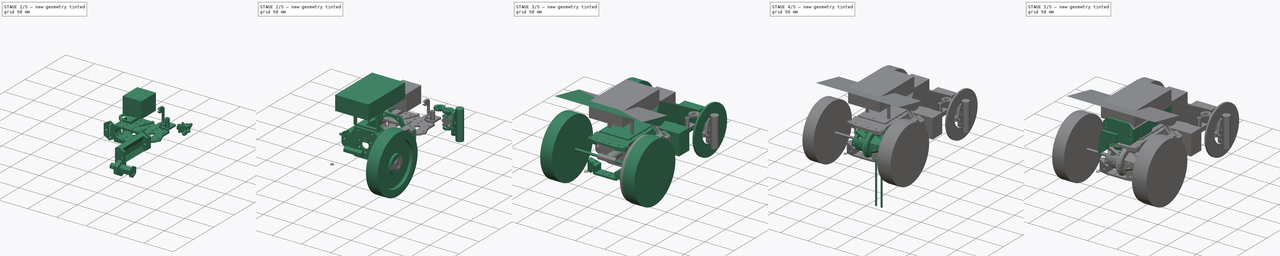
[diagram: build sequence overview — one tinted view per stage of 5, left to right]
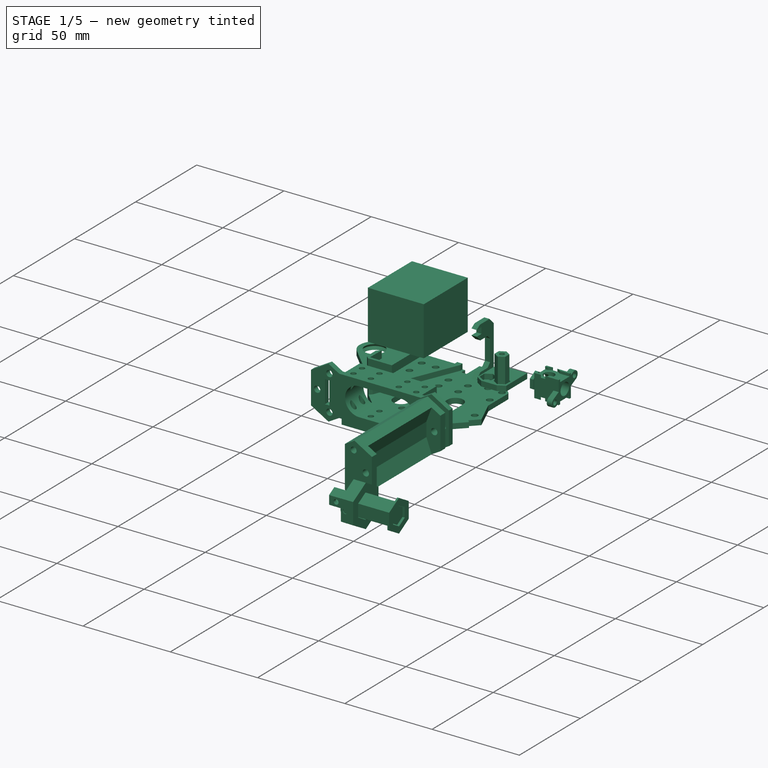
[diagram: stage 1 of 5 — iso view after this stage's code; geometry added in this stage tinted green]
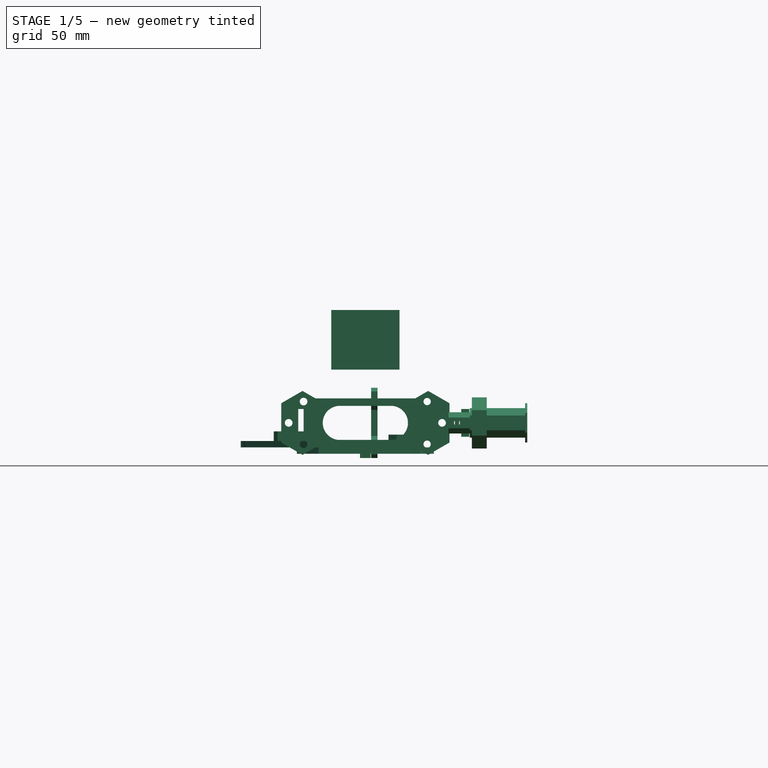
[diagram: stage 1 of 5 — front view after this stage's code; geometry added in this stage tinted green]
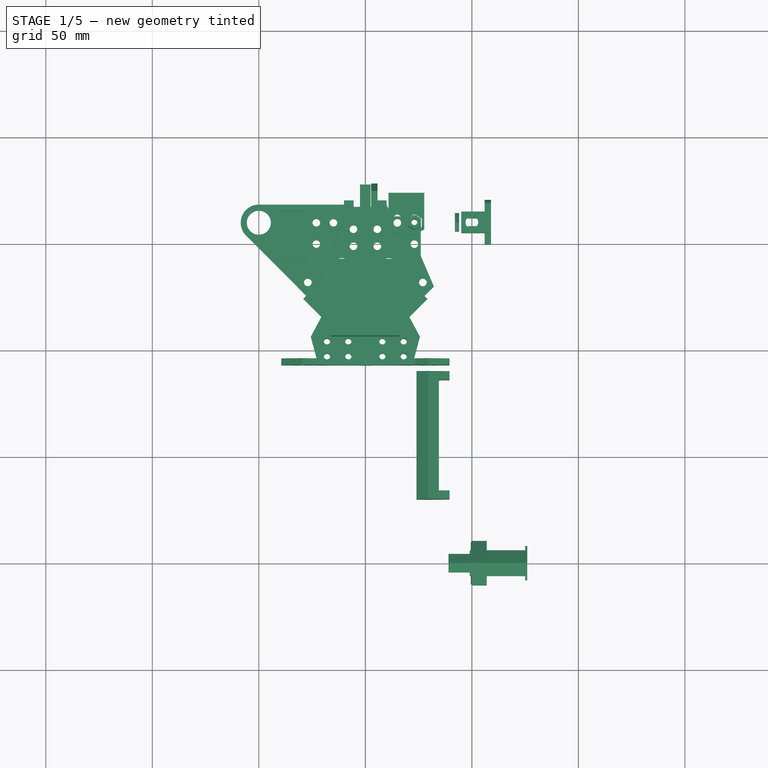
[diagram: stage 1 of 5 — top view after this stage's code; geometry added in this stage tinted green]
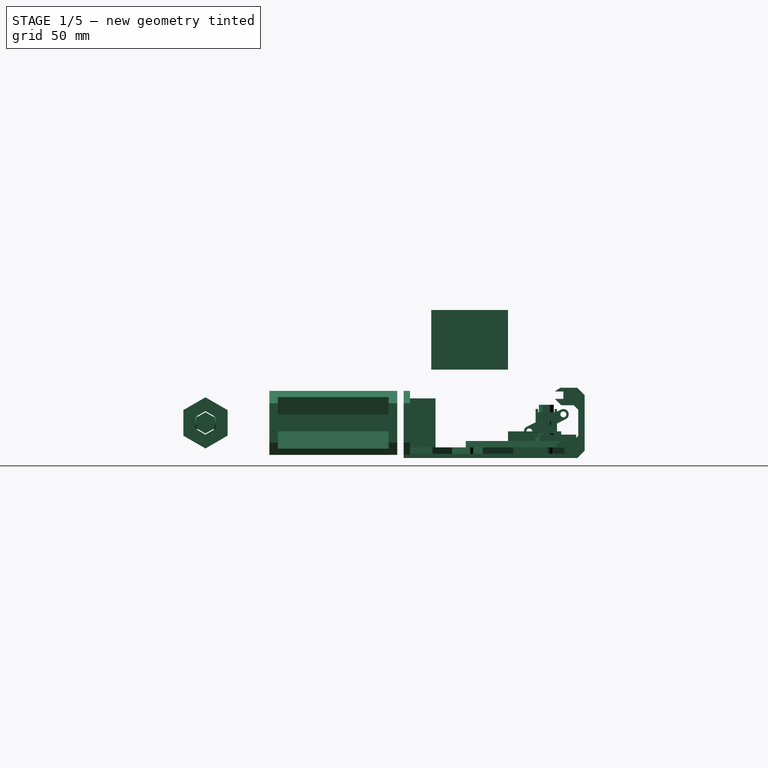
[diagram: stage 1 of 5 — right view after this stage's code; geometry added in this stage tinted green]
FCSTD DOCUMENT  (FreeCAD 0.16RUnknown)
Label: RearDifferentialAssembly
License: All rights reserved
LicenseURL: http://en.wikipedia.org/wiki/All_rights_reserved
objects: Sketcher::SketchObject×194, PartDesign::Pad×149, Part::MultiFuse×48, Part::Cut×42, Part::Mirroring×16, PartDesign::Revolution×11, Part::Loft×8, Part::FeaturePython×7, PartDesign::Chamfer×7, Part::MultiCommon×6, Part::Part2DObjectPython×6, Part::Cylinder×4, Part::Sphere×3, PartDesign::Draft×3, Part::Feature×3
note: 667 computed .brp shape members not serialized (recipe doc carries the construction recipe); baked Part::Feature solids carry a one-line shape summary decoded from their .brp

FEATURE [Sketcher::SketchObject] Sketch156
  Placement = pos=(0,30,0) rot=(1,0,0;1.5708rad)
  sketch-geometry (41):
    g0: LineSegment [constr] StartX=-31.5 StartY=4 StartZ=0 EndX=-38.4282 EndY=8 EndZ=0
    g1: LineSegment [constr] StartX=-38.4282 StartY=8 StartZ=0 EndX=-45.3564 EndY=4 EndZ=0
    g2: LineSegment [constr] StartX=-45.3564 StartY=4 StartZ=0 EndX=-45.3564 EndY=-4 EndZ=0
    g3: LineSegment [constr] StartX=-45.3564 StartY=-4 StartZ=0 EndX=-38.4282 EndY=-8 EndZ=0
    g4: LineSegment [constr] StartX=-38.4282 StartY=-8 StartZ=0 EndX=-31.5 EndY=-4 EndZ=0
    g5: LineSegment [constr] StartX=-31.5 StartY=-4 StartZ=0 EndX=-31.5 EndY=4 EndZ=0
    g6: Circle [constr] CenterX=-38.4282 CenterY=0 CenterZ=0 NormalX=0 NormalY=0 NormalZ=1 Radius=8
    g7: LineSegment [constr] StartX=-16.5 StartY=7.5 StartZ=0 EndX=-29.4904 EndY=15 EndZ=0
    g8: LineSegment [constr] StartX=-29.4904 StartY=15 StartZ=0 EndX=-42.4808 EndY=7.5 EndZ=0
    g9: LineSegment [constr] StartX=-42.4808 StartY=7.5 StartZ=0 EndX=-42.4808 EndY=-7.5 EndZ=0
    g10: LineSegment [constr] StartX=-42.4808 StartY=-7.5 StartZ=0 EndX=-29.4904 EndY=-15 EndZ=0
    g11: LineSegment [constr] StartX=-29.4904 StartY=-15 StartZ=0 EndX=-16.5 EndY=-7.5 EndZ=0
    g12: LineSegment [constr] StartX=-16.5 StartY=-7.5 StartZ=0 EndX=-16.5 EndY=7.5 EndZ=0
    g13: Circle [constr] CenterX=-29.4904 CenterY=0 CenterZ=0 NormalX=0 NormalY=0 NormalZ=1 Radius=15
    g14: LineSegment [constr] StartX=-31.5 StartY=4 StartZ=0 EndX=-16.5 EndY=7.5 EndZ=0
    g15: LineSegment [constr] StartX=-31.5 StartY=-4 StartZ=0 EndX=-16.5 EndY=-7.5 EndZ=0
    g16: LineSegment StartX=-29.4904 StartY=15 StartZ=0 EndX=-34.5 EndY=12.1077 EndZ=0
    g17: LineSegment StartX=-34.5 StartY=12.1077 StartZ=0 EndX=-31.5 EndY=4 EndZ=0
    g18: LineSegment StartX=-31.5 StartY=-4 StartZ=0 EndX=-34.5 EndY=-12.1077 EndZ=0
    g19: LineSegment StartX=-34.5 StartY=-12.1077 StartZ=0 EndX=-29.4904 EndY=-15 EndZ=0
    g20: LineSegment [constr] StartX=-34.5 StartY=12.1077 StartZ=0 EndX=-34.5 EndY=-12.1077 EndZ=0
    g21: Circle [constr] CenterX=-18.75 CenterY=0 CenterZ=0 NormalX=0 NormalY=0 NormalZ=1 Radius=1.7
    g22: Circle [constr] CenterX=-28.75 CenterY=0 CenterZ=0 NormalX=0 NormalY=0 NormalZ=1 Radius=1.7
    g23: Circle CenterX=-29 CenterY=10 CenterZ=0 NormalX=0 NormalY=0 NormalZ=1 Radius=1.7
    g24: Circle CenterX=-29 CenterY=-10 CenterZ=0 NormalX=0 NormalY=0 NormalZ=1 Radius=1.7
    g25: LineSegment [constr] StartX=-31.5 StartY=4 StartZ=0 EndX=-40 EndY=2.01667 EndZ=0
    g26: LineSegment [constr] StartX=-40 StartY=2.01667 StartZ=0 EndX=-40 EndY=-2.01667 EndZ=0
    g27: LineSegment [constr] StartX=-40 StartY=-2.01667 StartZ=0 EndX=-31.5 EndY=-4 EndZ=0
    g28: Circle [constr] CenterX=-36 CenterY=0 CenterZ=0 NormalX=0 NormalY=0 NormalZ=1 Radius=1.7
    g29: ArcOfCircle [constr] CenterX=-59.7789 CenterY=0 CenterZ=0 NormalX=0 NormalY=0 NormalZ=1 Radius=28.0289 StartAngle=5.83651 EndAngle=6.72986
    g30: Circle [constr] CenterX=-28.75 CenterY=0 CenterZ=0 NormalX=0 NormalY=0 NormalZ=1 Radius=3
    g31: LineSegment StartX=-29.4904 StartY=15 StartZ=0 EndX=-24 EndY=11.8301 EndZ=0
    g32: LineSegment StartX=-24 StartY=11.8301 StartZ=0 EndX=-24 EndY=-11.8301 EndZ=0
    g33: LineSegment StartX=-24 StartY=-11.8301 StartZ=0 EndX=-29.4904 EndY=-15 EndZ=0
    g34: LineSegment StartX=-29 StartY=6.25 StartZ=0 EndX=-29 EndY=-6.25 EndZ=0
    g35: LineSegment StartX=-31.5 StartY=4 StartZ=0 EndX=-31.5 EndY=3.75 EndZ=0
    g36: LineSegment StartX=-31.5 StartY=3.75 StartZ=0 EndX=-29.5 EndY=6.25 EndZ=0
    g37: LineSegment StartX=-29.5 StartY=6.25 StartZ=0 EndX=-29 EndY=6.25 EndZ=0
    g38: LineSegment StartX=-29 StartY=-6.25 StartZ=0 EndX=-29.5 EndY=-6.25 EndZ=0
    g39: LineSegment StartX=-29.5 StartY=-6.25 StartZ=0 EndX=-31.5 EndY=-3.75 EndZ=0
    g40: LineSegment StartX=-31.5 StartY=-3.75 StartZ=0 EndX=-31.5 EndY=-4 EndZ=0
  constraints (108):
    c: Coincident(g0,g1)
    c: Coincident(g1,g2)
    c: Coincident(g2,g3)
    c: Coincident(g3,g4)
    c: Coincident(g4,g5)
    c: Coincident(g5,g0)
    c: Equal(g0, g1-g5) x5
    c: PointOnObject(g0,g6)
    c: PointOnObject(g1,g6)
    c: PointOnObject(g2,g6)
    c: PointOnObject(g3,g6)
    c: PointOnObject(g4,g6)
    c: PointOnObject(g5,g6)
    c: PointOnObject(g6,g-1)
    c: Coincident(g7,g8)
    c: Coincident(g8,g9)
    c: Coincident(g9,g10)
    c: Coincident(g10,g11)
    c: Coincident(g11,g12)
    c: Coincident(g12,g7)
    c: Equal(g7, g8-g12) x5
    c: PointOnObject(g7,g13)
    c: PointOnObject(g8,g13)
    c: PointOnObject(g9,g13)
    c: PointOnObject(g10,g13)
    c: PointOnObject(g11,g13)
    c: PointOnObject(g12,g13)
    c: PointOnObject(g13,g-1)
    c: Vertical(g12)
    c: Vertical(g5)
    c: Radius(g13) = 15
    c: Radius(g6) = 8
    c: DistanceX(g7,g-1) = 16.5
    c: DistanceX(g0,g-1) = 31.5
    c: Coincident(g0,g14)
    c: Coincident(g14,g7)
    c: Coincident(g15,g4)
    c: Coincident(g15,g11)
    c: Coincident(g7,g16)
    c: Coincident(g16,g17)
    c: Coincident(g17,g0)
    c: Coincident(g4,g18)
    c: Coincident(g18,g19)
    c: Coincident(g19,g10)
    c: PointOnObject(g16,g8)
    c: PointOnObject(g18,g10)
    c: Coincident(g20,g16)
    c: Coincident(g20,g18)
    c: Vertical(g20)
    c: DistanceX(g16,g7) = 18
    c: PointOnObject(g21,g-1)
    c: Radius(g22) = 1.7
    c: Equal(g22,g21)
    c: Equal(g22,g23)
    c: Equal(g22,g24)
    c: Symmetric(g23,g24,g-1)
    c: DistanceY(g24,g23) = 20
    c: DistanceX(g21,g-1) = 18.75
    c: DistanceX(g22,g21) = 10
    c: PointOnObject(g22,g-1)
    c: Coincident(g0,g25)
    c: Coincident(g25,g26)
    c: Vertical(g26)
    c: Coincident(g26,g27)
    c: Coincident(g27,g4)
    c: Parallel(g25,g14)
    c: Parallel(g27,g15)
    c: PointOnObject(g28,g-1)
    c: Equal(g28,g23)
    c: DistanceX(g28,g-1) = 36
    c: DistanceX(g23,g-1) = 29
    c: DistanceX(g25,g28) = 4
    c: PointOnObject(g29,g-1)
    c: Coincident(g29,g16)
    c: Coincident(g29,g18)
    c: PointOnObject(g30,g-1)
    c: Radius(g30) = 3
    c: Tangent(g29,g30)
    c: Coincident(g22,g30)
    c: Coincident(g7,g31)
    c: PointOnObject(g31,g7)
    c: Coincident(g31,g32)
    c: PointOnObject(g32,g11)
    c: Vertical(g32)
    c: Coincident(g32,g33)
    c: Coincident(g33,g10)
    c: DistanceX(g31,g-1) = 24
    c: Vertical(g34)
    c: DistanceY(g34,g34) = 12.5
    c: Coincident(g0,g35)
    c: Coincident(g36,g37)
    c: Coincident(g37,g34)
    c: Coincident(g34,g38)
    c: Coincident(g38,g39)
    c: Coincident(g40,g4)
    c: DistanceX(g34,g31) = 5
    c: Horizontal(g37)
    c: Horizontal(g38)
    c: Equal(g38,g37)
    c: DistanceX(g37,g37) = 0.5
    c: Coincident(g36,g35)
    c: Coincident(g39,g40)
    c: Vertical(g40)
    c: Vertical(g35)
    c: Symmetric(g35,g39,g-1)
    c: Symmetric(g34,g34,g-1)
    c: DistanceY(g39,g35) = 7.5
    c: Angle(g36,g37) = 2.24554
FEATURE [PartDesign::Pad] Pad121  label="MainBody"
  Length = 60
  Length2 = 100
  Placement = pos=(0,30,0) rot=(1,0,0;1.5708rad)
  Reversed = true
  Sketch = -> Sketch156
  Type = 0
FEATURE [Sketcher::SketchObject] Sketch158
  Placement = pos=(0,30,0) rot=(1,0,0;1.5708rad)
  sketch-geometry (31):
    g0: LineSegment [constr] StartX=-31.5 StartY=4 StartZ=0 EndX=-38.4282 EndY=8 EndZ=0
    g1: LineSegment [constr] StartX=-38.4282 StartY=8 StartZ=0 EndX=-45.3564 EndY=4 EndZ=0
    g2: LineSegment [constr] StartX=-45.3564 StartY=4 StartZ=0 EndX=-45.3564 EndY=-4 EndZ=0
    g3: LineSegment [constr] StartX=-45.3564 StartY=-4 StartZ=0 EndX=-38.4282 EndY=-8 EndZ=0
    g4: LineSegment [constr] StartX=-38.4282 StartY=-8 StartZ=0 EndX=-31.5 EndY=-4 EndZ=0
    g5: LineSegment [constr] StartX=-31.5 StartY=-4 StartZ=0 EndX=-31.5 EndY=4 EndZ=0
    g6: Circle [constr] CenterX=-38.4282 CenterY=0 CenterZ=0 NormalX=0 NormalY=0 NormalZ=1 Radius=8
    g7: LineSegment [constr] StartX=-16.5 StartY=7.5 StartZ=0 EndX=-29.4904 EndY=15 EndZ=0
    g8: LineSegment [constr] StartX=-29.4904 StartY=15 StartZ=0 EndX=-42.4808 EndY=7.5 EndZ=0
    g9: LineSegment [constr] StartX=-42.4808 StartY=7.5 StartZ=0 EndX=-42.4808 EndY=-7.5 EndZ=0
    g10: LineSegment [constr] StartX=-42.4808 StartY=-7.5 StartZ=0 EndX=-29.4904 EndY=-15 EndZ=0
    g11: LineSegment [constr] StartX=-29.4904 StartY=-15 StartZ=0 EndX=-16.5 EndY=-7.5 EndZ=0
    g12: LineSegment [constr] StartX=-16.5 StartY=-7.5 StartZ=0 EndX=-16.5 EndY=7.5 EndZ=0
    g13: Circle [constr] CenterX=-29.4904 CenterY=0 CenterZ=0 NormalX=0 NormalY=0 NormalZ=1 Radius=15
    g14: LineSegment [constr] StartX=-31.5 StartY=4 StartZ=0 EndX=-16.5 EndY=7.5 EndZ=0
    g15: LineSegment [constr] StartX=-31.5 StartY=-4 StartZ=0 EndX=-16.5 EndY=-7.5 EndZ=0
    g16: LineSegment StartX=-29.4904 StartY=15 StartZ=0 EndX=-39.5 EndY=9.22094 EndZ=0
    g17: LineSegment [constr] StartX=-39.5 StartY=9.22094 StartZ=0 EndX=-31.5 EndY=4 EndZ=0
    g18: LineSegment [constr] StartX=-31.5 StartY=-4 StartZ=0 EndX=-39.5 EndY=-9.22094 EndZ=0
    g19: LineSegment StartX=-39.5 StartY=-9.22094 StartZ=0 EndX=-29.4904 EndY=-15 EndZ=0
    g20: LineSegment StartX=-39.5 StartY=9.22094 StartZ=0 EndX=-39.5 EndY=-9.22094 EndZ=0
    g21: Circle [constr] CenterX=-18.75 CenterY=0 CenterZ=0 NormalX=0 NormalY=0 NormalZ=1 Radius=1.8
    g22: Circle [constr] CenterX=-28.75 CenterY=0 CenterZ=0 NormalX=0 NormalY=0 NormalZ=1 Radius=1.8
    g23: Circle CenterX=-29 CenterY=10 CenterZ=0 NormalX=0 NormalY=0 NormalZ=1 Radius=1.8
    g24: Circle CenterX=-29 CenterY=-10 CenterZ=0 NormalX=0 NormalY=0 NormalZ=1 Radius=1.8
    g25: LineSegment StartX=-29.4904 StartY=15 StartZ=0 EndX=-24 EndY=11.8301 EndZ=0
    g26: LineSegment StartX=-24 StartY=11.8301 StartZ=0 EndX=-24 EndY=-11.8301 EndZ=0
    g27: LineSegment StartX=-24 StartY=-11.8301 StartZ=0 EndX=-29.4904 EndY=-15 EndZ=0
    g28: LineSegment [constr] StartX=-15 StartY=-17 StartZ=0 EndX=-15 EndY=21 EndZ=0
    g29: Circle [constr] CenterX=0 CenterY=0 CenterZ=0 NormalX=0 NormalY=0 NormalZ=1 Radius=11.5
    g30: Circle CenterX=-36 CenterY=0 CenterZ=0 NormalX=0 NormalY=0 NormalZ=1 Radius=1.8
  constraints (75):
    c: Coincident(g0,g1)
    c: Coincident(g1,g2)
    c: Coincident(g2,g3)
    c: Coincident(g3,g4)
    c: Coincident(g4,g5)
    c: Coincident(g5,g0)
    c: Equal(g0, g1-g5) x5
    c: PointOnObject(g0,g6)
    c: PointOnObject(g1,g6)
    c: PointOnObject(g2,g6)
    c: PointOnObject(g3,g6)
    c: PointOnObject(g4,g6)
    c: PointOnObject(g5,g6)
    c: PointOnObject(g6,g-1)
    c: Coincident(g7,g8)
    c: Coincident(g8,g9)
    c: Coincident(g9,g10)
    c: Coincident(g10,g11)
    c: Coincident(g11,g12)
    c: Coincident(g12,g7)
    c: Equal(g7, g8-g12) x5
    c: PointOnObject(g7,g13)
    c: PointOnObject(g8,g13)
    c: PointOnObject(g9,g13)
    c: PointOnObject(g10,g13)
    c: PointOnObject(g11,g13)
    c: PointOnObject(g12,g13)
    c: PointOnObject(g13,g-1)
    c: Vertical(g12)
    c: Vertical(g5)
    c: Radius(g13) = 15
    c: Radius(g6) = 8
    c: DistanceX(g7,g-1) = 16.5
    c: DistanceX(g0,g-1) = 31.5
    c: Coincident(g0,g14)
    c: Coincident(g14,g7)
    c: Coincident(g15,g4)
    c: Coincident(g15,g11)
    c: Coincident(g7,g16)
    c: Coincident(g16,g17)
    c: Coincident(g17,g0)
    c: Coincident(g4,g18)
    c: Coincident(g18,g19)
    c: Coincident(g19,g10)
    c: PointOnObject(g16,g8)
    c: PointOnObject(g18,g10)
    c: Coincident(g20,g16)
    c: Coincident(g20,g18)
    c: Vertical(g20)
    c: DistanceX(g16,g7) = 23
    c: PointOnObject(g21,g-1)
    c: Radius(g22) = 1.8
    c: Equal(g22,g21)
    c: Equal(g22,g23)
    c: Equal(g22,g24)
    c: Symmetric(g23,g24,g-1)
    c: DistanceY(g24,g23) = 20
    c: DistanceX(g21,g-1) = 18.75
    c: DistanceX(g22,g21) = 10
    c: PointOnObject(g22,g-1)
    c: Coincident(g7,g25)
    c: Coincident(g25,g26)
    c: Vertical(g26)
    c: Coincident(g26,g27)
    c: Coincident(g27,g10)
    c: PointOnObject(g26,g11)
    c: PointOnObject(g25,g7)
    c: DistanceX(g25,g-1) = 24
    c: Vertical(g28)
    c: DistanceY(g-1,g28) = 21
    c: Radius(g29) = 11.5
    c: DistanceX(g23,g-1) = 29
    c: PointOnObject(g30,g-1)
    c: DistanceX(g30,g-1) = 36
    c: Equal(g30,g23)
FEATURE [PartDesign::Pad] Pad123  label="EndCap"
  Length = 4
  Length2 = 100
  Placement = pos=(0,30,0) rot=(1,0,0;1.5708rad)
  Reversed = true
  Sketch = -> Sketch158
  Type = 0
FEATURE [Sketcher::SketchObject] Sketch159
  Placement = pos=(0,90,0) rot=(1,0,0;1.5708rad)
  sketch-geometry (33):
    g0: LineSegment [constr] StartX=-31.5 StartY=4 StartZ=0 EndX=-38.4282 EndY=8 EndZ=0
    g1: LineSegment [constr] StartX=-38.4282 StartY=8 StartZ=0 EndX=-45.3564 EndY=4 EndZ=0
    g2: LineSegment [constr] StartX=-45.3564 StartY=4 StartZ=0 EndX=-45.3564 EndY=-4 EndZ=0
    g3: LineSegment [constr] StartX=-45.3564 StartY=-4 StartZ=0 EndX=-38.4282 EndY=-8 EndZ=0
    g4: LineSegment [constr] StartX=-38.4282 StartY=-8 StartZ=0 EndX=-31.5 EndY=-4 EndZ=0
    g5: LineSegment [constr] StartX=-31.5 StartY=-4 StartZ=0 EndX=-31.5 EndY=4 EndZ=0
    g6: Circle [constr] CenterX=-38.4282 CenterY=0 CenterZ=0 NormalX=0 NormalY=0 NormalZ=1 Radius=8
    g7: LineSegment [constr] StartX=-16.5 StartY=7.5 StartZ=0 EndX=-29.4904 EndY=15 EndZ=0
    g8: LineSegment [constr] StartX=-29.4904 StartY=15 StartZ=0 EndX=-42.4808 EndY=7.5 EndZ=0
    g9: LineSegment [constr] StartX=-42.4808 StartY=7.5 StartZ=0 EndX=-42.4808 EndY=-7.5 EndZ=0
    g10: LineSegment [constr] StartX=-42.4808 StartY=-7.5 StartZ=0 EndX=-29.4904 EndY=-15 EndZ=0
    g11: LineSegment [constr] StartX=-29.4904 StartY=-15 StartZ=0 EndX=-16.5 EndY=-7.5 EndZ=0
    g12: LineSegment [constr] StartX=-16.5 StartY=-7.5 StartZ=0 EndX=-16.5 EndY=7.5 EndZ=0
    g13: Circle [constr] CenterX=-29.4904 CenterY=0 CenterZ=0 NormalX=0 NormalY=0 NormalZ=1 Radius=15
    g14: LineSegment [constr] StartX=-31.5 StartY=4 StartZ=0 EndX=-16.5 EndY=7.5 EndZ=0
    g15: LineSegment [constr] StartX=-31.5 StartY=-4 StartZ=0 EndX=-16.5 EndY=-7.5 EndZ=0
    g16: LineSegment StartX=-29.4904 StartY=15 StartZ=0 EndX=-39.5 EndY=9.22094 EndZ=0
    g17: LineSegment [constr] StartX=-39.5 StartY=9.22094 StartZ=0 EndX=-31.5 EndY=4 EndZ=0
    g18: LineSegment [constr] StartX=-31.5 StartY=-4 StartZ=0 EndX=-39.5 EndY=-9.22094 EndZ=0
    g19: LineSegment StartX=-39.5 StartY=-9.22094 StartZ=0 EndX=-29.4904 EndY=-15 EndZ=0
    g20: LineSegment StartX=-39.5 StartY=9.22094 StartZ=0 EndX=-39.5 EndY=-9.22094 EndZ=0
    g21: Circle [constr] CenterX=-18.75 CenterY=0 CenterZ=0 NormalX=0 NormalY=0 NormalZ=1 Radius=1.8
    g22: Circle [constr] CenterX=-28.75 CenterY=0 CenterZ=0 NormalX=0 NormalY=0 NormalZ=1 Radius=1.8
    g23: Circle CenterX=-29 CenterY=10 CenterZ=0 NormalX=0 NormalY=0 NormalZ=1 Radius=1.8
    g24: Circle CenterX=-29 CenterY=-10 CenterZ=0 NormalX=0 NormalY=0 NormalZ=1 Radius=1.8
    g25: LineSegment StartX=-29.4904 StartY=15 StartZ=0 EndX=-24 EndY=11.8301 EndZ=0
    g26: LineSegment StartX=-24 StartY=11.8301 StartZ=0 EndX=-24 EndY=-11.8301 EndZ=0
    g27: LineSegment StartX=-24 StartY=-11.8301 StartZ=0 EndX=-29.4904 EndY=-15 EndZ=0
    g28: Circle CenterX=-36 CenterY=0 CenterZ=0 NormalX=0 NormalY=0 NormalZ=1 Radius=1.8
    g29: LineSegment StartX=-29 StartY=6.5 StartZ=0 EndX=-31.5 EndY=6.5 EndZ=0
    g30: LineSegment StartX=-31.5 StartY=6.5 StartZ=0 EndX=-31.5 EndY=-6.5 EndZ=0
    g31: LineSegment StartX=-31.5 StartY=-6.5 StartZ=0 EndX=-29 EndY=-6.5 EndZ=0
    g32: LineSegment StartX=-29 StartY=-6.5 StartZ=0 EndX=-29 EndY=6.5 EndZ=0
  constraints (84):
    c: Coincident(g0,g1)
    c: Coincident(g1,g2)
    c: Coincident(g2,g3)
    c: Coincident(g3,g4)
    c: Coincident(g4,g5)
    c: Coincident(g5,g0)
    c: Equal(g0, g1-g5) x5
    c: PointOnObject(g0,g6)
    c: PointOnObject(g1,g6)
    c: PointOnObject(g2,g6)
    c: PointOnObject(g3,g6)
    c: PointOnObject(g4,g6)
    c: PointOnObject(g5,g6)
    c: PointOnObject(g6,g-1)
    c: Coincident(g7,g8)
    c: Coincident(g8,g9)
    c: Coincident(g9,g10)
    c: Coincident(g10,g11)
    c: Coincident(g11,g12)
    c: Coincident(g12,g7)
    c: Equal(g7, g8-g12) x5
    c: PointOnObject(g7,g13)
    c: PointOnObject(g8,g13)
    c: PointOnObject(g9,g13)
    c: PointOnObject(g10,g13)
    c: PointOnObject(g11,g13)
    c: PointOnObject(g12,g13)
    c: PointOnObject(g13,g-1)
    c: Vertical(g12)
    c: Vertical(g5)
    c: Radius(g13) = 15
    c: Radius(g6) = 8
    c: DistanceX(g7,g-1) = 16.5
    c: DistanceX(g0,g-1) = 31.5
    c: Coincident(g0,g14)
    c: Coincident(g14,g7)
    c: Coincident(g15,g4)
    c: Coincident(g15,g11)
    c: Coincident(g7,g16)
    c: Coincident(g16,g17)
    c: Coincident(g17,g0)
    c: Coincident(g4,g18)
    c: Coincident(g18,g19)
    c: Coincident(g19,g10)
    c: PointOnObject(g16,g8)
    c: PointOnObject(g18,g10)
    c: Coincident(g20,g16)
    c: Coincident(g20,g18)
    c: Vertical(g20)
    c: DistanceX(g16,g7) = 23
    c: PointOnObject(g21,g-1)
    c: Radius(g22) = 1.8
    c: Equal(g22,g21)
    c: Equal(g22,g23)
    c: Equal(g22,g24)
    c: Symmetric(g23,g24,g-1)
    c: DistanceY(g24,g23) = 20
    c: DistanceX(g21,g-1) = 18.75
    c: DistanceX(g22,g21) = 10
    c: PointOnObject(g22,g-1)
    c: Coincident(g7,g25)
    c: Coincident(g25,g26)
    c: Vertical(g26)
    c: Coincident(g26,g27)
    c: Coincident(g27,g10)
    c: PointOnObject(g26,g11)
    c: PointOnObject(g25,g7)
    c: DistanceX(g25,g-1) = 24
    c: DistanceX(g23,g-1) = 29
    c: PointOnObject(g28,g-1)
    c: DistanceX(g28,g-1) = 36
    c: Equal(g28,g23)
    c: Coincident(g29,g30)
    c: Coincident(g30,g31)
    c: Coincident(g31,g32)
    c: Coincident(g32,g29)
    c: Horizontal(g29)
    c: Horizontal(g31)
    c: Vertical(g30)
    c: Vertical(g32)
    c: DistanceX(g29) = -29
    c: DistanceY(g29) = 6.5
    c: Symmetric(g29,g30,g-1)
    c: DistanceX(g29,g29) = 2.5
FEATURE [PartDesign::Pad] Pad124  label="EndCap"
  Length = 4
  Length2 = 100
  Placement = pos=(0,90,0) rot=(1,0,0;1.5708rad)
  Sketch = -> Sketch159
  Type = 0
FEATURE [Part::MultiFuse] Fusion004020009  label="SideWall"
  Shapes = -> [Pad121,Pad123,Pad124]
FEATURE [Sketcher::SketchObject] Sketch161
  Placement = pos=(0,53,0) rot=(1,0,0;1.5708rad)
  sketch-geometry (27):
    g0: Circle [constr] CenterX=15 CenterY=-17 CenterZ=0 NormalX=0 NormalY=0 NormalZ=1 Radius=1.8
    g1: Circle [constr] CenterX=15 CenterY=21 CenterZ=0 NormalX=0 NormalY=0 NormalZ=1 Radius=1.8
    g2: Circle CenterX=-15 CenterY=21 CenterZ=0 NormalX=0 NormalY=0 NormalZ=1 Radius=1.8
    g3: Circle CenterX=-15 CenterY=-17 CenterZ=0 NormalX=0 NormalY=0 NormalZ=1 Radius=1.8
    g4: LineSegment [constr] StartX=-15 StartY=21 StartZ=0 EndX=15 EndY=21 EndZ=0
    g5: LineSegment [constr] StartX=15 StartY=21 StartZ=0 EndX=15 EndY=-17 EndZ=0
    g6: LineSegment [constr] StartX=15 StartY=-17 StartZ=0 EndX=-15 EndY=-17 EndZ=0
    g7: LineSegment [constr] StartX=-15 StartY=-17 StartZ=0 EndX=-15 EndY=21 EndZ=0
    g8: LineSegment StartX=-16.85 StartY=24 StartZ=0 EndX=-23.5 EndY=12.4819 EndZ=0
    g9: LineSegment StartX=-23.5 StartY=12.4819 StartZ=0 EndX=-23.5 EndY=7.75 EndZ=0
    g10: LineSegment StartX=-23.5 StartY=7.75 StartZ=0 EndX=-26.2 EndY=7.75 EndZ=0
    g11: LineSegment StartX=-26.2 StartY=7.75 StartZ=0 EndX=-28.95 EndY=5 EndZ=0
    g12: LineSegment StartX=-28.95 StartY=5 StartZ=0 EndX=-26.2 EndY=2.25 EndZ=0
    g13: LineSegment StartX=-26.2 StartY=2.25 StartZ=0 EndX=-23.5 EndY=2.25 EndZ=0
    g14: LineSegment StartX=-23.5 StartY=2.25 StartZ=0 EndX=-23.5 EndY=-2.25 EndZ=0
    g15: LineSegment StartX=-23.5 StartY=-2.25 StartZ=0 EndX=-26.2 EndY=-2.25 EndZ=0
    g16: LineSegment StartX=-26.2 StartY=-2.25 StartZ=0 EndX=-28.95 EndY=-5 EndZ=0
    g17: LineSegment StartX=-28.95 StartY=-5 StartZ=0 EndX=-26.2 EndY=-7.75 EndZ=0
    g18: LineSegment StartX=-26.2 StartY=-7.75 StartZ=0 EndX=-23.5 EndY=-7.75 EndZ=0
    g19: LineSegment StartX=-23.5 StartY=-7.75 StartZ=0 EndX=-23.5 EndY=-12.4737 EndZ=0
    g20: LineSegment StartX=-23.5 StartY=-12.4737 StartZ=0 EndX=-18 EndY=-22 EndZ=0
    g21: LineSegment StartX=-18 StartY=-22 StartZ=0 EndX=0 EndY=-22 EndZ=0
    g22: ArcOfCircle CenterX=0 CenterY=0 CenterZ=0 NormalX=0 NormalY=0 NormalZ=1 Radius=18.35 StartAngle=1.5708 EndAngle=4.71239
    g23: LineSegment StartX=0 StartY=-18.35 StartZ=0 EndX=0 EndY=-22 EndZ=0
    g24: LineSegment StartX=-16.85 StartY=24 StartZ=0 EndX=0 EndY=24 EndZ=0
    g25: LineSegment StartX=0 StartY=24 StartZ=0 EndX=0 EndY=18.35 EndZ=0
    g26: LineSegment [constr] StartX=-23.5 StartY=7.75 StartZ=0 EndX=-23.5 EndY=-7.75 EndZ=0
  constraints (75):
    c: Radius(g0) = 1.8
    c: Equal(g0,g3)
    c: Equal(g0,g2)
    c: Equal(g0,g1)
    c: Coincident(g4,g5)
    c: Coincident(g5,g6)
    c: Coincident(g6,g7)
    c: Coincident(g7,g4)
    c: Horizontal(g6)
    c: Vertical(g5)
    c: Vertical(g7)
    c: Coincident(g4,g2)
    c: Coincident(g5,g0)
    c: Coincident(g1,g4)
    c: Coincident(g3,g6)
    c: Symmetric(g2,g1,g-2)
    c: DistanceX(g4,g4) = 30
    c: DistanceY(g-1,g2) = 21
    c: DistanceY(g3,g-1) = 17
    c: Coincident(g8,g9)
    c: Vertical(g9)
    c: Coincident(g9,g10)
    c: Horizontal(g10)
    c: Coincident(g10,g11)
    c: Coincident(g11,g12)
    c: Coincident(g12,g13)
    c: Horizontal(g13)
    c: Coincident(g13,g14)
    c: Vertical(g14)
    c: Coincident(g14,g15)
    c: Horizontal(g15)
    c: Coincident(g15,g16)
    c: Coincident(g16,g17)
    c: Coincident(g17,g18)
    c: Coincident(g18,g19)
    c: Vertical(g19)
    c: Coincident(g19,g20)
    c: Coincident(g20,g21)
    c: Coincident(g22,g-1)
    c: Coincident(g23,g22)
    c: Coincident(g23,g21)
    c: PointOnObject(g22,g-2)
    c: Vertical(g23)
    c: Coincident(g8,g24)
    c: Horizontal(g24)
    c: Coincident(g24,g25)
    c: Coincident(g25,g22)
    c: PointOnObject(g22,g-2)
    c: Vertical(g25)
    c: Radius(g22) = 18.35
    c: Angle(g8,g24) = 2.0944
    c: DistanceY(g-1,g24) = 24
    c: DistanceX(g8,g-1) = 23.5
    c: Equal(g13,g10)
    c: Equal(g10,g15)
    c: Equal(g15,g18)
    c: Angle(g12,g11) = 1.5708
    c: Angle(g17,g16) = 1.5708
    c: Coincident(g26,g9)
    c: Coincident(g26,g18)
    c: PointOnObject(g13,g26)
    c: PointOnObject(g14,g26)
    c: Horizontal(g18)
    c: Equal(g11,g12)
    c: Equal(g12,g16)
    c: Equal(g16,g17)
    c: DistanceY(g18,g14) = 5.5
    c: DistanceX(g16,g14) = 5.45
    c: Symmetric(g13,g14,g-1)
    c: DistanceY(g14,g13) = 4.5
    c: Horizontal(g21)
    c: DistanceY(g21,g-1) = 22
    c: Angle(g21,g20) = 2.0944
    c: DistanceX(g20,g-1) = 18
    c: DistanceX(g24,g24) = 16.85
FEATURE [PartDesign::Pad] Pad126  label="MotorCageRingCutout"
  Length = 3.35
  Length2 = 100
  Placement = pos=(0,53,0) rot=(1,0,0;1.5708rad)
  Reversed = true
  Sketch = -> Sketch161
  Type = 0
FEATURE [Part::Cut] Cut007019014  label="SideWall"
  Base = -> Fusion004020009
  Tool = -> Pad126
FEATURE [Sketcher::SketchObject] Sketch172
  Placement = pos=(75,0,0) rot=(0.57735,0.57735,0.57735;2.0944rad)
  sketch-geometry (14):
    g0: LineSegment StartX=6 StartY=3.4641 StartZ=0 EndX=0 EndY=6.9282 EndZ=0
    g1: LineSegment StartX=0 StartY=6.9282 StartZ=0 EndX=-6 EndY=3.4641 EndZ=0
    g2: LineSegment StartX=-6 StartY=3.4641 StartZ=0 EndX=-6 EndY=-3.4641 EndZ=0
    g3: LineSegment StartX=-6 StartY=-3.4641 StartZ=0 EndX=0 EndY=-6.9282 EndZ=0
    g4: LineSegment StartX=0 StartY=-6.9282 StartZ=0 EndX=6 EndY=-3.4641 EndZ=0
    g5: LineSegment StartX=6 StartY=-3.4641 StartZ=0 EndX=6 EndY=3.4641 EndZ=0
    g6: Circle [constr] CenterX=0 CenterY=0 CenterZ=0 NormalX=0 NormalY=0 NormalZ=1 Radius=6.9282
    g7: LineSegment StartX=0 StartY=5.5 StartZ=0 EndX=-4.76314 EndY=2.75 EndZ=0
    g8: LineSegment StartX=-4.76314 StartY=2.75 StartZ=0 EndX=-4.76314 EndY=-2.75 EndZ=0
    g9: LineSegment StartX=-4.76314 StartY=-2.75 StartZ=0 EndX=0 EndY=-5.5 EndZ=0
    g10: LineSegment StartX=0 StartY=-5.5 StartZ=0 EndX=4.76314 EndY=-2.75 EndZ=0
    g11: LineSegment StartX=4.76314 StartY=-2.75 StartZ=0 EndX=4.76314 EndY=2.75 EndZ=0
    g12: LineSegment StartX=4.76314 StartY=2.75 StartZ=0 EndX=0 EndY=5.5 EndZ=0
    g13: Circle [constr] CenterX=0 CenterY=0 CenterZ=0 NormalX=0 NormalY=0 NormalZ=1 Radius=5.5
  constraints (32):
    c: Coincident(g0,g1)
    c: Coincident(g1,g2)
    c: Coincident(g2,g3)
    c: Coincident(g3,g4)
    c: Coincident(g4,g5)
    c: Coincident(g5,g0)
    c: Equal(g0, g1-g5) x5
    c: PointOnObject(g0,g6)
    c: PointOnObject(g1,g6)
    c: PointOnObject(g2,g6)
    c: PointOnObject(g3,g6)
    c: PointOnObject(g4,g6)
    c: PointOnObject(g5,g6)
    c: Coincident(g6,g-1)
    c: Distance(g3,g0) = 12
    c: Vertical(g5)
    c: Coincident(g7,g8)
    c: Coincident(g8,g9)
    c: Coincident(g9,g10)
    c: Coincident(g10,g11)
    c: Coincident(g11,g12)
    c: Coincident(g12,g7)
    c: Equal(g7, g8-g12) x5
    c: PointOnObject(g7,g13)
    c: PointOnObject(g8,g13)
    c: PointOnObject(g9,g13)
    c: PointOnObject(g10,g13)
    c: PointOnObject(g11,g13)
    c: PointOnObject(g12,g13)
    c: Coincident(g13,g-1)
    c: PointOnObject(g7,g-2)
    c: Radius(g13) = 5.5
FEATURE [PartDesign::Pad] Pad127010  label="MainBody"
  Length = 26
  Length2 = 100
  Placement = pos=(75,0,0) rot=(0.57735,0.57735,0.57735;2.0944rad)
  Reversed = true
  Sketch = -> Sketch172
  Type = 0
FEATURE [Sketcher::SketchObject] Sketch174
  Placement = pos=(0,0,0) rot=(0.57735,0.57735,0.57735;2.0944rad)
  sketch-geometry (7):
    g0: LineSegment StartX=4.33013 StartY=2.5 StartZ=0 EndX=0 EndY=5 EndZ=0
    g1: LineSegment StartX=0 StartY=5 StartZ=0 EndX=-4.33013 EndY=2.5 EndZ=0
    g2: LineSegment StartX=-4.33013 StartY=2.5 StartZ=0 EndX=-4.33013 EndY=-2.5 EndZ=0
    g3: LineSegment StartX=-4.33013 StartY=-2.5 StartZ=0 EndX=0 EndY=-5 EndZ=0
    g4: LineSegment StartX=0 StartY=-5 StartZ=0 EndX=4.33013 EndY=-2.5 EndZ=0
    g5: LineSegment StartX=4.33013 StartY=-2.5 StartZ=0 EndX=4.33013 EndY=2.5 EndZ=0
    g6: Circle [constr] CenterX=0 CenterY=0 CenterZ=0 NormalX=0 NormalY=0 NormalZ=1 Radius=5
  constraints (16):
    c: Coincident(g0,g1)
    c: Coincident(g1,g2)
    c: Coincident(g2,g3)
    c: Coincident(g3,g4)
    c: Coincident(g4,g5)
    c: Coincident(g5,g0)
    c: Equal(g0, g1-g5) x5
    c: PointOnObject(g0,g6)
    c: PointOnObject(g1,g6)
    c: PointOnObject(g2,g6)
    c: PointOnObject(g3,g6)
    c: PointOnObject(g4,g6)
    c: PointOnObject(g5,g6)
    c: Radius(g6) = 5
    c: Coincident(g-1,g6)
    c: Vertical(g5)
FEATURE [Sketcher::SketchObject] Sketch175
  Placement = pos=(50,0,0) rot=(0.57735,0.57735,0.57735;2.0944rad)
  sketch-geometry (1):
    g0: Circle CenterX=0 CenterY=0 CenterZ=0 NormalX=0 NormalY=0 NormalZ=1 Radius=2.35
  constraints (2):
    c: Coincident(g0,g-1)
    c: Radius(g0) = 2.35
FEATURE [Sketcher::SketchObject] Sketch176
  Placement = pos=(55,0,0) rot=(0.57735,0.57735,0.57735;2.0944rad)
  sketch-geometry (2):
    g0: ArcOfCircle CenterX=0 CenterY=0 CenterZ=0 NormalX=0 NormalY=0 NormalZ=1 Radius=2.3 StartAngle=2.43114 EndAngle=6.99363
    g1: ArcOfCircle CenterX=0 CenterY=17.4047 CenterZ=0 NormalX=0 NormalY=0 NormalZ=1 Radius=16 StartAngle=4.6032 EndAngle=4.82158
  constraints (7):
    c: Coincident(g0,g-1)
    c: PointOnObject(g1,g-2)
    c: Coincident(g1,g0)
    c: Coincident(g1,g0)
    c: Radius(g0) = 2.3
    c: Radius(g1) = 16
    c: DistanceY(g-1,g0) = 1.5
FEATURE [PartDesign::Pad] Pad127012  label="DshaftCutout"
  Length = 100
  Length2 = 100
  Placement = pos=(55,0,0) rot=(0.57735,0.57735,0.57735;2.0944rad)
  Reversed = true
  Sketch = -> Sketch176
  Type = 0
FEATURE [PartDesign::Pad] Pad127013  label="FullShaftCutout"
  Length = 100
  Length2 = 100
  Placement = pos=(50,0,0) rot=(0.57735,0.57735,0.57735;2.0944rad)
  Reversed = true
  Sketch = -> Sketch175
  Type = 0
FEATURE [Part::MultiFuse] Fusion004020013  label="AxleCutout"
  Shapes = -> [Pad127012,Pad127013]
FEATURE [Sketcher::SketchObject] Sketch182
  Placement = pos=(35,160,12) rot=(0,0,1;1.5708rad)
  sketch-geometry (7):
    g0: LineSegment StartX=5.5 StartY=6 StartZ=0 EndX=-16.5 EndY=6 EndZ=0
    g1: LineSegment StartX=-16.5 StartY=6 StartZ=0 EndX=-16.5 EndY=-6 EndZ=0
    g2: LineSegment StartX=-16.5 StartY=-6 StartZ=0 EndX=5.5 EndY=-6 EndZ=0
    g3: LineSegment StartX=5.5 StartY=-6 StartZ=0 EndX=5.5 EndY=6 EndZ=0
    g4: Circle [constr] CenterX=7.25 CenterY=0 CenterZ=0 NormalX=0 NormalY=0 NormalZ=1 Radius=1.5
    g5: Circle CenterX=-18.25 CenterY=0 CenterZ=0 NormalX=0 NormalY=0 NormalZ=1 Radius=1.5
    g6: LineSegment [constr] StartX=-5.5 StartY=6 StartZ=0 EndX=-5.5 EndY=-6 EndZ=0
  constraints (21):
    c: Coincident(g0,g1)
    c: Coincident(g1,g2)
    c: Coincident(g2,g3)
    c: Coincident(g3,g0)
    c: Horizontal(g0)
    c: Horizontal(g2)
    c: Vertical(g1)
    c: Vertical(g3)
    c: Symmetric(g0,g1,g-1)
    c: DistanceX(g0,g0) = 22
    c: PointOnObject(g4,g-1)
    c: PointOnObject(g5,g-1)
    c: Distance(g5,g4) = 25.5
    c: Radius(g4) = 1.5
    c: Equal(g4,g5)
    c: DistanceY(g3,g3) = 12
    c: PointOnObject(g6,g0)
    c: PointOnObject(g6,g2)
    c: Symmetric(g0,g0,g6)
    c: Symmetric(g4,g5,g6)
    c: DistanceX(g-1,g0) = 5.5
FEATURE [Part::Part2DObjectPython] InvoluteGear001  # Draft 2D object (typed FeaturePython)
  ExternalGear = true
  HighPrecision = true
  Modules = 1
  NumberOfTeeth = 15
  Placement = pos=(0,0,0.75) rot=(0,0,1;0rad)
  PressureAngle = 20
FEATURE [Sketcher::SketchObject] Sketch183
  Placement = pos=(50,160,0) rot=(0,0,1;0rad)
  sketch-geometry (1):
    g0: Circle CenterX=0 CenterY=0 CenterZ=0 NormalX=0 NormalY=0 NormalZ=1 Radius=8.5
  constraints (2):
    c: Coincident(g0,g-1)
    c: Radius(g0) = 8.5
FEATURE [Sketcher::SketchObject] Sketch184
  Placement = pos=(35,160,11.75) rot=(0,0,1;1.5708rad)
  sketch-geometry (7):
    g0: LineSegment StartX=5.5 StartY=6 StartZ=0 EndX=-16.5 EndY=6 EndZ=0
    g1: LineSegment StartX=-16.5 StartY=6 StartZ=0 EndX=-16.5 EndY=-6 EndZ=0
    g2: LineSegment StartX=-16.5 StartY=-6 StartZ=0 EndX=5.5 EndY=-6 EndZ=0
    g3: LineSegment StartX=5.5 StartY=-6 StartZ=0 EndX=5.5 EndY=6 EndZ=0
    g4: Circle [constr] CenterX=7.25 CenterY=0 CenterZ=0 NormalX=0 NormalY=0 NormalZ=1 Radius=1.5
    g5: Circle [constr] CenterX=-18.25 CenterY=0 CenterZ=0 NormalX=0 NormalY=0 NormalZ=1 Radius=1.5
    g6: LineSegment [constr] StartX=-5.5 StartY=6 StartZ=0 EndX=-5.5 EndY=-6 EndZ=0
  constraints (21):
    c: Coincident(g0,g1)
    c: Coincident(g1,g2)
    c: Coincident(g2,g3)
    c: Coincident(g3,g0)
    c: Horizontal(g0)
    c: Horizontal(g2)
    c: Vertical(g1)
    c: Vertical(g3)
    c: Symmetric(g0,g1,g-1)
    c: DistanceX(g0,g0) = 22
    c: PointOnObject(g4,g-1)
    c: PointOnObject(g5,g-1)
    c: Distance(g5,g4) = 25.5
    c: Radius(g4) = 1.5
    c: Equal(g4,g5)
    c: DistanceY(g3,g3) = 12
    c: PointOnObject(g6,g0)
    c: PointOnObject(g6,g2)
    c: Symmetric(g0,g0,g6)
    c: Symmetric(g4,g5,g6)
    c: DistanceX(g-1,g0) = 5.5
FEATURE [PartDesign::Pad] Pad127020
  Length = 22.5
  Length2 = 100
  Placement = pos=(35,160,11.75) rot=(0,0,1;1.5708rad)
  Sketch = -> Sketch184
  Type = 0
FEATURE [Sketcher::SketchObject] Sketch185
  Placement = pos=(35,160,26.5) rot=(0,0,1;1.5708rad)
  sketch-geometry (13):
    g0: LineSegment StartX=5.5 StartY=6 StartZ=0 EndX=-16.5 EndY=6 EndZ=0
    g1: LineSegment [constr] StartX=-16.5 StartY=6 StartZ=0 EndX=-16.5 EndY=-6 EndZ=0
    g2: LineSegment StartX=-16.5 StartY=-6 StartZ=0 EndX=5.5 EndY=-6 EndZ=0
    g3: LineSegment [constr] StartX=5.5 StartY=-6 StartZ=0 EndX=5.5 EndY=6 EndZ=0
    g4: Circle CenterX=7.25 CenterY=0 CenterZ=0 NormalX=0 NormalY=0 NormalZ=1 Radius=1.5
    g5: Circle CenterX=-18.25 CenterY=0 CenterZ=0 NormalX=0 NormalY=0 NormalZ=1 Radius=1.5
    g6: LineSegment [constr] StartX=-5.5 StartY=6 StartZ=0 EndX=-5.5 EndY=-6 EndZ=0
    g7: LineSegment StartX=5.5 StartY=6 StartZ=0 EndX=9.5 EndY=6 EndZ=0
    g8: LineSegment StartX=9.5 StartY=6 StartZ=0 EndX=9.5 EndY=-6 EndZ=0
    g9: LineSegment StartX=9.5 StartY=-6 StartZ=0 EndX=5.5 EndY=-6 EndZ=0
    g10: LineSegment StartX=-16.5 StartY=6 StartZ=0 EndX=-20.5 EndY=6 EndZ=0
    g11: LineSegment StartX=-20.5 StartY=6 StartZ=0 EndX=-20.5 EndY=-6 EndZ=0
    g12: LineSegment StartX=-20.5 StartY=-6 StartZ=0 EndX=-16.5 EndY=-6 EndZ=0
  constraints (37):
    c: Coincident(g0,g1)
    c: Coincident(g1,g2)
    c: Coincident(g2,g3)
    c: Coincident(g3,g0)
    c: Horizontal(g0)
    c: Horizontal(g2)
    c: Vertical(g1)
    c: Vertical(g3)
    c: Symmetric(g0,g1,g-1)
    c: DistanceX(g0,g0) = 22
    c: PointOnObject(g4,g-1)
    c: PointOnObject(g5,g-1)
    c: Distance(g5,g4) = 25.5
    c: Radius(g4) = 1.5
    c: Equal(g4,g5)
    c: DistanceY(g3,g3) = 12
    c: PointOnObject(g6,g0)
    c: PointOnObject(g6,g2)
    c: Symmetric(g0,g0,g6)
    c: Symmetric(g4,g5,g6)
    c: DistanceX(g-1,g0) = 5.5
    c: Coincident(g0,g7)
    c: Coincident(g7,g8)
    c: Vertical(g8)
    c: Coincident(g8,g9)
    c: Coincident(g9,g2)
    c: Coincident(g0,g10)
    c: Coincident(g10,g11)
    c: Vertical(g11)
    c: Coincident(g11,g12)
    c: Coincident(g12,g1)
    c: Horizontal(g12)
    c: Horizontal(g10)
    c: Horizontal(g7)
    c: Horizontal(g9)
    c: Equal(g10,g7)
    c: Distance(g10,g7) = 30
FEATURE [PartDesign::Pad] Pad127021
  Length = 1.75
  Length2 = 100
  Placement = pos=(35,160,26.5) rot=(0,0,1;1.5708rad)
  Sketch = -> Sketch185
  Type = 0
FEATURE [Sketcher::SketchObject] Sketch186
  Placement = pos=(50,160,-8.5) rot=(0,0,1;0rad)
  sketch-geometry (5):
    g0: ArcOfCircle CenterX=0 CenterY=0 CenterZ=0 NormalX=0 NormalY=0 NormalZ=1 Radius=8.5 StartAngle=5.49778 EndAngle=7.85398
    g1: LineSegment StartX=4e-12 StartY=8.5 StartZ=0 EndX=-40 EndY=8.5 EndZ=0
    g2: LineSegment StartX=6.01039 StartY=-6.01043 StartZ=0 EndX=-22.2739 EndY=-34.2947 EndZ=0
    g3: LineSegment StartX=-22.2739 StartY=-34.2947 StartZ=0 EndX=-40 EndY=8.5 EndZ=0
    g4: Circle CenterX=0 CenterY=0 CenterZ=0 NormalX=0 NormalY=0 NormalZ=1 Radius=8
  constraints (14):
    c: Coincident(g0,g-1)
    c: PointOnObject(g0,g-2)
    c: Radius(g0) = 8.5
    c: Coincident(g1,g0)
    c: Horizontal(g1)
    c: Coincident(g2,g0)
    c: Tangent(g0,g2)
    c: Angle(g-1,g2) = 0.785398
    c: Distance(g2) = 40
    c: Coincident(g3,g1)
    c: Equal(g1,g2)
    c: Coincident(g2,g3)
    c: Coincident(g4,g-1)
    c: Radius(g4) = 8
FEATURE [Sketcher::SketchObject] Sketch187
  Placement = pos=(35,160,-9) rot=(0,0,1;1.5708rad)
  sketch-geometry (16):
    g0: LineSegment [constr] StartX=5.5 StartY=6 StartZ=0 EndX=-16.5 EndY=6 EndZ=0
    g1: LineSegment [constr] StartX=-16.5 StartY=6 StartZ=0 EndX=-16.5 EndY=-6 EndZ=0
    g2: LineSegment [constr] StartX=-16.5 StartY=-6 StartZ=0 EndX=5.5 EndY=-6 EndZ=0
    g3: LineSegment [constr] StartX=5.5 StartY=-6 StartZ=0 EndX=5.5 EndY=6 EndZ=0
    g4: Circle [constr] CenterX=7.25 CenterY=0 CenterZ=0 NormalX=0 NormalY=0 NormalZ=1 Radius=1.5
    g5: Circle [constr] CenterX=-18.25 CenterY=0 CenterZ=0 NormalX=0 NormalY=0 NormalZ=1 Radius=1.5
    g6: LineSegment [constr] StartX=-5.5 StartY=6 StartZ=0 EndX=-5.5 EndY=-6 EndZ=0
    g7: LineSegment StartX=-18 StartY=7.5 StartZ=0 EndX=7 EndY=7.5 EndZ=0
    g8: LineSegment StartX=7 StartY=7.5 StartZ=0 EndX=7 EndY=-6 EndZ=0
    g9: LineSegment StartX=-18 StartY=-6.23223 StartZ=0 EndX=-18 EndY=7.5 EndZ=0
    g10: LineSegment [constr] StartX=-18 StartY=7.5 StartZ=0 EndX=-16.5 EndY=6 EndZ=0
    g11: LineSegment [constr] StartX=5.5 StartY=6 StartZ=0 EndX=7 EndY=7.5 EndZ=0
    g12: LineSegment StartX=7 StartY=-6 StartZ=0 EndX=-7 EndY=-6 EndZ=0
    g13: LineSegment StartX=-7 StartY=-6 StartZ=0 EndX=-9 EndY=-8 EndZ=0
    g14: LineSegment StartX=-9 StartY=-8 StartZ=0 EndX=-16.2322 EndY=-8 EndZ=0
    g15: LineSegment StartX=-16.2322 StartY=-8 StartZ=0 EndX=-18 EndY=-6.23223 EndZ=0
  constraints (46):
    c: Coincident(g0,g1)
    c: Coincident(g1,g2)
    c: Coincident(g2,g3)
    c: Coincident(g3,g0)
    c: Horizontal(g0)
    c: Horizontal(g2)
    c: Vertical(g1)
    c: Vertical(g3)
    c: Symmetric(g0,g1,g-1)
    c: DistanceX(g0,g0) = 22
    c: PointOnObject(g4,g-1)
    c: PointOnObject(g5,g-1)
    c: Distance(g5,g4) = 25.5
    c: Radius(g4) = 1.5
    c: Equal(g4,g5)
    c: DistanceY(g3,g3) = 12
    c: PointOnObject(g6,g0)
    c: PointOnObject(g6,g2)
    c: Symmetric(g0,g0,g6)
    c: Symmetric(g4,g5,g6)
    c: DistanceX(g-1,g0) = 5.5
    c: Coincident(g7,g8)
    c: Coincident(g9,g7)
    c: Horizontal(g7)
    c: Vertical(g8)
    c: Vertical(g9)
    c: Coincident(g10,g7)
    c: Coincident(g10,g0)
    c: Coincident(g11,g0)
    c: Coincident(g11,g7)
    c: Equal(g10,g11)
    c: Angle(g10,g7) = 0.785398
    c: DistanceX(g7,g0) = 1.5
    c: Coincident(g8,g12)
    c: Horizontal(g12)
    c: Coincident(g12,g13)
    c: Coincident(g13,g14)
    c: Horizontal(g14)
    c: Coincident(g14,g15)
    c: Coincident(g15,g9)
    c: PointOnObject(g2,g12)
    c: DistanceX(g12,g-1) = 7
    c: Angle(g13,g14) = 2.35619
    c: DistanceY(g13,g12) = 2
    c: Angle(g14,g15) = 2.35619
    c: Distance(g15) = 2.5
FEATURE [PartDesign::Pad] Pad127023  label="ServoBoxThing"
  Length = 5
  Length2 = 100
  Placement = pos=(35,160,-9) rot=(0,0,1;1.5708rad)
  Sketch = -> Sketch187
  Type = 0
FEATURE [Part::MultiFuse] Fusion004020023  label="ServoVisual"
  Placement = pos=(0,0,-20) rot=(0,0,1;0rad)
  Shapes = -> [Pad127020,Pad127021]
FEATURE [Sketcher::SketchObject] Sketch201
  Placement = pos=(75,0,0) rot=(0.57735,0.57735,0.57735;2.0944rad)
  sketch-geometry (14):
    g0: LineSegment StartX=8 StartY=4.6188 StartZ=0 EndX=0 EndY=9.2376 EndZ=0
    g1: LineSegment StartX=0 StartY=9.2376 StartZ=0 EndX=-8 EndY=4.6188 EndZ=0
    g2: LineSegment StartX=-8 StartY=4.6188 StartZ=0 EndX=-8 EndY=-4.6188 EndZ=0
    g3: LineSegment StartX=-8 StartY=-4.6188 StartZ=0 EndX=0 EndY=-9.2376 EndZ=0
    g4: LineSegment StartX=0 StartY=-9.2376 StartZ=0 EndX=8 EndY=-4.6188 EndZ=0
    g5: LineSegment StartX=8 StartY=-4.6188 StartZ=0 EndX=8 EndY=4.6188 EndZ=0
    g6: Circle [constr] CenterX=0 CenterY=0 CenterZ=0 NormalX=0 NormalY=0 NormalZ=1 Radius=9.2376
    g7: LineSegment StartX=0 StartY=5.5 StartZ=0 EndX=-4.76314 EndY=2.75 EndZ=0
    g8: LineSegment StartX=-4.76314 StartY=2.75 StartZ=0 EndX=-4.76314 EndY=-2.75 EndZ=0
    g9: LineSegment StartX=-4.76314 StartY=-2.75 StartZ=0 EndX=0 EndY=-5.5 EndZ=0
    g10: LineSegment StartX=0 StartY=-5.5 StartZ=0 EndX=4.76314 EndY=-2.75 EndZ=0
    g11: LineSegment StartX=4.76314 StartY=-2.75 StartZ=0 EndX=4.76314 EndY=2.75 EndZ=0
    g12: LineSegment StartX=4.76314 StartY=2.75 StartZ=0 EndX=0 EndY=5.5 EndZ=0
    g13: Circle [constr] CenterX=0 CenterY=0 CenterZ=0 NormalX=0 NormalY=0 NormalZ=1 Radius=5.5
  constraints (32):
    c: Coincident(g0,g1)
    c: Coincident(g1,g2)
    c: Coincident(g2,g3)
    c: Coincident(g3,g4)
    c: Coincident(g4,g5)
    c: Coincident(g5,g0)
    c: Equal(g0, g1-g5) x5
    c: PointOnObject(g0,g6)
    c: PointOnObject(g1,g6)
    c: PointOnObject(g2,g6)
    c: PointOnObject(g3,g6)
    c: PointOnObject(g4,g6)
    c: PointOnObject(g5,g6)
    c: Coincident(g6,g-1)
    c: Distance(g3,g0) = 16
    c: Vertical(g5)
    c: Coincident(g7,g8)
    c: Coincident(g8,g9)
    c: Coincident(g9,g10)
    c: Coincident(g10,g11)
    c: Coincident(g11,g12)
    c: Coincident(g12,g7)
    c: Equal(g7, g8-g12) x5
    c: PointOnObject(g7,g13)
    c: PointOnObject(g8,g13)
    c: PointOnObject(g9,g13)
    c: PointOnObject(g10,g13)
    c: PointOnObject(g11,g13)
    c: PointOnObject(g12,g13)
    c: Coincident(g13,g-1)
    c: PointOnObject(g7,g-2)
    c: Radius(g13) = 5.5
FEATURE [PartDesign::Pad] Pad127037  label="EndCap"
  Length = 1
  Length2 = 100
  Placement = pos=(75,0,0) rot=(0.57735,0.57735,0.57735;2.0944rad)
  Sketch = -> Sketch201
  Type = 0
FEATURE [Sketcher::SketchObject] Sketch202
  Placement = pos=(75,0,0) rot=(1,0,0;1.5708rad)
  sketch-geometry (1):
    g0: Circle CenterX=-22.5 CenterY=0 CenterZ=0 NormalX=0 NormalY=0 NormalZ=1 Radius=1.4
  constraints (3):
    c: PointOnObject(g0,g-1)
    c: Radius(g0) = 1.4
    c: DistanceX(g-1,g0) = -22.5
FEATURE [PartDesign::Pad] Pad127038  label="SetScrewCutout"
  Length = 20
  Length2 = 100
  Midplane = true
  Placement = pos=(75,0,0) rot=(1,0,0;1.5708rad)
  Sketch = -> Sketch202
  Type = 0
FEATURE [Sketcher::SketchObject] Sketch203
  Placement = pos=(75,0,0) rot=(1,0,0;1.5708rad)
  sketch-geometry (1):
    g0: Circle CenterX=-22.5 CenterY=0 CenterZ=0 NormalX=0 NormalY=0 NormalZ=1 Radius=3
  constraints (3):
    c: PointOnObject(g0,g-1)
    c: Radius(g0) = 3
    c: DistanceX(g-1,g0) = -22.5
FEATURE [PartDesign::Pad] Pad127039  label="visual"
  Length = 20
  Length2 = 100
  Midplane = true
  Placement = pos=(75,0,0) rot=(1,0,0;1.5708rad)
  Sketch = -> Sketch203
  Type = 0
FEATURE [Part::MultiFuse] Fusion004020027
  Shapes = -> [Pad127010,Pad127037]
FEATURE [Part::Cut] Cut007019023  label="WheelAxle"
  Base = -> Fusion004020027
  Tool = -> Pad127038
FEATURE [Sketcher::SketchObject] Sketch204
  Placement = pos=(55,0,0) rot=(0.57735,0.57735,0.57735;2.0944rad)
  sketch-geometry (7):
    g0: LineSegment StartX=4.33013 StartY=2.5 StartZ=0 EndX=0 EndY=5 EndZ=0
    g1: LineSegment StartX=0 StartY=5 StartZ=0 EndX=-4.33013 EndY=2.5 EndZ=0
    g2: LineSegment StartX=-4.33013 StartY=2.5 StartZ=0 EndX=-4.33013 EndY=-2.5 EndZ=0
    g3: LineSegment StartX=-4.33013 StartY=-2.5 StartZ=0 EndX=0 EndY=-5 EndZ=0
    g4: LineSegment StartX=0 StartY=-5 StartZ=0 EndX=4.33013 EndY=-2.5 EndZ=0
    g5: LineSegment StartX=4.33013 StartY=-2.5 StartZ=0 EndX=4.33013 EndY=2.5 EndZ=0
    g6: Circle [constr] CenterX=0 CenterY=0 CenterZ=0 NormalX=0 NormalY=0 NormalZ=1 Radius=5
  constraints (16):
    c: Coincident(g0,g1)
    c: Coincident(g1,g2)
    c: Coincident(g2,g3)
    c: Coincident(g3,g4)
    c: Coincident(g4,g5)
    c: Coincident(g5,g0)
    c: Equal(g0, g1-g5) x5
    c: PointOnObject(g0,g6)
    c: PointOnObject(g1,g6)
    c: PointOnObject(g2,g6)
    c: PointOnObject(g3,g6)
    c: PointOnObject(g4,g6)
    c: PointOnObject(g5,g6)
    c: Radius(g6) = 5
    c: Coincident(g-1,g6)
    c: Vertical(g5)
FEATURE [PartDesign::Pad] Pad127040  label="BaseAxle"
  Length = 20
  Length2 = 16
  Placement = pos=(55,0,0) rot=(0.57735,0.57735,0.57735;2.0944rad)
  Sketch = -> Sketch204
  Type = 4
FEATURE [Part::Cut] Cut007019024
  Base = -> Pad127040
  Tool = -> Fusion004020013
FEATURE [Sketcher::SketchObject] Sketch205
  Placement = pos=(55,0,0) rot=(1,0,0;1.5708rad)
  sketch-geometry (1):
    g0: Circle CenterX=-12 CenterY=0 CenterZ=0 NormalX=0 NormalY=0 NormalZ=1 Radius=1.4
  constraints (3):
    c: PointOnObject(g0,g-1)
    c: DistanceX(g0,g-1) = 12
    c: Radius(g0) = 1.4
FEATURE [PartDesign::Pad] Pad127041  label="SetScrewCutout"
  Length = 20
  Length2 = 100
  Midplane = true
  Placement = pos=(55,0,0) rot=(1,0,0;1.5708rad)
  Sketch = -> Sketch205
  Type = 0
FEATURE [Part::Cut] Cut007019025  label="AdapterAxle"
  Base = -> Cut007019024
  Tool = -> Pad127041
FEATURE [Sketcher::SketchObject] Sketch206
  Placement = pos=(57,0,0) rot=(0.57735,0.57735,0.57735;2.0944rad)
  sketch-geometry (14):
    g0: LineSegment StartX=6.25 StartY=3.60844 StartZ=0 EndX=0 EndY=7.21688 EndZ=0
    g1: LineSegment StartX=0 StartY=7.21688 StartZ=0 EndX=-6.25 EndY=3.60844 EndZ=0
    g2: LineSegment StartX=-6.25 StartY=3.60844 StartZ=0 EndX=-6.25 EndY=-3.60844 EndZ=0
    g3: LineSegment StartX=-6.25 StartY=-3.60844 StartZ=0 EndX=0 EndY=-7.21688 EndZ=0
    g4: LineSegment StartX=0 StartY=-7.21688 StartZ=0 EndX=6.25 EndY=-3.60844 EndZ=0
    g5: LineSegment StartX=6.25 StartY=-3.60844 StartZ=0 EndX=6.25 EndY=3.60844 EndZ=0
    g6: Circle [constr] CenterX=0 CenterY=0 CenterZ=0 NormalX=0 NormalY=0 NormalZ=1 Radius=7.21688
    g7: LineSegment StartX=0 StartY=12 StartZ=0 EndX=-10.3923 EndY=6 EndZ=0
    g8: LineSegment StartX=-10.3923 StartY=6 StartZ=0 EndX=-10.3923 EndY=-6 EndZ=0
    g9: LineSegment StartX=-10.3923 StartY=-6 StartZ=0 EndX=-2e-11 EndY=-12 EndZ=0
    g10: LineSegment StartX=-2e-11 StartY=-12 StartZ=0 EndX=10.3923 EndY=-6 EndZ=0
    g11: LineSegment StartX=10.3923 StartY=-6 StartZ=0 EndX=10.3923 EndY=6 EndZ=0
    g12: LineSegment StartX=10.3923 StartY=6 StartZ=0 EndX=0 EndY=12 EndZ=0
    g13: Circle [constr] CenterX=0 CenterY=0 CenterZ=0 NormalX=0 NormalY=0 NormalZ=1 Radius=12
  constraints (32):
    c: Coincident(g0,g1)
    c: Coincident(g1,g2)
    c: Coincident(g2,g3)
    c: Coincident(g3,g4)
    c: Coincident(g4,g5)
    c: Coincident(g5,g0)
    c: Equal(g0, g1-g5) x5
    c: PointOnObject(g0,g6)
    c: PointOnObject(g1,g6)
    c: PointOnObject(g2,g6)
    c: PointOnObject(g3,g6)
    c: PointOnObject(g4,g6)
    c: PointOnObject(g5,g6)
    c: Coincident(g6,g-1)
    c: Distance(g3,g0) = 12.5
    c: Vertical(g5)
    c: Coincident(g7,g8)
    c: Coincident(g8,g9)
    c: Coincident(g9,g10)
    c: Coincident(g10,g11)
    c: Coincident(g11,g12)
    c: Coincident(g12,g7)
    c: Equal(g7, g8-g12) x5
    c: PointOnObject(g7,g13)
    c: PointOnObject(g8,g13)
    c: PointOnObject(g9,g13)
    c: PointOnObject(g10,g13)
    c: PointOnObject(g11,g13)
    c: PointOnObject(g12,g13)
    c: Coincident(g13,g-1)
    c: PointOnObject(g7,g-2)
    c: Radius(g13) = 12
FEATURE [PartDesign::Pad] Pad127042  label="WheelCollar"
  Length = 7
  Length2 = 100
  Placement = pos=(57,0,0) rot=(0.57735,0.57735,0.57735;2.0944rad)
  Reversed = true
  Sketch = -> Sketch206
  Type = 0
FEATURE [Sketcher::SketchObject] Sketch207
  Placement = pos=(59,160,0) rot=(0.57735,0.57735,0.57735;2.0944rad)
  sketch-geometry (13):
    g0: Circle CenterX=8 CenterY=4 CenterZ=0 NormalX=0 NormalY=0 NormalZ=1 Radius=1.4
    g1: Circle CenterX=-8 CenterY=-4 CenterZ=0 NormalX=0 NormalY=0 NormalZ=1 Radius=1.4
    g2: LineSegment [constr] StartX=-8 StartY=-4 StartZ=0 EndX=8 EndY=4 EndZ=0
    g3: LineSegment [constr] StartX=-2 StartY=4 StartZ=0 EndX=2 EndY=-4 EndZ=0
    g4: GeomPoint [constr] X=0 Y=0 Z=0
    g5: LineSegment [constr] StartX=-8 StartY=-4 StartZ=0 EndX=8 EndY=-4 EndZ=0
    g6: LineSegment [constr] StartX=8 StartY=-4 StartZ=0 EndX=8 EndY=4 EndZ=0
    g7: LineSegment [constr] StartX=8 StartY=4 StartZ=0 EndX=-8 EndY=4 EndZ=0
    g8: LineSegment [constr] StartX=-8 StartY=4 StartZ=0 EndX=-8 EndY=-4 EndZ=0
    g9: ArcOfCircle CenterX=8 CenterY=4 CenterZ=0 NormalX=0 NormalY=0 NormalZ=1 Radius=2.5 StartAngle=5.17604 EndAngle=8.31763
    g10: ArcOfCircle CenterX=-8 CenterY=-4 CenterZ=0 NormalX=0 NormalY=0 NormalZ=1 Radius=2.5 StartAngle=2.03444 EndAngle=5.17604
    g11: LineSegment StartX=-6.88197 StartY=-6.23607 StartZ=0 EndX=9.11804 EndY=1.76393 EndZ=0
    g12: LineSegment StartX=6.88197 StartY=6.23607 StartZ=0 EndX=-9.11803 EndY=-1.76393 EndZ=0
  constraints (34):
    c: Coincident(g2,g0)
    c: Coincident(g1,g2)
    c: Symmetric(g1,g0,g3)
    c: PointOnObject(g4,g2)
    c: PointOnObject(g4,g3)
    c: Coincident(g4,g-1)
    c: Radius(g0) = 1.4
    c: Equal(g0,g1)
    c: Coincident(g5,g6)
    c: Coincident(g6,g7)
    c: Coincident(g7,g8)
    c: Coincident(g8,g5)
    c: Horizontal(g5)
    c: Horizontal(g7)
    c: Vertical(g6)
    c: Vertical(g8)
    c: Coincident(g6,g0)
    c: PointOnObject(g3,g7)
    c: PointOnObject(g3,g5)
    c: DistanceY(g8,g8) = 8
    c: Coincident(g5,g1)
    c: DistanceX(g7,g7) = 16
    c: Coincident(g9,g0)
    c: Coincident(g10,g1)
    c: Coincident(g11,g10)
    c: Coincident(g11,g9)
    c: Coincident(g12,g9)
    c: Coincident(g12,g10)
    c: Tangent(g10,g12)
    c: Tangent(g9,g11)
    c: Tangent(g12,g9)
    c: Tangent(g10,g11)
    c: Equal(g10,g9)
    c: Radius(g9) = 2.5
FEATURE [PartDesign::Pad] Pad127043  label="MountPad"
  Length = 3
  Length2 = 100
  Placement = pos=(59,160,0) rot=(0.57735,0.57735,0.57735;2.0944rad)
  Reversed = true
  Sketch = -> Sketch207
  Type = 0
FEATURE [Sketcher::SketchObject] Sketch208
  Placement = pos=(59,160,0) rot=(0.57735,0.57735,0.57735;2.0944rad)
  sketch-geometry (5):
    g0: LineSegment StartX=-5 StartY=6.5 StartZ=0 EndX=5 EndY=6.5 EndZ=0
    g1: LineSegment StartX=5 StartY=6.5 StartZ=0 EndX=5 EndY=-6.5 EndZ=0
    g2: LineSegment StartX=5 StartY=-6.5 StartZ=0 EndX=-5 EndY=-6.5 EndZ=0
    g3: LineSegment StartX=-5 StartY=-6.5 StartZ=0 EndX=-5 EndY=6.5 EndZ=0
    g4: GeomPoint [constr] X=0 Y=0 Z=0
  constraints (13):
    c: Coincident(g0,g1)
    c: Coincident(g1,g2)
    c: Coincident(g2,g3)
    c: Coincident(g3,g0)
    c: Horizontal(g0)
    c: Horizontal(g2)
    c: Vertical(g1)
    c: Vertical(g3)
    c: Symmetric(g0,g2,g-1)
    c: DistanceY(g3,g3) = 13
    c: DistanceX(g0,g0) = 10
    c: Coincident(g4,g-1)
    c: Symmetric(g0,g0,g-2)
FEATURE [PartDesign::Pad] Pad127044  label="MainBody"
  Length = 14
  Length2 = 100
  Placement = pos=(59,160,0) rot=(0.57735,0.57735,0.57735;2.0944rad)
  Reversed = true
  Sketch = -> Sketch208
  Type = 0
FEATURE [Sketcher::SketchObject] Sketch209
  Placement = pos=(59,160,0) rot=(0.57735,0.57735,0.57735;2.0944rad)
  sketch-geometry (1):
    g0: Circle CenterX=0 CenterY=0 CenterZ=0 NormalX=0 NormalY=0 NormalZ=1 Radius=3.5
  constraints (2):
    c: Coincident(g0,g-1)
    c: Radius(g0) = 3.5
FEATURE [PartDesign::Pad] Pad127045  label="AxleCutout"
  Length = 30
  Length2 = 100
  Placement = pos=(59,160,0) rot=(0.57735,0.57735,0.57735;2.0944rad)
  Reversed = true
  Sketch = -> Sketch209
  Type = 0
FEATURE [Sketcher::SketchObject] Sketch210
  Placement = pos=(45,160,0) rot=(0.57735,0.57735,0.57735;2.0944rad)
  sketch-geometry (1):
    g0: Circle CenterX=0 CenterY=0 CenterZ=0 NormalX=0 NormalY=0 NormalZ=1 Radius=4.25
  constraints (2):
    c: Coincident(g0,g-1)
    c: Radius(g0) = 4.25
FEATURE [PartDesign::Pad] Pad127046  label="BearingCutout"
  Length = 3
  Length2 = 100
  Placement = pos=(45,160,0) rot=(0.57735,0.57735,0.57735;2.0944rad)
  Sketch = -> Sketch210
  Type = 0
FEATURE [Sketcher::SketchObject] Sketch211
  Placement = pos=(50,160,5) rot=(0,0,1;0rad)
  sketch-geometry (15):
    g0: LineSegment StartX=9 StartY=3.875 StartZ=0 EndX=3.39218 EndY=3.875 EndZ=0
    g1: LineSegment [constr] StartX=3.39218 StartY=3.875 StartZ=0 EndX=3.39218 EndY=-3.875 EndZ=0
    g2: LineSegment StartX=3.39218 StartY=-3.875 StartZ=0 EndX=9 EndY=-3.875 EndZ=0
    g3: Circle [constr] CenterX=0 CenterY=0 CenterZ=0 NormalX=0 NormalY=0 NormalZ=1 Radius=1.8
    g4: LineSegment StartX=9 StartY=3.875 StartZ=0 EndX=9 EndY=2.5 EndZ=0
    g5: LineSegment StartX=9 StartY=2.5 StartZ=0 EndX=12 EndY=2.5 EndZ=0
    g6: LineSegment StartX=12 StartY=2.5 StartZ=0 EndX=12 EndY=-2.5 EndZ=0
    g7: LineSegment StartX=12 StartY=-2.5 StartZ=0 EndX=9 EndY=-2.5 EndZ=0
    g8: LineSegment StartX=9 StartY=-2.5 StartZ=0 EndX=9 EndY=-3.875 EndZ=0
    g9: LineSegment StartX=-3.39218 StartY=3.875 StartZ=0 EndX=-8 EndY=3.875 EndZ=0
    g10: LineSegment StartX=-8 StartY=3.875 StartZ=0 EndX=-8 EndY=-3.875 EndZ=0
    g11: LineSegment StartX=-8 StartY=-3.875 StartZ=0 EndX=-3.39218 EndY=-3.875 EndZ=0
    g12: LineSegment [constr] StartX=-3.39218 StartY=-3.875 StartZ=0 EndX=-3.39218 EndY=3.875 EndZ=0
    g13: ArcOfCircle CenterX=0 CenterY=0 CenterZ=0 NormalX=0 NormalY=0 NormalZ=1 Radius=5.15 StartAngle=0.851739 EndAngle=2.28985
    g14: ArcOfCircle CenterX=0 CenterY=0 CenterZ=0 NormalX=0 NormalY=0 NormalZ=1 Radius=5.15 StartAngle=3.99333 EndAngle=5.43145
  constraints (42):
    c: Coincident(g0,g1)
    c: Coincident(g1,g2)
    c: Horizontal(g0)
    c: Horizontal(g2)
    c: Vertical(g1)
    c: DistanceX(g-1,g0) = 9
    c: DistanceY(g2,g0) = 7.75
    c: Coincident(g3,g-1)
    c: Radius(g3) = 1.8
    c: Coincident(g0,g4)
    c: Vertical(g4)
    c: Coincident(g4,g5)
    c: Horizontal(g5)
    c: Coincident(g5,g6)
    c: Vertical(g6)
    c: Coincident(g6,g7)
    c: Horizontal(g7)
    c: Coincident(g7,g8)
    c: Coincident(g8,g2)
    c: Vertical(g8)
    c: Equal(g4,g8)
    c: Equal(g7,g5)
    c: DistanceX(g5,g5) = 3
    c: DistanceY(g6,g6) = 5
    c: Coincident(g9,g10)
    c: Coincident(g10,g11)
    c: Coincident(g11,g12)
    c: Coincident(g12,g9)
    c: Horizontal(g9)
    c: Horizontal(g11)
    c: Vertical(g10)
    c: Vertical(g12)
    c: Coincident(g13,g-1)
    c: Coincident(g13,g9)
    c: Coincident(g13,g0)
    c: Coincident(g14,g-1)
    c: Coincident(g14,g1)
    c: Coincident(g14,g11)
    c: Equal(g12,g1)
    c: Equal(g13,g14)
    c: Radius(g13) = 5.15
    c: DistanceX(g9,g-1) = 8
FEATURE [PartDesign::Pad] Pad127047  label="SteeringRodCutoutTop"
  Length = 3
  Length2 = 100
  Placement = pos=(50,160,5) rot=(0,0,1;0rad)
  Sketch = -> Sketch211
  Type = 0
FEATURE [Sketcher::SketchObject] Sketch212
  Placement = pos=(50,160,-5) rot=(0,0,1;0rad)
  sketch-geometry (15):
    g0: LineSegment StartX=9 StartY=3.875 StartZ=0 EndX=3.39218 EndY=3.875 EndZ=0
    g1: LineSegment [constr] StartX=3.39218 StartY=3.875 StartZ=0 EndX=3.39218 EndY=-3.875 EndZ=0
    g2: LineSegment StartX=3.39218 StartY=-3.875 StartZ=0 EndX=9 EndY=-3.875 EndZ=0
    g3: Circle [constr] CenterX=0 CenterY=0 CenterZ=0 NormalX=0 NormalY=0 NormalZ=1 Radius=1.8
    g4: LineSegment StartX=9 StartY=3.875 StartZ=0 EndX=9 EndY=2.5 EndZ=0
    g5: LineSegment StartX=9 StartY=2.5 StartZ=0 EndX=12 EndY=2.5 EndZ=0
    g6: LineSegment StartX=12 StartY=2.5 StartZ=0 EndX=12 EndY=-2.5 EndZ=0
    g7: LineSegment StartX=12 StartY=-2.5 StartZ=0 EndX=9 EndY=-2.5 EndZ=0
    g8: LineSegment StartX=9 StartY=-2.5 StartZ=0 EndX=9 EndY=-3.875 EndZ=0
    g9: LineSegment StartX=-3.39218 StartY=3.875 StartZ=0 EndX=-8 EndY=3.875 EndZ=0
    g10: LineSegment StartX=-8 StartY=3.875 StartZ=0 EndX=-8 EndY=-3.875 EndZ=0
    g11: LineSegment StartX=-8 StartY=-3.875 StartZ=0 EndX=-3.39218 EndY=-3.875 EndZ=0
    g12: LineSegment [constr] StartX=-3.39218 StartY=-3.875 StartZ=0 EndX=-3.39218 EndY=3.875 EndZ=0
    g13: ArcOfCircle CenterX=0 CenterY=0 CenterZ=0 NormalX=0 NormalY=0 NormalZ=1 Radius=5.15 StartAngle=0.851739 EndAngle=2.28985
    g14: ArcOfCircle CenterX=0 CenterY=0 CenterZ=0 NormalX=0 NormalY=0 NormalZ=1 Radius=5.15 StartAngle=3.99333 EndAngle=5.43145
  constraints (42):
    c: Coincident(g0,g1)
    c: Coincident(g1,g2)
    c: Horizontal(g0)
    c: Horizontal(g2)
    c: Vertical(g1)
    c: DistanceX(g-1,g0) = 9
    c: DistanceY(g2,g0) = 7.75
    c: Coincident(g3,g-1)
    c: Radius(g3) = 1.8
    c: Coincident(g0,g4)
    c: Vertical(g4)
    c: Coincident(g4,g5)
    c: Horizontal(g5)
    c: Coincident(g5,g6)
    c: Vertical(g6)
    c: Coincident(g6,g7)
    c: Horizontal(g7)
    c: Coincident(g7,g8)
    c: Coincident(g8,g2)
    c: Vertical(g8)
    c: Equal(g4,g8)
    c: Equal(g7,g5)
    c: DistanceX(g5,g5) = 3
    c: DistanceY(g6,g6) = 5
    c: Coincident(g9,g10)
    c: Coincident(g10,g11)
    c: Coincident(g11,g12)
    c: Coincident(g12,g9)
    c: Horizontal(g9)
    c: Horizontal(g11)
    c: Vertical(g10)
    c: Vertical(g12)
    c: Coincident(g13,g-1)
    c: Coincident(g13,g9)
    c: Coincident(g13,g0)
    c: Coincident(g14,g-1)
    c: Coincident(g14,g1)
    c: Coincident(g14,g11)
    c: Equal(g12,g1)
    c: Equal(g13,g14)
    c: Radius(g13) = 5.15
    c: DistanceX(g9,g-1) = 8
FEATURE [PartDesign::Pad] Pad127048  label="SteeringRodCutoutBottom"
  Length = 3
  Length2 = 100
  Placement = pos=(50,160,-5) rot=(0,0,1;0rad)
  Reversed = true
  Sketch = -> Sketch212
  Type = 0
FEATURE [Part::MultiFuse] Fusion004020028  label="Base"
  Shapes = -> [Pad127043,Pad127044]
FEATURE [Sketcher::SketchObject] Sketch213
  Placement = pos=(44,160,0) rot=(0.57735,0.57735,0.57735;2.0944rad)
  sketch-geometry (8):
    g0: LineSegment StartX=4.33013 StartY=2.5 StartZ=0 EndX=0 EndY=5 EndZ=0
    g1: LineSegment StartX=0 StartY=5 StartZ=0 EndX=-4.33013 EndY=2.5 EndZ=0
    g2: LineSegment StartX=-4.33013 StartY=2.5 StartZ=0 EndX=-4.33013 EndY=-2.5 EndZ=0
    g3: LineSegment StartX=-4.33013 StartY=-2.5 StartZ=0 EndX=0 EndY=-5 EndZ=0
    g4: LineSegment StartX=0 StartY=-5 StartZ=0 EndX=4.33013 EndY=-2.5 EndZ=0
    g5: LineSegment StartX=4.33013 StartY=-2.5 StartZ=0 EndX=4.33013 EndY=2.5 EndZ=0
    g6: Circle [constr] CenterX=0 CenterY=0 CenterZ=0 NormalX=0 NormalY=0 NormalZ=1 Radius=5
    g7: Circle CenterX=0 CenterY=0 CenterZ=0 NormalX=0 NormalY=0 NormalZ=1 Radius=2.15
  constraints (18):
    c: Coincident(g0,g1)
    c: Coincident(g1,g2)
    c: Coincident(g2,g3)
    c: Coincident(g3,g4)
    c: Coincident(g4,g5)
    c: Coincident(g5,g0)
    c: Equal(g0, g1-g5) x5
    c: PointOnObject(g0,g6)
    c: PointOnObject(g1,g6)
    c: PointOnObject(g2,g6)
    c: PointOnObject(g3,g6)
    c: PointOnObject(g4,g6)
    c: PointOnObject(g5,g6)
    c: Radius(g6) = 5
    c: Coincident(g-1,g6)
    c: Vertical(g5)
    c: Coincident(g7,g-1)
    c: Radius(g7) = 2.15
FEATURE [PartDesign::Pad] Pad127049  label="AxleShaftCollar"
  Length = 2
  Length2 = 100
  Placement = pos=(44,160,0) rot=(0.57735,0.57735,0.57735;2.0944rad)
  Reversed = true
  Sketch = -> Sketch213
  Type = 0
FEATURE [Sketcher::SketchObject] Sketch214
  Placement = pos=(75,0,0) rot=(1,0,0;1.5708rad)
  sketch-geometry (1):
    g0: Circle CenterX=-22.5 CenterY=0 CenterZ=0 NormalX=0 NormalY=0 NormalZ=1 Radius=1.4
  constraints (3):
    c: PointOnObject(g0,g-1)
    c: Radius(g0) = 1.4
    c: DistanceX(g-1,g0) = -22.5
FEATURE [PartDesign::Pad] Pad127050
  Length = 30
  Length2 = 100
  Midplane = true
  Placement = pos=(75,0,0) rot=(1,0,0;1.5708rad)
  Sketch = -> Sketch214
  Type = 0
FEATURE [Part::Cut] Cut007019027  label="WheelCollar"
  Base = -> Pad127042
  Tool = -> Pad127050
FEATURE [Sketcher::SketchObject] Sketch215
  Placement = pos=(50,160,5) rot=(0,0,1;0rad)
  sketch-geometry (1):
    g0: Circle CenterX=0 CenterY=0 CenterZ=0 NormalX=0 NormalY=0 NormalZ=1 Radius=3
  constraints (2):
    c: Coincident(g0,g-1)
    c: Radius(g0) = 3
FEATURE [PartDesign::Pad] Pad127051  label="CountersinkTop"
  Length = 2
  Length2 = 100
  Placement = pos=(50,160,5) rot=(0,0,1;0rad)
  Reversed = true
  Sketch = -> Sketch215
  Type = 0
FEATURE [Sketcher::SketchObject] Sketch216
  Placement = pos=(50,160,-5) rot=(0,0,1;0rad)
  sketch-geometry (1):
    g0: Circle CenterX=0 CenterY=0 CenterZ=0 NormalX=0 NormalY=0 NormalZ=1 Radius=3
  constraints (2):
    c: Coincident(g0,g-1)
    c: Radius(g0) = 3
FEATURE [PartDesign::Pad] Pad127052
  Length = 2
  Length2 = 100
  Placement = pos=(50,160,-5) rot=(0,0,1;0rad)
  Sketch = -> Sketch216
  Type = 0
FEATURE [Part::MultiFuse] Fusion004020029  label="cutouts"
  Shapes = -> [Pad127052,Pad127051,Pad127048,Pad127047,Pad127045,Pad127046]
FEATURE [Part::Cut] Cut007019028  label="SteeringColumn"
  Base = -> Fusion004020028
  Tool = -> Fusion004020029
FEATURE [Sketcher::SketchObject] Sketch218
  Placement = pos=(50,160,11.5) rot=(0,0,1;0rad)
  sketch-geometry (52):
    g0: ArcOfCircle [constr] CenterX=0 CenterY=0 CenterZ=0 NormalX=0 NormalY=0 NormalZ=1 Radius=8.5 StartAngle=5.49779 EndAngle=7.85398
    g1: LineSegment [constr] StartX=0 StartY=8.5 StartZ=0 EndX=-40 EndY=8.5 EndZ=0
    g2: LineSegment [constr] StartX=6.01041 StartY=-6.01041 StartZ=0 EndX=-22.2739 EndY=-34.2947 EndZ=0
    g3: LineSegment [constr] StartX=-22.2739 StartY=-34.2947 StartZ=0 EndX=-40 EndY=8.5 EndZ=0
    g4: Circle [constr] CenterX=0 CenterY=0 CenterZ=0 NormalX=0 NormalY=0 NormalZ=1 Radius=8
    g5: Circle CenterX=-27 CenterY=0 CenterZ=0 NormalX=0 NormalY=0 NormalZ=1 Radius=1.8
    g6: Circle CenterX=-27 CenterY=-10 CenterZ=0 NormalX=0 NormalY=0 NormalZ=1 Radius=1.8
    g7: LineSegment [constr] StartX=-27 StartY=0 StartZ=0 EndX=-27 EndY=-10 EndZ=0
    g8: LineSegment StartX=-40 StartY=8.5 StartZ=0 EndX=-40 EndY=10.5 EndZ=0
    g9: LineSegment StartX=-40 StartY=10.5 StartZ=0 EndX=-43 EndY=10.5 EndZ=0
    g10: LineSegment [constr] StartX=-43 StartY=10.5 StartZ=0 EndX=-43 EndY=8.5 EndZ=0
    g11: LineSegment [constr] StartX=-43 StartY=8.5 StartZ=0 EndX=-24.3952 EndY=-36.416 EndZ=0
    g12: LineSegment [constr] StartX=-24.3952 StartY=-36.416 StartZ=0 EndX=-22.981 EndY=-37.8302 EndZ=0
    g13: LineSegment StartX=-22.981 StartY=-37.8302 StartZ=0 EndX=-20.8596 EndY=-35.7089 EndZ=0
    g14: LineSegment StartX=-20.8596 StartY=-35.7089 StartZ=0 EndX=-22.2739 EndY=-34.2947 EndZ=0
    g15: Circle CenterX=-23 CenterY=-28 CenterZ=0 NormalX=0 NormalY=0 NormalZ=1 Radius=1.8
    g16: Circle CenterX=-35 CenterY=0 CenterZ=0 NormalX=0 NormalY=0 NormalZ=1 Radius=1.8
    g17: LineSegment [constr] StartX=-35 StartY=0 StartZ=0 EndX=-23 EndY=-28 EndZ=0
    g18: LineSegment StartX=-22.981 StartY=-37.8302 StartZ=0 EndX=-29.3449 EndY=-44.1942 EndZ=0
    g19: LineSegment StartX=-29.3449 StartY=-44.1942 StartZ=0 EndX=-24.3765 EndY=-53.477 EndZ=0
    g20: LineSegment StartX=-24.3765 StartY=-53.477 StartZ=0 EndX=-28 EndY=-67 EndZ=0
    g21: LineSegment StartX=-28 StartY=-67 StartZ=0 EndX=-50 EndY=-67 EndZ=0
    g22: LineSegment StartX=-50 StartY=-67 StartZ=0 EndX=-50 EndY=10.5 EndZ=0
    g23: LineSegment StartX=-40 StartY=8.5 StartZ=0 EndX=-37.7218 EndY=3 EndZ=0
    g24: LineSegment StartX=-37.7218 StartY=3 StartZ=0 EndX=-27 EndY=3 EndZ=0
    g25: LineSegment StartX=-24 StartY=-6.7213e-08 StartZ=0 EndX=-24 EndY=-15.5123 EndZ=0
    g26: LineSegment StartX=-24 StartY=-15.5123 StartZ=0 EndX=-17.8474 EndY=-29.8683 EndZ=0
    g27: LineSegment StartX=-17.8474 StartY=-29.8683 StartZ=0 EndX=-22.2739 EndY=-34.2947 EndZ=0
    g28: ArcOfCircle CenterX=-27 CenterY=0 CenterZ=0 NormalX=0 NormalY=0 NormalZ=1 Radius=3 StartAngle=6.28319 EndAngle=7.85398
    g29: LineSegment StartX=-43 StartY=10.5 StartZ=0 EndX=-44.5 EndY=10.5 EndZ=0
    g30: LineSegment StartX=-44.5 StartY=10.5 StartZ=0 EndX=-44.5 EndY=7.5 EndZ=0
    g31: LineSegment StartX=-44.5 StartY=7.5 StartZ=0 EndX=-47.5 EndY=7.5 EndZ=0
    g32: LineSegment StartX=-47.5 StartY=7.5 StartZ=0 EndX=-47.5 EndY=10.5 EndZ=0
    g33: LineSegment StartX=-47.5 StartY=10.5 StartZ=0 EndX=-50 EndY=10.5 EndZ=0
    g34: Circle CenterX=-32 CenterY=-63 CenterZ=0 NormalX=0 NormalY=0 NormalZ=1 Radius=1.5
    g35: Circle CenterX=-42 CenterY=-63 CenterZ=0 NormalX=0 NormalY=0 NormalZ=1 Radius=1.5
    g36: Circle CenterX=-32 CenterY=-56 CenterZ=0 NormalX=0 NormalY=0 NormalZ=1 Radius=1.5
    g37: Circle CenterX=-42 CenterY=-56 CenterZ=0 NormalX=0 NormalY=0 NormalZ=1 Radius=1.5
    g38: LineSegment [constr] StartX=-42 StartY=-56 StartZ=0 EndX=-32 EndY=-56 EndZ=0
    g39: LineSegment [constr] StartX=-32 StartY=-56 StartZ=0 EndX=-32 EndY=-63 EndZ=0
    g40: LineSegment [constr] StartX=-32 StartY=-63 StartZ=0 EndX=-42 EndY=-63 EndZ=0
    g41: LineSegment [constr] StartX=-42 StartY=-63 StartZ=0 EndX=-42 EndY=-56 EndZ=0
    g42: ArcOfCircle CenterX=-39 CenterY=-34 CenterZ=0 NormalX=0 NormalY=0 NormalZ=1 Radius=4.5 StartAngle=3.14159 EndAngle=6.28319
    g43: ArcOfCircle CenterX=-39 CenterY=-21 CenterZ=0 NormalX=0 NormalY=0 NormalZ=1 Radius=4.5 StartAngle=0 EndAngle=3.14159
    g44: LineSegment StartX=-34.5 StartY=-34 StartZ=0 EndX=-34.5 EndY=-21 EndZ=0
    g45: LineSegment StartX=-43.5 StartY=-34 StartZ=0 EndX=-43.5 EndY=-21 EndZ=0
    g46: LineSegment [constr] StartX=-23 StartY=-28 StartZ=0 EndX=-19.3234 EndY=-26.4243 EndZ=0
    g47: Circle CenterX=-44.4 CenterY=-49 CenterZ=0 NormalX=0 NormalY=0 NormalZ=1 Radius=1.8
    g48: Circle CenterX=-44.4 CenterY=-41 CenterZ=0 NormalX=0 NormalY=0 NormalZ=1 Radius=1.8
    g49: Circle CenterX=-44.4 CenterY=-11 CenterZ=0 NormalX=0 NormalY=0 NormalZ=1 Radius=1.8
    g50: Circle CenterX=-44.4 CenterY=-3 CenterZ=0 NormalX=0 NormalY=0 NormalZ=1 Radius=1.8
    g51: LineSegment [constr] StartX=-44.4 StartY=-3 StartZ=0 EndX=-44.4 EndY=-49 EndZ=0
  constraints (143):
    c: Coincident(g0,g-1)
    c: PointOnObject(g0,g-2)
    c: Radius(g0) = 8.5
    c: Coincident(g1,g0)
    c: Horizontal(g1)
    c: Coincident(g2,g0)
    c: Tangent(g0,g2)
    c: Angle(g-1,g2) = 0.785398
    c: Distance(g2) = 40
    c: Coincident(g3,g1)
    c: Equal(g1,g2)
    c: Coincident(g2,g3)
    c: Coincident(g4,g-1)
    c: Radius(g4) = 8
    c: PointOnObject(g5,g-1)
    c: Coincident(g7,g5)
    c: Coincident(g7,g6)
    c: Vertical(g7)
    c: DistanceY(g7,g7) = 10
    c: Radius(g6) = 1.8
    c: Equal(g6,g5)
    c: DistanceX(g5,g-1) = 27
    c: Coincident(g8,g9)
    c: Horizontal(g9)
    c: Coincident(g9,g10)
    c: Vertical(g10)
    c: Coincident(g10,g11)
    c: Coincident(g11,g12)
    c: Coincident(g12,g13)
    c: Coincident(g13,g14)
    c: Coincident(g14,g2)
    c: Perpendicular(g2,g14)
    c: Coincident(g1,g8)
    c: Perpendicular(g8,g1)
    c: DistanceY(g8,g8) = 2
    c: DistanceX(g9,g9) = 3
    c: Equal(g14,g8)
    c: Equal(g9,g13)
    c: Perpendicular(g13,g12)
    c: Perpendicular(g13,g14)
    c: PointOnObject(g10,g1)
    c: PointOnObject(g11,g2)
    c: Coincident(g17,g16)
    c: Coincident(g17,g15)
    c: Radius(g16) = 1.8
    c: Equal(g16,g15)
    c: PointOnObject(g16,g-1)
    c: DistanceX(g16,g-1) = 35
    c: DistanceX(g16,g15) = 12
    c: DistanceY(g15,g16) = 28
    c: Coincident(g12,g18)
    c: Coincident(g19,g20)
    c: Coincident(g20,g21)
    c: Horizontal(g21)
    c: Coincident(g21,g22)
    c: Vertical(g22)
    c: Coincident(g23,g24)
    c: Coincident(g25,g26)
    c: Coincident(g26,g27)
    c: Coincident(g27,g2)
    c: Coincident(g23,g1)
    c: PointOnObject(g26,g2)
    c: Parallel(g18,g13)
    c: Coincident(g28,g5)
    c: Coincident(g28,g24)
    c: Coincident(g28,g25)
    c: Tangent(g24,g28)
    c: Tangent(g28,g25)
    c: Horizontal(g24)
    c: Vertical(g25)
    c: Parallel(g26,g17)
    c: Radius(g28) = 3
    c: PointOnObject(g23,g3)
    c: DistanceX(g22,g-1) = 50
    c: DistanceY(g21,g-1) = 67
    c: Coincident(g9,g29)
    c: Horizontal(g29)
    c: Coincident(g29,g30)
    c: Coincident(g30,g31)
    c: Horizontal(g31)
    c: Coincident(g31,g32)
    c: Vertical(g32)
    c: Coincident(g32,g33)
    c: Coincident(g33,g22)
    c: Horizontal(g33)
    c: Vertical(g30)
    c: Equal(g30,g32)
    c: DistanceX(g31,g31) = 3
    c: DistanceY(g32,g32) = 3
    c: DistanceX(g33,g33) = 2.5
    c: Coincident(g38,g39)
    c: Coincident(g39,g40)
    c: Coincident(g40,g41)
    c: Coincident(g41,g38)
    c: Horizontal(g38)
    c: Horizontal(g40)
    c: Vertical(g39)
    c: Vertical(g41)
    c: Coincident(g38,g37)
    c: Coincident(g39,g34)
    c: Coincident(g36,g38)
    c: Coincident(g35,g40)
    c: Radius(g35) = 1.5
    c: Equal(g35,g37)
    c: Equal(g35,g36)
    c: Equal(g35,g34)
    c: DistanceX(g38,g38) = 10
    c: DistanceX(g21,g37) = 8
    c: DistanceY(g39,g39) = 7
    c: DistanceY(g21,g35) = 4
    c: DistanceX(g21,g21) = 22
    c: Coincident(g18,g19)
    c: Tangent(g42,g45) = 1.5708
    c: Tangent(g42,g44) = -1.5708
    c: Tangent(g44,g43) = -1.5708
    c: Tangent(g45,g43) = 1.5708
    c: Vertical(g44)
    c: Equal(g42,g43)
    c: Radius(g43) = 4.5
    c: Distance(g44) = 13
    c: Distance(g18) = 9
    c: Angle(g20,g21) = 1.8326
    c: Distance(g20) = 14
    c: DistanceX(g43) = -39
    c: DistanceY(g43) = -21
    c: Coincident(g46,g15)
    c: PointOnObject(g46,g26)
    c: Perpendicular(g26,g46)
    c: Distance(g46) = 4
    c: Coincident(g51,g50)
    c: Coincident(g51,g47)
    c: Vertical(g51)
    c: PointOnObject(g48,g51)
    c: PointOnObject(g49,g51)
    c: Radius(g50) = 1.8
    c: Equal(g50,g49)
    c: Equal(g50,g48)
    c: Equal(g50,g47)
    c: DistanceY(g49,g50) = 8
    c: DistanceY(g47,g48) = 8
    c: DistanceX(g21,g47) = 5.6
    c: DistanceY(g21,g47) = 18
    c: DistanceY(g50,g-1) = 3
FEATURE [PartDesign::Pad] Pad127054  label="Base"
  Length = 3
  Length2 = 100
  Placement = pos=(50,160,11.5) rot=(0,0,1;0rad)
  Sketch = -> Sketch218
  Type = 0
FEATURE [Part::Mirroring] Part__Mirroring013  label="Base (Mirror)"
  Base = (0,0,0)
  Normal = (1,0,0)
  Source = -> Pad127054
FEATURE [Sketcher::SketchObject] Sketch219
  Placement = pos=(0,0,11.5) rot=(0.57735,0.57735,0.57735;2.0944rad)
  sketch-geometry (5):
    g0: LineSegment StartX=93 StartY=0 StartZ=0 EndX=93 EndY=5 EndZ=0
    g1: LineSegment StartX=93 StartY=5 StartZ=0 EndX=174.5 EndY=5 EndZ=0
    g2: LineSegment StartX=174.5 StartY=5 StartZ=0 EndX=178 EndY=1.5 EndZ=0
    g3: LineSegment StartX=178 StartY=1.5 StartZ=0 EndX=178 EndY=0 EndZ=0
    g4: LineSegment StartX=178 StartY=0 StartZ=0 EndX=93 EndY=0 EndZ=0
  constraints (15):
    c: Vertical(g0)
    c: Coincident(g0,g1)
    c: Horizontal(g1)
    c: Coincident(g1,g2)
    c: Coincident(g2,g3)
    c: Coincident(g3,g4)
    c: Coincident(g4,g0)
    c: PointOnObject(g0,g-1)
    c: Horizontal(g4)
    c: DistanceY(g0,g0) = 5
    c: DistanceX(g-1,g0) = 93
    c: Vertical(g3)
    c: DistanceY(g3,g3) = 1.5
    c: Angle(g2,g3) = 2.35619
    c: DistanceX(g4,g4) = 85
FEATURE [PartDesign::Pad] Pad127055  label="Spine"
  Length = 5
  Length2 = 100
  Midplane = true
  Placement = pos=(0,0,11.5) rot=(0.57735,0.57735,0.57735;2.0944rad)
  Sketch = -> Sketch219
  Type = 0
FEATURE [Part::MultiFuse] Fusion004020030  label="MainFrontPlate"
  Shapes = -> [Pad127055,Pad127054,Part__Mirroring013]
FEATURE [Part::Cut] Cut007019029  label="ServoHolder"
  Base = -> Pad127023
  Tool = -> Fusion004020023
FEATURE [Sketcher::SketchObject] Sketch220
  Placement = pos=(50,160,-8.5) rot=(0,0,1;0rad)
  sketch-geometry (18):
    g0: ArcOfCircle CenterX=0 CenterY=0 CenterZ=0 NormalX=0 NormalY=0 NormalZ=1 Radius=8.5 StartAngle=5.49779 EndAngle=7.85398
    g1: LineSegment StartX=4e-12 StartY=8.5 StartZ=0 EndX=-40 EndY=8.5 EndZ=0
    g2: LineSegment StartX=6.01043 StartY=-6.01038 StartZ=0 EndX=-22.2738 EndY=-34.2947 EndZ=0
    g3: LineSegment [constr] StartX=-22.2738 StartY=-34.2947 StartZ=0 EndX=-40 EndY=8.5 EndZ=0
    g4: Circle CenterX=0 CenterY=0 CenterZ=0 NormalX=0 NormalY=0 NormalZ=1 Radius=8
    g5: Circle CenterX=-27 CenterY=0 CenterZ=0 NormalX=0 NormalY=0 NormalZ=1 Radius=1.8
    g6: Circle CenterX=-27 CenterY=-10 CenterZ=0 NormalX=0 NormalY=0 NormalZ=1 Radius=1.8
    g7: LineSegment [constr] StartX=-27 StartY=0 StartZ=0 EndX=-27 EndY=-10 EndZ=0
    g8: LineSegment StartX=-40 StartY=8.5 StartZ=0 EndX=-40 EndY=10.5 EndZ=0
    g9: LineSegment StartX=-40 StartY=10.5 StartZ=0 EndX=-43 EndY=10.5 EndZ=0
    g10: LineSegment StartX=-43 StartY=10.5 StartZ=0 EndX=-43 EndY=8.5 EndZ=0
    g11: LineSegment StartX=-43 StartY=8.5 StartZ=0 EndX=-24.3952 EndY=-36.416 EndZ=0
    g12: LineSegment StartX=-24.3952 StartY=-36.416 StartZ=0 EndX=-22.9809 EndY=-37.8302 EndZ=0
    g13: LineSegment StartX=-22.9809 StartY=-37.8302 StartZ=0 EndX=-20.8596 EndY=-35.7089 EndZ=0
    g14: LineSegment StartX=-20.8596 StartY=-35.7089 StartZ=0 EndX=-22.2738 EndY=-34.2947 EndZ=0
    g15: Circle CenterX=-23 CenterY=-28 CenterZ=0 NormalX=0 NormalY=0 NormalZ=1 Radius=1.8
    g16: Circle CenterX=-35 CenterY=0 CenterZ=0 NormalX=0 NormalY=0 NormalZ=1 Radius=1.8
    g17: LineSegment [constr] StartX=-35 StartY=0 StartZ=0 EndX=-23 EndY=-28 EndZ=0
  constraints (50):
    c: Coincident(g0,g-1)
    c: PointOnObject(g0,g-2)
    c: Radius(g0) = 8.5
    c: Coincident(g1,g0)
    c: Horizontal(g1)
    c: Coincident(g2,g0)
    c: Tangent(g0,g2)
    c: Angle(g-1,g2) = 0.785398
    c: Distance(g2) = 40
    c: Coincident(g3,g1)
    c: Equal(g1,g2)
    c: Coincident(g2,g3)
    c: Coincident(g4,g-1)
    c: Radius(g4) = 8
    c: PointOnObject(g5,g-1)
    c: Coincident(g7,g5)
    c: Coincident(g7,g6)
    c: Vertical(g7)
    c: DistanceY(g7,g7) = 10
    c: Radius(g6) = 1.8
    c: Equal(g6,g5)
    c: DistanceX(g5,g-1) = 27
    c: Coincident(g8,g9)
    c: Horizontal(g9)
    c: Coincident(g9,g10)
    c: Vertical(g10)
    c: Coincident(g10,g11)
    c: Coincident(g11,g12)
    c: Coincident(g12,g13)
    c: Coincident(g13,g14)
    c: Coincident(g14,g2)
    c: Perpendicular(g2,g14)
    c: Coincident(g1,g8)
    c: Perpendicular(g8,g1)
    c: DistanceY(g8,g8) = 2
    c: DistanceX(g9,g9) = 3
    c: Equal(g14,g8)
    c: Equal(g9,g13)
    c: Perpendicular(g13,g12)
    c: Perpendicular(g13,g14)
    c: PointOnObject(g10,g1)
    c: PointOnObject(g11,g2)
    c: Coincident(g17,g16)
    c: Coincident(g17,g15)
    c: Radius(g16) = 1.8
    c: Equal(g16,g15)
    c: PointOnObject(g16,g-1)
    c: DistanceX(g16,g-1) = 35
    c: DistanceX(g16,g15) = 12
    c: DistanceY(g15,g16) = 28
FEATURE [PartDesign::Pad] Pad127056  label="Base"
  Length = 3
  Length2 = 100
  Placement = pos=(50,160,-8.5) rot=(0,0,1;0rad)
  Reversed = true
  Sketch = -> Sketch220
  Type = 0
FEATURE [Sketcher::SketchObject] Sketch221
  Placement = pos=(50,160,-10) rot=(1,0,0;1.5708rad)
  sketch-geometry (16):
    g0: Circle [constr] CenterX=0 CenterY=0 CenterZ=0 NormalX=0 NormalY=0 NormalZ=1 Radius=4.8541
    g1: Circle [constr] CenterX=3.92705 CenterY=2.85317 CenterZ=0 NormalX=0 NormalY=0 NormalZ=1 Radius=1.5
    g2: Circle [constr] CenterX=4.8541 CenterY=0 CenterZ=0 NormalX=0 NormalY=0 NormalZ=1 Radius=1.5
    g3: LineSegment [constr] StartX=0 StartY=0 StartZ=0 EndX=3.92705 EndY=2.85317 EndZ=0
    g4: LineSegment StartX=5.63495 StartY=1.5 StartZ=0 EndX=6.68526 EndY=0 EndZ=0
    g5: LineSegment StartX=6.68526 StartY=0 StartZ=0 EndX=5.63495 EndY=-1.5 EndZ=0
    g6: LineSegment StartX=5.63495 StartY=-1.5 StartZ=0 EndX=8 EndY=-1.5 EndZ=0
    g7: LineSegment StartX=8 StartY=-1.5 StartZ=0 EndX=8 EndY=1.5 EndZ=0
    g8: LineSegment StartX=8 StartY=1.5 StartZ=0 EndX=5.63495 EndY=1.5 EndZ=0
    g9: LineSegment [constr] StartX=4.07325 StartY=1.5 StartZ=0 EndX=3.02294 EndY=0 EndZ=0
    g10: LineSegment [constr] StartX=3.02294 StartY=0 StartZ=0 EndX=4.07325 EndY=-1.5 EndZ=0
    g11: LineSegment [constr] StartX=4.07325 StartY=-1.5 StartZ=0 EndX=1.8 EndY=-1.5 EndZ=0
    g12: LineSegment [constr] StartX=1.8 StartY=1.5 StartZ=0 EndX=4.07325 EndY=1.5 EndZ=0
    g13: LineSegment [constr] StartX=3.02294 StartY=0 StartZ=0 EndX=1.8 EndY=0 EndZ=0
    g14: LineSegment [constr] StartX=1.8 StartY=0 StartZ=0 EndX=1.8 EndY=-1.5 EndZ=0
    g15: LineSegment [constr] StartX=1.8 StartY=1.5 StartZ=0 EndX=1.8 EndY=0 EndZ=0
  constraints (43):
    c: Coincident(g0,g-1)
    c: PointOnObject(g1,g0)
    c: PointOnObject(g2,g0)
    c: Tangent(g1,g2)
    c: Equal(g1,g2)
    c: PointOnObject(g2,g-1)
    c: Radius(g2) = 1.5
    c: Coincident(g3,g-1)
    c: Coincident(g3,g1)
    c: Angle(g-1,g3) = 0.628319
    c: Coincident(g4,g5)
    c: Coincident(g5,g6)
    c: Horizontal(g6)
    c: Coincident(g6,g7)
    c: Coincident(g7,g8)
    c: Coincident(g8,g4)
    c: Horizontal(g8)
    c: PointOnObject(g4,g-1)
    c: Tangent(g4,g2)
    c: Symmetric(g4,g5,g-1)
    c: Vertical(g7)
    c: DistanceY(g7,g7) = 3
    c: Angle(g4,g5) = 1.91986
    c: Coincident(g9,g10)
    c: Coincident(g10,g11)
    c: Horizontal(g11)
    c: Coincident(g12,g9)
    c: PointOnObject(g9,g-1)
    c: Tangent(g9,g2)
    c: Symmetric(g9,g10,g-1)
    c: Angle(g10,g9) = 1.91986
    c: Horizontal(g12)
    c: DistanceY(g11,g12) = 3
    c: Coincident(g13,g9)
    c: Coincident(g14,g13)
    c: Coincident(g14,g11)
    c: Coincident(g15,g12)
    c: Coincident(g15,g13)
    c: Vertical(g15)
    c: Vertical(g14)
    c: Horizontal(g13)
    c: DistanceX(g-1,g13) = 1.8
    c: DistanceX(g-1,g7) = 8
FEATURE [PartDesign::Revolution] Revolution010  label="OuterRace"
  Angle = 360
  Axis = (0,0,1)
  Base = (50,160,-10)
  Placement = pos=(50,160,-10) rot=(1,0,0;1.5708rad)
  ReferenceAxis = -> Sketch221 [V_Axis]
  Reversed = true
  Sketch = -> Sketch221
FEATURE [Part::MultiFuse] Fusion004020031
  Shapes = -> [Cut007019029,Pad127056,Revolution010]
FEATURE [Sketcher::SketchObject] Sketch222
  Placement = pos=(2.7,0,0) rot=(0.57735,0.57735,0.57735;2.0944rad)
  sketch-geometry (22):
    g0: LineSegment StartX=164 StartY=14.75 StartZ=0 EndX=166.594 EndY=16.5 EndZ=0
    g1: LineSegment StartX=166.594 StartY=16.5 StartZ=0 EndX=174.5 EndY=16.5 EndZ=0
    g2: LineSegment StartX=174.5 StartY=16.5 StartZ=0 EndX=178 EndY=13 EndZ=0
    g3: LineSegment StartX=178 StartY=13 StartZ=0 EndX=178 EndY=0 EndZ=0
    g4: LineSegment StartX=175 StartY=0 StartZ=0 EndX=175 EndY=6.12868 EndZ=0
    g5: LineSegment StartX=175 StartY=6.12868 StartZ=0 EndX=172.879 EndY=8.25 EndZ=0
    g6: LineSegment StartX=172.879 StartY=8.25 StartZ=0 EndX=167 EndY=8.25 EndZ=0
    g7: LineSegment StartX=167 StartY=8.25 StartZ=0 EndX=164 EndY=11.25 EndZ=0
    g8: LineSegment StartX=164 StartY=11.25 StartZ=0 EndX=168 EndY=11.25 EndZ=0
    g9: LineSegment StartX=168 StartY=11.25 StartZ=0 EndX=168 EndY=14.75 EndZ=0
    g10: LineSegment StartX=168 StartY=14.75 StartZ=0 EndX=164 EndY=14.75 EndZ=0
    g11: LineSegment StartX=175 StartY=0 StartZ=0 EndX=175 EndY=-6.12868 EndZ=0
    g12: LineSegment StartX=175 StartY=-6.12868 StartZ=0 EndX=172.879 EndY=-8.25 EndZ=0
    g13: LineSegment StartX=172.879 StartY=-8.25 StartZ=0 EndX=167 EndY=-8.25 EndZ=0
    g14: LineSegment StartX=167 StartY=-8.25 StartZ=0 EndX=164 EndY=-11.25 EndZ=0
    g15: LineSegment StartX=164 StartY=-11.25 StartZ=0 EndX=168 EndY=-11.25 EndZ=0
    g16: LineSegment StartX=168 StartY=-11.25 StartZ=0 EndX=168 EndY=-14.75 EndZ=0
    g17: LineSegment StartX=168 StartY=-14.75 StartZ=0 EndX=164 EndY=-14.75 EndZ=0
    g18: LineSegment StartX=164 StartY=-14.75 StartZ=0 EndX=166.594 EndY=-16.5 EndZ=0
    g19: LineSegment StartX=166.594 StartY=-16.5 StartZ=0 EndX=174.5 EndY=-16.5 EndZ=0
    g20: LineSegment StartX=174.5 StartY=-16.5 StartZ=0 EndX=178 EndY=-13 EndZ=0
    g21: LineSegment StartX=178 StartY=-13 StartZ=0 EndX=178 EndY=0 EndZ=0
  constraints (63):
    c: Coincident(g0,g1)
    c: Horizontal(g1)
    c: Coincident(g1,g2)
    c: Coincident(g2,g3)
    c: Vertical(g3)
    c: Vertical(g4)
    c: Coincident(g4,g5)
    c: Coincident(g5,g6)
    c: Horizontal(g6)
    c: Coincident(g6,g7)
    c: Coincident(g7,g8)
    c: Horizontal(g8)
    c: Coincident(g8,g9)
    c: Coincident(g9,g10)
    c: Coincident(g10,g0)
    c: Angle(g1,g2) = 2.35619
    c: DistanceX(g2) = 178
    c: DistanceY(g2) = 13
    c: DistanceY(g2,g1) = 3.5
    c: PointOnObject(g3,g-1)
    c: DistanceY(g9,g9) = 3.5
    c: DistanceY(g3,g8) = 11.25
    c: Equal(g10,g8)
    c: Vertical(g9)
    c: Horizontal(g10)
    c: Angle(g10,g0) = 0.593412
    c: Angle(g7,g8) = 0.785398
    c: DistanceY(g6,g7) = 3
    c: DistanceX(g4,g3) = 3
    c: Angle(g5,g4) = 2.35619
    c: Distance(g5) = 3
    c: DistanceX(g9,g2) = 10
    c: DistanceX(g10,g10) = 4
    c: Coincident(g4,g11)
    c: Vertical(g11)
    c: Coincident(g11,g12)
    c: Coincident(g12,g13)
    c: Horizontal(g13)
    c: Coincident(g13,g14)
    c: Coincident(g14,g15)
    c: Coincident(g15,g16)
    c: Coincident(g16,g17)
    c: Coincident(g17,g18)
    c: Coincident(g18,g19)
    c: Horizontal(g19)
    c: Coincident(g19,g20)
    c: Coincident(g20,g21)
    c: Coincident(g21,g3)
    c: Vertical(g21)
    c: Vertical(g16)
    c: Horizontal(g15)
    c: Horizontal(g17)
    c: Symmetric(g20,g2,g-1)
    c: Symmetric(g11,g4,g-1)
    c: Symmetric(g19,g1,g-1)
    c: Symmetric(g6,g13,g-1)
    c: Symmetric(g5,g12,g-1)
    c: Symmetric(g14,g7,g-1)
    c: Symmetric(g15,g8,g-1)
    c: Symmetric(g9,g16,g-1)
    c: Symmetric(g17,g0,g-1)
    c: Symmetric(g18,g0,g-1)
    c: PointOnObject(g4,g-1)
FEATURE [PartDesign::Pad] Pad127057
  Length = 3
  Length2 = 100
  Placement = pos=(2.7,0,0) rot=(0.57735,0.57735,0.57735;2.0944rad)
  Sketch = -> Sketch222
  Type = 0
FEATURE [Part::Mirroring] Part__Mirroring014  label="Fusion004020031 (Mirror #12)"
  Base = (0,0,0)
  Normal = (1,0,0)
  Source = -> Fusion004020031
FEATURE [Sketcher::SketchObject] Sketch223
  Placement = pos=(0,93,0) rot=(1,0,0;1.5708rad)
  sketch-geometry (43):
    g0: LineSegment [constr] StartX=-31.5 StartY=4 StartZ=0 EndX=-38.4282 EndY=8 EndZ=0
    g1: LineSegment [constr] StartX=-38.4282 StartY=8 StartZ=0 EndX=-45.3564 EndY=4 EndZ=0
    g2: LineSegment [constr] StartX=-45.3564 StartY=4 StartZ=0 EndX=-45.3564 EndY=-4 EndZ=0
    g3: LineSegment [constr] StartX=-45.3564 StartY=-4 StartZ=0 EndX=-38.4282 EndY=-8 EndZ=0
    g4: LineSegment [constr] StartX=-38.4282 StartY=-8 StartZ=0 EndX=-31.5 EndY=-4 EndZ=0
    g5: LineSegment [constr] StartX=-31.5 StartY=-4 StartZ=0 EndX=-31.5 EndY=4 EndZ=0
    g6: Circle [constr] CenterX=-38.4282 CenterY=0 CenterZ=0 NormalX=0 NormalY=0 NormalZ=1 Radius=8
    g7: LineSegment [constr] StartX=-16.5 StartY=7.5 StartZ=0 EndX=-29.4904 EndY=15 EndZ=0
    g8: LineSegment [constr] StartX=-29.4904 StartY=15 StartZ=0 EndX=-42.4808 EndY=7.5 EndZ=0
    g9: LineSegment [constr] StartX=-42.4808 StartY=7.5 StartZ=0 EndX=-42.4808 EndY=-7.5 EndZ=0
    g10: LineSegment [constr] StartX=-42.4808 StartY=-7.5 StartZ=0 EndX=-29.4904 EndY=-15 EndZ=0
    g11: LineSegment [constr] StartX=-29.4904 StartY=-15 StartZ=0 EndX=-16.5 EndY=-7.5 EndZ=0
    g12: LineSegment [constr] StartX=-16.5 StartY=-7.5 StartZ=0 EndX=-16.5 EndY=7.5 EndZ=0
    g13: Circle [constr] CenterX=-29.4904 CenterY=0 CenterZ=0 NormalX=0 NormalY=0 NormalZ=1 Radius=15
    g14: LineSegment [constr] StartX=-31.5 StartY=4 StartZ=0 EndX=-16.5 EndY=7.5 EndZ=0
    g15: LineSegment [constr] StartX=-31.5 StartY=-4 StartZ=0 EndX=-16.5 EndY=-7.5 EndZ=0
    g16: LineSegment StartX=-29.4904 StartY=15 StartZ=0 EndX=-39.5 EndY=9.22094 EndZ=0
    g17: LineSegment [constr] StartX=-39.5 StartY=9.22094 StartZ=0 EndX=-31.5 EndY=4 EndZ=0
    g18: LineSegment [constr] StartX=-31.5 StartY=-4 StartZ=0 EndX=-39.5 EndY=-9.22094 EndZ=0
    g19: LineSegment StartX=-39.5 StartY=-9.22094 StartZ=0 EndX=-29.4904 EndY=-15 EndZ=0
    g20: LineSegment StartX=-39.5 StartY=9.22094 StartZ=0 EndX=-39.5 EndY=-9.22094 EndZ=0
    g21: Circle [constr] CenterX=-18.75 CenterY=0 CenterZ=0 NormalX=0 NormalY=0 NormalZ=1 Radius=1.8
    g22: Circle [constr] CenterX=-28.75 CenterY=0 CenterZ=0 NormalX=0 NormalY=0 NormalZ=1 Radius=1.8
    g23: Circle CenterX=-29 CenterY=10 CenterZ=0 NormalX=0 NormalY=0 NormalZ=1 Radius=1.8
    g24: Circle CenterX=-29 CenterY=-10 CenterZ=0 NormalX=0 NormalY=0 NormalZ=1 Radius=1.8
    g25: LineSegment StartX=-29.4904 StartY=15 StartZ=0 EndX=-23.4282 EndY=11.5 EndZ=0
    g26: LineSegment [constr] StartX=-23.4282 StartY=11.5 StartZ=0 EndX=-23.4282 EndY=-11.5 EndZ=0
    g27: LineSegment StartX=-23.4282 StartY=-11.5 StartZ=0 EndX=-29.4904 EndY=-15 EndZ=0
    g28: Circle [constr] CenterX=-12 CenterY=-19 CenterZ=0 NormalX=0 NormalY=0 NormalZ=1 Radius=1.8
    g29: LineSegment [constr] StartX=-12 StartY=-19 StartZ=0 EndX=-12 EndY=20 EndZ=0
    g30: LineSegment StartX=-23.4282 StartY=-11.5 StartZ=0 EndX=0 EndY=-11.5 EndZ=0
    g31: Circle CenterX=-36 CenterY=0 CenterZ=0 NormalX=0 NormalY=0 NormalZ=1 Radius=1.8
    g32: LineSegment StartX=-31.5 StartY=6.5 StartZ=0 EndX=-29 EndY=6.5 EndZ=0
    g33: LineSegment StartX=-29 StartY=6.5 StartZ=0 EndX=-29 EndY=-6.5 EndZ=0
    g34: LineSegment StartX=-29 StartY=-6.5 StartZ=0 EndX=-31.5 EndY=-6.5 EndZ=0
    g35: LineSegment StartX=-31.5 StartY=-6.5 StartZ=0 EndX=-31.5 EndY=6.5 EndZ=0
    g36: Circle [constr] CenterX=-12 CenterY=20 CenterZ=0 NormalX=0 NormalY=0 NormalZ=1 Radius=4
    g37: LineSegment StartX=-23.4282 StartY=11.5 StartZ=0 EndX=0 EndY=11.5 EndZ=0
    g38: LineSegment StartX=0 StartY=11.5 StartZ=0 EndX=0 EndY=8 EndZ=0
    g39: LineSegment StartX=0 StartY=-8 StartZ=0 EndX=0 EndY=-11.5 EndZ=0
    g40: ArcOfCircle CenterX=-12 CenterY=0 CenterZ=0 NormalX=0 NormalY=0 NormalZ=1 Radius=8 StartAngle=1.5708 EndAngle=4.71239
    g41: LineSegment StartX=0 StartY=8 StartZ=0 EndX=-12 EndY=8 EndZ=0
    g42: LineSegment StartX=0 StartY=-8 StartZ=0 EndX=-12 EndY=-8 EndZ=0
  constraints (108):
    c: Coincident(g0,g1)
    c: Coincident(g1,g2)
    c: Coincident(g2,g3)
    c: Coincident(g3,g4)
    c: Coincident(g4,g5)
    c: Coincident(g5,g0)
    c: Equal(g0, g1-g5) x5
    c: PointOnObject(g0,g6)
    c: PointOnObject(g1,g6)
    c: PointOnObject(g2,g6)
    c: PointOnObject(g3,g6)
    c: PointOnObject(g4,g6)
    c: PointOnObject(g5,g6)
    c: PointOnObject(g6,g-1)
    c: Coincident(g7,g8)
    c: Coincident(g8,g9)
    c: Coincident(g9,g10)
    c: Coincident(g10,g11)
    c: Coincident(g11,g12)
    c: Coincident(g12,g7)
    c: Equal(g7, g8-g12) x5
    c: PointOnObject(g7,g13)
    c: PointOnObject(g8,g13)
    c: PointOnObject(g9,g13)
    c: PointOnObject(g10,g13)
    c: PointOnObject(g11,g13)
    c: PointOnObject(g12,g13)
    c: PointOnObject(g13,g-1)
    c: Vertical(g12)
    c: Vertical(g5)
    c: Radius(g13) = 15
    c: Radius(g6) = 8
    c: DistanceX(g7,g-1) = 16.5
    c: DistanceX(g0,g-1) = 31.5
    c: Coincident(g0,g14)
    c: Coincident(g14,g7)
    c: Coincident(g15,g4)
    c: Coincident(g15,g11)
    c: Coincident(g7,g16)
    c: Coincident(g16,g17)
    c: Coincident(g17,g0)
    c: Coincident(g4,g18)
    c: Coincident(g18,g19)
    c: Coincident(g19,g10)
    c: PointOnObject(g16,g8)
    c: PointOnObject(g18,g10)
    c: Coincident(g20,g16)
    c: Coincident(g20,g18)
    c: Vertical(g20)
    c: DistanceX(g16,g7) = 23
    c: PointOnObject(g21,g-1)
    c: Radius(g22) = 1.8
    c: Equal(g22,g21)
    c: Equal(g22,g23)
    c: Equal(g22,g24)
    c: Symmetric(g23,g24,g-1)
    c: DistanceY(g24,g23) = 20
    c: DistanceX(g21,g-1) = 18.75
    c: DistanceX(g22,g21) = 10
    c: PointOnObject(g22,g-1)
    c: Coincident(g7,g25)
    c: Coincident(g25,g26)
    c: Vertical(g26)
    c: Coincident(g26,g27)
    c: Coincident(g27,g10)
    c: PointOnObject(g26,g11)
    c: PointOnObject(g25,g7)
    c: Vertical(g29)
    c: DistanceY(g28,g-1) = 19
    c: DistanceY(g-1,g29) = 20
    c: Coincident(g29,g28)
    c: PointOnObject(g30,g-2)
    c: Horizontal(g30)
    c: DistanceX(g23,g-1) = 29
    c: PointOnObject(g31,g-1)
    c: DistanceX(g31,g-1) = 36
    c: Equal(g31,g23)
    c: Coincident(g32,g33)
    c: Coincident(g33,g34)
    c: Coincident(g34,g35)
    c: Coincident(g35,g32)
    c: Horizontal(g32)
    c: Horizontal(g34)
    c: Vertical(g33)
    c: Vertical(g35)
    c: DistanceX(g32) = -29
    c: DistanceY(g32) = 6.5
    c: DistanceX(g32,g32) = 2.5
    c: Symmetric(g32,g34,g-1)
    c: Radius(g36) = 4
    c: Coincident(g37,g25)
    c: Horizontal(g37)
    c: DistanceY(g-1,g37) = 11.5
    c: Coincident(g30,g26)
    c: PointOnObject(g37,g-2)
    c: Coincident(g38,g37)
    c: Coincident(g39,g30)
    c: Vertical(g39)
    c: Vertical(g38)
    c: Tangent(g41,g40) = -1.5708
    c: Tangent(g42,g40) = 1.5708
    c: Horizontal(g41)
    c: Coincident(g38,g41)
    c: Coincident(g39,g42)
    c: PointOnObject(g40,g-1)
    c: Horizontal(g42)
    c: Radius(g40) = 8
    c: DistanceX(g41,g41) = 12
FEATURE [PartDesign::Pad] Pad127058  label="BasePlate"
  Length = 3
  Length2 = 100
  Placement = pos=(0,93,0) rot=(1,0,0;1.5708rad)
  Reversed = true
  Sketch = -> Sketch223
  Type = 0
FEATURE [Part::Mirroring] Part__Mirroring015  label="BasePlate (Mirror)"
  Base = (0,0,0)
  Normal = (1,0,0)
  Source = -> Pad127058
FEATURE [Sketcher::SketchObject] Sketch224
  Placement = pos=(0,93,0) rot=(1,0,0;1.5708rad)
  sketch-geometry (8):
    g0: LineSegment StartX=-22 StartY=11.5 StartZ=0 EndX=22 EndY=11.5 EndZ=0
    g1: LineSegment StartX=22 StartY=11.5 StartZ=0 EndX=22 EndY=-11.5 EndZ=0
    g2: LineSegment StartX=22 StartY=-11.5 StartZ=0 EndX=-22 EndY=-11.5 EndZ=0
    g3: LineSegment StartX=-22 StartY=-11.5 StartZ=0 EndX=-22 EndY=11.5 EndZ=0
    g4: ArcOfCircle CenterX=-12 CenterY=0 CenterZ=0 NormalX=0 NormalY=0 NormalZ=1 Radius=8 StartAngle=1.5708 EndAngle=4.71239
    g5: ArcOfCircle CenterX=12 CenterY=0 CenterZ=0 NormalX=0 NormalY=0 NormalZ=1 Radius=8 StartAngle=4.71239 EndAngle=7.85398
    g6: LineSegment StartX=-12 StartY=-8 StartZ=0 EndX=12 EndY=-8 EndZ=0
    g7: LineSegment StartX=-12 StartY=8 StartZ=0 EndX=12 EndY=8 EndZ=0
  constraints (22):
    c: Coincident(g0,g1)
    c: Coincident(g1,g2)
    c: Coincident(g2,g3)
    c: Coincident(g3,g0)
    c: Horizontal(g0)
    c: Horizontal(g2)
    c: Vertical(g1)
    c: Vertical(g3)
    c: Symmetric(g0,g0,g-2)
    c: Symmetric(g0,g1,g-1)
    c: DistanceY(g1,g1) = 23
    c: DistanceX(g0,g0) = 44
    c: Tangent(g4,g7) = 1.5708
    c: Tangent(g4,g6) = -1.5708
    c: Tangent(g6,g5) = -1.5708
    c: Tangent(g7,g5) = 1.5708
    c: Horizontal(g6)
    c: Equal(g4,g5)
    c: PointOnObject(g4,g-1)
    c: Radius(g4) = 8
    c: DistanceX(g4,g-1) = 12
    c: Symmetric(g4,g5,g-2)
FEATURE [PartDesign::Pad] Pad127059  label="MountingBlock"
  Length = 15
  Length2 = 100
  Placement = pos=(0,93,0) rot=(1,0,0;1.5708rad)
  Reversed = true
  Sketch = -> Sketch224
  Type = 0
FEATURE [Sketcher::SketchObject] Sketch225
  Placement = pos=(50,160,11.5) rot=(0,0,1;0rad)
  sketch-geometry (8):
    g0: Circle CenterX=-32 CenterY=-63 CenterZ=0 NormalX=0 NormalY=0 NormalZ=1 Radius=1.5
    g1: Circle CenterX=-42 CenterY=-63 CenterZ=0 NormalX=0 NormalY=0 NormalZ=1 Radius=1.5
    g2: Circle CenterX=-32 CenterY=-56 CenterZ=0 NormalX=0 NormalY=0 NormalZ=1 Radius=1.5
    g3: Circle CenterX=-42 CenterY=-56 CenterZ=0 NormalX=0 NormalY=0 NormalZ=1 Radius=1.5
    g4: LineSegment [constr] StartX=-42 StartY=-56 StartZ=0 EndX=-32 EndY=-56 EndZ=0
    g5: LineSegment [constr] StartX=-32 StartY=-56 StartZ=0 EndX=-32 EndY=-63 EndZ=0
    g6: LineSegment [constr] StartX=-32 StartY=-63 StartZ=0 EndX=-42 EndY=-63 EndZ=0
    g7: LineSegment [constr] StartX=-42 StartY=-63 StartZ=0 EndX=-42 EndY=-56 EndZ=0
  constraints (20):
    c: Coincident(g4,g5)
    c: Coincident(g5,g6)
    c: Coincident(g6,g7)
    c: Coincident(g7,g4)
    c: Horizontal(g4)
    c: Horizontal(g6)
    c: Vertical(g5)
    c: Vertical(g7)
    c: Coincident(g4,g3)
    c: Coincident(g5,g0)
    c: Coincident(g2,g4)
    c: Coincident(g1,g6)
    c: Radius(g1) = 1.5
    c: Equal(g1,g3)
    c: Equal(g1,g2)
    c: Equal(g1,g0)
    c: DistanceX(g4,g4) = 10
    c: DistanceY(g5,g5) = 7
    c: DistanceX(g2) = -32
    c: DistanceY(g2) = -56
FEATURE [PartDesign::Pad] Pad127060  label="MountingScrewCutouts"
  Length = 100
  Length2 = 100
  Placement = pos=(50,160,11.5) rot=(0,0,1;0rad)
  Reversed = true
  Sketch = -> Sketch225
  Type = 0
FEATURE [Part::MultiFuse] Fusion004020032  label="Base"
  Shapes = -> [Part__Mirroring015,Pad127058,Pad127059]
FEATURE [Part::Mirroring] Part__Mirroring016  label="MountingScrewCutouts (Mirror #14)"
  Base = (0,0,0)
  Normal = (1,0,0)
  Source = -> Pad127060
FEATURE [Part::MultiFuse] Fusion004020033  label="Cutouts"
  Shapes = -> [Part__Mirroring016,Pad127060]
FEATURE [Part::Cut] Cut007019030  label="InterfaceBlock"
  Base = -> Fusion004020032
  Tool = -> Fusion004020033
FEATURE [Part::Mirroring] Part__Mirroring017  label="MainFrontPlate (Mirror #15)"
  Base = (0,0,0)
  Normal = (0,0,1)
  Source = -> Fusion004020030
FEATURE [Part::Mirroring] Part__Mirroring018  label="SideWall (Mirror #16)"
  Base = (0,0,0)
  Normal = (1,0,0)
  Source = -> Cut007019014
FEATURE [PartDesign::Pad] Pad127061  label="Standoff"
  Length = 17
  Length2 = 100
  Midplane = true
  Placement = pos=(23,160,0) rot=(0,0,1;0rad)
  Sketch = -> Sketch188
  Type = 0
FEATURE [Sketcher::SketchObject] Sketch226
  Placement = pos=(23,160,-8.5) rot=(0,0,1;0rad)
  sketch-geometry (20):
    g0: LineSegment StartX=0 StartY=4 StartZ=0 EndX=-3.4641 EndY=2 EndZ=0
    g1: LineSegment StartX=-3.4641 StartY=2 StartZ=0 EndX=-3.4641 EndY=-2 EndZ=0
    g2: LineSegment StartX=-3.4641 StartY=-2 StartZ=0 EndX=0 EndY=-4 EndZ=0
    g3: LineSegment StartX=0 StartY=-4 StartZ=0 EndX=3.4641 EndY=-2 EndZ=0
    g4: LineSegment StartX=3.4641 StartY=-2 StartZ=0 EndX=3.4641 EndY=2 EndZ=0
    g5: LineSegment StartX=3.4641 StartY=2 StartZ=0 EndX=0 EndY=4 EndZ=0
    g6: Circle [constr] CenterX=0 CenterY=0 CenterZ=0 NormalX=0 NormalY=0 NormalZ=1 Radius=4
    g7: LineSegment StartX=-8 StartY=4 StartZ=0 EndX=-11.4641 EndY=2 EndZ=0
    g8: LineSegment StartX=-11.4641 StartY=2 StartZ=0 EndX=-11.4641 EndY=-2 EndZ=0
    g9: LineSegment StartX=-11.4641 StartY=-2 StartZ=0 EndX=-8 EndY=-4 EndZ=0
    g10: LineSegment StartX=-8 StartY=-4 StartZ=0 EndX=-4.5359 EndY=-2 EndZ=0
    g11: LineSegment StartX=-4.5359 StartY=-2 StartZ=0 EndX=-4.5359 EndY=2 EndZ=0
    g12: LineSegment StartX=-4.5359 StartY=2 StartZ=0 EndX=-8 EndY=4 EndZ=0
    g13: Circle [constr] CenterX=-8 CenterY=0 CenterZ=0 NormalX=0 NormalY=0 NormalZ=1 Radius=4
    g14: LineSegment StartX=-12.1341 StartY=-2.74614 StartZ=0 EndX=-8.25089 EndY=-5.25632 EndZ=0
    g15: LineSegment StartX=-8.25089 StartY=-5.25632 StartZ=0 EndX=0.696436 EndY=-5.25632 EndZ=0
    g16: LineSegment StartX=0.696436 StartY=-5.25632 StartZ=0 EndX=4.64858 EndY=-3.17764 EndZ=0
    g17: LineSegment StartX=4.64858 StartY=-3.17764 StartZ=0 EndX=4.64858 EndY=14.03 EndZ=0
    g18: LineSegment StartX=4.64858 StartY=14.03 StartZ=0 EndX=-12.1341 EndY=14.03 EndZ=0
    g19: LineSegment StartX=-12.1341 StartY=14.03 StartZ=0 EndX=-12.1341 EndY=-2.74614 EndZ=0
  constraints (43):
    c: Coincident(g0,g1)
    c: Coincident(g1,g2)
    c: Coincident(g2,g3)
    c: Coincident(g3,g4)
    c: Coincident(g4,g5)
    c: Coincident(g5,g0)
    c: Equal(g0, g1-g5) x5
    c: PointOnObject(g0,g6)
    c: PointOnObject(g1,g6)
    c: PointOnObject(g2,g6)
    c: PointOnObject(g3,g6)
    c: PointOnObject(g4,g6)
    c: PointOnObject(g5,g6)
    c: Coincident(g6,g-1)
    c: Radius(g6) = 4
    c: Coincident(g7,g8)
    c: Coincident(g8,g9)
    c: Coincident(g9,g10)
    c: Coincident(g10,g11)
    c: Coincident(g11,g12)
    c: Coincident(g12,g7)
    c: Equal(g7, g8-g12) x5
    c: PointOnObject(g7,g13)
    c: PointOnObject(g8,g13)
    c: PointOnObject(g9,g13)
    c: PointOnObject(g10,g13)
    c: PointOnObject(g11,g13)
    c: PointOnObject(g12,g13)
    c: PointOnObject(g13,g-1)
    c: Radius(g13) = 4
    c: Vertical(g11)
    c: Vertical(g1)
    c: DistanceX(g13,g-1) = 8
    c: Coincident(g14,g15)
    c: Horizontal(g15)
    c: Coincident(g15,g16)
    c: Coincident(g16,g17)
    c: Vertical(g17)
    c: Coincident(g17,g18)
    c: Horizontal(g18)
    c: Coincident(g18,g19)
    c: Coincident(g19,g14)
    c: Vertical(g19)
FEATURE [PartDesign::Pad] Pad127062
  Length = 3
  Length2 = 100
  Placement = pos=(23,160,-8.5) rot=(0,0,1;0rad)
  Sketch = -> Sketch226
  Type = 0
FEATURE [Sketcher::SketchObject] Sketch227
  Placement = pos=(0,142,39) rot=(1,0,0;1.5708rad)
  sketch-geometry (4):
    g0: LineSegment StartX=-16 StartY=14 StartZ=0 EndX=16 EndY=14 EndZ=0
    g1: LineSegment StartX=16 StartY=14 StartZ=0 EndX=16 EndY=-14 EndZ=0
    g2: LineSegment StartX=16 StartY=-14 StartZ=0 EndX=-16 EndY=-14 EndZ=0
    g3: LineSegment StartX=-16 StartY=-14 StartZ=0 EndX=-16 EndY=14 EndZ=0
  constraints (12):
    c: Coincident(g0,g1)
    c: Coincident(g1,g2)
    c: Coincident(g2,g3)
    c: Coincident(g3,g0)
    c: Horizontal(g0)
    c: Horizontal(g2)
    c: Vertical(g1)
    c: Vertical(g3)
    c: DistanceX(g0,g0) = 32
    c: DistanceY(g3,g3) = 28
    c: Symmetric(g0,g0,g-2)
    c: Symmetric(g0,g2,g-1)
FEATURE [PartDesign::Pad] Pad127063  label="esc-visual"
  Length = 36
  Length2 = 100
  Placement = pos=(0,142,39) rot=(1,0,0;1.5708rad)
  Sketch = -> Sketch227
  Type = 0
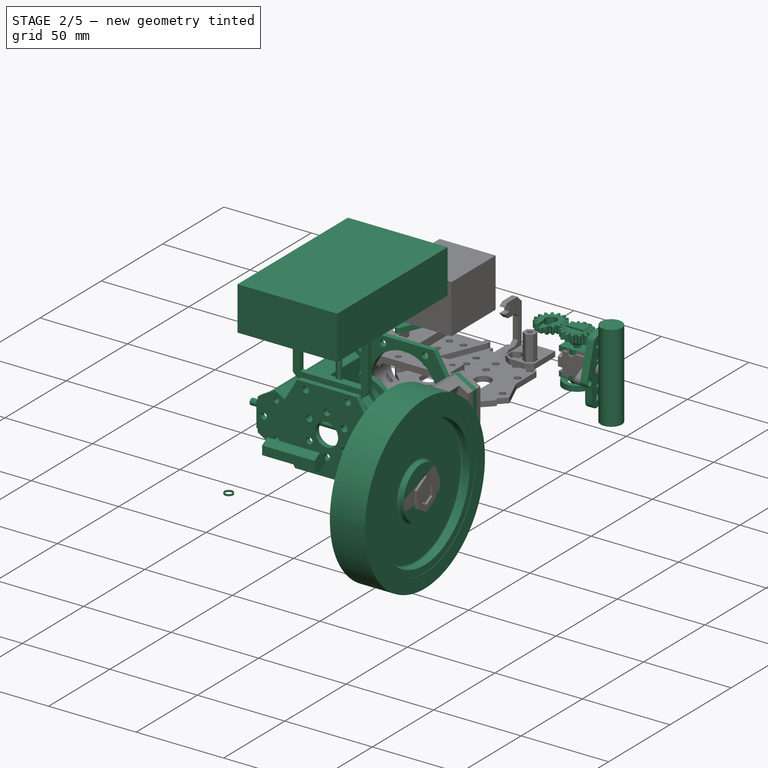
[diagram: stage 2 of 5 — iso view after this stage's code; geometry added in this stage tinted green]
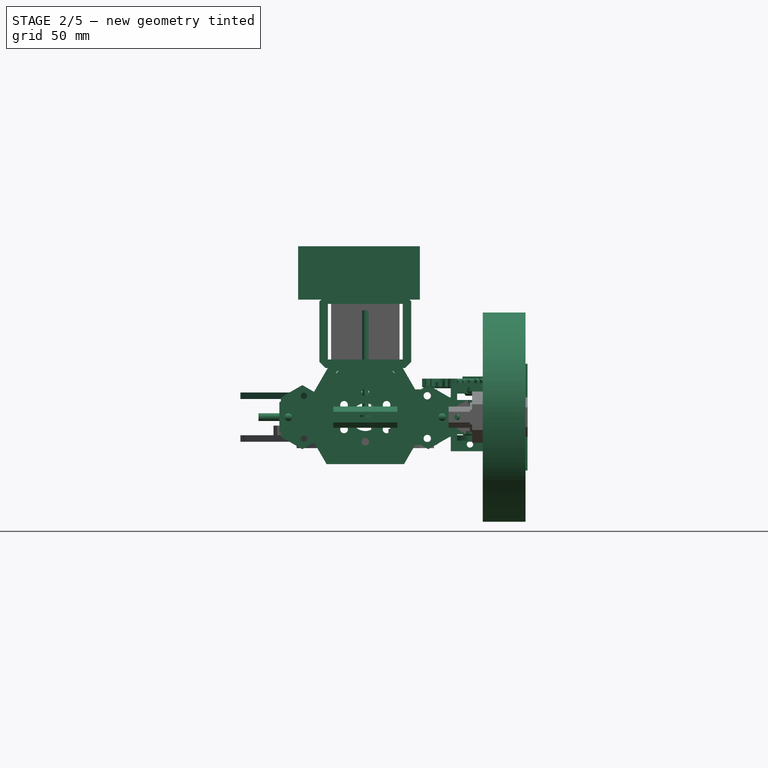
[diagram: stage 2 of 5 — front view after this stage's code; geometry added in this stage tinted green]
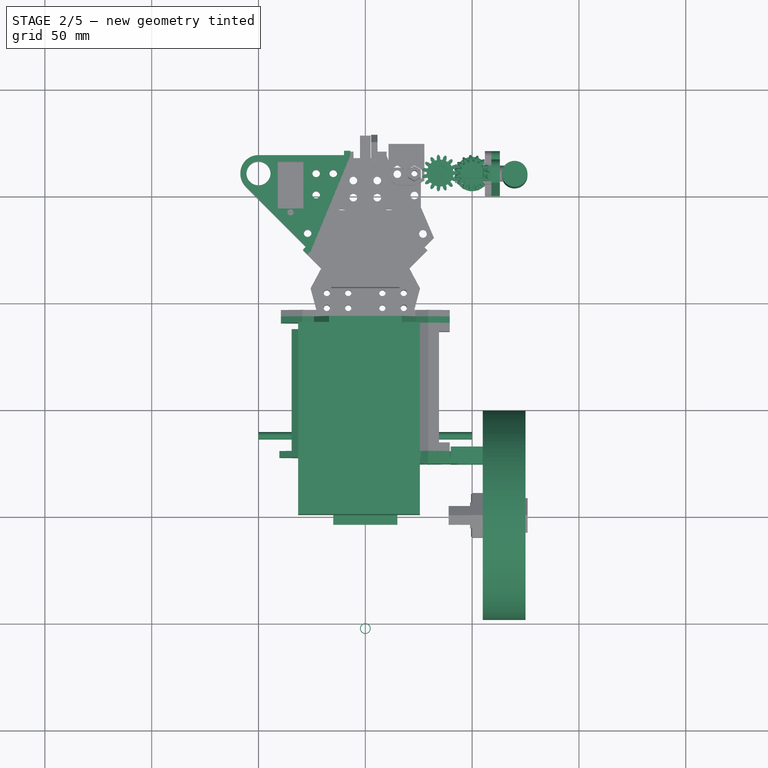
[diagram: stage 2 of 5 — top view after this stage's code; geometry added in this stage tinted green]
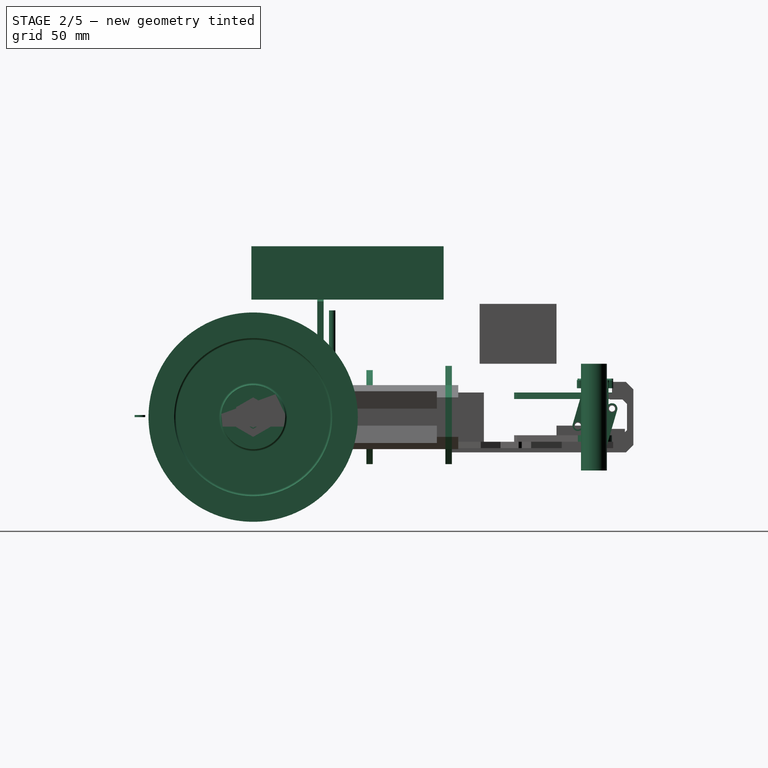
[diagram: stage 2 of 5 — right view after this stage's code; geometry added in this stage tinted green]
FEATURE [Sketcher::SketchObject] Sketch097
  Placement = pos=(0,-30,27) rot=(0,0,1;0rad)
  sketch-geometry (4):
    g0: LineSegment StartX=-17.5 StartY=132.116 StartZ=0 EndX=17.5 EndY=132.116 EndZ=0
    g1: LineSegment StartX=17.5 StartY=132.116 StartZ=0 EndX=17.5 EndY=27.1157 EndZ=0
    g2: LineSegment StartX=17.5 StartY=27.1157 StartZ=0 EndX=-17.5 EndY=27.1157 EndZ=0
    g3: LineSegment StartX=-17.5 StartY=27.1157 StartZ=0 EndX=-17.5 EndY=132.116 EndZ=0
  constraints (11):
    c: Coincident(g0,g1)
    c: Coincident(g1,g2)
    c: Coincident(g2,g3)
    c: Coincident(g3,g0)
    c: Horizontal(g0)
    c: Horizontal(g2)
    c: Vertical(g1)
    c: Vertical(g3)
    c: Symmetric(g0,g0,g-2)
    c: DistanceX(g0,g0) = 35
    c: DistanceY(g1,g1) = 105
FEATURE [Sketcher::SketchObject] Sketch098
  Placement = pos=(0,27,0) rot=(1,0,0;1.5708rad)
  sketch-geometry (28):
    g0: LineSegment [constr] StartX=-31.5 StartY=4 StartZ=0 EndX=-38.4282 EndY=8 EndZ=0
    g1: LineSegment [constr] StartX=-38.4282 StartY=8 StartZ=0 EndX=-45.3564 EndY=4 EndZ=0
    g2: LineSegment [constr] StartX=-45.3564 StartY=4 StartZ=0 EndX=-45.3564 EndY=-4 EndZ=0
    g3: LineSegment [constr] StartX=-45.3564 StartY=-4 StartZ=0 EndX=-38.4282 EndY=-8 EndZ=0
    g4: LineSegment [constr] StartX=-38.4282 StartY=-8 StartZ=0 EndX=-31.5 EndY=-4 EndZ=0
    g5: LineSegment StartX=-31.5 StartY=-4 StartZ=0 EndX=-31.5 EndY=4 EndZ=0
    g6: Circle [constr] CenterX=-38.4282 CenterY=0 CenterZ=0 NormalX=0 NormalY=0 NormalZ=1 Radius=8
    g7: LineSegment [constr] StartX=-16.5 StartY=7.5 StartZ=0 EndX=-29.4904 EndY=15 EndZ=0
    g8: LineSegment [constr] StartX=-29.4904 StartY=15 StartZ=0 EndX=-42.4808 EndY=7.5 EndZ=0
    g9: LineSegment [constr] StartX=-42.4808 StartY=7.5 StartZ=0 EndX=-42.4808 EndY=-7.5 EndZ=0
    g10: LineSegment [constr] StartX=-42.4808 StartY=-7.5 StartZ=0 EndX=-29.4904 EndY=-15 EndZ=0
    g11: LineSegment [constr] StartX=-29.4904 StartY=-15 StartZ=0 EndX=-16.5 EndY=-7.5 EndZ=0
    g12: LineSegment [constr] StartX=-16.5 StartY=-7.5 StartZ=0 EndX=-16.5 EndY=7.5 EndZ=0
    g13: Circle [constr] CenterX=-29.4904 CenterY=0 CenterZ=0 NormalX=0 NormalY=0 NormalZ=1 Radius=15
    g14: LineSegment [constr] StartX=-31.5 StartY=4 StartZ=0 EndX=-16.5 EndY=7.5 EndZ=0
    g15: LineSegment [constr] StartX=-31.5 StartY=-4 StartZ=0 EndX=-16.5 EndY=-7.5 EndZ=0
    g16: LineSegment StartX=-29.4904 StartY=15 StartZ=0 EndX=-34.5 EndY=12.1077 EndZ=0
    g17: LineSegment StartX=-34.5 StartY=12.1077 StartZ=0 EndX=-31.5 EndY=4 EndZ=0
    g18: LineSegment StartX=-31.5 StartY=-4 StartZ=0 EndX=-34.5 EndY=-12.1077 EndZ=0
    g19: LineSegment StartX=-34.5 StartY=-12.1077 StartZ=0 EndX=-29.4904 EndY=-15 EndZ=0
    g20: LineSegment [constr] StartX=-34.5 StartY=12.1077 StartZ=0 EndX=-34.5 EndY=-12.1077 EndZ=0
    g21: Circle [constr] CenterX=-18.75 CenterY=0 CenterZ=0 NormalX=0 NormalY=0 NormalZ=1 Radius=1.5
    g22: Circle [constr] CenterX=-28.75 CenterY=0 CenterZ=0 NormalX=0 NormalY=0 NormalZ=1 Radius=1.5
    g23: Circle CenterX=-28.75 CenterY=10 CenterZ=0 NormalX=0 NormalY=0 NormalZ=1 Radius=1.5
    g24: Circle CenterX=-28.75 CenterY=-10 CenterZ=0 NormalX=0 NormalY=0 NormalZ=1 Radius=1.5
    g25: LineSegment StartX=-29.4904 StartY=15 StartZ=0 EndX=-23 EndY=11.2528 EndZ=0
    g26: LineSegment StartX=-23 StartY=11.2528 StartZ=0 EndX=-23 EndY=-11.2528 EndZ=0
    g27: LineSegment StartX=-23 StartY=-11.2528 StartZ=0 EndX=-29.4904 EndY=-15 EndZ=0
  constraints (69):
    c: Coincident(g0,g1)
    c: Coincident(g1,g2)
    c: Coincident(g2,g3)
    c: Coincident(g3,g4)
    c: Coincident(g4,g5)
    c: Coincident(g5,g0)
    c: Equal(g0, g1-g5) x5
    c: PointOnObject(g0,g6)
    c: PointOnObject(g1,g6)
    c: PointOnObject(g2,g6)
    c: PointOnObject(g3,g6)
    c: PointOnObject(g4,g6)
    c: PointOnObject(g5,g6)
    c: PointOnObject(g6,g-1)
    c: Coincident(g7,g8)
    c: Coincident(g8,g9)
    c: Coincident(g9,g10)
    c: Coincident(g10,g11)
    c: Coincident(g11,g12)
    c: Coincident(g12,g7)
    c: Equal(g7, g8-g12) x5
    c: PointOnObject(g7,g13)
    c: PointOnObject(g8,g13)
    c: PointOnObject(g9,g13)
    c: PointOnObject(g10,g13)
    c: PointOnObject(g11,g13)
    c: PointOnObject(g12,g13)
    c: PointOnObject(g13,g-1)
    c: Vertical(g12)
    c: Vertical(g5)
    c: Radius(g13) = 15
    c: Radius(g6) = 8
    c: DistanceX(g7,g-1) = 16.5
    c: DistanceX(g0,g-1) = 31.5
    c: Coincident(g0,g14)
    c: Coincident(g14,g7)
    c: Coincident(g15,g4)
    c: Coincident(g15,g11)
    c: Coincident(g7,g16)
    c: Coincident(g16,g17)
    c: Coincident(g17,g0)
    c: Coincident(g4,g18)
    c: Coincident(g18,g19)
    c: Coincident(g19,g10)
    c: PointOnObject(g16,g8)
    c: PointOnObject(g18,g10)
    c: Coincident(g20,g16)
    c: Coincident(g20,g18)
    c: Vertical(g20)
    c: DistanceX(g16,g7) = 18
    c: PointOnObject(g21,g-1)
    c: Radius(g22) = 1.5
    c: Equal(g22,g21)
    c: Equal(g22,g23)
    c: Equal(g22,g24)
    c: Symmetric(g23,g24,g-1)
    c: DistanceY(g24,g23) = 20
    c: DistanceX(g21,g-1) = 18.75
    c: DistanceX(g22,g21) = 10
    c: DistanceX(g23,g21) = 10
    c: PointOnObject(g22,g-1)
    c: Coincident(g7,g25)
    c: Coincident(g25,g26)
    c: Vertical(g26)
    c: Coincident(g26,g27)
    c: Coincident(g27,g10)
    c: PointOnObject(g26,g11)
    c: PointOnObject(g25,g7)
    c: DistanceX(g25,g-1) = 23
FEATURE [PartDesign::Pad] Pad075  label="SideWall"
  Length = 60
  Length2 = 100
  Placement = pos=(0,27,0) rot=(1,0,0;1.5708rad)
  Reversed = true
  Sketch = -> Sketch098
  Type = 0
FEATURE [Sketcher::SketchObject] Sketch110
  Placement = pos=(0,40,0) rot=(1,0,0;1.5708rad)
  sketch-geometry (20):
    g0: LineSegment StartX=-23 StartY=-11.2528 StartZ=0 EndX=-23 EndY=11.2528 EndZ=0
    g1: LineSegment StartX=-23 StartY=11.2528 StartZ=0 EndX=-10.2528 EndY=24 EndZ=0
    g2: LineSegment StartX=-10.2528 StartY=24 StartZ=0 EndX=10.2528 EndY=24 EndZ=0
    g3: LineSegment StartX=10.2528 StartY=24 StartZ=0 EndX=23 EndY=11.2528 EndZ=0
    g4: LineSegment StartX=23 StartY=11.2528 StartZ=0 EndX=23 EndY=-11.2528 EndZ=0
    g5: LineSegment StartX=23 StartY=-11.2528 StartZ=0 EndX=20 EndY=-9.52073 EndZ=0
    g6: LineSegment StartX=20 StartY=-9.52073 StartZ=0 EndX=20 EndY=8.28427 EndZ=0
    g7: LineSegment StartX=20 StartY=8.28427 StartZ=0 EndX=8.28427 EndY=20 EndZ=0
    g8: LineSegment StartX=8.28427 StartY=20 StartZ=0 EndX=-8.28427 EndY=20 EndZ=0
    g9: LineSegment StartX=-8.28427 StartY=20 StartZ=0 EndX=-20 EndY=8.28427 EndZ=0
    g10: LineSegment StartX=-20 StartY=8.28427 StartZ=0 EndX=-20 EndY=-9.52073 EndZ=0
    g11: LineSegment StartX=-20 StartY=-9.52073 StartZ=0 EndX=-23 EndY=-11.2528 EndZ=0
    g12: Circle [constr] CenterX=0 CenterY=0 CenterZ=0 NormalX=0 NormalY=0 NormalZ=1 Radius=20
    g13: LineSegment [constr] StartX=-29.4904 StartY=15 StartZ=0 EndX=-42.4808 EndY=7.5 EndZ=0
    g14: LineSegment [constr] StartX=-42.4808 StartY=7.5 StartZ=0 EndX=-42.4808 EndY=-7.5 EndZ=0
    g15: LineSegment [constr] StartX=-42.4808 StartY=-7.5 StartZ=0 EndX=-29.4904 EndY=-15 EndZ=0
    g16: LineSegment [constr] StartX=-29.4904 StartY=-15 StartZ=0 EndX=-16.5 EndY=-7.5 EndZ=0
    g17: LineSegment [constr] StartX=-16.5 StartY=-7.5 StartZ=0 EndX=-16.5 EndY=7.5 EndZ=0
    g18: LineSegment [constr] StartX=-16.5 StartY=7.5 StartZ=0 EndX=-29.4904 EndY=15 EndZ=0
    g19: Circle [constr] CenterX=-29.4904 CenterY=0 CenterZ=0 NormalX=0 NormalY=0 NormalZ=1 Radius=15
  constraints (56):
    c: Vertical(g0)
    c: Coincident(g0,g1)
    c: Coincident(g1,g2)
    c: Horizontal(g2)
    c: Coincident(g2,g3)
    c: Coincident(g3,g4)
    c: Vertical(g4)
    c: Coincident(g4,g5)
    c: Coincident(g5,g6)
    c: Vertical(g6)
    c: Coincident(g6,g7)
    c: Coincident(g7,g8)
    c: Horizontal(g8)
    c: Coincident(g8,g9)
    c: Coincident(g9,g10)
    c: Coincident(g10,g11)
    c: Coincident(g11,g0)
    c: Coincident(g12,g-1)
    c: Tangent(g8,g12)
    c: Tangent(g9,g12)
    c: Tangent(g7,g12)
    c: Radius(g12) = 20
    c: Vertical(g10)
    c: Tangent(g12,g6)
    c: DistanceX(g5,g5) = 3
    c: DistanceX(g0,g-1) = 23
    c: DistanceY(g-1,g1) = 24
    c: Angle(g1,g2) = 2.35619
    c: Angle(g2,g3) = 2.35619
    c: Parallel(g7,g3)
    c: Parallel(g9,g1)
    c: Tangent(g10,g12)
    c: DistanceX(g11,g11) = 3
    c: Coincident(g13,g14)
    c: Coincident(g14,g15)
    c: Coincident(g15,g16)
    c: Coincident(g16,g17)
    c: Coincident(g17,g18)
    c: Coincident(g18,g13)
    c: Equal(g13, g14-g18) x5
    c: PointOnObject(g13,g19)
    c: PointOnObject(g14,g19)
    c: PointOnObject(g15,g19)
    c: PointOnObject(g16,g19)
    c: PointOnObject(g17,g19)
    c: PointOnObject(g18,g19)
    c: PointOnObject(g19,g-1)
    c: Radius(g19) = 15
    c: Vertical(g14)
    c: PointOnObject(g0,g18)
    c: DistanceX(g17,g-1) = 16.5
    c: Symmetric(g0,g3,g-2)
    c: Equal(g4,g0)
    c: PointOnObject(g0,g16)
    c: PointOnObject(g10,g16)
    c: Equal(g6,g10)
FEATURE [PartDesign::Pad] Pad083  label="MotorCageSupportRib"
  Length = 6
  Length2 = 100
  Placement = pos=(0,40,0) rot=(1,0,0;1.5708rad)
  Sketch = -> Sketch110
  Type = 0
FEATURE [Sketcher::SketchObject] Sketch123
  Placement = pos=(0,40,0) rot=(0,0,1;0rad)
  sketch-geometry (6):
    g0: Circle CenterX=0 CenterY=-3 CenterZ=0 NormalX=0 NormalY=0 NormalZ=1 Radius=1.5
    g1: LineSegment [constr] StartX=-3 StartY=0 StartZ=0 EndX=3 EndY=0 EndZ=0
    g2: LineSegment [constr] StartX=3 StartY=0 StartZ=0 EndX=3 EndY=-6 EndZ=0
    g3: LineSegment [constr] StartX=3 StartY=-6 StartZ=0 EndX=-3 EndY=-6 EndZ=0
    g4: LineSegment [constr] StartX=-3 StartY=-6 StartZ=0 EndX=-3 EndY=0 EndZ=0
    g5: LineSegment [constr] StartX=-3 StartY=-6 StartZ=0 EndX=3 EndY=0 EndZ=0
  constraints (17):
    c: PointOnObject(g0,g-2)
    c: Radius(g0) = 1.5
    c: Coincident(g1,g2)
    c: Coincident(g2,g3)
    c: Coincident(g3,g4)
    c: Coincident(g4,g1)
    c: Horizontal(g1)
    c: Horizontal(g3)
    c: Vertical(g2)
    c: Vertical(g4)
    c: Equal(g4,g3)
    c: Symmetric(g1,g1,g-2)
    c: Coincident(g5,g3)
    c: Coincident(g5,g1)
    c: PointOnObject(g0,g5)
    c: DistanceX(g1,g1) = 6
    c: PointOnObject(g1,g-1)
FEATURE [PartDesign::Pad] Pad097  label="ScrewCutout"
  Length = 50
  Length2 = 100
  Placement = pos=(0,40,0) rot=(0,0,1;0rad)
  Sketch = -> Sketch123
  Type = 0
FEATURE [Sketcher::SketchObject] Sketch125
  Placement = pos=(0,40,20) rot=(0,0,1;0rad)
  sketch-geometry (6):
    g0: Circle CenterX=0 CenterY=-3 CenterZ=0 NormalX=0 NormalY=0 NormalZ=1 Radius=3
    g1: LineSegment [constr] StartX=-3 StartY=0 StartZ=0 EndX=3 EndY=0 EndZ=0
    g2: LineSegment [constr] StartX=3 StartY=0 StartZ=0 EndX=3 EndY=-6 EndZ=0
    g3: LineSegment [constr] StartX=3 StartY=-6 StartZ=0 EndX=-3 EndY=-6 EndZ=0
    g4: LineSegment [constr] StartX=-3 StartY=-6 StartZ=0 EndX=-3 EndY=0 EndZ=0
    g5: LineSegment [constr] StartX=-3 StartY=-6 StartZ=0 EndX=3 EndY=0 EndZ=0
  constraints (17):
    c: PointOnObject(g0,g-2)
    c: Radius(g0) = 3
    c: Coincident(g1,g2)
    c: Coincident(g2,g3)
    c: Coincident(g3,g4)
    c: Coincident(g4,g1)
    c: Horizontal(g1)
    c: Horizontal(g3)
    c: Vertical(g2)
    c: Vertical(g4)
    c: Equal(g4,g3)
    c: Symmetric(g1,g1,g-2)
    c: Coincident(g5,g3)
    c: Coincident(g5,g1)
    c: PointOnObject(g0,g5)
    c: DistanceX(g1,g1) = 6
    c: PointOnObject(g1,g-1)
FEATURE [PartDesign::Pad] Pad099  label="CountersinkCutout"
  Length = 2
  Length2 = 100
  Placement = pos=(0,40,20) rot=(0,0,1;0rad)
  Sketch = -> Sketch125
  Type = 0
FEATURE [Part::MultiFuse] Fusion004020003  label="Cutout"
  Shapes = -> [Pad097,Pad099]
FEATURE [Sketcher::SketchObject] Sketch135
  Placement = pos=(0,34,0) rot=(0.57735,0.57735,0.57735;2.0944rad)
  sketch-geometry (6):
    g0: LineSegment [constr] StartX=0.25 StartY=3 StartZ=0 EndX=6.25 EndY=3 EndZ=0
    g1: LineSegment [constr] StartX=6.25 StartY=3 StartZ=0 EndX=6.25 EndY=-3 EndZ=0
    g2: LineSegment [constr] StartX=6.25 StartY=-3 StartZ=0 EndX=0.25 EndY=-3 EndZ=0
    g3: LineSegment [constr] StartX=0.25 StartY=-3 StartZ=0 EndX=0.25 EndY=3 EndZ=0
    g4: Circle CenterX=3.25 CenterY=0 CenterZ=0 NormalX=0 NormalY=0 NormalZ=1 Radius=1.5
    g5: LineSegment [constr] StartX=0.25 StartY=3 StartZ=0 EndX=6.25 EndY=-3 EndZ=0
  constraints (16):
    c: Coincident(g0,g1)
    c: Coincident(g1,g2)
    c: Coincident(g2,g3)
    c: Coincident(g3,g0)
    c: Horizontal(g0)
    c: Horizontal(g2)
    c: Vertical(g1)
    c: Equal(g0,g1)
    c: PointOnObject(g4,g-1)
    c: Radius(g4) = 1.5
    c: DistanceX(g0,g0) = 6
    c: Symmetric(g0,g2,g-1)
    c: Coincident(g5,g0)
    c: Coincident(g5,g1)
    c: PointOnObject(g4,g5)
    c: DistanceX(g-1,g0) = 0.25
FEATURE [PartDesign::Pad] Pad107  label="ScrewCutout"
  Length = 100
  Length2 = 100
  Midplane = true
  Placement = pos=(0,34,0) rot=(0.57735,0.57735,0.57735;2.0944rad)
  Reversed = true
  Sketch = -> Sketch135
  Type = 0
FEATURE [Sketcher::SketchObject] Sketch137
  Placement = pos=(0,40,0) rot=(0.57735,0.57735,0.57735;2.0944rad)
  sketch-geometry (6):
    g0: LineSegment [constr] StartX=-5.75 StartY=3 StartZ=0 EndX=0.25 EndY=3 EndZ=0
    g1: LineSegment [constr] StartX=0.25 StartY=3 StartZ=0 EndX=0.25 EndY=-3 EndZ=0
    g2: LineSegment [constr] StartX=0.25 StartY=-3 StartZ=0 EndX=-5.75 EndY=-3 EndZ=0
    g3: LineSegment [constr] StartX=-5.75 StartY=-3 StartZ=0 EndX=-5.75 EndY=3 EndZ=0
    g4: Circle CenterX=-2.75 CenterY=0 CenterZ=0 NormalX=0 NormalY=0 NormalZ=1 Radius=1.5
    g5: LineSegment [constr] StartX=-5.75 StartY=3 StartZ=0 EndX=0.25 EndY=-3 EndZ=0
  constraints (16):
    c: Coincident(g0,g1)
    c: Coincident(g1,g2)
    c: Coincident(g2,g3)
    c: Coincident(g3,g0)
    c: Horizontal(g0)
    c: Horizontal(g2)
    c: Vertical(g1)
    c: Equal(g0,g1)
    c: PointOnObject(g4,g-1)
    c: Radius(g4) = 1.5
    c: DistanceX(g0,g0) = 6
    c: Symmetric(g0,g2,g-1)
    c: Coincident(g5,g0)
    c: Coincident(g5,g1)
    c: PointOnObject(g4,g5)
    c: DistanceX(g-1,g0) = 0.25
FEATURE [Sketcher::SketchObject] Sketch138
  Placement = pos=(0,70,0) rot=(0.57735,0.57735,0.57735;2.0944rad)
  sketch-geometry (6):
    g0: LineSegment [constr] StartX=-5.75 StartY=3 StartZ=0 EndX=0.25 EndY=3 EndZ=0
    g1: LineSegment [constr] StartX=0.25 StartY=3 StartZ=0 EndX=0.25 EndY=-3 EndZ=0
    g2: LineSegment [constr] StartX=0.25 StartY=-3 StartZ=0 EndX=-5.75 EndY=-3 EndZ=0
    g3: LineSegment [constr] StartX=-5.75 StartY=-3 StartZ=0 EndX=-5.75 EndY=3 EndZ=0
    g4: Circle CenterX=-2.75 CenterY=0 CenterZ=0 NormalX=0 NormalY=0 NormalZ=1 Radius=1.5
    g5: LineSegment [constr] StartX=-5.75 StartY=3 StartZ=0 EndX=0.25 EndY=-3 EndZ=0
  constraints (16):
    c: Coincident(g0,g1)
    c: Coincident(g1,g2)
    c: Coincident(g2,g3)
    c: Coincident(g3,g0)
    c: Horizontal(g0)
    c: Horizontal(g2)
    c: Vertical(g1)
    c: Equal(g0,g1)
    c: PointOnObject(g4,g-1)
    c: Radius(g4) = 1.5
    c: DistanceX(g0,g0) = 6
    c: Symmetric(g0,g2,g-1)
    c: Coincident(g5,g0)
    c: Coincident(g5,g1)
    c: PointOnObject(g4,g5)
    c: DistanceX(g-1,g0) = 0.25
FEATURE [Sketcher::SketchObject] Sketch139
  Placement = pos=(0,34,0) rot=(0.57735,0.57735,0.57735;2.0944rad)
  sketch-geometry (6):
    g0: LineSegment [constr] StartX=0.25 StartY=3 StartZ=0 EndX=6.25 EndY=3 EndZ=0
    g1: LineSegment [constr] StartX=6.25 StartY=3 StartZ=0 EndX=6.25 EndY=-3 EndZ=0
    g2: LineSegment [constr] StartX=6.25 StartY=-3 StartZ=0 EndX=0.25 EndY=-3 EndZ=0
    g3: LineSegment [constr] StartX=0.25 StartY=-3 StartZ=0 EndX=0.25 EndY=3 EndZ=0
    g4: Circle CenterX=3.25 CenterY=0 CenterZ=0 NormalX=0 NormalY=0 NormalZ=1 Radius=1.8
    g5: LineSegment [constr] StartX=0.25 StartY=3 StartZ=0 EndX=6.25 EndY=-3 EndZ=0
  constraints (16):
    c: Coincident(g0,g1)
    c: Coincident(g1,g2)
    c: Coincident(g2,g3)
    c: Coincident(g3,g0)
    c: Horizontal(g0)
    c: Horizontal(g2)
    c: Vertical(g1)
    c: Equal(g0,g1)
    c: PointOnObject(g4,g-1)
    c: Radius(g4) = 1.8
    c: DistanceX(g0,g0) = 6
    c: Symmetric(g0,g2,g-1)
    c: Coincident(g5,g0)
    c: Coincident(g5,g1)
    c: PointOnObject(g4,g5)
    c: DistanceX(g-1,g0) = 0.25
FEATURE [PartDesign::Pad] Pad110  label="SideMountScrewCutout"
  Length = 100
  Length2 = 100
  Midplane = true
  Placement = pos=(0,34,0) rot=(0.57735,0.57735,0.57735;2.0944rad)
  Sketch = -> Sketch139
  Type = 0
FEATURE [PartDesign::Pad] Pad111  label="ScrewCutout"
  Length = 100
  Length2 = 100
  Midplane = true
  Placement = pos=(0,70,0) rot=(0.57735,0.57735,0.57735;2.0944rad)
  Sketch = -> Sketch138
  Type = 0
FEATURE [Part::MultiFuse] Fusion004020008  label="sideCutouts"
  Shapes = -> [Pad111,Pad107]
FEATURE [Part::Cut] Cut007019013  label="SideWall"
  Base = -> Pad075
  Tool = -> Fusion004020008
FEATURE [Sketcher::SketchObject] Sketch141
  Placement = pos=(0,90,0) rot=(1,0,0;1.5708rad)
  sketch-geometry (44):
    g0: LineSegment [constr] StartX=-31.5 StartY=4 StartZ=0 EndX=-38.4282 EndY=8 EndZ=0
    g1: LineSegment [constr] StartX=-38.4282 StartY=8 StartZ=0 EndX=-45.3564 EndY=4 EndZ=0
    g2: LineSegment [constr] StartX=-45.3564 StartY=4 StartZ=0 EndX=-45.3564 EndY=-4 EndZ=0
    g3: LineSegment [constr] StartX=-45.3564 StartY=-4 StartZ=0 EndX=-38.4282 EndY=-8 EndZ=0
    g4: LineSegment [constr] StartX=-38.4282 StartY=-8 StartZ=0 EndX=-31.5 EndY=-4 EndZ=0
    g5: LineSegment [constr] StartX=-31.5 StartY=-4 StartZ=0 EndX=-31.5 EndY=4 EndZ=0
    g6: Circle [constr] CenterX=-38.4282 CenterY=0 CenterZ=0 NormalX=0 NormalY=0 NormalZ=1 Radius=8
    g7: LineSegment [constr] StartX=-16.5 StartY=7.5 StartZ=0 EndX=-29.4904 EndY=15 EndZ=0
    g8: LineSegment [constr] StartX=-29.4904 StartY=15 StartZ=0 EndX=-42.4808 EndY=7.5 EndZ=0
    g9: LineSegment [constr] StartX=-42.4808 StartY=7.5 StartZ=0 EndX=-42.4808 EndY=-7.5 EndZ=0
    g10: LineSegment [constr] StartX=-42.4808 StartY=-7.5 StartZ=0 EndX=-29.4904 EndY=-15 EndZ=0
    g11: LineSegment [constr] StartX=-29.4904 StartY=-15 StartZ=0 EndX=-16.5 EndY=-7.5 EndZ=0
    g12: LineSegment [constr] StartX=-16.5 StartY=-7.5 StartZ=0 EndX=-16.5 EndY=7.5 EndZ=0
    g13: Circle [constr] CenterX=-29.4904 CenterY=0 CenterZ=0 NormalX=0 NormalY=0 NormalZ=1 Radius=15
    g14: LineSegment [constr] StartX=-31.5 StartY=4 StartZ=0 EndX=-16.5 EndY=7.5 EndZ=0
    g15: LineSegment [constr] StartX=-31.5 StartY=-4 StartZ=0 EndX=-16.5 EndY=-7.5 EndZ=0
    g16: LineSegment StartX=-29.4904 StartY=15 StartZ=0 EndX=-39.5 EndY=9.22094 EndZ=0
    g17: LineSegment [constr] StartX=-39.5 StartY=9.22094 StartZ=0 EndX=-31.5 EndY=4 EndZ=0
    g18: LineSegment [constr] StartX=-31.5 StartY=-4 StartZ=0 EndX=-39.5 EndY=-9.22094 EndZ=0
    g19: LineSegment StartX=-39.5 StartY=-9.22094 StartZ=0 EndX=-29.4904 EndY=-15 EndZ=0
    g20: LineSegment StartX=-39.5 StartY=9.22094 StartZ=0 EndX=-39.5 EndY=-9.22094 EndZ=0
    g21: Circle [constr] CenterX=-18.75 CenterY=0 CenterZ=0 NormalX=0 NormalY=0 NormalZ=1 Radius=1.8
    g22: Circle [constr] CenterX=-28.75 CenterY=0 CenterZ=0 NormalX=0 NormalY=0 NormalZ=1 Radius=1.8
    g23: Circle CenterX=-29 CenterY=10 CenterZ=0 NormalX=0 NormalY=0 NormalZ=1 Radius=1.8
    g24: Circle CenterX=-29 CenterY=-10 CenterZ=0 NormalX=0 NormalY=0 NormalZ=1 Radius=1.8
    g25: LineSegment StartX=-29.4904 StartY=15 StartZ=0 EndX=-24 EndY=11.8301 EndZ=0
    g26: LineSegment [constr] StartX=-24 StartY=11.8301 StartZ=0 EndX=-24 EndY=-11.8301 EndZ=0
    g27: LineSegment StartX=-24 StartY=-11.8301 StartZ=0 EndX=-29.4904 EndY=-15 EndZ=0
    g28: Circle CenterX=-12 CenterY=20 CenterZ=0 NormalX=0 NormalY=0 NormalZ=1 Radius=1.8
    g29: Circle [constr] CenterX=-12 CenterY=-19 CenterZ=0 NormalX=0 NormalY=0 NormalZ=1 Radius=1.8
    g30: LineSegment [constr] StartX=-12 StartY=-19 StartZ=0 EndX=-12 EndY=20 EndZ=0
    g31: ArcOfCircle CenterX=0 CenterY=0 CenterZ=0 NormalX=0 NormalY=0 NormalZ=1 Radius=19 StartAngle=1.5708 EndAngle=4.71239
    g32: LineSegment StartX=-24 StartY=11.8301 StartZ=0 EndX=-16.9737 EndY=24 EndZ=0
    g33: LineSegment StartX=-16.9737 StartY=24 StartZ=0 EndX=0 EndY=24 EndZ=0
    g34: LineSegment StartX=0 StartY=24 StartZ=0 EndX=-2e-12 EndY=19 EndZ=0
    g35: LineSegment StartX=-24 StartY=-11.8301 StartZ=0 EndX=-18.1284 EndY=-22 EndZ=0
    g36: LineSegment StartX=-18.1284 StartY=-22 StartZ=0 EndX=0 EndY=-22 EndZ=0
    g37: LineSegment StartX=0 StartY=-22 StartZ=0 EndX=6e-12 EndY=-19 EndZ=0
    g38: Circle CenterX=-36 CenterY=0 CenterZ=0 NormalX=0 NormalY=0 NormalZ=1 Radius=1.8
    g39: LineSegment StartX=-31.5 StartY=6.5 StartZ=0 EndX=-29 EndY=6.5 EndZ=0
    g40: LineSegment StartX=-29 StartY=6.5 StartZ=0 EndX=-29 EndY=-6.5 EndZ=0
    g41: LineSegment StartX=-29 StartY=-6.5 StartZ=0 EndX=-31.5 EndY=-6.5 EndZ=0
    g42: LineSegment StartX=-31.5 StartY=-6.5 StartZ=0 EndX=-31.5 EndY=6.5 EndZ=0
    g43: Circle [constr] CenterX=-12 CenterY=20 CenterZ=0 NormalX=0 NormalY=0 NormalZ=1 Radius=4
  constraints (114):
    c: Coincident(g0,g1)
    c: Coincident(g1,g2)
    c: Coincident(g2,g3)
    c: Coincident(g3,g4)
    c: Coincident(g4,g5)
    c: Coincident(g5,g0)
    c: Equal(g0, g1-g5) x5
    c: PointOnObject(g0,g6)
    c: PointOnObject(g1,g6)
    c: PointOnObject(g2,g6)
    c: PointOnObject(g3,g6)
    c: PointOnObject(g4,g6)
    c: PointOnObject(g5,g6)
    c: PointOnObject(g6,g-1)
    c: Coincident(g7,g8)
    c: Coincident(g8,g9)
    c: Coincident(g9,g10)
    c: Coincident(g10,g11)
    c: Coincident(g11,g12)
    c: Coincident(g12,g7)
    c: Equal(g7, g8-g12) x5
    c: PointOnObject(g7,g13)
    c: PointOnObject(g8,g13)
    c: PointOnObject(g9,g13)
    c: PointOnObject(g10,g13)
    c: PointOnObject(g11,g13)
    c: PointOnObject(g12,g13)
    c: PointOnObject(g13,g-1)
    c: Vertical(g12)
    c: Vertical(g5)
    c: Radius(g13) = 15
    c: Radius(g6) = 8
    c: DistanceX(g7,g-1) = 16.5
    c: DistanceX(g0,g-1) = 31.5
    c: Coincident(g0,g14)
    c: Coincident(g14,g7)
    c: Coincident(g15,g4)
    c: Coincident(g15,g11)
    c: Coincident(g7,g16)
    c: Coincident(g16,g17)
    c: Coincident(g17,g0)
    c: Coincident(g4,g18)
    c: Coincident(g18,g19)
    c: Coincident(g19,g10)
    c: PointOnObject(g16,g8)
    c: PointOnObject(g18,g10)
    c: Coincident(g20,g16)
    c: Coincident(g20,g18)
    c: Vertical(g20)
    c: DistanceX(g16,g7) = 23
    c: PointOnObject(g21,g-1)
    c: Radius(g22) = 1.8
    c: Equal(g22,g21)
    c: Equal(g22,g23)
    c: Equal(g22,g24)
    c: Symmetric(g23,g24,g-1)
    c: DistanceY(g24,g23) = 20
    c: DistanceX(g21,g-1) = 18.75
    c: DistanceX(g22,g21) = 10
    c: PointOnObject(g22,g-1)
    c: Coincident(g7,g25)
    c: Coincident(g25,g26)
    c: Vertical(g26)
    c: Coincident(g26,g27)
    c: Coincident(g27,g10)
    c: PointOnObject(g26,g11)
    c: PointOnObject(g25,g7)
    c: DistanceX(g25,g-1) = 24
    c: Vertical(g30)
    c: Radius(g28) = 1.8
    c: Equal(g28,g29)
    c: DistanceX(g28,g-1) = 12
    c: DistanceY(g29,g-1) = 19
    c: DistanceY(g-1,g30) = 20
    c: Coincident(g30,g29)
    c: Coincident(g30,g28)
    c: Coincident(g31,g-1)
    c: PointOnObject(g31,g-2)
    c: PointOnObject(g31,g-2)
    c: Radius(g31) = 19
    c: Coincident(g25,g32)
    c: Coincident(g32,g33)
    c: PointOnObject(g33,g-2)
    c: Coincident(g33,g34)
    c: Coincident(g34,g31)
    c: Coincident(g26,g35)
    c: Coincident(g35,g36)
    c: PointOnObject(g36,g-2)
    c: Coincident(g36,g37)
    c: Coincident(g37,g31)
    c: Horizontal(g36)
    c: Horizontal(g33)
    c: DistanceY(g-1,g33) = 24
    c: Angle(g32,g33) = 2.0944
    c: DistanceY(g36,g-1) = 22
    c: Angle(g36,g35) = 2.0944
    c: DistanceX(g23,g-1) = 29
    c: PointOnObject(g38,g-1)
    c: DistanceX(g38,g-1) = 36
    c: Equal(g38,g23)
    c: Coincident(g39,g40)
    c: Coincident(g40,g41)
    c: Coincident(g41,g42)
    c: Coincident(g42,g39)
    c: Horizontal(g39)
    c: Horizontal(g41)
    c: Vertical(g40)
    c: Vertical(g42)
    c: DistanceX(g39) = -29
    c: DistanceY(g39) = 6.5
    c: DistanceX(g39,g39) = 2.5
    c: Symmetric(g39,g41,g-1)
    c: Coincident(g43,g28)
    c: Radius(g43) = 4
FEATURE [PartDesign::Pad] Pad112  label="MotorCageEndCap"
  Length = 3
  Length2 = 100
  Placement = pos=(0,90,0) rot=(1,0,0;1.5708rad)
  Reversed = true
  Sketch = -> Sketch141
  Type = 0
FEATURE [Part::Mirroring] Part__Mirroring007  label="MotorCageEndCap"
  Base = (0,0,0)
  Normal = (1,0,0)
  Source = -> Pad112
FEATURE [Sketcher::SketchObject] Sketch143
  sketch-geometry (2):
    g0: Circle [constr] CenterX=69.8576 CenterY=159.519 CenterZ=0 NormalX=0 NormalY=0 NormalZ=1 Radius=11.5982
    g1: Circle CenterX=69.8576 CenterY=159.519 CenterZ=0 NormalX=0 NormalY=0 NormalZ=1 Radius=6.03898
  constraints (1):
    c: Coincident(g1,g0)
FEATURE [PartDesign::Pad] Pad113
  Length = 50
  Length2 = 100
  Midplane = true
  Sketch = -> Sketch143
  Type = 0
FEATURE [Sketcher::SketchObject] Sketch144
  Placement = pos=(50,160,-10) rot=(1,0,0;1.5708rad)
  sketch-geometry (16):
    g0: Circle [constr] CenterX=0 CenterY=0 CenterZ=0 NormalX=0 NormalY=0 NormalZ=1 Radius=4.8541
    g1: Circle [constr] CenterX=3.92705 CenterY=2.85317 CenterZ=0 NormalX=0 NormalY=0 NormalZ=1 Radius=1.5
    g2: Circle [constr] CenterX=4.8541 CenterY=0 CenterZ=0 NormalX=0 NormalY=0 NormalZ=1 Radius=1.5
    g3: LineSegment [constr] StartX=0 StartY=0 StartZ=0 EndX=3.92705 EndY=2.85317 EndZ=0
    g4: LineSegment [constr] StartX=5.63495 StartY=1.5 StartZ=0 EndX=6.68526 EndY=0 EndZ=0
    g5: LineSegment [constr] StartX=6.68526 StartY=0 StartZ=0 EndX=5.63495 EndY=-1.5 EndZ=0
    g6: LineSegment [constr] StartX=5.63495 StartY=-1.5 StartZ=0 EndX=11.3025 EndY=-1.5 EndZ=0
    g7: LineSegment [constr] StartX=11.3025 StartY=-1.5 StartZ=0 EndX=11.3025 EndY=1.5 EndZ=0
    g8: LineSegment [constr] StartX=11.3025 StartY=1.5 StartZ=0 EndX=5.63495 EndY=1.5 EndZ=0
    g9: LineSegment StartX=4.42336 StartY=2 StartZ=0 EndX=3.02294 EndY=0 EndZ=0
    g10: LineSegment [constr] StartX=3.02294 StartY=0 StartZ=0 EndX=4.42336 EndY=-2 EndZ=0
    g11: LineSegment [constr] StartX=4.42336 StartY=-2 StartZ=0 EndX=1.8 EndY=-2 EndZ=0
    g12: LineSegment StartX=1.8 StartY=2 StartZ=0 EndX=4.42336 EndY=2 EndZ=0
    g13: LineSegment StartX=3.02294 StartY=0 StartZ=0 EndX=1.8 EndY=0 EndZ=0
    g14: LineSegment [constr] StartX=1.8 StartY=0 StartZ=0 EndX=1.8 EndY=-2 EndZ=0
    g15: LineSegment StartX=1.8 StartY=2 StartZ=0 EndX=1.8 EndY=0 EndZ=0
  constraints (42):
    c: Coincident(g0,g-1)
    c: PointOnObject(g1,g0)
    c: PointOnObject(g2,g0)
    c: Tangent(g1,g2)
    c: Equal(g1,g2)
    c: PointOnObject(g2,g-1)
    c: Radius(g2) = 1.5
    c: Coincident(g3,g-1)
    c: Coincident(g3,g1)
    c: Angle(g-1,g3) = 0.628319
    c: Coincident(g4,g5)
    c: Coincident(g5,g6)
    c: Horizontal(g6)
    c: Coincident(g6,g7)
    c: Coincident(g7,g8)
    c: Coincident(g8,g4)
    c: Horizontal(g8)
    c: PointOnObject(g4,g-1)
    c: Tangent(g4,g2)
    c: Symmetric(g4,g5,g-1)
    c: Vertical(g7)
    c: DistanceY(g7,g7) = 3
    c: Angle(g4,g5) = 1.91986
    c: Coincident(g9,g10)
    c: Coincident(g10,g11)
    c: Horizontal(g11)
    c: Coincident(g12,g9)
    c: PointOnObject(g9,g-1)
    c: Tangent(g9,g2)
    c: Symmetric(g9,g10,g-1)
    c: Angle(g10,g9) = 1.91986
    c: Horizontal(g12)
    c: DistanceY(g11,g12) = 4
    c: Coincident(g13,g9)
    c: Coincident(g14,g13)
    c: Coincident(g14,g11)
    c: Coincident(g15,g12)
    c: Coincident(g15,g13)
    c: Vertical(g15)
    c: Vertical(g14)
    c: Horizontal(g13)
    c: DistanceX(g-1,g13) = 1.8
FEATURE [Sketcher::SketchObject] Sketch145
  Placement = pos=(50,160,-10) rot=(1,0,0;1.5708rad)
  sketch-geometry (16):
    g0: Circle [constr] CenterX=0 CenterY=0 CenterZ=0 NormalX=0 NormalY=0 NormalZ=1 Radius=4.8541
    g1: Circle [constr] CenterX=3.92705 CenterY=2.85317 CenterZ=0 NormalX=0 NormalY=0 NormalZ=1 Radius=1.5
    g2: Circle [constr] CenterX=4.8541 CenterY=0 CenterZ=0 NormalX=0 NormalY=0 NormalZ=1 Radius=1.5
    g3: LineSegment [constr] StartX=0 StartY=0 StartZ=0 EndX=3.92705 EndY=2.85317 EndZ=0
    g4: LineSegment StartX=5.63495 StartY=1.5 StartZ=0 EndX=6.68526 EndY=0 EndZ=0
    g5: LineSegment StartX=6.68526 StartY=0 StartZ=0 EndX=5.63495 EndY=-1.5 EndZ=0
    g6: LineSegment StartX=5.63495 StartY=-1.5 StartZ=0 EndX=8 EndY=-1.5 EndZ=0
    g7: LineSegment StartX=8 StartY=-1.5 StartZ=0 EndX=8 EndY=1.5 EndZ=0
    g8: LineSegment StartX=8 StartY=1.5 StartZ=0 EndX=5.63495 EndY=1.5 EndZ=0
    g9: LineSegment [constr] StartX=4.07325 StartY=1.5 StartZ=0 EndX=3.02294 EndY=0 EndZ=0
    g10: LineSegment [constr] StartX=3.02294 StartY=0 StartZ=0 EndX=4.07325 EndY=-1.5 EndZ=0
    g11: LineSegment [constr] StartX=4.07325 StartY=-1.5 StartZ=0 EndX=1.8 EndY=-1.5 EndZ=0
    g12: LineSegment [constr] StartX=1.8 StartY=1.5 StartZ=0 EndX=4.07325 EndY=1.5 EndZ=0
    g13: LineSegment [constr] StartX=3.02294 StartY=0 StartZ=0 EndX=1.8 EndY=0 EndZ=0
    g14: LineSegment [constr] StartX=1.8 StartY=0 StartZ=0 EndX=1.8 EndY=-1.5 EndZ=0
    g15: LineSegment [constr] StartX=1.8 StartY=1.5 StartZ=0 EndX=1.8 EndY=0 EndZ=0
  constraints (43):
    c: Coincident(g0,g-1)
    c: PointOnObject(g1,g0)
    c: PointOnObject(g2,g0)
    c: Tangent(g1,g2)
    c: Equal(g1,g2)
    c: PointOnObject(g2,g-1)
    c: Radius(g2) = 1.5
    c: Coincident(g3,g-1)
    c: Coincident(g3,g1)
    c: Angle(g-1,g3) = 0.628319
    c: Coincident(g4,g5)
    c: Coincident(g5,g6)
    c: Horizontal(g6)
    c: Coincident(g6,g7)
    c: Coincident(g7,g8)
    c: Coincident(g8,g4)
    c: Horizontal(g8)
    c: PointOnObject(g4,g-1)
    c: Tangent(g4,g2)
    c: Symmetric(g4,g5,g-1)
    c: Vertical(g7)
    c: DistanceY(g7,g7) = 3
    c: Angle(g4,g5) = 1.91986
    c: Coincident(g9,g10)
    c: Coincident(g10,g11)
    c: Horizontal(g11)
    c: Coincident(g12,g9)
    c: PointOnObject(g9,g-1)
    c: Tangent(g9,g2)
    c: Symmetric(g9,g10,g-1)
    c: Angle(g10,g9) = 1.91986
    c: Horizontal(g12)
    c: DistanceY(g11,g12) = 3
    c: Coincident(g13,g9)
    c: Coincident(g14,g13)
    c: Coincident(g14,g11)
    c: Coincident(g15,g12)
    c: Coincident(g15,g13)
    c: Vertical(g15)
    c: Vertical(g14)
    c: Horizontal(g13)
    c: DistanceX(g-1,g13) = 1.8
    c: DistanceX(g-1,g7) = 8
FEATURE [PartDesign::Revolution] Revolution005  label="InnerBearingRace"
  Angle = 360
  Axis = (0,0,1)
  Base = (50,160,-10)
  Placement = pos=(50,160,-10) rot=(1,0,0;1.5708rad)
  ReferenceAxis = -> Sketch144 [V_Axis]
  Reversed = true
  Sketch = -> Sketch144
FEATURE [PartDesign::Revolution] Revolution006  label="OuterBearingRace"
  Angle = 360
  Axis = (0,0,1)
  Base = (50,160,-10)
  Placement = pos=(50,160,-10) rot=(1,0,0;1.5708rad)
  ReferenceAxis = -> Sketch145 [V_Axis]
  Reversed = true
  Sketch = -> Sketch145
FEATURE [Sketcher::SketchObject] Sketch146
  Placement = pos=(50,160,-8) rot=(0,0,1;0rad)
  sketch-geometry (15):
    g0: LineSegment StartX=9 StartY=3.5 StartZ=0 EndX=2.82843 EndY=3.5 EndZ=0
    g1: LineSegment [constr] StartX=2.82843 StartY=3.5 StartZ=0 EndX=2.82843 EndY=-3.5 EndZ=0
    g2: LineSegment StartX=2.82843 StartY=-3.5 StartZ=0 EndX=9 EndY=-3.5 EndZ=0
    g3: Circle CenterX=0 CenterY=0 CenterZ=0 NormalX=0 NormalY=0 NormalZ=1 Radius=1.9
    g4: LineSegment StartX=9 StartY=3.5 StartZ=0 EndX=9 EndY=2.5 EndZ=0
    g5: LineSegment StartX=9 StartY=2.5 StartZ=0 EndX=12 EndY=2.5 EndZ=0
    g6: LineSegment StartX=12 StartY=2.5 StartZ=0 EndX=12 EndY=-2.5 EndZ=0
    g7: LineSegment StartX=12 StartY=-2.5 StartZ=0 EndX=9 EndY=-2.5 EndZ=0
    g8: LineSegment StartX=9 StartY=-2.5 StartZ=0 EndX=9 EndY=-3.5 EndZ=0
    g9: LineSegment StartX=-2.82843 StartY=3.5 StartZ=0 EndX=-8 EndY=3.5 EndZ=0
    g10: LineSegment StartX=-8 StartY=3.5 StartZ=0 EndX=-8 EndY=-3.5 EndZ=0
    g11: LineSegment StartX=-8 StartY=-3.5 StartZ=0 EndX=-2.82843 EndY=-3.5 EndZ=0
    g12: LineSegment [constr] StartX=-2.82843 StartY=-3.5 StartZ=0 EndX=-2.82843 EndY=3.5 EndZ=0
    g13: ArcOfCircle CenterX=0 CenterY=0 CenterZ=0 NormalX=0 NormalY=0 NormalZ=1 Radius=4.5 StartAngle=0.891123 EndAngle=2.25047
    g14: ArcOfCircle CenterX=0 CenterY=0 CenterZ=0 NormalX=0 NormalY=0 NormalZ=1 Radius=4.5 StartAngle=4.03272 EndAngle=5.39206
  constraints (42):
    c: Coincident(g0,g1)
    c: Coincident(g1,g2)
    c: Horizontal(g0)
    c: Horizontal(g2)
    c: Vertical(g1)
    c: DistanceX(g-1,g0) = 9
    c: DistanceY(g2,g0) = 7
    c: Coincident(g3,g-1)
    c: Radius(g3) = 1.9
    c: Coincident(g0,g4)
    c: Vertical(g4)
    c: Coincident(g4,g5)
    c: Horizontal(g5)
    c: Coincident(g5,g6)
    c: Vertical(g6)
    c: Coincident(g6,g7)
    c: Horizontal(g7)
    c: Coincident(g7,g8)
    c: Coincident(g8,g2)
    c: Vertical(g8)
    c: Equal(g4,g8)
    c: Equal(g7,g5)
    c: DistanceX(g5,g5) = 3
    c: DistanceY(g6,g6) = 5
    c: Coincident(g9,g10)
    c: Coincident(g10,g11)
    c: Coincident(g11,g12)
    c: Coincident(g12,g9)
    c: Horizontal(g9)
    c: Horizontal(g11)
    c: Vertical(g10)
    c: Vertical(g12)
    c: Coincident(g13,g-1)
    c: Coincident(g13,g9)
    c: Coincident(g13,g0)
    c: Coincident(g14,g-1)
    c: Coincident(g14,g1)
    c: Coincident(g14,g11)
    c: Equal(g12,g1)
    c: Equal(g13,g14)
    c: Radius(g13) = 4.5
    c: DistanceX(g9,g-1) = 8
FEATURE [PartDesign::Pad] Pad114  label="SteeringRod"
  Length = 3
  Length2 = 100
  Placement = pos=(50,160,-8) rot=(0,0,1;0rad)
  Sketch = -> Sketch146
  Type = 0
FEATURE [Sketcher::SketchObject] Sketch147
  Placement = pos=(59,160,0) rot=(0.57735,0.57735,0.57735;2.0944rad)
  sketch-geometry (41):
    g0: LineSegment [constr] StartX=-2.5 StartY=-12.1 StartZ=0 EndX=2.5 EndY=-12.1 EndZ=0
    g1: LineSegment [constr] StartX=2.5 StartY=-12.1 StartZ=0 EndX=2.5 EndY=-15.1 EndZ=0
    g2: LineSegment [constr] StartX=2.5 StartY=-15.1 StartZ=0 EndX=-2.5 EndY=-15.1 EndZ=0
    g3: LineSegment [constr] StartX=-2.5 StartY=-15.1 StartZ=0 EndX=-2.5 EndY=-12.1 EndZ=0
    g4: LineSegment StartX=-2.85 StartY=8.45 StartZ=0 EndX=2.85 EndY=8.45 EndZ=0
    g5: LineSegment StartX=2.85 StartY=8.45 StartZ=0 EndX=2.85 EndY=4.75 EndZ=0
    g6: LineSegment StartX=2.85 StartY=4.75 StartZ=0 EndX=-2.85 EndY=4.75 EndZ=0
    g7: LineSegment StartX=-2.85 StartY=4.75 StartZ=0 EndX=-2.85 EndY=8.45 EndZ=0
    g8: LineSegment StartX=-2.85 StartY=-11.75 StartZ=0 EndX=2.85 EndY=-11.75 EndZ=0
    g9: LineSegment StartX=2.85 StartY=-11.75 StartZ=0 EndX=2.85 EndY=-15.45 EndZ=0
    g10: LineSegment StartX=2.85 StartY=-15.45 StartZ=0 EndX=-2.85 EndY=-15.45 EndZ=0
    g11: LineSegment StartX=-2.85 StartY=-15.45 StartZ=0 EndX=-2.85 EndY=-11.75 EndZ=0
    g12: LineSegment [constr] StartX=-2.85 StartY=-11.75 StartZ=0 EndX=-2.5 EndY=-12.1 EndZ=0
    g13: LineSegment [constr] StartX=2.5 StartY=-15.1 StartZ=0 EndX=2.85 EndY=-15.45 EndZ=0
    g14: LineSegment StartX=-2.85 StartY=15.45 StartZ=0 EndX=2.85 EndY=15.45 EndZ=0
    g15: LineSegment StartX=2.85 StartY=15.45 StartZ=0 EndX=2.85 EndY=11.75 EndZ=0
    g16: LineSegment StartX=2.85 StartY=11.75 StartZ=0 EndX=-2.85 EndY=11.75 EndZ=0
    g17: LineSegment StartX=-2.85 StartY=11.75 StartZ=0 EndX=-2.85 EndY=15.45 EndZ=0
    g18: Circle CenterX=0 CenterY=0 CenterZ=0 NormalX=0 NormalY=0 NormalZ=1 Radius=3.5
    g19: LineSegment StartX=-2.85 StartY=-4.75 StartZ=0 EndX=2.85 EndY=-4.75 EndZ=0
    g20: LineSegment StartX=2.85 StartY=-4.75 StartZ=0 EndX=2.85 EndY=-8.45 EndZ=0
    g21: LineSegment StartX=2.85 StartY=-8.45 StartZ=0 EndX=-2.85 EndY=-8.45 EndZ=0
    g22: LineSegment StartX=-2.85 StartY=-8.45 StartZ=0 EndX=-2.85 EndY=-4.75 EndZ=0
    g23: Circle CenterX=-8 CenterY=-4 CenterZ=0 NormalX=0 NormalY=0 NormalZ=1 Radius=1.8
    g24: Circle CenterX=8 CenterY=4 CenterZ=0 NormalX=0 NormalY=0 NormalZ=1 Radius=1.8
    g25: LineSegment [constr] StartX=-8 StartY=-4 StartZ=0 EndX=8 EndY=-4 EndZ=0
    g26: LineSegment [constr] StartX=8 StartY=-4 StartZ=0 EndX=8 EndY=4 EndZ=0
    g27: LineSegment [constr] StartX=8 StartY=4 StartZ=0 EndX=-8 EndY=4 EndZ=0
    g28: LineSegment [constr] StartX=-8 StartY=4 StartZ=0 EndX=-8 EndY=-4 EndZ=0
    g29: ArcOfCircle CenterX=8 CenterY=4 CenterZ=0 NormalX=0 NormalY=0 NormalZ=1 Radius=2.5 StartAngle=5.99949 EndAngle=8.5748
    g30: ArcOfCircle CenterX=-8 CenterY=-4 CenterZ=0 NormalX=0 NormalY=0 NormalZ=1 Radius=2.5 StartAngle=2.8579 EndAngle=5.43321
    g31: LineSegment StartX=6.35 StartY=5.87816 StartZ=0 EndX=6.35 EndY=15.45 EndZ=0
    g32: LineSegment StartX=-10.4001 StartY=-3.30024 StartZ=0 EndX=-4.77006 EndY=16.0098 EndZ=0
    g33: LineSegment StartX=10.4001 StartY=3.30024 StartZ=0 EndX=4.77006 EndY=-16.0098 EndZ=0
    g34: LineSegment StartX=-6.35 StartY=-5.87816 StartZ=0 EndX=-6.35 EndY=-15.45 EndZ=0
    g35: ArcOfCircle CenterX=-2.85 CenterY=15.45 CenterZ=0 NormalX=0 NormalY=0 NormalZ=1 Radius=2 StartAngle=1.83709 EndAngle=2.85791
    g36: ArcOfCircle CenterX=2.85 CenterY=15.45 CenterZ=0 NormalX=0 NormalY=0 NormalZ=1 Radius=3.5 StartAngle=-9.36e-10 EndAngle=1.83709
    g37: ArcOfCircle CenterX=-2.85 CenterY=-15.45 CenterZ=0 NormalX=0 NormalY=0 NormalZ=1 Radius=3.5 StartAngle=3.14159 EndAngle=4.97868
    g38: ArcOfCircle CenterX=2.85 CenterY=-15.45 CenterZ=0 NormalX=0 NormalY=0 NormalZ=1 Radius=2 StartAngle=4.97868 EndAngle=5.99949
    g39: LineSegment StartX=-1.92895 StartY=-18.8266 StartZ=0 EndX=3.37632 EndY=-17.3795 EndZ=0
    g40: LineSegment StartX=-3.37632 StartY=17.3795 StartZ=0 EndX=1.92895 EndY=18.8266 EndZ=0
  constraints (117):
    c: Coincident(g0,g1)
    c: Coincident(g1,g2)
    c: Coincident(g2,g3)
    c: Coincident(g3,g0)
    c: Horizontal(g0)
    c: Horizontal(g2)
    c: Vertical(g1)
    c: Vertical(g3)
    c: Coincident(g4,g5)
    c: Coincident(g5,g6)
    c: Coincident(g6,g7)
    c: Coincident(g7,g4)
    c: Horizontal(g4)
    c: Horizontal(g6)
    c: Vertical(g5)
    c: Vertical(g7)
    c: Coincident(g8,g9)
    c: Coincident(g9,g10)
    c: Coincident(g10,g11)
    c: Coincident(g11,g8)
    c: Horizontal(g8)
    c: Horizontal(g10)
    c: Vertical(g9)
    c: Vertical(g11)
    c: DistanceY(g1,g1) = 3
    c: DistanceX(g0,g0) = 5
    c: Symmetric(g8,g8,g-2)
    c: Coincident(g12,g8)
    c: Coincident(g12,g0)
    c: Angle(g12,g8) = 0.785398
    c: Coincident(g13,g1)
    c: Coincident(g13,g9)
    c: Parallel(g12,g13)
    c: Equal(g13,g12)
    c: DistanceY(g0,g8) = 0.35
    c: Equal(g7,g11)
    c: Equal(g4,g8)
    c: Symmetric(g4,g4,g-2)
    c: Coincident(g14,g15)
    c: Coincident(g15,g16)
    c: Coincident(g16,g17)
    c: Coincident(g17,g14)
    c: Horizontal(g14)
    c: Horizontal(g16)
    c: Vertical(g15)
    c: Vertical(g17)
    c: Equal(g16,g4)
    c: Equal(g15,g5)
    c: Symmetric(g14,g14,g-2)
    c: DistanceY(g-1,g16) = 11.75
    c: Coincident(g18,g-1)
    c: Radius(g18) = 3.5
    c: Symmetric(g16,g8,g-1)
    c: DistanceY(g-1,g6) = 4.75
    c: Coincident(g19,g20)
    c: Coincident(g20,g21)
    c: Coincident(g21,g22)
    c: Coincident(g22,g19)
    c: Horizontal(g21)
    c: Vertical(g20)
    c: Vertical(g22)
    c: Symmetric(g19,g6,g-1)
    c: Equal(g19,g6)
    c: Symmetric(g19,g19,g-2)
    c: Equal(g22,g11)
    c: Coincident(g25,g26)
    c: Coincident(g26,g27)
    c: Coincident(g27,g28)
    c: Coincident(g28,g25)
    c: Horizontal(g25)
    c: Horizontal(g27)
    c: Vertical(g26)
    c: Vertical(g28)
    c: Coincident(g25,g23)
    c: Coincident(g26,g24)
    c: Symmetric(g24,g27,g-2)
    c: Symmetric(g27,g23,g-1)
    c: Radius(g24) = 1.8
    c: Equal(g24,g23)
    c: DistanceX(g27,g27) = 16
    c: DistanceY(g26,g26) = 8
    c: Coincident(g30,g23)
    c: Coincident(g29,g24)
    c: Coincident(g31,g29)
    c: Coincident(g32,g30)
    c: Coincident(g33,g29)
    c: Coincident(g34,g30)
    c: Radius(g30) = 2.5
    c: Equal(g30,g29)
    c: Coincident(g35,g14)
    c: Coincident(g35,g32)
    c: Coincident(g37,g10)
    c: Coincident(g38,g9)
    c: Coincident(g38,g33)
    c: Coincident(g34,g37)
    c: Coincident(g39,g37)
    c: Coincident(g39,g38)
    c: Tangent(g37,g39)
    c: Tangent(g39,g38)
    c: Coincident(g40,g35)
    c: Coincident(g40,g36)
    c: Tangent(g35,g40)
    c: Tangent(g40,g36)
    c: Coincident(g36,g14)
    c: Coincident(g36,g31)
    c: Tangent(g36,g31)
    c: Radius(g35) = 2
    c: Equal(g35,g38)
    c: Radius(g36) = 3.5
    c: Equal(g36,g37)
    c: Tangent(g29,g33)
    c: Tangent(g30,g32)
    c: Vertical(g34)
    c: Vertical(g31)
    c: Tangent(g34,g37)
    c: Tangent(g33,g38)
    c: Tangent(g35,g32)
FEATURE [PartDesign::Pad] Pad115  label="WheelBearingBase"
  Length = 4
  Length2 = 100
  Placement = pos=(59,160,0) rot=(0.57735,0.57735,0.57735;2.0944rad)
  Sketch = -> Sketch147
  Type = 0
FEATURE [Sketcher::SketchObject] Sketch148
  Placement = pos=(50,160,-8.5) rot=(0,0,1;1.5708rad)
  sketch-geometry (10):
    g0: ArcOfCircle CenterX=0 CenterY=0 CenterZ=0 NormalX=0 NormalY=0 NormalZ=1 Radius=4 StartAngle=1.06544 EndAngle=5.21775
    g1: LineSegment StartX=9 StartY=3.5 StartZ=0 EndX=1.93649 EndY=3.5 EndZ=0
    g2: LineSegment [constr] StartX=1.93649 StartY=3.5 StartZ=0 EndX=1.93649 EndY=-3.5 EndZ=0
    g3: LineSegment StartX=1.93649 StartY=-3.5 StartZ=0 EndX=9 EndY=-3.5 EndZ=0
    g4: Circle CenterX=0 CenterY=0 CenterZ=0 NormalX=0 NormalY=0 NormalZ=1 Radius=2.75
    g5: LineSegment StartX=9 StartY=3.5 StartZ=0 EndX=9 EndY=2.5 EndZ=0
    g6: LineSegment StartX=9 StartY=2.5 StartZ=0 EndX=12 EndY=2.5 EndZ=0
    g7: LineSegment StartX=12 StartY=2.5 StartZ=0 EndX=12 EndY=-2.5 EndZ=0
    g8: LineSegment StartX=12 StartY=-2.5 StartZ=0 EndX=9 EndY=-2.5 EndZ=0
    g9: LineSegment StartX=9 StartY=-2.5 StartZ=0 EndX=9 EndY=-3.5 EndZ=0
  constraints (28):
    c: Coincident(g0,g-1)
    c: Coincident(g1,g2)
    c: Coincident(g2,g3)
    c: Horizontal(g1)
    c: Horizontal(g3)
    c: Vertical(g2)
    c: Coincident(g0,g2)
    c: Coincident(g0,g1)
    c: Radius(g0) = 4
    c: DistanceX(g-1,g1) = 9
    c: DistanceY(g3,g1) = 7
    c: Coincident(g4,g-1)
    c: Radius(g4) = 2.75
    c: Coincident(g1,g5)
    c: Vertical(g5)
    c: Coincident(g5,g6)
    c: Horizontal(g6)
    c: Coincident(g6,g7)
    c: Vertical(g7)
    c: Coincident(g7,g8)
    c: Horizontal(g8)
    c: Coincident(g8,g9)
    c: Coincident(g9,g3)
    c: Vertical(g9)
    c: Equal(g5,g9)
    c: Equal(g8,g6)
    c: DistanceX(g6,g6) = 3
    c: DistanceY(g7,g7) = 5
FEATURE [Sketcher::SketchObject] Sketch149
  Placement = pos=(50,160,-8) rot=(0,0,1;0rad)
  sketch-geometry (4):
    g0: LineSegment StartX=-8 StartY=1.25 StartZ=0 EndX=-4 EndY=1.25 EndZ=0
    g1: LineSegment StartX=-4 StartY=1.25 StartZ=0 EndX=-4 EndY=-1.25 EndZ=0
    g2: LineSegment StartX=-4 StartY=-1.25 StartZ=0 EndX=-8 EndY=-1.25 EndZ=0
    g3: LineSegment StartX=-8 StartY=-1.25 StartZ=0 EndX=-8 EndY=1.25 EndZ=0
  constraints (12):
    c: Coincident(g0,g1)
    c: Coincident(g1,g2)
    c: Coincident(g2,g3)
    c: Coincident(g3,g0)
    c: Horizontal(g0)
    c: Horizontal(g2)
    c: Vertical(g1)
    c: Vertical(g3)
    c: Symmetric(g0,g1,g-1)
    c: DistanceX(g0,g0) = 4
    c: DistanceX(g0,g-1) = 8
    c: DistanceY(g3,g3) = 2.5
FEATURE [Sketcher::SketchObject] Sketch150
  Placement = pos=(50,160,0) rot=(0,0,1;0rad)
  sketch-geometry (14):
    g0: LineSegment [constr] StartX=-8 StartY=1.25 StartZ=0 EndX=-4 EndY=1.25 EndZ=0
    g1: LineSegment [constr] StartX=-4 StartY=1.25 StartZ=0 EndX=-4 EndY=-1.25 EndZ=0
    g2: LineSegment [constr] StartX=-4 StartY=-1.25 StartZ=0 EndX=-8 EndY=-1.25 EndZ=0
    g3: LineSegment [constr] StartX=-8 StartY=-1.25 StartZ=0 EndX=-8 EndY=1.25 EndZ=0
    g4: LineSegment StartX=-8.43775 StartY=1.81984 StartZ=0 EndX=-3.62193 EndY=1.81984 EndZ=0
    g5: LineSegment StartX=-3.62193 StartY=1.81984 StartZ=0 EndX=-3.62193 EndY=-1.52554 EndZ=0
    g6: LineSegment StartX=-3.62193 StartY=-1.52554 StartZ=0 EndX=-8.43775 EndY=-1.52554 EndZ=0
    g7: LineSegment StartX=-8.43775 StartY=-1.52554 StartZ=0 EndX=-8.43775 EndY=1.81984 EndZ=0
    g8: LineSegment StartX=-3 StartY=2.66798 StartZ=0 EndX=-4.05877 EndY=4.41571 EndZ=0
    g9: LineSegment StartX=-4.05877 StartY=4.41571 StartZ=0 EndX=-9.41738 EndY=3.27197 EndZ=0
    g10: LineSegment StartX=-9.41738 StartY=3.27197 StartZ=0 EndX=-10.6598 EndY=-2.11627 EndZ=0
    g11: LineSegment StartX=-10.6598 StartY=-2.11627 StartZ=0 EndX=-5.23072 EndY=-3.82677 EndZ=0
    g12: LineSegment StartX=-5.23072 StartY=-3.82677 StartZ=0 EndX=-3 EndY=-2.6445 EndZ=0
    g13: LineSegment StartX=-3 StartY=2.66798 StartZ=0 EndX=-3 EndY=-2.6445 EndZ=0
  constraints (28):
    c: Coincident(g0,g1)
    c: Coincident(g1,g2)
    c: Coincident(g2,g3)
    c: Coincident(g3,g0)
    c: Horizontal(g0)
    c: Horizontal(g2)
    c: Vertical(g1)
    c: Vertical(g3)
    c: Symmetric(g0,g1,g-1)
    c: DistanceX(g0,g0) = 4
    c: DistanceX(g0,g-1) = 8
    c: DistanceY(g3,g3) = 2.5
    c: Coincident(g4,g5)
    c: Coincident(g5,g6)
    c: Coincident(g6,g7)
    c: Coincident(g7,g4)
    c: Horizontal(g4)
    c: Horizontal(g6)
    c: Vertical(g5)
    c: Vertical(g7)
    c: Coincident(g8,g9)
    c: Coincident(g9,g10)
    c: Coincident(g10,g11)
    c: Coincident(g11,g12)
    c: Coincident(g13,g8)
    c: Coincident(g13,g12)
    c: Vertical(g13)
    c: DistanceX(g8,g-1) = 3
FEATURE [Sketcher::SketchObject] Sketch151
  Placement = pos=(50,160,10) rot=(1,0,0;1.5708rad)
  sketch-geometry (16):
    g0: Circle [constr] CenterX=0 CenterY=0 CenterZ=0 NormalX=0 NormalY=0 NormalZ=1 Radius=4.8541
    g1: Circle [constr] CenterX=3.92705 CenterY=2.85317 CenterZ=0 NormalX=0 NormalY=0 NormalZ=1 Radius=1.5
    g2: Circle [constr] CenterX=4.8541 CenterY=0 CenterZ=0 NormalX=0 NormalY=0 NormalZ=1 Radius=1.5
    g3: LineSegment [constr] StartX=0 StartY=0 StartZ=0 EndX=3.92705 EndY=2.85317 EndZ=0
    g4: LineSegment StartX=5.63495 StartY=1.5 StartZ=0 EndX=6.68526 EndY=0 EndZ=0
    g5: LineSegment StartX=6.68526 StartY=0 StartZ=0 EndX=5.63495 EndY=-1.5 EndZ=0
    g6: LineSegment StartX=5.63495 StartY=-1.5 StartZ=0 EndX=8 EndY=-1.5 EndZ=0
    g7: LineSegment StartX=8 StartY=-1.5 StartZ=0 EndX=8 EndY=1.5 EndZ=0
    g8: LineSegment StartX=8 StartY=1.5 StartZ=0 EndX=5.63495 EndY=1.5 EndZ=0
    g9: LineSegment [constr] StartX=4.07325 StartY=1.5 StartZ=0 EndX=3.02294 EndY=0 EndZ=0
    g10: LineSegment [constr] StartX=3.02294 StartY=0 StartZ=0 EndX=4.07325 EndY=-1.5 EndZ=0
    g11: LineSegment [constr] StartX=4.07325 StartY=-1.5 StartZ=0 EndX=1.8 EndY=-1.5 EndZ=0
    g12: LineSegment [constr] StartX=1.8 StartY=1.5 StartZ=0 EndX=4.07325 EndY=1.5 EndZ=0
    g13: LineSegment [constr] StartX=3.02294 StartY=0 StartZ=0 EndX=1.8 EndY=0 EndZ=0
    g14: LineSegment [constr] StartX=1.8 StartY=0 StartZ=0 EndX=1.8 EndY=-1.5 EndZ=0
    g15: LineSegment [constr] StartX=1.8 StartY=1.5 StartZ=0 EndX=1.8 EndY=0 EndZ=0
  constraints (43):
    c: Coincident(g0,g-1)
    c: PointOnObject(g1,g0)
    c: PointOnObject(g2,g0)
    c: Tangent(g1,g2)
    c: Equal(g1,g2)
    c: PointOnObject(g2,g-1)
    c: Radius(g2) = 1.5
    c: Coincident(g3,g-1)
    c: Coincident(g3,g1)
    c: Angle(g-1,g3) = 0.628319
    c: Coincident(g4,g5)
    c: Coincident(g5,g6)
    c: Horizontal(g6)
    c: Coincident(g6,g7)
    c: Coincident(g7,g8)
    c: Coincident(g8,g4)
    c: Horizontal(g8)
    c: PointOnObject(g4,g-1)
    c: Tangent(g4,g2)
    c: Symmetric(g4,g5,g-1)
    c: Vertical(g7)
    c: DistanceY(g7,g7) = 3
    c: Angle(g4,g5) = 1.91986
    c: Coincident(g9,g10)
    c: Coincident(g10,g11)
    c: Horizontal(g11)
    c: Coincident(g12,g9)
    c: PointOnObject(g9,g-1)
    c: Tangent(g9,g2)
    c: Symmetric(g9,g10,g-1)
    c: Angle(g10,g9) = 1.91986
    c: Horizontal(g12)
    c: DistanceY(g11,g12) = 3
    c: Coincident(g13,g9)
    c: Coincident(g14,g13)
    c: Coincident(g14,g11)
    c: Coincident(g15,g12)
    c: Coincident(g15,g13)
    c: Vertical(g15)
    c: Vertical(g14)
    c: Horizontal(g13)
    c: DistanceX(g-1,g13) = 1.8
    c: DistanceX(g-1,g7) = 8
FEATURE [PartDesign::Revolution] Revolution007  label="OuterBearingRace"
  Angle = 360
  Axis = (0,0,1)
  Base = (50,160,10)
  Placement = pos=(50,160,10) rot=(1,0,0;1.5708rad)
  ReferenceAxis = -> Sketch151 [V_Axis]
  Reversed = true
  Sketch = -> Sketch151
FEATURE [Sketcher::SketchObject] Sketch152
  Placement = pos=(50,160,8) rot=(0,0,1;0rad)
  sketch-geometry (15):
    g0: LineSegment StartX=9 StartY=3.5 StartZ=0 EndX=1.93649 EndY=3.5 EndZ=0
    g1: LineSegment [constr] StartX=1.93649 StartY=3.5 StartZ=0 EndX=1.93649 EndY=-3.5 EndZ=0
    g2: LineSegment StartX=1.93649 StartY=-3.5 StartZ=0 EndX=9 EndY=-3.5 EndZ=0
    g3: Circle CenterX=0 CenterY=0 CenterZ=0 NormalX=0 NormalY=0 NormalZ=1 Radius=1.8
    g4: LineSegment StartX=9 StartY=3.5 StartZ=0 EndX=9 EndY=2.5 EndZ=0
    g5: LineSegment StartX=9 StartY=2.5 StartZ=0 EndX=12 EndY=2.5 EndZ=0
    g6: LineSegment StartX=12 StartY=2.5 StartZ=0 EndX=12 EndY=-2.5 EndZ=0
    g7: LineSegment StartX=12 StartY=-2.5 StartZ=0 EndX=9 EndY=-2.5 EndZ=0
    g8: LineSegment StartX=9 StartY=-2.5 StartZ=0 EndX=9 EndY=-3.5 EndZ=0
    g9: LineSegment StartX=-1.93649 StartY=3.5 StartZ=0 EndX=-8 EndY=3.5 EndZ=0
    g10: LineSegment StartX=-8 StartY=3.5 StartZ=0 EndX=-8 EndY=-3.5 EndZ=0
    g11: LineSegment StartX=-8 StartY=-3.5 StartZ=0 EndX=-1.93649 EndY=-3.5 EndZ=0
    g12: LineSegment [constr] StartX=-1.93649 StartY=-3.5 StartZ=0 EndX=-1.93649 EndY=3.5 EndZ=0
    g13: ArcOfCircle CenterX=0 CenterY=0 CenterZ=0 NormalX=0 NormalY=0 NormalZ=1 Radius=4 StartAngle=1.06544 EndAngle=2.07616
    g14: ArcOfCircle CenterX=0 CenterY=0 CenterZ=0 NormalX=0 NormalY=0 NormalZ=1 Radius=4 StartAngle=4.20703 EndAngle=5.21775
  constraints (42):
    c: Coincident(g0,g1)
    c: Coincident(g1,g2)
    c: Horizontal(g0)
    c: Horizontal(g2)
    c: Vertical(g1)
    c: DistanceX(g-1,g0) = 9
    c: DistanceY(g2,g0) = 7
    c: Coincident(g3,g-1)
    c: Radius(g3) = 1.8
    c: Coincident(g0,g4)
    c: Vertical(g4)
    c: Coincident(g4,g5)
    c: Horizontal(g5)
    c: Coincident(g5,g6)
    c: Vertical(g6)
    c: Coincident(g6,g7)
    c: Horizontal(g7)
    c: Coincident(g7,g8)
    c: Coincident(g8,g2)
    c: Vertical(g8)
    c: Equal(g4,g8)
    c: Equal(g7,g5)
    c: DistanceX(g5,g5) = 3
    c: DistanceY(g6,g6) = 5
    c: Coincident(g9,g10)
    c: Coincident(g10,g11)
    c: Coincident(g11,g12)
    c: Coincident(g12,g9)
    c: Horizontal(g9)
    c: Horizontal(g11)
    c: Vertical(g10)
    c: Vertical(g12)
    c: Coincident(g13,g-1)
    c: Coincident(g13,g9)
    c: Coincident(g13,g0)
    c: Coincident(g14,g-1)
    c: Coincident(g14,g1)
    c: Coincident(g14,g11)
    c: Equal(g12,g1)
    c: Equal(g13,g14)
    c: Radius(g13) = 4
    c: DistanceX(g9,g-1) = 8
FEATURE [PartDesign::Pad] Pad118  label="SteeringRodDummy"
  Length = 3
  Length2 = 100
  Placement = pos=(50,160,8) rot=(0,0,1;0rad)
  Reversed = true
  Sketch = -> Sketch152
  Type = 0
FEATURE [Sketcher::SketchObject] Sketch153
  Placement = pos=(50,160,8.5) rot=(0,0,1;0rad)
  sketch-geometry (18):
    g0: ArcOfCircle CenterX=0 CenterY=0 CenterZ=0 NormalX=0 NormalY=0 NormalZ=1 Radius=8.5 StartAngle=5.49779 EndAngle=7.85398
    g1: LineSegment StartX=0 StartY=8.5 StartZ=0 EndX=-40 EndY=8.5 EndZ=0
    g2: LineSegment StartX=6.01043 StartY=-6.01038 StartZ=0 EndX=-22.2738 EndY=-34.2947 EndZ=0
    g3: LineSegment [constr] StartX=-22.2738 StartY=-34.2947 StartZ=0 EndX=-40 EndY=8.5 EndZ=0
    g4: Circle CenterX=0 CenterY=0 CenterZ=0 NormalX=0 NormalY=0 NormalZ=1 Radius=8
    g5: Circle CenterX=-27 CenterY=0 CenterZ=0 NormalX=0 NormalY=0 NormalZ=1 Radius=1.8
    g6: Circle CenterX=-27 CenterY=-10 CenterZ=0 NormalX=0 NormalY=0 NormalZ=1 Radius=1.8
    g7: LineSegment [constr] StartX=-27 StartY=0 StartZ=0 EndX=-27 EndY=-10 EndZ=0
    g8: LineSegment StartX=-40 StartY=8.5 StartZ=0 EndX=-40 EndY=10.5 EndZ=0
    g9: LineSegment StartX=-40 StartY=10.5 StartZ=0 EndX=-43 EndY=10.5 EndZ=0
    g10: LineSegment StartX=-43 StartY=10.5 StartZ=0 EndX=-43 EndY=8.5 EndZ=0
    g11: LineSegment StartX=-43 StartY=8.5 StartZ=0 EndX=-24.3952 EndY=-36.416 EndZ=0
    g12: LineSegment StartX=-24.3952 StartY=-36.416 StartZ=0 EndX=-22.9809 EndY=-37.8302 EndZ=0
    g13: LineSegment StartX=-22.9809 StartY=-37.8302 StartZ=0 EndX=-20.8596 EndY=-35.7089 EndZ=0
    g14: LineSegment StartX=-20.8596 StartY=-35.7089 StartZ=0 EndX=-22.2738 EndY=-34.2947 EndZ=0
    g15: Circle CenterX=-23 CenterY=-28 CenterZ=0 NormalX=0 NormalY=0 NormalZ=1 Radius=1.8
    g16: Circle CenterX=-35 CenterY=0 CenterZ=0 NormalX=0 NormalY=0 NormalZ=1 Radius=1.8
    g17: LineSegment [constr] StartX=-35 StartY=0 StartZ=0 EndX=-23 EndY=-28 EndZ=0
  constraints (50):
    c: Coincident(g0,g-1)
    c: PointOnObject(g0,g-2)
    c: Radius(g0) = 8.5
    c: Coincident(g1,g0)
    c: Horizontal(g1)
    c: Coincident(g2,g0)
    c: Tangent(g0,g2)
    c: Angle(g-1,g2) = 0.785398
    c: Distance(g2) = 40
    c: Coincident(g3,g1)
    c: Equal(g1,g2)
    c: Coincident(g2,g3)
    c: Coincident(g4,g-1)
    c: Radius(g4) = 8
    c: PointOnObject(g5,g-1)
    c: Coincident(g7,g5)
    c: Coincident(g7,g6)
    c: Vertical(g7)
    c: DistanceY(g7,g7) = 10
    c: Radius(g6) = 1.8
    c: Equal(g6,g5)
    c: DistanceX(g5,g-1) = 27
    c: Coincident(g8,g9)
    c: Horizontal(g9)
    c: Coincident(g9,g10)
    c: Vertical(g10)
    c: Coincident(g10,g11)
    c: Coincident(g11,g12)
    c: Coincident(g12,g13)
    c: Coincident(g13,g14)
    c: Coincident(g14,g2)
    c: Perpendicular(g2,g14)
    c: Coincident(g1,g8)
    c: Perpendicular(g8,g1)
    c: DistanceY(g8,g8) = 2
    c: DistanceX(g9,g9) = 3
    c: Equal(g14,g8)
    c: Equal(g9,g13)
    c: Perpendicular(g13,g12)
    c: Perpendicular(g13,g14)
    c: PointOnObject(g10,g1)
    c: PointOnObject(g11,g2)
    c: Coincident(g17,g16)
    c: Coincident(g17,g15)
    c: Radius(g16) = 1.8
    c: Equal(g16,g15)
    c: PointOnObject(g16,g-1)
    c: DistanceX(g16,g-1) = 35
    c: DistanceX(g16,g15) = 12
    c: DistanceY(g15,g16) = 28
FEATURE [PartDesign::Pad] Pad119  label="FrontWheelBasePlate"
  Length = 3
  Length2 = 100
  Placement = pos=(50,160,8.5) rot=(0,0,1;0rad)
  Sketch = -> Sketch153
  Type = 0
FEATURE [Sketcher::SketchObject] Sketch154
  Placement = pos=(0,30,0) rot=(1,0,0;1.5708rad)
  sketch-geometry (46):
    g0: Circle CenterX=0 CenterY=0 CenterZ=0 NormalX=0 NormalY=0 NormalZ=1 Radius=6.5
    g1: LineSegment [constr] StartX=0 StartY=11.5 StartZ=0 EndX=-9.95929 EndY=5.75 EndZ=0
    g2: LineSegment [constr] StartX=-9.95929 StartY=5.75 StartZ=0 EndX=-9.95929 EndY=-5.75 EndZ=0
    g3: LineSegment [constr] StartX=-9.95929 StartY=-5.75 StartZ=0 EndX=0 EndY=-11.5 EndZ=0
    g4: LineSegment [constr] StartX=0 StartY=-11.5 StartZ=0 EndX=9.95929 EndY=-5.75 EndZ=0
    g5: LineSegment [constr] StartX=9.95929 StartY=-5.75 StartZ=0 EndX=9.95929 EndY=5.75 EndZ=0
    g6: LineSegment [constr] StartX=9.95929 StartY=5.75 StartZ=0 EndX=0 EndY=11.5 EndZ=0
    g7: Circle [constr] CenterX=0 CenterY=0 CenterZ=0 NormalX=0 NormalY=0 NormalZ=1 Radius=11.5
    g8: Circle CenterX=0 CenterY=11.5 CenterZ=0 NormalX=0 NormalY=0 NormalZ=1 Radius=1.8
    g9: Circle CenterX=9.95929 CenterY=5.75 CenterZ=0 NormalX=0 NormalY=0 NormalZ=1 Radius=1.8
    g10: Circle CenterX=9.95929 CenterY=-5.75 CenterZ=0 NormalX=0 NormalY=0 NormalZ=1 Radius=1.8
    g11: Circle CenterX=0 CenterY=-11.5 CenterZ=0 NormalX=0 NormalY=0 NormalZ=1 Radius=1.8
    g12: Circle CenterX=-9.95929 CenterY=-5.75 CenterZ=0 NormalX=0 NormalY=0 NormalZ=1 Radius=1.8
    g13: Circle CenterX=-9.95929 CenterY=5.75 CenterZ=0 NormalX=0 NormalY=0 NormalZ=1 Radius=1.8
    g14: Circle CenterX=29 CenterY=10 CenterZ=0 NormalX=0 NormalY=0 NormalZ=1 Radius=1.8
    g15: Circle CenterX=29 CenterY=-10 CenterZ=0 NormalX=0 NormalY=0 NormalZ=1 Radius=1.8
    g16: Circle CenterX=-29 CenterY=10 CenterZ=0 NormalX=0 NormalY=0 NormalZ=1 Radius=1.8
    g17: Circle CenterX=-29 CenterY=-10 CenterZ=0 NormalX=0 NormalY=0 NormalZ=1 Radius=1.8
    g18: LineSegment [constr] StartX=-29 StartY=10 StartZ=0 EndX=29 EndY=10 EndZ=0
    g19: LineSegment [constr] StartX=29 StartY=10 StartZ=0 EndX=29 EndY=-10 EndZ=0
    g20: LineSegment [constr] StartX=29 StartY=-10 StartZ=0 EndX=-29 EndY=-10 EndZ=0
    g21: LineSegment [constr] StartX=-29 StartY=-10 StartZ=0 EndX=-29 EndY=10 EndZ=0
    g22: LineSegment [constr] StartX=-10 StartY=17.3205 StartZ=0 EndX=-20 EndY=0 EndZ=0
    g23: LineSegment [constr] StartX=-20 StartY=0 StartZ=0 EndX=-10 EndY=-17.3205 EndZ=0
    g24: LineSegment StartX=-10 StartY=-17.3205 StartZ=0 EndX=10 EndY=-17.3205 EndZ=0
    g25: LineSegment [constr] StartX=10 StartY=-17.3205 StartZ=0 EndX=20 EndY=0 EndZ=0
    g26: LineSegment [constr] StartX=20 StartY=0 StartZ=0 EndX=10 EndY=17.3205 EndZ=0
    g27: LineSegment StartX=10 StartY=17.3205 StartZ=0 EndX=-10 EndY=17.3205 EndZ=0
    g28: Circle [constr] CenterX=0 CenterY=0 CenterZ=0 NormalX=0 NormalY=0 NormalZ=1 Radius=20
    g29: Circle CenterX=-36 CenterY=0 CenterZ=0 NormalX=0 NormalY=0 NormalZ=1 Radius=1.8
    g30: Circle CenterX=36 CenterY=0 CenterZ=0 NormalX=0 NormalY=0 NormalZ=1 Radius=1.8
    g31: LineSegment StartX=-15.9585 StartY=7 StartZ=0 EndX=-10 EndY=17.3205 EndZ=0
    g32: LineSegment StartX=-15.9585 StartY=-7 StartZ=0 EndX=-10 EndY=-17.3205 EndZ=0
    g33: LineSegment StartX=10 StartY=17.3205 StartZ=0 EndX=12.4944 EndY=13.0001 EndZ=0
    g34: LineSegment StartX=12.4944 StartY=13.0001 StartZ=0 EndX=33.4944 EndY=13.0001 EndZ=0
    g35: LineSegment StartX=33.4944 StartY=13.0001 StartZ=0 EndX=41 EndY=5.80881e-05 EndZ=0
    g36: LineSegment StartX=41 StartY=5.80881e-05 StartZ=0 EndX=33.4944 EndY=-13 EndZ=0
    g37: LineSegment StartX=33.4944 StartY=-13 StartZ=0 EndX=12.4944 EndY=-13 EndZ=0
    g38: LineSegment StartX=12.4944 StartY=-13 StartZ=0 EndX=10 EndY=-17.3205 EndZ=0
    g39: LineSegment StartX=-15.9585 StartY=7 StartZ=0 EndX=-28.0829 EndY=14 EndZ=0
    g40: LineSegment StartX=-28.0829 StartY=14 StartZ=0 EndX=-40.2073 EndY=7 EndZ=0
    g41: LineSegment StartX=-40.2073 StartY=7 StartZ=0 EndX=-40.2073 EndY=-7 EndZ=0
    g42: LineSegment StartX=-40.2073 StartY=-7 StartZ=0 EndX=-28.0829 EndY=-14 EndZ=0
    g43: LineSegment StartX=-28.0829 StartY=-14 StartZ=0 EndX=-15.9585 EndY=-7 EndZ=0
    g44: LineSegment [constr] StartX=-15.9585 StartY=-7 StartZ=0 EndX=-15.9585 EndY=7 EndZ=0
    g45: Circle [constr] CenterX=-28.0829 CenterY=0 CenterZ=0 NormalX=0 NormalY=0 NormalZ=1 Radius=14
  constraints (105):
    c: Coincident(g0,g-1)
    c: Radius(g0) = 6.5
    c: Coincident(g1,g2)
    c: Coincident(g2,g3)
    c: Coincident(g3,g4)
    c: Coincident(g4,g5)
    c: Coincident(g5,g6)
    c: Coincident(g6,g1)
    c: Equal(g1, g2-g6) x5
    c: PointOnObject(g1,g7)
    c: PointOnObject(g2,g7)
    c: PointOnObject(g3,g7)
    c: PointOnObject(g4,g7)
    c: PointOnObject(g5,g7)
    c: PointOnObject(g6,g7)
    c: Coincident(g7,g-1)
    c: Vertical(g2)
    c: Radius(g7) = 11.5
    c: Coincident(g8,g1)
    c: Coincident(g9,g5)
    c: Coincident(g10,g4)
    c: Coincident(g11,g3)
    c: Coincident(g12,g2)
    c: Coincident(g13,g1)
    c: Radius(g13) = 1.8
    c: Equal(g13,g12)
    c: Equal(g13, g8-g11) x4
    c: Coincident(g18,g19)
    c: Coincident(g19,g20)
    c: Coincident(g20,g21)
    c: Coincident(g21,g18)
    c: Horizontal(g18)
    c: Horizontal(g20)
    c: Vertical(g19)
    c: Vertical(g21)
    c: Coincident(g18,g16)
    c: Coincident(g19,g15)
    c: Coincident(g14,g18)
    c: Coincident(g20,g17)
    c: Symmetric(g16,g17,g-1)
    c: Symmetric(g16,g14,g-2)
    c: Radius(g16) = 1.8
    c: Equal(g16,g17)
    c: Equal(g16,g14)
    c: Equal(g16,g15)
    c: Coincident(g22,g23)
    c: Coincident(g23,g24)
    c: Coincident(g24,g25)
    c: Coincident(g25,g26)
    c: Coincident(g26,g27)
    c: Coincident(g27,g22)
    c: Equal(g22, g23-g27) x5
    c: PointOnObject(g22,g28)
    c: PointOnObject(g23,g28)
    c: PointOnObject(g24,g28)
    c: PointOnObject(g25,g28)
    c: PointOnObject(g26,g28)
    c: PointOnObject(g27,g28)
    c: Coincident(g28,g-1)
    c: Horizontal(g27)
    c: Radius(g28) = 20  'Stuff'
    c: PointOnObject(g29,g-1)  'Constraint73'
    c: Equal(g29,g16)
    c: DistanceX(g29,g-1) = 36
    c: DistanceX(g16) = -29
    c: DistanceY(g16) = 10
    c: PointOnObject(g30,g-1)
    c: Symmetric(g29,g30,g-2)
    c: Equal(g30,g29)
    c: PointOnObject(g32,g23)
    c: PointOnObject(g31,g22)
    c: Coincident(g31,g22)
    c: Coincident(g32,g23)
    c: Coincident(g26,g33)
    c: Coincident(g33,g34)
    c: Horizontal(g34)
    c: Coincident(g34,g35)
    c: Coincident(g35,g36)
    c: Coincident(g36,g37)
    c: Coincident(g37,g38)
    c: Coincident(g38,g24)
    c: PointOnObject(g37,g25)
    c: PointOnObject(g33,g26)
    c: Horizontal(g37)
    c: Parallel(g35,g26)
    c: Parallel(g25,g36)
    c: Equal(g35,g36)
    c: Coincident(g39,g40)
    c: Coincident(g40,g41)
    c: Coincident(g41,g42)
    c: Coincident(g42,g43)
    c: Coincident(g43,g44)
    c: Coincident(g44,g39)
    c: Equal(g39, g40-g44) x5
    c: PointOnObject(g39,g45)
    c: PointOnObject(g40,g45)
    c: PointOnObject(g41,g45)
    c: PointOnObject(g42,g45)
    c: PointOnObject(g43,g45)
    c: PointOnObject(g44,g45)
    c: PointOnObject(g45,g-1)
    c: Vertical(g44)
    c: Coincident(g31,g39)
    c: Coincident(g32,g43)
    c: Radius(g45) = 14
FEATURE [PartDesign::Pad] Pad120
  Length = 3
  Length2 = 100
  Placement = pos=(0,30,0) rot=(1,0,0;1.5708rad)
  Sketch = -> Sketch154
  Type = 0
FEATURE [Sketcher::SketchObject] Sketch157
  Placement = pos=(0,30,0) rot=(1,0,0;1.5708rad)
  sketch-geometry (52):
    g0: LineSegment [constr] StartX=-31.5 StartY=4 StartZ=0 EndX=-38.4282 EndY=8 EndZ=0
    g1: LineSegment [constr] StartX=-38.4282 StartY=8 StartZ=0 EndX=-45.3564 EndY=4 EndZ=0
    g2: LineSegment [constr] StartX=-45.3564 StartY=4 StartZ=0 EndX=-45.3564 EndY=-4 EndZ=0
    g3: LineSegment [constr] StartX=-45.3564 StartY=-4 StartZ=0 EndX=-38.4282 EndY=-8 EndZ=0
    g4: LineSegment [constr] StartX=-38.4282 StartY=-8 StartZ=0 EndX=-31.5 EndY=-4 EndZ=0
    g5: LineSegment [constr] StartX=-31.5 StartY=-4 StartZ=0 EndX=-31.5 EndY=4 EndZ=0
    g6: Circle [constr] CenterX=-38.4282 CenterY=0 CenterZ=0 NormalX=0 NormalY=0 NormalZ=1 Radius=8
    g7: LineSegment [constr] StartX=-16.5 StartY=7.5 StartZ=0 EndX=-29.4904 EndY=15 EndZ=0
    g8: LineSegment [constr] StartX=-29.4904 StartY=15 StartZ=0 EndX=-42.4808 EndY=7.5 EndZ=0
    g9: LineSegment [constr] StartX=-42.4808 StartY=7.5 StartZ=0 EndX=-42.4808 EndY=-7.5 EndZ=0
    g10: LineSegment [constr] StartX=-42.4808 StartY=-7.5 StartZ=0 EndX=-29.4904 EndY=-15 EndZ=0
    g11: LineSegment [constr] StartX=-29.4904 StartY=-15 StartZ=0 EndX=-16.5 EndY=-7.5 EndZ=0
    g12: LineSegment [constr] StartX=-16.5 StartY=-7.5 StartZ=0 EndX=-16.5 EndY=7.5 EndZ=0
    g13: Circle [constr] CenterX=-29.4904 CenterY=0 CenterZ=0 NormalX=0 NormalY=0 NormalZ=1 Radius=15
    g14: LineSegment [constr] StartX=-31.5 StartY=4 StartZ=0 EndX=-16.5 EndY=7.5 EndZ=0
    g15: LineSegment [constr] StartX=-31.5 StartY=-4 StartZ=0 EndX=-16.5 EndY=-7.5 EndZ=0
    g16: LineSegment StartX=-29.4904 StartY=15 StartZ=0 EndX=-39.5 EndY=9.22094 EndZ=0
    g17: LineSegment [constr] StartX=-39.5 StartY=9.22094 StartZ=0 EndX=-31.5 EndY=4 EndZ=0
    g18: LineSegment [constr] StartX=-31.5 StartY=-4 StartZ=0 EndX=-39.5 EndY=-9.22094 EndZ=0
    g19: LineSegment StartX=-39.5 StartY=-9.22094 StartZ=0 EndX=-29.4904 EndY=-15 EndZ=0
    g20: LineSegment StartX=-39.5 StartY=9.22094 StartZ=0 EndX=-39.5 EndY=-9.22094 EndZ=0
    g21: Circle [constr] CenterX=-18.75 CenterY=0 CenterZ=0 NormalX=0 NormalY=0 NormalZ=1 Radius=1.8
    g22: Circle [constr] CenterX=-28.75 CenterY=0 CenterZ=0 NormalX=0 NormalY=0 NormalZ=1 Radius=1.8
    g23: Circle CenterX=-29 CenterY=10 CenterZ=0 NormalX=0 NormalY=0 NormalZ=1 Radius=1.8
    g24: Circle CenterX=-29 CenterY=-10 CenterZ=0 NormalX=0 NormalY=0 NormalZ=1 Radius=1.8
    g25: LineSegment StartX=-29.4904 StartY=15 StartZ=0 EndX=-24 EndY=11.8301 EndZ=0
    g26: LineSegment [constr] StartX=-24 StartY=11.8301 StartZ=0 EndX=-24 EndY=-11.8301 EndZ=0
    g27: LineSegment StartX=-24 StartY=-11.8301 StartZ=0 EndX=-29.4904 EndY=-15 EndZ=0
    g28: Circle CenterX=-12 CenterY=20 CenterZ=0 NormalX=0 NormalY=0 NormalZ=1 Radius=1.8
    g29: Circle [constr] CenterX=-12 CenterY=-17 CenterZ=0 NormalX=0 NormalY=0 NormalZ=1 Radius=1.8
    g30: LineSegment [constr] StartX=-12 StartY=-17 StartZ=0 EndX=-12 EndY=20 EndZ=0
    g31: ArcOfCircle CenterX=0 CenterY=0 CenterZ=0 NormalX=0 NormalY=0 NormalZ=1 Radius=6.5 StartAngle=1.5708 EndAngle=4.71239
    g32: LineSegment StartX=-24 StartY=11.8301 StartZ=0 EndX=-16.9737 EndY=24 EndZ=0
    g33: LineSegment StartX=-16.9737 StartY=24 StartZ=0 EndX=0 EndY=24 EndZ=0
    g34: LineSegment StartX=-24 StartY=-11.8301 StartZ=0 EndX=-18.1284 EndY=-22 EndZ=0
    g35: LineSegment StartX=-18.1284 StartY=-22 StartZ=0 EndX=0 EndY=-22 EndZ=0
    g36: Circle CenterX=-9.95929 CenterY=5.75 CenterZ=0 NormalX=0 NormalY=0 NormalZ=1 Radius=1.8
    g37: Circle CenterX=-9.95929 CenterY=-5.75 CenterZ=0 NormalX=0 NormalY=0 NormalZ=1 Radius=1.8
    g38: ArcOfCircle CenterX=0 CenterY=11.5 CenterZ=0 NormalX=0 NormalY=0 NormalZ=1 Radius=1.8 StartAngle=1.5708 EndAngle=4.71239
    g39: ArcOfCircle CenterX=0 CenterY=-11.5 CenterZ=0 NormalX=0 NormalY=0 NormalZ=1 Radius=1.8 StartAngle=1.5708 EndAngle=4.71239
    g40: LineSegment [constr] StartX=0 StartY=11.5 StartZ=0 EndX=-9.95929 EndY=5.75 EndZ=0
    g41: LineSegment [constr] StartX=-9.95929 StartY=5.75 StartZ=0 EndX=-9.95929 EndY=-5.75 EndZ=0
    g42: LineSegment [constr] StartX=-9.95929 StartY=-5.75 StartZ=0 EndX=0 EndY=-11.5 EndZ=0
    g43: LineSegment [constr] StartX=0 StartY=-11.5 StartZ=0 EndX=9.95929 EndY=-5.75 EndZ=0
    g44: LineSegment [constr] StartX=9.95929 StartY=-5.75 StartZ=0 EndX=9.95929 EndY=5.75 EndZ=0
    g45: LineSegment [constr] StartX=9.95929 StartY=5.75 StartZ=0 EndX=0 EndY=11.5 EndZ=0
    g46: Circle [constr] CenterX=0 CenterY=0 CenterZ=0 NormalX=0 NormalY=0 NormalZ=1 Radius=11.5
    g47: LineSegment StartX=0 StartY=13.3 StartZ=0 EndX=0 EndY=24 EndZ=0
    g48: LineSegment StartX=0 StartY=9.7 StartZ=0 EndX=0 EndY=6.5 EndZ=0
    g49: LineSegment StartX=0 StartY=-6.5 StartZ=0 EndX=0 EndY=-9.7 EndZ=0
    g50: LineSegment StartX=0 StartY=-13.3 StartZ=0 EndX=0 EndY=-22 EndZ=0
    g51: Circle CenterX=-36 CenterY=0 CenterZ=0 NormalX=0 NormalY=0 NormalZ=1 Radius=1.8
  constraints (133):
    c: Coincident(g0,g1)
    c: Coincident(g1,g2)
    c: Coincident(g2,g3)
    c: Coincident(g3,g4)
    c: Coincident(g4,g5)
    c: Coincident(g5,g0)
    c: Equal(g0, g1-g5) x5
    c: PointOnObject(g0,g6)
    c: PointOnObject(g1,g6)
    c: PointOnObject(g2,g6)
    c: PointOnObject(g3,g6)
    c: PointOnObject(g4,g6)
    c: PointOnObject(g5,g6)
    c: PointOnObject(g6,g-1)
    c: Coincident(g7,g8)
    c: Coincident(g8,g9)
    c: Coincident(g9,g10)
    c: Coincident(g10,g11)
    c: Coincident(g11,g12)
    c: Coincident(g12,g7)
    c: Equal(g7, g8-g12) x5
    c: PointOnObject(g7,g13)
    c: PointOnObject(g8,g13)
    c: PointOnObject(g9,g13)
    c: PointOnObject(g10,g13)
    c: PointOnObject(g11,g13)
    c: PointOnObject(g12,g13)
    c: PointOnObject(g13,g-1)
    c: Vertical(g12)
    c: Vertical(g5)
    c: Radius(g13) = 15
    c: Radius(g6) = 8
    c: DistanceX(g7,g-1) = 16.5
    c: DistanceX(g0,g-1) = 31.5
    c: Coincident(g0,g14)
    c: Coincident(g14,g7)
    c: Coincident(g15,g4)
    c: Coincident(g15,g11)
    c: Coincident(g7,g16)
    c: Coincident(g16,g17)
    c: Coincident(g17,g0)
    c: Coincident(g4,g18)
    c: Coincident(g18,g19)
    c: Coincident(g19,g10)
    c: PointOnObject(g16,g8)
    c: PointOnObject(g18,g10)
    c: Coincident(g20,g16)
    c: Coincident(g20,g18)
    c: Vertical(g20)
    c: DistanceX(g16,g7) = 23
    c: PointOnObject(g21,g-1)
    c: Radius(g22) = 1.8
    c: Equal(g22,g21)
    c: Equal(g22,g23)
    c: Equal(g22,g24)
    c: Symmetric(g23,g24,g-1)
    c: DistanceY(g24,g23) = 20
    c: DistanceX(g21,g-1) = 18.75
    c: DistanceX(g22,g21) = 10
    c: PointOnObject(g22,g-1)
    c: Coincident(g7,g25)
    c: Coincident(g25,g26)
    c: Vertical(g26)
    c: Coincident(g26,g27)
    c: Coincident(g27,g10)
    c: PointOnObject(g26,g11)
    c: PointOnObject(g25,g7)
    c: DistanceX(g25,g-1) = 24
    c: Vertical(g30)
    c: Radius(g28) = 1.8
    c: Equal(g28,g29)
    c: DistanceX(g28,g-1) = 12
    c: DistanceY(g29,g-1) = 17
    c: DistanceY(g-1,g30) = 20
    c: Coincident(g30,g29)
    c: Coincident(g30,g28)
    c: Coincident(g31,g-1)
    c: PointOnObject(g31,g-2)
    c: PointOnObject(g31,g-2)
    c: Radius(g31) = 6.5
    c: Coincident(g25,g32)
    c: Coincident(g32,g33)
    c: PointOnObject(g33,g-2)
    c: Coincident(g26,g34)
    c: Coincident(g34,g35)
    c: PointOnObject(g35,g-2)
    c: Horizontal(g35)
    c: Horizontal(g33)
    c: DistanceY(g-1,g33) = 24
    c: Angle(g32,g33) = 2.0944
    c: DistanceY(g35,g-1) = 22
    c: Angle(g35,g34) = 2.0944
    c: PointOnObject(g38,g-2)
    c: Coincident(g40,g41)
    c: Coincident(g41,g42)
    c: Coincident(g42,g43)
    c: Coincident(g43,g44)
    c: Coincident(g44,g45)
    c: Coincident(g45,g40)
    c: Equal(g40, g41-g45) x5
    c: PointOnObject(g40,g46)
    c: PointOnObject(g41,g46)
    c: PointOnObject(g42,g46)
    c: PointOnObject(g43,g46)
    c: PointOnObject(g44,g46)
    c: PointOnObject(g45,g46)
    c: Coincident(g46,g-1)
    c: Vertical(g41)
    c: Coincident(g38,g40)
    c: Coincident(g36,g40)
    c: Coincident(g37,g41)
    c: Coincident(g39,g42)
    c: Coincident(g47,g38)
    c: Coincident(g47,g33)
    c: Coincident(g48,g38)
    c: Coincident(g48,g31)
    c: Coincident(g49,g31)
    c: Coincident(g49,g39)
    c: Coincident(g50,g35)
    c: Vertical(g48)
    c: Vertical(g49)
    c: Vertical(g50)
    c: Vertical(g47)
    c: Coincident(g50,g39)
    c: Radius(g39) = 1.8
    c: Equal(g39,g37)
    c: Equal(g39,g36)
    c: Equal(g39,g38)
    c: Radius(g46) = 11.5
    c: DistanceX(g23,g-1) = 29
    c: PointOnObject(g51,g-1)
    c: DistanceX(g51,g-1) = 36
    c: Equal(g51,g23)
FEATURE [PartDesign::Pad] Pad122
  Length = 3
  Length2 = 100
  Placement = pos=(0,30,0) rot=(1,0,0;1.5708rad)
  Sketch = -> Sketch157
  Type = 0
FEATURE [Part::Mirroring] Part__Mirroring008  label="Pad122 (Mirror #7)"
  Base = (0,0,0)
  Normal = (1,0,0)
  Source = -> Pad122
FEATURE [Sketcher::SketchObject] Sketch160
  Placement = pos=(0,53,0) rot=(1,0,0;1.5708rad)
  sketch-geometry (32):
    g0: Circle [constr] CenterX=12 CenterY=-17 CenterZ=0 NormalX=0 NormalY=0 NormalZ=1 Radius=1.8
    g1: Circle [constr] CenterX=12 CenterY=20 CenterZ=0 NormalX=0 NormalY=0 NormalZ=1 Radius=1.8
    g2: Circle [constr] CenterX=-12 CenterY=20 CenterZ=0 NormalX=0 NormalY=0 NormalZ=1 Radius=1.8
    g3: Circle [constr] CenterX=-12 CenterY=-17 CenterZ=0 NormalX=0 NormalY=0 NormalZ=1 Radius=1.8
    g4: LineSegment [constr] StartX=-12 StartY=20 StartZ=0 EndX=12 EndY=20 EndZ=0
    g5: LineSegment [constr] StartX=12 StartY=20 StartZ=0 EndX=12 EndY=-17 EndZ=0
    g6: LineSegment [constr] StartX=12 StartY=-17 StartZ=0 EndX=-12 EndY=-17 EndZ=0
    g7: LineSegment [constr] StartX=-12 StartY=-17 StartZ=0 EndX=-12 EndY=20 EndZ=0
    g8: LineSegment [constr] StartX=-16.85 StartY=24 StartZ=0 EndX=-23.5 EndY=12.4819 EndZ=0
    g9: LineSegment StartX=-23.5 StartY=12.4819 StartZ=0 EndX=-23.5 EndY=7.5 EndZ=0
    g10: LineSegment StartX=-23.5 StartY=7.5 StartZ=0 EndX=-26 EndY=7.5 EndZ=0
    g11: LineSegment StartX=-26 StartY=7.5 StartZ=0 EndX=-28.5 EndY=5 EndZ=0
    g12: LineSegment StartX=-28.5 StartY=5 StartZ=0 EndX=-26 EndY=2.5 EndZ=0
    g13: LineSegment StartX=-26 StartY=2.5 StartZ=0 EndX=-23.5 EndY=2.5 EndZ=0
    g14: LineSegment StartX=-23.5 StartY=2.5 StartZ=0 EndX=-23.5 EndY=-2.5 EndZ=0
    g15: LineSegment StartX=-23.5 StartY=-2.5 StartZ=0 EndX=-26 EndY=-2.5 EndZ=0
    g16: LineSegment StartX=-26 StartY=-2.5 StartZ=0 EndX=-28.5 EndY=-5 EndZ=0
    g17: LineSegment StartX=-28.5 StartY=-5 StartZ=0 EndX=-26 EndY=-7.5 EndZ=0
    g18: LineSegment StartX=-26 StartY=-7.5 StartZ=0 EndX=-23.5 EndY=-7.5 EndZ=0
    g19: LineSegment StartX=-23.5 StartY=-7.5 StartZ=0 EndX=-23.5 EndY=-12.4737 EndZ=0
    g20: LineSegment [constr] StartX=-23.5 StartY=-12.4737 StartZ=0 EndX=-18 EndY=-22 EndZ=0
    g21: LineSegment [constr] StartX=-18 StartY=-22 StartZ=0 EndX=0 EndY=-22 EndZ=0
    g22: ArcOfCircle CenterX=0 CenterY=0 CenterZ=0 NormalX=0 NormalY=0 NormalZ=1 Radius=18.35 StartAngle=1.5708 EndAngle=4.71239
    g23: LineSegment StartX=0 StartY=-18.35 StartZ=0 EndX=0 EndY=-22 EndZ=0
    g24: LineSegment [constr] StartX=-16.85 StartY=24 StartZ=0 EndX=0 EndY=24 EndZ=0
    g25: LineSegment [constr] StartX=0 StartY=24 StartZ=0 EndX=0 EndY=18.35 EndZ=0
    g26: LineSegment [constr] StartX=-23.5 StartY=7.5 StartZ=0 EndX=-23.5 EndY=-7.5 EndZ=0
    g27: ArcOfCircle CenterX=0 CenterY=0 CenterZ=0 NormalX=0 NormalY=0 NormalZ=1 Radius=22 StartAngle=3.74444 EndAngle=4.71239
    g28: ArcOfCircle CenterX=0 CenterY=0 CenterZ=0 NormalX=0 NormalY=0 NormalZ=1 Radius=22 StartAngle=1.5708 EndAngle=2.5383
    g29: LineSegment StartX=0 StartY=22 StartZ=0 EndX=0 EndY=18.35 EndZ=0
    g30: LineSegment StartX=-23.5 StartY=12.4819 StartZ=0 EndX=-18.1164 EndY=12.4819 EndZ=0
    g31: LineSegment StartX=-18.122 StartY=-12.4737 StartZ=0 EndX=-23.5 EndY=-12.4737 EndZ=0
  constraints (88):
    c: Radius(g0) = 1.8
    c: Equal(g0,g3)
    c: Equal(g0,g2)
    c: Equal(g0,g1)
    c: Coincident(g4,g5)
    c: Coincident(g5,g6)
    c: Coincident(g6,g7)
    c: Coincident(g7,g4)
    c: Horizontal(g6)
    c: Vertical(g5)
    c: Vertical(g7)
    c: Coincident(g4,g2)
    c: Coincident(g5,g0)
    c: Coincident(g1,g4)
    c: Coincident(g3,g6)
    c: Symmetric(g2,g1,g-2)
    c: DistanceX(g4,g4) = 24
    c: DistanceY(g-1,g2) = 20
    c: DistanceY(g3,g-1) = 17
    c: Coincident(g8,g9)
    c: Vertical(g9)
    c: Coincident(g9,g10)
    c: Horizontal(g10)
    c: Coincident(g10,g11)
    c: Coincident(g11,g12)
    c: Coincident(g12,g13)
    c: Horizontal(g13)
    c: Coincident(g13,g14)
    c: Vertical(g14)
    c: Coincident(g14,g15)
    c: Horizontal(g15)
    c: Coincident(g15,g16)
    c: Coincident(g16,g17)
    c: Coincident(g17,g18)
    c: Coincident(g18,g19)
    c: Vertical(g19)
    c: Coincident(g19,g20)
    c: Coincident(g20,g21)
    c: Coincident(g22,g-1)
    c: Coincident(g23,g22)
    c: Coincident(g23,g21)
    c: PointOnObject(g22,g-2)
    c: Vertical(g23)
    c: Coincident(g8,g24)
    c: Horizontal(g24)
    c: Coincident(g24,g25)
    c: Coincident(g25,g22)
    c: PointOnObject(g22,g-2)
    c: Vertical(g25)
    c: Radius(g22) = 18.35
    c: Angle(g8,g24) = 2.0944
    c: DistanceY(g-1,g24) = 24
    c: DistanceX(g8,g-1) = 23.5
    c: Equal(g13,g10)
    c: Equal(g10,g15)
    c: Equal(g15,g18)
    c: Angle(g12,g11) = 1.5708
    c: Angle(g17,g16) = 1.5708
    c: Coincident(g26,g9)
    c: Coincident(g26,g18)
    c: PointOnObject(g13,g26)
    c: PointOnObject(g14,g26)
    c: Horizontal(g18)
    c: Equal(g11,g12)
    c: Equal(g12,g16)
    c: Equal(g16,g17)
    c: DistanceY(g18,g14) = 5
    c: DistanceX(g16,g14) = 5
    c: Symmetric(g13,g14,g-1)
    c: DistanceY(g14,g13) = 5
    c: Horizontal(g21)
    c: DistanceY(g21,g-1) = 22
    c: Angle(g21,g20) = 2.0944
    c: DistanceX(g20,g-1) = 18
    c: DistanceX(g24,g24) = 16.85
    c: Coincident(g27,g-1)
    c: Coincident(g27,g21)
    c: Coincident(g28,g-1)
    c: PointOnObject(g28,g25)
    c: Coincident(g29,g28)
    c: Coincident(g29,g22)
    c: Equal(g28,g27)
    c: Coincident(g30,g8)
    c: Coincident(g30,g28)
    c: Coincident(g31,g27)
    c: Coincident(g31,g19)
    c: Horizontal(g31)
    c: Horizontal(g30)
FEATURE [PartDesign::Pad] Pad125  label="MotorCageRing"
  Length = 3
  Length2 = 100
  Placement = pos=(0,53,0) rot=(1,0,0;1.5708rad)
  Reversed = true
  Sketch = -> Sketch160
  Type = 0
FEATURE [Part::Mirroring] Part__Mirroring009  label="MotorCageRing (Mirror #8)"
  Base = (0,0,0)
  Normal = (1,0,0)
  Source = -> Pad125
FEATURE [Sketcher::SketchObject] Sketch162
  Placement = pos=(0,0,0) rot=(1,0,0;1.5708rad)
  sketch-geometry (26):
    g0: LineSegment StartX=-18.8838 StartY=53.3662 StartZ=0 EndX=19.105 EndY=53.3662 EndZ=0
    g1: LineSegment StartX=19.105 StartY=53.3662 StartZ=0 EndX=19.105 EndY=25.9907 EndZ=0
    g2: LineSegment StartX=19.105 StartY=25.9907 StartZ=0 EndX=-18.8838 EndY=25.9907 EndZ=0
    g3: LineSegment StartX=-18.8838 StartY=25.9907 StartZ=0 EndX=-18.8838 EndY=53.3662 EndZ=0
    g4: LineSegment StartX=-19.445 StartY=59.2899 StartZ=0 EndX=-24.7227 EndY=70.725 EndZ=0
    g5: LineSegment StartX=-24.7227 StartY=70.725 StartZ=0 EndX=-3.73747 EndY=59.4156 EndZ=0
    g6: LineSegment StartX=-3.73747 StartY=59.4156 StartZ=0 EndX=6.69232 EndY=59.4156 EndZ=0
    g7: LineSegment StartX=6.69232 StartY=59.4156 StartZ=0 EndX=26.1696 EndY=70.4736 EndZ=0
    g8: LineSegment StartX=26.1696 StartY=70.4736 StartZ=0 EndX=20.5149 EndY=57.5307 EndZ=0
    g9: LineSegment StartX=20.5149 StartY=57.5307 StartZ=0 EndX=26.1696 EndY=52.7556 EndZ=0
    g10: LineSegment StartX=26.1696 StartY=52.7556 StartZ=0 EndX=55.6997 EndY=57.782 EndZ=0
    g11: LineSegment StartX=55.6997 StartY=57.782 StartZ=0 EndX=28.4315 EndY=42.4514 EndZ=0
    g12: LineSegment StartX=28.4315 StartY=42.4514 StartZ=0 EndX=29.6881 EndY=32.5243 EndZ=0
    g13: LineSegment StartX=29.6881 StartY=32.5243 StartZ=0 EndX=44.2647 EndY=28.8802 EndZ=0
    g14: LineSegment StartX=44.2647 StartY=28.8802 StartZ=0 EndX=30.3164 EndY=26.744 EndZ=0
    g15: LineSegment StartX=30.3164 StartY=26.744 StartZ=0 EndX=26.7979 EndY=18.8274 EndZ=0
    g16: LineSegment StartX=26.7979 StartY=18.8274 StartZ=0 EndX=18.3787 EndY=23.2255 EndZ=0
    g17: LineSegment StartX=18.3787 StartY=23.2255 StartZ=0 EndX=-20.8272 EndY=23.2255 EndZ=0
    g18: LineSegment StartX=-20.8272 StartY=23.2255 StartZ=0 EndX=-25.8536 EndY=18.8274 EndZ=0
    g19: LineSegment StartX=-25.8536 StartY=18.8274 StartZ=0 EndX=-28.9951 EndY=24.1051 EndZ=0
    g20: LineSegment StartX=-28.9951 StartY=24.1051 StartZ=0 EndX=-45.8336 EndY=22.0945 EndZ=0
    g21: LineSegment StartX=-45.8336 StartY=22.0945 StartZ=0 EndX=-28.7438 EndY=29.8854 EndZ=0
    g22: LineSegment StartX=-28.7438 StartY=29.8854 StartZ=0 EndX=-28.1155 EndY=40.6922 EndZ=0
    g23: LineSegment StartX=-28.1155 StartY=40.6922 StartZ=0 EndX=-50.9856 EndY=55.6458 EndZ=0
    g24: LineSegment StartX=-50.9856 StartY=55.6458 StartZ=0 EndX=-23.8431 EndY=52.0016 EndZ=0
    g25: LineSegment StartX=-23.8431 StartY=52.0016 StartZ=0 EndX=-19.445 EndY=59.2899 EndZ=0
  constraints (32):
    c: Coincident(g0,g1)
    c: Coincident(g1,g2)
    c: Coincident(g2,g3)
    c: Coincident(g3,g0)
    c: Horizontal(g0)
    c: Horizontal(g2)
    c: Vertical(g1)
    c: Vertical(g3)
    c: Coincident(g4,g5)
    c: Coincident(g5,g6)
    c: Horizontal(g6)
    c: Coincident(g6,g7)
    c: Coincident(g7,g8)
    c: Coincident(g8,g9)
    c: Coincident(g9,g10)
    c: Coincident(g10,g11)
    c: Coincident(g11,g12)
    c: Coincident(g12,g13)
    c: Coincident(g13,g14)
    c: Coincident(g14,g15)
    c: Coincident(g15,g16)
    c: Coincident(g16,g17)
    c: Horizontal(g17)
    c: Coincident(g17,g18)
    c: Coincident(g18,g19)
    c: Coincident(g19,g20)
    c: Coincident(g20,g21)
    c: Coincident(g21,g22)
    c: Coincident(g22,g23)
    c: Coincident(g23,g24)
    c: Coincident(g24,g25)
    c: Coincident(g25,g4)
FEATURE [Sketcher::SketchObject] Sketch163
  Placement = pos=(0,30,0) rot=(1,0,0;1.5708rad)
  sketch-geometry (27):
    g0: LineSegment StartX=-17.5 StartY=53 StartZ=0 EndX=17.5 EndY=53 EndZ=0
    g1: LineSegment StartX=17.5 StartY=53 StartZ=0 EndX=17.5 EndY=27 EndZ=0
    g2: LineSegment StartX=17.5 StartY=27 StartZ=0 EndX=-17.5 EndY=27 EndZ=0
    g3: LineSegment StartX=-17.5 StartY=27 StartZ=0 EndX=-17.5 EndY=53 EndZ=0
    g4: LineSegment StartX=18.6716 StartY=57 StartZ=0 EndX=-18.6716 EndY=57 EndZ=0
    g5: LineSegment StartX=-18.6716 StartY=57 StartZ=0 EndX=-21.5 EndY=54.1716 EndZ=0
    g6: LineSegment StartX=-21.5 StartY=54.1716 StartZ=0 EndX=-21.5 EndY=25.8284 EndZ=0
    g7: LineSegment StartX=-21.5 StartY=25.8284 StartZ=0 EndX=-18.6716 EndY=23 EndZ=0
    g8: LineSegment StartX=-18.6716 StartY=23 StartZ=0 EndX=-16.5 EndY=23 EndZ=0
    g9: LineSegment StartX=-16.5 StartY=23 StartZ=0 EndX=-15.9549 EndY=19.401 EndZ=0
    g10: LineSegment StartX=-8.04511 StartY=19.401 StartZ=0 EndX=-7.5 EndY=23 EndZ=0
    g11: LineSegment StartX=-7.5 StartY=23 StartZ=0 EndX=7.5 EndY=23 EndZ=0
    g12: LineSegment StartX=7.5 StartY=23 StartZ=0 EndX=8.04511 EndY=19.401 EndZ=0
    g13: LineSegment StartX=15.9549 StartY=19.401 StartZ=0 EndX=16.5 EndY=23 EndZ=0
    g14: LineSegment StartX=16.5 StartY=23 StartZ=0 EndX=18.6716 EndY=23 EndZ=0
    g15: LineSegment StartX=18.6716 StartY=23 StartZ=0 EndX=21.5 EndY=25.8284 EndZ=0
    g16: LineSegment StartX=21.5 StartY=25.8284 StartZ=0 EndX=21.5 EndY=54.1716 EndZ=0
    g17: LineSegment StartX=21.5 StartY=54.1716 StartZ=0 EndX=18.6716 EndY=57 EndZ=0
    g18: Circle CenterX=-12 CenterY=20 CenterZ=0 NormalX=0 NormalY=0 NormalZ=1 Radius=1.8
    g19: Circle CenterX=12 CenterY=20 CenterZ=0 NormalX=0 NormalY=0 NormalZ=1 Radius=1.8
    g20: ArcOfCircle CenterX=-12 CenterY=20 CenterZ=0 NormalX=0 NormalY=0 NormalZ=1 Radius=4 StartAngle=3.29191 EndAngle=6.13287
    g21: ArcOfCircle CenterX=12 CenterY=20 CenterZ=0 NormalX=0 NormalY=0 NormalZ=1 Radius=4 StartAngle=3.29191 EndAngle=6.13287
    g22: LineSegment [constr] StartX=-16.5 StartY=23 StartZ=0 EndX=16.5 EndY=23 EndZ=0
    g23: LineSegment [constr] StartX=-17.5 StartY=53 StartZ=0 EndX=-17.5 EndY=57 EndZ=0
    g24: LineSegment [constr] StartX=-17.5 StartY=53 StartZ=0 EndX=-21.5 EndY=53 EndZ=0
    g25: LineSegment [constr] StartX=-17.5 StartY=27 StartZ=0 EndX=-17.5 EndY=23 EndZ=0
    g26: LineSegment [constr] StartX=-12 StartY=20 StartZ=0 EndX=-12 EndY=23 EndZ=0
  constraints (78):
    c: Coincident(g0,g1)
    c: Coincident(g1,g2)
    c: Coincident(g2,g3)
    c: Coincident(g3,g0)
    c: Horizontal(g0)
    c: Horizontal(g2)
    c: Vertical(g1)
    c: Vertical(g3)
    c: Horizontal(g4)
    c: Coincident(g4,g5)
    c: Coincident(g5,g6)
    c: Vertical(g6)
    c: Coincident(g6,g7)
    c: Coincident(g7,g8)
    c: Coincident(g8,g9)
    c: Coincident(g10,g11)
    c: Horizontal(g11)
    c: Coincident(g11,g12)
    c: Coincident(g13,g14)
    c: Horizontal(g14)
    c: Coincident(g14,g15)
    c: Coincident(g15,g16)
    c: Vertical(g16)
    c: Coincident(g16,g17)
    c: Coincident(g17,g4)
    c: Symmetric(g18,g19,g-2)
    c: DistanceX(g18,g19) = 24
    c: DistanceY(g-1,g18) = 20
    c: Radius(g18) = 1.8
    c: Equal(g18,g19)
    c: Coincident(g20,g18)
    c: Coincident(g21,g19)
    c: Coincident(g9,g20)
    c: Coincident(g10,g20)
    c: Tangent(g20,g10)
    c: Tangent(g9,g20)
    c: Coincident(g12,g21)
    c: Coincident(g13,g21)
    c: Tangent(g13,g21)
    c: Tangent(g12,g21)
    c: Radius(g21) = 4
    c: Equal(g21,g20)
    c: Horizontal(g8)
    c: Coincident(g22,g8)
    c: Coincident(g22,g13)
    c: PointOnObject(g10,g22)
    c: DistanceY(g-1,g10) = 23
    c: DistanceX(g2,g2) = 35
    c: DistanceY(g3,g3) = 26
    c: Symmetric(g0,g0,g-2)
    c: Angle(g5,g4) = 2.35619
    c: Angle(g4,g17) = 2.35619
    c: Angle(g15,g14) = 2.35619
    c: Angle(g8,g7) = 2.35619
    c: Equal(g7,g5)
    c: Equal(g5,g17)
    c: Equal(g17,g15)
    c: Distance(g17) = 4
    c: Coincident(g23,g0)
    c: PointOnObject(g23,g4)
    c: Vertical(g23)
    c: Coincident(g24,g0)
    c: PointOnObject(g24,g6)
    c: Horizontal(g24)
    c: Coincident(g25,g2)
    c: PointOnObject(g25,g8)
    c: Vertical(g25)
    c: Equal(g25,g23)
    c: Equal(g23,g24)
    c: Distance(g23) = 4
    c: Symmetric(g4,g4,g-2)
    c: Symmetric(g10,g11,g-2)
    c: Symmetric(g8,g13,g-2)
    c: Coincident(g26,g18)
    c: PointOnObject(g26,g22)
    c: Vertical(g26)
    c: Symmetric(g8,g10,g26)
    c: Distance(g8,g10) = 9
FEATURE [PartDesign::Pad] Pad127  label="BatteryMount"
  Length = 3
  Length2 = 100
  Placement = pos=(0,30,0) rot=(1,0,0;1.5708rad)
  Reversed = true
  Sketch = -> Sketch163
  Type = 0
FEATURE [Part::Feature] Pad127001  label="BatteryMount"
  Placement = pos=(0,87,0) rot=(1,0,0;1.5708rad)
  shape: bbox 44 x 3 x 41 mm, 24 faces (baked)
FEATURE [Sketcher::SketchObject] Sketch164
  Placement = pos=(50,160,12) rot=(0,0,1;0rad)
  sketch-geometry (15):
    g0: LineSegment StartX=9 StartY=3.5 StartZ=0 EndX=2.82843 EndY=3.5 EndZ=0
    g1: LineSegment [constr] StartX=2.82843 StartY=3.5 StartZ=0 EndX=2.82843 EndY=-3.5 EndZ=0
    g2: LineSegment StartX=2.82843 StartY=-3.5 StartZ=0 EndX=9 EndY=-3.5 EndZ=0
    g3: Circle CenterX=0 CenterY=0 CenterZ=0 NormalX=0 NormalY=0 NormalZ=1 Radius=1.8
    g4: LineSegment StartX=9 StartY=3.5 StartZ=0 EndX=9 EndY=2.5 EndZ=0
    g5: LineSegment StartX=9 StartY=2.5 StartZ=0 EndX=12 EndY=2.5 EndZ=0
    g6: LineSegment StartX=12 StartY=2.5 StartZ=0 EndX=12 EndY=-2.5 EndZ=0
    g7: LineSegment StartX=12 StartY=-2.5 StartZ=0 EndX=9 EndY=-2.5 EndZ=0
    g8: LineSegment StartX=9 StartY=-2.5 StartZ=0 EndX=9 EndY=-3.5 EndZ=0
    g9: LineSegment StartX=-2.82843 StartY=3.5 StartZ=0 EndX=-4.5 EndY=3.5 EndZ=0
    g10: LineSegment StartX=-4.5 StartY=3.5 StartZ=0 EndX=-4.5 EndY=-3.5 EndZ=0
    g11: LineSegment StartX=-4.5 StartY=-3.5 StartZ=0 EndX=-2.82843 EndY=-3.5 EndZ=0
    g12: LineSegment [constr] StartX=-2.82843 StartY=-3.5 StartZ=0 EndX=-2.82843 EndY=3.5 EndZ=0
    g13: ArcOfCircle CenterX=0 CenterY=0 CenterZ=0 NormalX=0 NormalY=0 NormalZ=1 Radius=4.5 StartAngle=0.891123 EndAngle=2.25047
    g14: ArcOfCircle CenterX=0 CenterY=0 CenterZ=0 NormalX=0 NormalY=0 NormalZ=1 Radius=4.5 StartAngle=4.03272 EndAngle=5.39206
  constraints (42):
    c: Coincident(g0,g1)
    c: Coincident(g1,g2)
    c: Horizontal(g0)
    c: Horizontal(g2)
    c: Vertical(g1)
    c: DistanceX(g-1,g0) = 9
    c: DistanceY(g2,g0) = 7
    c: Coincident(g3,g-1)
    c: Radius(g3) = 1.8
    c: Coincident(g0,g4)
    c: Vertical(g4)
    c: Coincident(g4,g5)
    c: Horizontal(g5)
    c: Coincident(g5,g6)
    c: Vertical(g6)
    c: Coincident(g6,g7)
    c: Horizontal(g7)
    c: Coincident(g7,g8)
    c: Coincident(g8,g2)
    c: Vertical(g8)
    c: Equal(g4,g8)
    c: Equal(g7,g5)
    c: DistanceX(g5,g5) = 3
    c: DistanceY(g6,g6) = 5
    c: Coincident(g9,g10)
    c: Coincident(g10,g11)
    c: Coincident(g11,g12)
    c: Coincident(g12,g9)
    c: Horizontal(g9)
    c: Horizontal(g11)
    c: Vertical(g10)
    c: Vertical(g12)
    c: Coincident(g13,g-1)
    c: Coincident(g13,g9)
    c: Coincident(g13,g0)
    c: Coincident(g14,g-1)
    c: Coincident(g14,g1)
    c: Coincident(g14,g11)
    c: Equal(g12,g1)
    c: Equal(g13,g14)
    c: Radius(g13) = 4.5
    c: DistanceX(g9,g-1) = 4.5
FEATURE [Sketcher::SketchObject] Sketch165
  Placement = pos=(50,160,10) rot=(1,0,0;1.5708rad)
  sketch-geometry (16):
    g0: Circle [constr] CenterX=0 CenterY=0 CenterZ=0 NormalX=0 NormalY=0 NormalZ=1 Radius=4.8541
    g1: Circle [constr] CenterX=3.92705 CenterY=2.85317 CenterZ=0 NormalX=0 NormalY=0 NormalZ=1 Radius=1.5
    g2: Circle [constr] CenterX=4.8541 CenterY=0 CenterZ=0 NormalX=0 NormalY=0 NormalZ=1 Radius=1.5
    g3: LineSegment [constr] StartX=0 StartY=0 StartZ=0 EndX=3.92705 EndY=2.85317 EndZ=0
    g4: LineSegment [constr] StartX=5.63495 StartY=1.5 StartZ=0 EndX=6.68526 EndY=0 EndZ=0
    g5: LineSegment [constr] StartX=6.68526 StartY=0 StartZ=0 EndX=5.63495 EndY=-1.5 EndZ=0
    g6: LineSegment [constr] StartX=5.63495 StartY=-1.5 StartZ=0 EndX=11.3025 EndY=-1.5 EndZ=0
    g7: LineSegment [constr] StartX=11.3025 StartY=-1.5 StartZ=0 EndX=11.3025 EndY=1.5 EndZ=0
    g8: LineSegment [constr] StartX=11.3025 StartY=1.5 StartZ=0 EndX=5.63495 EndY=1.5 EndZ=0
    g9: LineSegment StartX=4.42336 StartY=2 StartZ=0 EndX=3.02294 EndY=0 EndZ=0
    g10: LineSegment [constr] StartX=3.02294 StartY=0 StartZ=0 EndX=4.42336 EndY=-2 EndZ=0
    g11: LineSegment [constr] StartX=4.42336 StartY=-2 StartZ=0 EndX=1.8 EndY=-2 EndZ=0
    g12: LineSegment StartX=1.8 StartY=2 StartZ=0 EndX=4.42336 EndY=2 EndZ=0
    g13: LineSegment StartX=3.02294 StartY=0 StartZ=0 EndX=1.8 EndY=0 EndZ=0
    g14: LineSegment [constr] StartX=1.8 StartY=0 StartZ=0 EndX=1.8 EndY=-2 EndZ=0
    g15: LineSegment StartX=1.8 StartY=2 StartZ=0 EndX=1.8 EndY=0 EndZ=0
  constraints (42):
    c: Coincident(g0,g-1)
    c: PointOnObject(g1,g0)
    c: PointOnObject(g2,g0)
    c: Tangent(g1,g2)
    c: Equal(g1,g2)
    c: PointOnObject(g2,g-1)
    c: Radius(g2) = 1.5
    c: Coincident(g3,g-1)
    c: Coincident(g3,g1)
    c: Angle(g-1,g3) = 0.628319
    c: Coincident(g4,g5)
    c: Coincident(g5,g6)
    c: Horizontal(g6)
    c: Coincident(g6,g7)
    c: Coincident(g7,g8)
    c: Coincident(g8,g4)
    c: Horizontal(g8)
    c: PointOnObject(g4,g-1)
    c: Tangent(g4,g2)
    c: Symmetric(g4,g5,g-1)
    c: Vertical(g7)
    c: DistanceY(g7,g7) = 3
    c: Angle(g4,g5) = 1.91986
    c: Coincident(g9,g10)
    c: Coincident(g10,g11)
    c: Horizontal(g11)
    c: Coincident(g12,g9)
    c: PointOnObject(g9,g-1)
    c: Tangent(g9,g2)
    c: Symmetric(g9,g10,g-1)
    c: Angle(g10,g9) = 1.91986
    c: Horizontal(g12)
    c: DistanceY(g11,g12) = 4
    c: Coincident(g13,g9)
    c: Coincident(g14,g13)
    c: Coincident(g14,g11)
    c: Coincident(g15,g12)
    c: Coincident(g15,g13)
    c: Vertical(g15)
    c: Vertical(g14)
    c: Horizontal(g13)
    c: DistanceX(g-1,g13) = 1.8
FEATURE [PartDesign::Revolution] Revolution008  label="InnerBearingRace"
  Angle = 360
  Axis = (0,0,1)
  Base = (50,160,10)
  Placement = pos=(50,160,10) rot=(1,0,0;1.5708rad)
  ReferenceAxis = -> Sketch165 [V_Axis]
  Reversed = true
  Sketch = -> Sketch165
FEATURE [PartDesign::Pad] Pad127002  label="SteeringRod"
  Length = 3
  Length2 = 100
  Placement = pos=(50,160,12) rot=(0,0,1;0rad)
  Sketch = -> Sketch164
  Type = 0
FEATURE [Sketcher::SketchObject] Sketch167
  Placement = pos=(46,160,0) rot=(0.57735,0.57735,0.57735;2.0944rad)
  sketch-geometry (13):
    g0: LineSegment StartX=-3.75 StartY=7.75 StartZ=0 EndX=-3.75 EndY=4.75 EndZ=0
    g1: LineSegment StartX=-3.75 StartY=4.75 StartZ=0 EndX=3.75 EndY=4.75 EndZ=0
    g2: LineSegment StartX=3.75 StartY=4.75 StartZ=0 EndX=3.75 EndY=7.75 EndZ=0
    g3: LineSegment StartX=3.75 StartY=7.75 StartZ=0 EndX=6.26057 EndY=7.75 EndZ=0
    g4: LineSegment StartX=6.26057 StartY=7.75 StartZ=0 EndX=6.26057 EndY=-7.75 EndZ=0
    g5: LineSegment StartX=6.26057 StartY=-7.75 StartZ=0 EndX=3.75 EndY=-7.75 EndZ=0
    g6: LineSegment StartX=3.75 StartY=-7.75 StartZ=0 EndX=3.75 EndY=-4.75 EndZ=0
    g7: LineSegment StartX=3.75 StartY=-4.75 StartZ=0 EndX=-3.75 EndY=-4.75 EndZ=0
    g8: LineSegment StartX=-3.75 StartY=-4.75 StartZ=0 EndX=-3.75 EndY=-7.75 EndZ=0
    g9: LineSegment StartX=-3.75 StartY=-7.75 StartZ=0 EndX=-6.26057 EndY=-7.75 EndZ=0
    g10: LineSegment StartX=-6.26057 StartY=-7.75 StartZ=0 EndX=-6.26057 EndY=7.75 EndZ=0
    g11: LineSegment StartX=-6.26057 StartY=7.75 StartZ=0 EndX=-3.75 EndY=7.75 EndZ=0
    g12: Circle CenterX=0 CenterY=0 CenterZ=0 NormalX=0 NormalY=0 NormalZ=1 Radius=3.5
  constraints (35):
    c: Vertical(g0)
    c: Coincident(g0,g1)
    c: Coincident(g1,g2)
    c: Vertical(g2)
    c: Coincident(g2,g3)
    c: Horizontal(g3)
    c: Coincident(g3,g4)
    c: Vertical(g4)
    c: Coincident(g4,g5)
    c: Coincident(g5,g6)
    c: Coincident(g6,g7)
    c: Coincident(g7,g8)
    c: Coincident(g8,g9)
    c: Coincident(g9,g10)
    c: Coincident(g10,g11)
    c: Coincident(g11,g0)
    c: Horizontal(g11)
    c: Horizontal(g9)
    c: Horizontal(g5)
    c: Vertical(g10)
    c: Horizontal(g7)
    c: Vertical(g6)
    c: Vertical(g8)
    c: Symmetric(g7,g6,g-2)
    c: Symmetric(g0,g1,g-2)
    c: Symmetric(g0,g7,g-1)
    c: Equal(g6,g8)
    c: Equal(g8,g0)
    c: Equal(g0,g2)
    c: Symmetric(g10,g3,g-2)
    c: DistanceY(g2,g2) = 3
    c: DistanceY(g-1,g0) = 4.75
    c: DistanceX(g1,g1) = 7.5
    c: Coincident(g12,g-1)
    c: Radius(g12) = 3.5
FEATURE [Sketcher::SketchObject] Sketch168
  Placement = pos=(46,160,0) rot=(0.57735,0.57735,0.57735;2.0944rad)
  sketch-geometry (1):
    g0: Circle CenterX=0 CenterY=0 CenterZ=0 NormalX=0 NormalY=0 NormalZ=1 Radius=4.35
  constraints (2):
    c: Coincident(g0,g-1)
    c: Radius(g0) = 4.35
FEATURE [Sketcher::SketchObject] Sketch169
  Placement = pos=(50,160,-8) rot=(0,0,1;0rad)
  sketch-geometry (8):
    g0: LineSegment StartX=9 StartY=3.5 StartZ=0 EndX=8 EndY=3.5 EndZ=0
    g1: LineSegment StartX=8 StartY=3.5 StartZ=0 EndX=8 EndY=-3.5 EndZ=0
    g2: LineSegment StartX=8 StartY=-3.5 StartZ=0 EndX=9 EndY=-3.5 EndZ=0
    g3: LineSegment StartX=9 StartY=-3.5 StartZ=0 EndX=9 EndY=3.5 EndZ=0
    g4: LineSegment StartX=-4 StartY=3.5 StartZ=0 EndX=-3 EndY=3.5 EndZ=0
    g5: LineSegment StartX=-3 StartY=3.5 StartZ=0 EndX=-3 EndY=-3.5 EndZ=0
    g6: LineSegment StartX=-3 StartY=-3.5 StartZ=0 EndX=-4 EndY=-3.5 EndZ=0
    g7: LineSegment StartX=-4 StartY=-3.5 StartZ=0 EndX=-4 EndY=3.5 EndZ=0
  constraints (24):
    c: Coincident(g0,g1)
    c: Coincident(g1,g2)
    c: Coincident(g2,g3)
    c: Coincident(g3,g0)
    c: Horizontal(g0)
    c: Horizontal(g2)
    c: Vertical(g1)
    c: Vertical(g3)
    c: Coincident(g4,g5)
    c: Coincident(g5,g6)
    c: Coincident(g6,g7)
    c: Coincident(g7,g4)
    c: Horizontal(g4)
    c: Horizontal(g6)
    c: Vertical(g5)
    c: Vertical(g7)
    c: DistanceX(g4,g-1) = 3
    c: DistanceX(g4,g4) = 1
    c: DistanceY(g5,g5) = 7
    c: Symmetric(g4,g6,g-1)
    c: Symmetric(g0,g1,g-1)
    c: Equal(g1,g5)
    c: DistanceX(g-1,g0) = 9
    c: DistanceX(g0,g0) = 1
FEATURE [PartDesign::Pad] Pad127007  label="BearingEndstop"
  Length = 6
  Length2 = 100
  Placement = pos=(50,160,-8) rot=(0,0,1;0rad)
  Sketch = -> Sketch169
  Type = 0
FEATURE [Sketcher::SketchObject] Sketch170
  Placement = pos=(46,160,0) rot=(0.57735,0.57735,0.57735;2.0944rad)
  sketch-geometry (1):
    g0: Circle CenterX=0 CenterY=0 CenterZ=0 NormalX=0 NormalY=0 NormalZ=1 Radius=3.75
  constraints (2):
    c: Coincident(g0,g-1)
    c: Radius(g0) = 3.75
FEATURE [PartDesign::Pad] Pad127008  label="BearingCutout"
  Length = 20
  Length2 = 100
  Placement = pos=(46,160,0) rot=(0.57735,0.57735,0.57735;2.0944rad)
  Sketch = -> Sketch170
  Type = 0
FEATURE [Sketcher::SketchObject] Sketch171
  Placement = pos=(59,160,0) rot=(0.57735,0.57735,0.57735;2.0944rad)
  sketch-geometry (1):
    g0: Circle CenterX=0 CenterY=0 CenterZ=0 NormalX=0 NormalY=0 NormalZ=1 Radius=4.25
  constraints (2):
    c: Coincident(g0,g-1)
    c: Radius(g0) = 4.25
FEATURE [PartDesign::Pad] Pad127009  label="BearingCutout"
  Length = 3
  Length2 = 100
  Placement = pos=(59,160,0) rot=(0.57735,0.57735,0.57735;2.0944rad)
  Sketch = -> Sketch171
  Type = 0
FEATURE [Part::Cut] Cut007019018  label="WheelBearingBase"
  Base = -> Pad115
  Tool = -> Pad127009
FEATURE [Sketcher::SketchObject] Sketch173
  Placement = pos=(61,0,0) rot=(0.57735,0.57735,0.57735;2.0944rad)
  sketch-geometry (7):
    g0: LineSegment StartX=7 StartY=4.04145 StartZ=0 EndX=0 EndY=8.0829 EndZ=0
    g1: LineSegment StartX=0 StartY=8.0829 StartZ=0 EndX=-7 EndY=4.04145 EndZ=0
    g2: LineSegment StartX=-7 StartY=4.04145 StartZ=0 EndX=-7 EndY=-4.04145 EndZ=0
    g3: LineSegment StartX=-7 StartY=-4.04145 StartZ=0 EndX=0 EndY=-8.0829 EndZ=0
    g4: LineSegment StartX=0 StartY=-8.0829 StartZ=0 EndX=7 EndY=-4.04145 EndZ=0
    g5: LineSegment StartX=7 StartY=-4.04145 StartZ=0 EndX=7 EndY=4.04145 EndZ=0
    g6: Circle [constr] CenterX=0 CenterY=0 CenterZ=0 NormalX=0 NormalY=0 NormalZ=1 Radius=8.0829
  constraints (16):
    c: Coincident(g0,g1)
    c: Coincident(g1,g2)
    c: Coincident(g2,g3)
    c: Coincident(g3,g4)
    c: Coincident(g4,g5)
    c: Coincident(g5,g0)
    c: Equal(g0, g1-g5) x5
    c: PointOnObject(g0,g6)
    c: PointOnObject(g1,g6)
    c: PointOnObject(g2,g6)
    c: PointOnObject(g3,g6)
    c: PointOnObject(g4,g6)
    c: PointOnObject(g5,g6)
    c: Coincident(g6,g-1)
    c: Distance(g3,g0) = 14
    c: Vertical(g5)
FEATURE [PartDesign::Pad] Pad127011
  Length = 1
  Length2 = 100
  Placement = pos=(61,0,0) rot=(0.57735,0.57735,0.57735;2.0944rad)
  Reversed = true
  Sketch = -> Sketch173
  Type = 0
FEATURE [PartDesign::Pad] Pad127014
  Length = 15
  Length2 = 15
  Midplane = true
  Placement = pos=(0,0,0) rot=(0.57735,0.57735,0.57735;2.0944rad)
  Reversed = true
  Sketch = -> Sketch174
  Type = 4
FEATURE [Sketcher::SketchObject] Sketch177
  sketch-geometry (12):
    g0: LineSegment StartX=0 StartY=49 StartZ=0 EndX=10 EndY=49 EndZ=0
    g1: LineSegment StartX=10 StartY=49 StartZ=0 EndX=10 EndY=41 EndZ=0
    g2: LineSegment StartX=10 StartY=41 StartZ=0 EndX=9.75 EndY=41 EndZ=0
    g3: LineSegment StartX=9.75 StartY=41 StartZ=0 EndX=9.75 EndY=37 EndZ=0
    g4: LineSegment StartX=9.75 StartY=37 StartZ=0 EndX=6 EndY=37 EndZ=0
    g5: LineSegment StartX=5 StartY=36 StartZ=0 EndX=5 EndY=16 EndZ=0
    g6: LineSegment StartX=6 StartY=15 StartZ=0 EndX=8.25 EndY=15 EndZ=0
    g7: LineSegment StartX=8.25 StartY=15 StartZ=0 EndX=8.25 EndY=0 EndZ=0
    g8: LineSegment StartX=8.25 StartY=0 StartZ=0 EndX=0 EndY=0 EndZ=0
    g9: LineSegment StartX=0 StartY=0 StartZ=0 EndX=0 EndY=49 EndZ=0
    g10: ArcOfCircle CenterX=6 CenterY=36 CenterZ=0 NormalX=0 NormalY=0 NormalZ=1 Radius=1 StartAngle=1.5708 EndAngle=3.1416
    g11: ArcOfCircle CenterX=6 CenterY=16 CenterZ=0 NormalX=0 NormalY=0 NormalZ=1 Radius=1 StartAngle=3.14159 EndAngle=4.71239
  constraints (37):
    c: PointOnObject(g0,g-2)
    c: Horizontal(g0)
    c: Coincident(g0,g1)
    c: Vertical(g1)
    c: Coincident(g1,g2)
    c: Coincident(g2,g3)
    c: Vertical(g3)
    c: Coincident(g3,g4)
    c: Horizontal(g6)
    c: Coincident(g6,g7)
    c: PointOnObject(g7,g-1)
    c: Vertical(g7)
    c: Coincident(g7,g8)
    c: Coincident(g8,g-1)
    c: Coincident(g8,g9)
    c: Coincident(g9,g0)
    c: Coincident(g10,g5)
    c: Coincident(g10,g4)
    c: Tangent(g4,g10)
    c: Tangent(g5,g10)
    c: Horizontal(g4)
    c: Horizontal(g2)
    c: DistanceX(g2,g2) = 0.25
    c: Coincident(g11,g5)
    c: Coincident(g11,g6)
    c: Tangent(g11,g6)
    c: Tangent(g11,g5)
    c: Vertical(g5)
    c: Radius(g11) = 1
    c: Equal(g11,g10)
    c: DistanceX(g5,g0) = 5
    c: DistanceX(g0,g0) = 10
    c: DistanceX(g6,g3) = 1.5
    c: DistanceY(g7,g7) = 15
    c: DistanceY(g1,g1) = 8
    c: DistanceY(g3,g3) = 4
    c: DistanceY(g9,g9) = 49
FEATURE [PartDesign::Revolution] Revolution009  label="WheelHalf"
  Angle = 360
  Axis = (1,0,0)
  Base = (0,0,0)
  ReferenceAxis = -> Sketch177 [H_Axis]
  Sketch = -> Sketch177
FEATURE [Part::Mirroring] Part__Mirroring010  label="WheelHalf (Mirror #9)"
  Base = (0,0,0)
  Normal = (1,0,0)
  Source = -> Revolution009
FEATURE [Sketcher::SketchObject] Sketch178
  Placement = pos=(0,27,0) rot=(1,0,0;1.5708rad)
  sketch-geometry (40):
    g0: LineSegment StartX=29.4904 StartY=15 StartZ=0 EndX=16.5 EndY=7.5 EndZ=0
    g1: LineSegment [constr] StartX=16.5 StartY=7.5 StartZ=0 EndX=16.5 EndY=-7.5 EndZ=0
    g2: LineSegment StartX=16.5 StartY=-7.5 StartZ=0 EndX=29.4904 EndY=-15 EndZ=0
    g3: LineSegment [constr] StartX=29.4904 StartY=-15 StartZ=0 EndX=42.4808 EndY=-7.5 EndZ=0
    g4: LineSegment [constr] StartX=42.4808 StartY=-7.5 StartZ=0 EndX=42.4808 EndY=7.5 EndZ=0
    g5: LineSegment [constr] StartX=42.4808 StartY=7.5 StartZ=0 EndX=29.4904 EndY=15 EndZ=0
    g6: Circle [constr] CenterX=29.4904 CenterY=0 CenterZ=0 NormalX=0 NormalY=0 NormalZ=1 Radius=15
    g7: LineSegment [constr] StartX=38.4282 StartY=8 StartZ=0 EndX=31.5 EndY=4 EndZ=0
    g8: LineSegment [constr] StartX=31.5 StartY=4 StartZ=0 EndX=31.5 EndY=-4 EndZ=0
    g9: LineSegment [constr] StartX=31.5 StartY=-4 StartZ=0 EndX=38.4282 EndY=-8 EndZ=0
    g10: LineSegment [constr] StartX=38.4282 StartY=-8 StartZ=0 EndX=45.3564 EndY=-4 EndZ=0
    g11: LineSegment [constr] StartX=45.3564 StartY=-4 StartZ=0 EndX=45.3564 EndY=4 EndZ=0
    g12: LineSegment [constr] StartX=45.3564 StartY=4 StartZ=0 EndX=38.4282 EndY=8 EndZ=0
    g13: Circle [constr] CenterX=38.4282 CenterY=0 CenterZ=0 NormalX=0 NormalY=0 NormalZ=1 Radius=8
    g14: Circle CenterX=29 CenterY=10 CenterZ=0 NormalX=0 NormalY=0 NormalZ=1 Radius=1.8
    g15: Circle CenterX=36 CenterY=0 CenterZ=0 NormalX=0 NormalY=0 NormalZ=1 Radius=1.8
    g16: Circle CenterX=29 CenterY=-10 CenterZ=0 NormalX=0 NormalY=0 NormalZ=1 Radius=1.8
    g17: LineSegment StartX=29.4904 StartY=15 StartZ=0 EndX=39.5 EndY=9.22094 EndZ=0
    g18: LineSegment StartX=39.5 StartY=9.22094 StartZ=0 EndX=40 EndY=9.22094 EndZ=0
    g19: LineSegment StartX=29.4904 StartY=-15 StartZ=0 EndX=39.5 EndY=-9.22094 EndZ=0
    g20: LineSegment StartX=39.5 StartY=-9.22094 StartZ=0 EndX=40 EndY=-9.22094 EndZ=0
    g21: LineSegment [constr] StartX=40 StartY=-9.22094 StartZ=0 EndX=40 EndY=9.22094 EndZ=0
    g22: LineSegment [constr] StartX=39.5 StartY=9.22094 StartZ=0 EndX=39.5 EndY=-9.22094 EndZ=0
    g23: LineSegment StartX=43 StartY=11 StartZ=0 EndX=55 EndY=11 EndZ=0
    g24: LineSegment [constr] StartX=55 StartY=11 StartZ=0 EndX=55 EndY=-11 EndZ=0
    g25: LineSegment StartX=55 StartY=-11 StartZ=0 EndX=43 EndY=-11 EndZ=0
    g26: LineSegment StartX=43 StartY=-11 StartZ=0 EndX=43 EndY=11 EndZ=0
    g27: LineSegment StartX=55 StartY=11 StartZ=0 EndX=55 EndY=16 EndZ=0
    g28: LineSegment StartX=55 StartY=16 StartZ=0 EndX=40 EndY=16 EndZ=0
    g29: LineSegment StartX=40 StartY=16 StartZ=0 EndX=40 EndY=9.22094 EndZ=0
    g30: LineSegment StartX=55 StartY=-11 StartZ=0 EndX=55 EndY=-16 EndZ=0
    g31: LineSegment StartX=55 StartY=-16 StartZ=0 EndX=40 EndY=-16 EndZ=0
    g32: LineSegment StartX=40 StartY=-16 StartZ=0 EndX=40 EndY=-9.22094 EndZ=0
    g33: Circle CenterX=49 CenterY=12.75 CenterZ=0 NormalX=0 NormalY=0 NormalZ=1 Radius=1.5
    g34: Circle CenterX=49 CenterY=-12.75 CenterZ=0 NormalX=0 NormalY=0 NormalZ=1 Radius=1.5
    g35: LineSegment [constr] StartX=49 StartY=12.75 StartZ=0 EndX=49 EndY=-12.75 EndZ=0
    g36: Circle CenterX=28.75 CenterY=0 CenterZ=0 NormalX=0 NormalY=0 NormalZ=1 Radius=3
    g37: ArcOfCircle CenterX=18.75 CenterY=0 CenterZ=0 NormalX=0 NormalY=0 NormalZ=1 Radius=3 StartAngle=3.86433 EndAngle=8.70204
    g38: LineSegment StartX=16.5 StartY=-1.98431 StartZ=0 EndX=16.5 EndY=-7.5 EndZ=0
    g39: LineSegment StartX=16.5 StartY=1.98431 StartZ=0 EndX=16.5 EndY=7.5 EndZ=0
  constraints (105):
    c: Coincident(g0,g1)
    c: Coincident(g1,g2)
    c: Coincident(g2,g3)
    c: Coincident(g3,g4)
    c: Coincident(g4,g5)
    c: Coincident(g5,g0)
    c: Equal(g0, g1-g5) x5
    c: PointOnObject(g0,g6)
    c: PointOnObject(g1,g6)
    c: PointOnObject(g2,g6)
    c: PointOnObject(g3,g6)
    c: PointOnObject(g4,g6)
    c: PointOnObject(g5,g6)
    c: PointOnObject(g6,g-1)
    c: Coincident(g7,g8)
    c: Coincident(g8,g9)
    c: Coincident(g9,g10)
    c: Coincident(g10,g11)
    c: Coincident(g11,g12)
    c: Coincident(g12,g7)
    c: Equal(g7, g8-g12) x5
    c: PointOnObject(g7,g13)
    c: PointOnObject(g8,g13)
    c: PointOnObject(g9,g13)
    c: PointOnObject(g10,g13)
    c: PointOnObject(g11,g13)
    c: PointOnObject(g12,g13)
    c: PointOnObject(g13,g-1)
    c: Radius(g6) = 15
    c: Radius(g13) = 8
    c: Vertical(g4)
    c: Vertical(g11)
    c: DistanceX(g-1,g0) = 16.5
    c: DistanceX(g0,g7) = 15
    c: DistanceX(g-1,g7) = 31.5
    c: PointOnObject(g15,g-1)
    c: Symmetric(g16,g14,g-1)
    c: DistanceX(g14) = 29
    c: DistanceY(g14) = 10
    c: Radius(g16) = 1.8
    c: Equal(g16,g15)
    c: Equal(g16,g14)
    c: DistanceX(g-1,g15) = 36
    c: Coincident(g17,g0)
    c: Coincident(g18,g17)
    c: Horizontal(g18)
    c: Coincident(g2,g19)
    c: Coincident(g19,g20)
    c: Horizontal(g20)
    c: Coincident(g20,g21)
    c: Coincident(g21,g18)
    c: Vertical(g21)
    c: PointOnObject(g17,g5)
    c: PointOnObject(g19,g3)
    c: Coincident(g22,g17)
    c: Coincident(g22,g19)
    c: Vertical(g22)
    c: DistanceX(g-1,g17) = 39.5
    c: Coincident(g23,g24)
    c: Coincident(g24,g25)
    c: Coincident(g25,g26)
    c: Coincident(g26,g23)
    c: Horizontal(g23)
    c: Horizontal(g25)
    c: Vertical(g26)
    c: DistanceX(g23,g23) = 12
    c: DistanceY(g24,g24) = 22
    c: Coincident(g23,g27)
    c: Vertical(g27)
    c: Coincident(g27,g28)
    c: Horizontal(g28)
    c: Coincident(g28,g29)
    c: Coincident(g29,g18)
    c: Vertical(g29)
    c: Coincident(g24,g30)
    c: Vertical(g30)
    c: Coincident(g30,g31)
    c: Horizontal(g31)
    c: Coincident(g31,g32)
    c: Coincident(g32,g20)
    c: Vertical(g32)
    c: DistanceX(g28,g23) = 3
    c: DistanceX(g-1,g23) = 55
    c: Symmetric(g30,g27,g-1)
    c: Symmetric(g23,g24,g-1)
    c: Coincident(g35,g33)
    c: Coincident(g35,g34)
    c: Symmetric(g23,g23,g35)
    c: Symmetric(g33,g34,g-1)
    c: Radius(g33) = 1.5
    c: Equal(g33,g34)
    c: DistanceY(g35,g35) = 25.5
    c: DistanceY(g30,g27) = 32
    c: PointOnObject(g36,g-1)
    c: Radius(g36) = 3
    c: PointOnObject(g37,g-1)
    c: PointOnObject(g37,g1)
    c: Coincident(g38,g37)
    c: Coincident(g38,g1)
    c: Coincident(g39,g37)
    c: Coincident(g39,g0)
    c: PointOnObject(g37,g1)
    c: Equal(g37,g36)
    c: DistanceX(g-1,g37) = 18.75
    c: DistanceX(g37,g36) = 10
FEATURE [PartDesign::Pad] Pad127015
  Length = 3
  Length2 = 100
  Placement = pos=(0,27,0) rot=(1,0,0;1.5708rad)
  Sketch = -> Sketch178
  Type = 0
FEATURE [Sketcher::SketchObject] Sketch179
  Placement = pos=(0,44,0) rot=(1,0,0;1.5708rad)
  sketch-geometry (36):
    g0: LineSegment StartX=29.4904 StartY=15 StartZ=0 EndX=16.5 EndY=7.5 EndZ=0
    g1: LineSegment StartX=16.5 StartY=7.5 StartZ=0 EndX=16.5 EndY=-7.5 EndZ=0
    g2: LineSegment StartX=16.5 StartY=-7.5 StartZ=0 EndX=29.4904 EndY=-15 EndZ=0
    g3: LineSegment [constr] StartX=29.4904 StartY=-15 StartZ=0 EndX=42.4808 EndY=-7.5 EndZ=0
    g4: LineSegment [constr] StartX=42.4808 StartY=-7.5 StartZ=0 EndX=42.4808 EndY=7.5 EndZ=0
    g5: LineSegment [constr] StartX=42.4808 StartY=7.5 StartZ=0 EndX=29.4904 EndY=15 EndZ=0
    g6: Circle [constr] CenterX=29.4904 CenterY=0 CenterZ=0 NormalX=0 NormalY=0 NormalZ=1 Radius=15
    g7: LineSegment [constr] StartX=38.4282 StartY=8 StartZ=0 EndX=31.5 EndY=4 EndZ=0
    g8: LineSegment [constr] StartX=31.5 StartY=4 StartZ=0 EndX=31.5 EndY=-4 EndZ=0
    g9: LineSegment [constr] StartX=31.5 StartY=-4 StartZ=0 EndX=38.4282 EndY=-8 EndZ=0
    g10: LineSegment [constr] StartX=38.4282 StartY=-8 StartZ=0 EndX=45.3564 EndY=-4 EndZ=0
    g11: LineSegment [constr] StartX=45.3564 StartY=-4 StartZ=0 EndX=45.3564 EndY=4 EndZ=0
    g12: LineSegment [constr] StartX=45.3564 StartY=4 StartZ=0 EndX=38.4282 EndY=8 EndZ=0
    g13: Circle [constr] CenterX=38.4282 CenterY=0 CenterZ=0 NormalX=0 NormalY=0 NormalZ=1 Radius=8
    g14: Circle CenterX=29 CenterY=10 CenterZ=0 NormalX=0 NormalY=0 NormalZ=1 Radius=1.8
    g15: Circle CenterX=36 CenterY=0 CenterZ=0 NormalX=0 NormalY=0 NormalZ=1 Radius=1.8
    g16: Circle CenterX=29 CenterY=-10 CenterZ=0 NormalX=0 NormalY=0 NormalZ=1 Radius=1.8
    g17: LineSegment StartX=29.4904 StartY=15 StartZ=0 EndX=39.5 EndY=9.22094 EndZ=0
    g18: LineSegment StartX=39.5 StartY=9.22094 StartZ=0 EndX=40 EndY=9.22094 EndZ=0
    g19: LineSegment StartX=29.4904 StartY=-15 StartZ=0 EndX=39.5 EndY=-9.22094 EndZ=0
    g20: LineSegment StartX=39.5 StartY=-9.22094 StartZ=0 EndX=40 EndY=-9.22094 EndZ=0
    g21: LineSegment [constr] StartX=40 StartY=-9.22094 StartZ=0 EndX=40 EndY=9.22094 EndZ=0
    g22: LineSegment [constr] StartX=39.5 StartY=9.22094 StartZ=0 EndX=39.5 EndY=-9.22094 EndZ=0
    g23: LineSegment StartX=43 StartY=11 StartZ=0 EndX=55 EndY=11 EndZ=0
    g24: LineSegment [constr] StartX=55 StartY=11 StartZ=0 EndX=55 EndY=-11 EndZ=0
    g25: LineSegment StartX=55 StartY=-11 StartZ=0 EndX=43 EndY=-11 EndZ=0
    g26: LineSegment StartX=43 StartY=-11 StartZ=0 EndX=43 EndY=11 EndZ=0
    g27: LineSegment StartX=55 StartY=11 StartZ=0 EndX=55 EndY=16 EndZ=0
    g28: LineSegment StartX=55 StartY=16 StartZ=0 EndX=40 EndY=16 EndZ=0
    g29: LineSegment StartX=40 StartY=16 StartZ=0 EndX=40 EndY=9.22094 EndZ=0
    g30: LineSegment StartX=55 StartY=-11 StartZ=0 EndX=55 EndY=-16 EndZ=0
    g31: LineSegment StartX=55 StartY=-16 StartZ=0 EndX=40 EndY=-16 EndZ=0
    g32: LineSegment StartX=40 StartY=-16 StartZ=0 EndX=40 EndY=-9.22094 EndZ=0
    g33: Circle CenterX=49 CenterY=12.75 CenterZ=0 NormalX=0 NormalY=0 NormalZ=1 Radius=1.5
    g34: Circle CenterX=49 CenterY=-12.75 CenterZ=0 NormalX=0 NormalY=0 NormalZ=1 Radius=1.5
    g35: LineSegment [constr] StartX=49 StartY=12.75 StartZ=0 EndX=49 EndY=-12.75 EndZ=0
  constraints (93):
    c: Coincident(g0,g1)
    c: Coincident(g1,g2)
    c: Coincident(g2,g3)
    c: Coincident(g3,g4)
    c: Coincident(g4,g5)
    c: Coincident(g5,g0)
    c: Equal(g0, g1-g5) x5
    c: PointOnObject(g0,g6)
    c: PointOnObject(g1,g6)
    c: PointOnObject(g2,g6)
    c: PointOnObject(g3,g6)
    c: PointOnObject(g4,g6)
    c: PointOnObject(g5,g6)
    c: PointOnObject(g6,g-1)
    c: Coincident(g7,g8)
    c: Coincident(g8,g9)
    c: Coincident(g9,g10)
    c: Coincident(g10,g11)
    c: Coincident(g11,g12)
    c: Coincident(g12,g7)
    c: Equal(g7, g8-g12) x5
    c: PointOnObject(g7,g13)
    c: PointOnObject(g8,g13)
    c: PointOnObject(g9,g13)
    c: PointOnObject(g10,g13)
    c: PointOnObject(g11,g13)
    c: PointOnObject(g12,g13)
    c: PointOnObject(g13,g-1)
    c: Radius(g6) = 15
    c: Radius(g13) = 8
    c: Vertical(g4)
    c: Vertical(g11)
    c: DistanceX(g-1,g0) = 16.5
    c: DistanceX(g0,g7) = 15
    c: DistanceX(g-1,g7) = 31.5
    c: PointOnObject(g15,g-1)
    c: Symmetric(g16,g14,g-1)
    c: DistanceX(g14) = 29
    c: DistanceY(g14) = 10
    c: Radius(g16) = 1.8
    c: Equal(g16,g15)
    c: Equal(g16,g14)
    c: DistanceX(g-1,g15) = 36
    c: Coincident(g17,g0)
    c: Coincident(g18,g17)
    c: Horizontal(g18)
    c: Coincident(g2,g19)
    c: Coincident(g19,g20)
    c: Horizontal(g20)
    c: Coincident(g20,g21)
    c: Coincident(g21,g18)
    c: Vertical(g21)
    c: PointOnObject(g17,g5)
    c: PointOnObject(g19,g3)
    c: Coincident(g22,g17)
    c: Coincident(g22,g19)
    c: Vertical(g22)
    c: DistanceX(g-1,g17) = 39.5
    c: Coincident(g23,g24)
    c: Coincident(g24,g25)
    c: Coincident(g25,g26)
    c: Coincident(g26,g23)
    c: Horizontal(g23)
    c: Horizontal(g25)
    c: Vertical(g26)
    c: DistanceX(g23,g23) = 12
    c: DistanceY(g24,g24) = 22
    c: Coincident(g23,g27)
    c: Vertical(g27)
    c: Coincident(g27,g28)
    c: Horizontal(g28)
    c: Coincident(g28,g29)
    c: Coincident(g29,g18)
    c: Vertical(g29)
    c: Coincident(g24,g30)
    c: Vertical(g30)
    c: Coincident(g30,g31)
    c: Horizontal(g31)
    c: Coincident(g31,g32)
    c: Coincident(g32,g20)
    c: Vertical(g32)
    c: DistanceX(g28,g23) = 3
    c: DistanceX(g-1,g23) = 55
    c: Symmetric(g30,g27,g-1)
    c: Symmetric(g23,g24,g-1)
    c: Coincident(g35,g33)
    c: Coincident(g35,g34)
    c: Symmetric(g23,g23,g35)
    c: Symmetric(g33,g34,g-1)
    c: Radius(g33) = 1.5
    c: Equal(g33,g34)
    c: DistanceY(g35,g35) = 25.5
    c: DistanceY(g30,g27) = 32
FEATURE [Sketcher::SketchObject] Sketch180
  Placement = pos=(0,27,0) rot=(1,0,0;1.5708rad)
  sketch-geometry (36):
    g0: LineSegment [constr] StartX=29.4904 StartY=15 StartZ=0 EndX=16.5 EndY=7.5 EndZ=0
    g1: LineSegment [constr] StartX=16.5 StartY=7.5 StartZ=0 EndX=16.5 EndY=-7.5 EndZ=0
    g2: LineSegment [constr] StartX=16.5 StartY=-7.5 StartZ=0 EndX=29.4904 EndY=-15 EndZ=0
    g3: LineSegment [constr] StartX=29.4904 StartY=-15 StartZ=0 EndX=42.4808 EndY=-7.5 EndZ=0
    g4: LineSegment [constr] StartX=42.4808 StartY=-7.5 StartZ=0 EndX=42.4808 EndY=7.5 EndZ=0
    g5: LineSegment [constr] StartX=42.4808 StartY=7.5 StartZ=0 EndX=29.4904 EndY=15 EndZ=0
    g6: Circle [constr] CenterX=29.4904 CenterY=0 CenterZ=0 NormalX=0 NormalY=0 NormalZ=1 Radius=15
    g7: LineSegment [constr] StartX=38.4282 StartY=8 StartZ=0 EndX=31.5 EndY=4 EndZ=0
    g8: LineSegment [constr] StartX=31.5 StartY=4 StartZ=0 EndX=31.5 EndY=-4 EndZ=0
    g9: LineSegment [constr] StartX=31.5 StartY=-4 StartZ=0 EndX=38.4282 EndY=-8 EndZ=0
    g10: LineSegment [constr] StartX=38.4282 StartY=-8 StartZ=0 EndX=45.3564 EndY=-4 EndZ=0
    g11: LineSegment [constr] StartX=45.3564 StartY=-4 StartZ=0 EndX=45.3564 EndY=4 EndZ=0
    g12: LineSegment [constr] StartX=45.3564 StartY=4 StartZ=0 EndX=38.4282 EndY=8 EndZ=0
    g13: Circle [constr] CenterX=38.4282 CenterY=0 CenterZ=0 NormalX=0 NormalY=0 NormalZ=1 Radius=8
    g14: Circle [constr] CenterX=29 CenterY=10 CenterZ=0 NormalX=0 NormalY=0 NormalZ=1 Radius=1.8
    g15: Circle [constr] CenterX=36 CenterY=0 CenterZ=0 NormalX=0 NormalY=0 NormalZ=1 Radius=1.8
    g16: Circle [constr] CenterX=29 CenterY=-10 CenterZ=0 NormalX=0 NormalY=0 NormalZ=1 Radius=1.8
    g17: LineSegment [constr] StartX=29.4904 StartY=15 StartZ=0 EndX=39.5 EndY=9.22094 EndZ=0
    g18: LineSegment [constr] StartX=39.5 StartY=9.22094 StartZ=0 EndX=40 EndY=9.22094 EndZ=0
    g19: LineSegment [constr] StartX=29.4904 StartY=-15 StartZ=0 EndX=39.5 EndY=-9.22094 EndZ=0
    g20: LineSegment [constr] StartX=39.5 StartY=-9.22094 StartZ=0 EndX=40 EndY=-9.22094 EndZ=0
    g21: LineSegment StartX=40 StartY=-9.22094 StartZ=0 EndX=40 EndY=9.22094 EndZ=0
    g22: LineSegment [constr] StartX=39.5 StartY=9.22094 StartZ=0 EndX=39.5 EndY=-9.22094 EndZ=0
    g23: LineSegment StartX=43 StartY=11 StartZ=0 EndX=55 EndY=11 EndZ=0
    g24: LineSegment [constr] StartX=55 StartY=11 StartZ=0 EndX=55 EndY=-11 EndZ=0
    g25: LineSegment StartX=55 StartY=-11 StartZ=0 EndX=43 EndY=-11 EndZ=0
    g26: LineSegment StartX=43 StartY=-11 StartZ=0 EndX=43 EndY=11 EndZ=0
    g27: LineSegment StartX=55 StartY=11 StartZ=0 EndX=55 EndY=16 EndZ=0
    g28: LineSegment StartX=55 StartY=16 StartZ=0 EndX=40 EndY=16 EndZ=0
    g29: LineSegment StartX=40 StartY=16 StartZ=0 EndX=40 EndY=9.22094 EndZ=0
    g30: LineSegment StartX=55 StartY=-11 StartZ=0 EndX=55 EndY=-16 EndZ=0
    g31: LineSegment StartX=55 StartY=-16 StartZ=0 EndX=40 EndY=-16 EndZ=0
    g32: LineSegment StartX=40 StartY=-16 StartZ=0 EndX=40 EndY=-9.22094 EndZ=0
    g33: Circle CenterX=49 CenterY=12.75 CenterZ=0 NormalX=0 NormalY=0 NormalZ=1 Radius=1.5
    g34: Circle CenterX=49 CenterY=-12.75 CenterZ=0 NormalX=0 NormalY=0 NormalZ=1 Radius=1.5
    g35: LineSegment [constr] StartX=49 StartY=12.75 StartZ=0 EndX=49 EndY=-12.75 EndZ=0
  constraints (93):
    c: Coincident(g0,g1)
    c: Coincident(g1,g2)
    c: Coincident(g2,g3)
    c: Coincident(g3,g4)
    c: Coincident(g4,g5)
    c: Coincident(g5,g0)
    c: Equal(g0, g1-g5) x5
    c: PointOnObject(g0,g6)
    c: PointOnObject(g1,g6)
    c: PointOnObject(g2,g6)
    c: PointOnObject(g3,g6)
    c: PointOnObject(g4,g6)
    c: PointOnObject(g5,g6)
    c: PointOnObject(g6,g-1)
    c: Coincident(g7,g8)
    c: Coincident(g8,g9)
    c: Coincident(g9,g10)
    c: Coincident(g10,g11)
    c: Coincident(g11,g12)
    c: Coincident(g12,g7)
    c: Equal(g7, g8-g12) x5
    c: PointOnObject(g7,g13)
    c: PointOnObject(g8,g13)
    c: PointOnObject(g9,g13)
    c: PointOnObject(g10,g13)
    c: PointOnObject(g11,g13)
    c: PointOnObject(g12,g13)
    c: PointOnObject(g13,g-1)
    c: Radius(g6) = 15
    c: Radius(g13) = 8
    c: Vertical(g4)
    c: Vertical(g11)
    c: DistanceX(g-1,g0) = 16.5
    c: DistanceX(g0,g7) = 15
    c: DistanceX(g-1,g7) = 31.5
    c: PointOnObject(g15,g-1)
    c: Symmetric(g16,g14,g-1)
    c: DistanceX(g14) = 29
    c: DistanceY(g14) = 10
    c: Radius(g16) = 1.8
    c: Equal(g16,g15)
    c: Equal(g16,g14)
    c: DistanceX(g-1,g15) = 36
    c: Coincident(g17,g0)
    c: Coincident(g18,g17)
    c: Horizontal(g18)
    c: Coincident(g2,g19)
    c: Coincident(g19,g20)
    c: Horizontal(g20)
    c: Coincident(g20,g21)
    c: Coincident(g21,g18)
    c: Vertical(g21)
    c: PointOnObject(g17,g5)
    c: PointOnObject(g19,g3)
    c: Coincident(g22,g17)
    c: Coincident(g22,g19)
    c: Vertical(g22)
    c: DistanceX(g-1,g17) = 39.5
    c: Coincident(g23,g24)
    c: Coincident(g24,g25)
    c: Coincident(g25,g26)
    c: Coincident(g26,g23)
    c: Horizontal(g23)
    c: Horizontal(g25)
    c: Vertical(g26)
    c: DistanceX(g23,g23) = 12
    c: DistanceY(g24,g24) = 22
    c: Coincident(g23,g27)
    c: Vertical(g27)
    c: Coincident(g27,g28)
    c: Horizontal(g28)
    c: Coincident(g28,g29)
    c: Coincident(g29,g18)
    c: Vertical(g29)
    c: Coincident(g24,g30)
    c: Vertical(g30)
    c: Coincident(g30,g31)
    c: Horizontal(g31)
    c: Coincident(g31,g32)
    c: Coincident(g32,g20)
    c: Vertical(g32)
    c: DistanceX(g28,g23) = 3
    c: DistanceX(g-1,g23) = 55
    c: Symmetric(g30,g27,g-1)
    c: Symmetric(g23,g24,g-1)
    c: Coincident(g35,g33)
    c: Coincident(g35,g34)
    c: Symmetric(g23,g23,g35)
    c: Symmetric(g33,g34,g-1)
    c: Radius(g33) = 1.5
    c: Equal(g33,g34)
    c: DistanceY(g35,g35) = 25.5
    c: DistanceY(g30,g27) = 32
FEATURE [PartDesign::Pad] Pad127016
  Length = 5
  Length2 = 100
  Placement = pos=(0,27,0) rot=(1,0,0;1.5708rad)
  Reversed = true
  Sketch = -> Sketch180
  Type = 0
FEATURE [Part::MultiFuse] Fusion004020015  label="MotorCageFace"
  Shapes = -> [Part__Mirroring008,Pad122]
FEATURE [Sketcher::SketchObject] Sketch188
  Placement = pos=(23,160,0) rot=(0,0,1;0rad)
  sketch-geometry (8):
    g0: LineSegment StartX=0 StartY=3.5 StartZ=0 EndX=-3.03109 EndY=1.75 EndZ=0
    g1: LineSegment StartX=-3.03109 StartY=1.75 StartZ=0 EndX=-3.03109 EndY=-1.75 EndZ=0
    g2: LineSegment StartX=-3.03109 StartY=-1.75 StartZ=0 EndX=0 EndY=-3.5 EndZ=0
    g3: LineSegment StartX=0 StartY=-3.5 StartZ=0 EndX=3.03109 EndY=-1.75 EndZ=0
    g4: LineSegment StartX=3.03109 StartY=-1.75 StartZ=0 EndX=3.03109 EndY=1.75 EndZ=0
    g5: LineSegment StartX=3.03109 StartY=1.75 StartZ=0 EndX=0 EndY=3.5 EndZ=0
    g6: Circle [constr] CenterX=0 CenterY=0 CenterZ=0 NormalX=0 NormalY=0 NormalZ=1 Radius=3.5
    g7: Circle CenterX=0 CenterY=0 CenterZ=0 NormalX=0 NormalY=0 NormalZ=1 Radius=1.4
  constraints (18):
    c: Coincident(g0,g1)
    c: Coincident(g1,g2)
    c: Coincident(g2,g3)
    c: Coincident(g3,g4)
    c: Coincident(g4,g5)
    c: Coincident(g5,g0)
    c: Equal(g0, g1-g5) x5
    c: PointOnObject(g0,g6)
    c: PointOnObject(g1,g6)
    c: PointOnObject(g2,g6)
    c: PointOnObject(g3,g6)
    c: PointOnObject(g4,g6)
    c: PointOnObject(g5,g6)
    c: Coincident(g6,g-1)
    c: Radius(g6) = 3.5
    c: Vertical(g1)
    c: Coincident(g7,g-1)
    c: Radius(g7) = 1.4
FEATURE [Sketcher::SketchObject] Sketch189
  Placement = pos=(23,160,0) rot=(0,0,1;0rad)
  sketch-geometry (16):
    g0: Circle [constr] CenterX=0 CenterY=0 CenterZ=0 NormalX=0 NormalY=0 NormalZ=1 Radius=1.5
    g1: LineSegment [constr] StartX=3.5 StartY=2.58579 StartZ=0 EndX=2.08579 EndY=4 EndZ=0
    g2: LineSegment [constr] StartX=2.08579 StartY=4 StartZ=0 EndX=-2.08579 EndY=4 EndZ=0
    g3: LineSegment [constr] StartX=-2.08579 StartY=4 StartZ=0 EndX=-3.5 EndY=2.58579 EndZ=0
    g4: LineSegment [constr] StartX=-3.5 StartY=2.58579 StartZ=0 EndX=-3.5 EndY=-12.5858 EndZ=0
    g5: LineSegment [constr] StartX=-3.5 StartY=-12.5858 StartZ=0 EndX=-2.08579 EndY=-14 EndZ=0
    g6: LineSegment [constr] StartX=-2.08579 StartY=-14 StartZ=0 EndX=2.08579 EndY=-14 EndZ=0
    g7: LineSegment [constr] StartX=2.08579 StartY=-14 StartZ=0 EndX=3.5 EndY=-12.5858 EndZ=0
    g8: LineSegment [constr] StartX=3.5 StartY=-12.5858 StartZ=0 EndX=3.5 EndY=2.58579 EndZ=0
    g9: Circle [constr] CenterX=0 CenterY=-10 CenterZ=0 NormalX=0 NormalY=0 NormalZ=1 Radius=1.5
    g10: LineSegment StartX=-3.5 StartY=-4 StartZ=0 EndX=3.5 EndY=-4 EndZ=0
    g11: LineSegment StartX=3.5 StartY=-4 StartZ=0 EndX=3.5 EndY=-6 EndZ=0
    g12: LineSegment StartX=3.5 StartY=-6 StartZ=0 EndX=-3.5 EndY=-6 EndZ=0
    g13: LineSegment StartX=-3.5 StartY=-6 StartZ=0 EndX=-3.5 EndY=-4 EndZ=0
    g14: LineSegment [constr] StartX=0 StartY=0 StartZ=0 EndX=-3.5 EndY=-4 EndZ=0
    g15: LineSegment [constr] StartX=-3.5 StartY=-6 StartZ=0 EndX=0 EndY=-10 EndZ=0
  constraints (46):
    c: Coincident(g0,g-1)
    c: Radius(g0) = 1.5
    c: Coincident(g1,g2)
    c: Coincident(g2,g3)
    c: Coincident(g3,g4)
    c: Coincident(g4,g5)
    c: Coincident(g5,g6)
    c: Coincident(g6,g7)
    c: Coincident(g7,g8)
    c: Coincident(g8,g1)
    c: Vertical(g4)
    c: Vertical(g8)
    c: Horizontal(g2)
    c: Parallel(g3,g7)
    c: Parallel(g1,g5)
    c: Perpendicular(g1,g3)
    c: Angle(g3,g2) = 2.35619
    c: Equal(g6,g2)
    c: Equal(g4,g8)
    c: Equal(g3,g1)
    c: Equal(g1,g5)
    c: Equal(g5,g7)
    c: DistanceY(g2,g-1) = -4
    c: Symmetric(g5,g6,g-2)
    c: Distance(g3) = 2
    c: DistanceX(g3,g1) = 7
    c: PointOnObject(g9,g-2)
    c: DistanceY(g6,g9) = 4
    c: DistanceY(g9,g-1) = 10
    c: Equal(g9,g0)
    c: Coincident(g10,g11)
    c: Coincident(g11,g12)
    c: Coincident(g12,g13)
    c: Coincident(g13,g10)
    c: Horizontal(g10)
    c: Horizontal(g12)
    c: Vertical(g11)
    c: Vertical(g13)
    c: PointOnObject(g10,g4)
    c: PointOnObject(g11,g8)
    c: Coincident(g14,g-1)
    c: Coincident(g14,g10)
    c: Coincident(g15,g12)
    c: Coincident(g15,g9)
    c: Equal(g15,g14)
    c: DistanceY(g10,g-1) = 4
FEATURE [Sketcher::SketchObject] Sketch190
  Placement = pos=(23,160,-8.5) rot=(0,0,1;0rad)
  sketch-geometry (10):
    g0: Circle CenterX=0 CenterY=0 CenterZ=0 NormalX=0 NormalY=0 NormalZ=1 Radius=1.5
    g1: LineSegment StartX=3.5 StartY=2.58579 StartZ=0 EndX=2.08579 EndY=4 EndZ=0
    g2: LineSegment StartX=2.08579 StartY=4 StartZ=0 EndX=-2.08579 EndY=4 EndZ=0
    g3: LineSegment StartX=-2.08579 StartY=4 StartZ=0 EndX=-3.5 EndY=2.58579 EndZ=0
    g4: LineSegment StartX=-3.5 StartY=2.58579 StartZ=0 EndX=-3.5 EndY=-12.5858 EndZ=0
    g5: LineSegment StartX=-3.5 StartY=-12.5858 StartZ=0 EndX=-2.08579 EndY=-14 EndZ=0
    g6: LineSegment StartX=-2.08579 StartY=-14 StartZ=0 EndX=2.08579 EndY=-14 EndZ=0
    g7: LineSegment StartX=2.08579 StartY=-14 StartZ=0 EndX=3.5 EndY=-12.5858 EndZ=0
    g8: LineSegment StartX=3.5 StartY=-12.5858 StartZ=0 EndX=3.5 EndY=2.58579 EndZ=0
    g9: Circle CenterX=0 CenterY=-10 CenterZ=0 NormalX=0 NormalY=0 NormalZ=1 Radius=1.5
  constraints (30):
    c: Coincident(g0,g-1)
    c: Radius(g0) = 1.5
    c: Coincident(g1,g2)
    c: Coincident(g2,g3)
    c: Coincident(g3,g4)
    c: Coincident(g4,g5)
    c: Coincident(g5,g6)
    c: Coincident(g6,g7)
    c: Coincident(g7,g8)
    c: Coincident(g8,g1)
    c: Vertical(g4)
    c: Vertical(g8)
    c: Horizontal(g2)
    c: Parallel(g3,g7)
    c: Parallel(g1,g5)
    c: Perpendicular(g1,g3)
    c: Angle(g3,g2) = 2.35619
    c: Equal(g6,g2)
    c: Equal(g4,g8)
    c: Equal(g3,g1)
    c: Equal(g1,g5)
    c: Equal(g5,g7)
    c: DistanceY(g2,g-1) = -4
    c: Symmetric(g5,g6,g-2)
    c: Distance(g3) = 2
    c: DistanceX(g3,g1) = 7
    c: PointOnObject(g9,g-2)
    c: DistanceY(g6,g9) = 4
    c: DistanceY(g9,g-1) = 10
    c: Equal(g9,g0)
FEATURE [Sketcher::SketchObject] Sketch191
  Placement = pos=(50,160,15) rot=(1,0,0;1.5708rad)
  sketch-geometry (8):
    g0: LineSegment StartX=-4.5 StartY=-1.5 StartZ=0 EndX=-4.5 EndY=4 EndZ=0
    g1: LineSegment StartX=-2.5 StartY=-1.5 StartZ=0 EndX=-4.5 EndY=-1.5 EndZ=0
    g2: LineSegment StartX=5 StartY=4 StartZ=0 EndX=8 EndY=-1.5 EndZ=0
    g3: LineSegment StartX=8 StartY=-1.5 StartZ=0 EndX=2.5 EndY=-1.5 EndZ=0
    g4: LineSegment StartX=-2.5 StartY=-1.5 StartZ=0 EndX=-2.5 EndY=1 EndZ=0
    g5: LineSegment StartX=-2.5 StartY=1 StartZ=0 EndX=2.5 EndY=1 EndZ=0
    g6: LineSegment StartX=2.5 StartY=1 StartZ=0 EndX=2.5 EndY=-1.5 EndZ=0
    g7: LineSegment StartX=-4.5 StartY=4 StartZ=0 EndX=5 EndY=4 EndZ=0
  constraints (23):
    c: Vertical(g0)
    c: Coincident(g1,g0)
    c: Coincident(g2,g3)
    c: Horizontal(g3)
    c: Horizontal(g1)
    c: Coincident(g1,g4)
    c: Vertical(g4)
    c: Coincident(g4,g5)
    c: Coincident(g5,g6)
    c: Coincident(g6,g3)
    c: Vertical(g6)
    c: Coincident(g7,g0)
    c: Coincident(g7,g2)
    c: Symmetric(g4,g5,g-2)
    c: DistanceX(g5,g5) = 5
    c: DistanceX(g0,g-1) = 4.5
    c: DistanceX(g-1,g2) = 5
    c: DistanceX(g-1,g2) = 8
    c: Equal(g4,g6)
    c: DistanceY(g1,g-1) = 1.5
    c: DistanceY(g-1,g4) = 1
    c: DistanceY(g0,g0) = 5.5
    c: Horizontal(g7)
FEATURE [PartDesign::Pad] Pad127027
  Length = 5
  Length2 = 100
  Midplane = true
  Placement = pos=(50,160,15) rot=(1,0,0;1.5708rad)
  Sketch = -> Sketch191
  Type = 0
FEATURE [Part::MultiFuse] Fusion004020018  label="MotorCageEndcap"
  Shapes = -> [Part__Mirroring007,Pad112]
FEATURE [Sketcher::SketchObject] Sketch192
  Placement = pos=(0,-53,0) rot=(0,0,1;0rad)
  sketch-geometry (2):
    g0: Circle CenterX=0 CenterY=0 CenterZ=0 NormalX=0 NormalY=0 NormalZ=1 Radius=2.15
    g1: Circle CenterX=0 CenterY=0 CenterZ=0 NormalX=0 NormalY=0 NormalZ=1 Radius=2.5
  constraints (4):
    c: Coincident(g0,g-1)
    c: Coincident(g1,g-1)
    c: Radius(g0) = 2.15
    c: Radius(g1) = 2.5
FEATURE [PartDesign::Pad] Pad127028  label="AxleBearingSpacer"
  Length = 1
  Length2 = 100
  Placement = pos=(0,-53,0) rot=(0,0,1;0rad)
  Sketch = -> Sketch192
  Type = 0
FEATURE [Part::MultiFuse] Fusion004020019  label="BrakeMount"
  Shapes = -> [Pad127015,Pad127016]
FEATURE [Part::MultiFuse] Fusion004020020
  Shapes = -> [Revolution007,Pad119]
FEATURE [Part::MultiFuse] Fusion004020021  label="SteeringColumn(short)"
  Shapes = -> [Pad127002,Revolution008]
FEATURE [PartDesign::Pad] Pad127029
  Length = 35
  Length2 = 100
  Midplane = true
  Placement = pos=(35,160,12) rot=(0,0,1;1.5708rad)
  Sketch = -> Sketch182
  Type = 0
FEATURE [Part::Cut] Cut007019020  label="SteeringBasePlate"
  Base = -> Fusion004020020
  Tool = -> Pad127029
FEATURE [Part::MultiFuse] Fusion004020022  label="SteeringRod(long)"
  Shapes = -> [Pad114,Revolution005]
FEATURE [Sketcher::SketchObject] Sketch193
  Placement = pos=(35,160,18) rot=(0,0,1;1.5708rad)
  sketch-geometry (6):
    g0: ArcOfCircle CenterX=0 CenterY=0 CenterZ=0 NormalX=0 NormalY=0 NormalZ=1 Radius=3.35 StartAngle=4.042 EndAngle=8.52437
    g1: ArcOfCircle CenterX=-14.75 CenterY=0 CenterZ=0 NormalX=0 NormalY=0 NormalZ=1 Radius=2.25 StartAngle=1.60031 EndAngle=4.68288
    g2: LineSegment StartX=-14.8164 StartY=2.24902 StartZ=0 EndX=-2.08132 EndY=2.625 EndZ=0
    g3: LineSegment StartX=-14.8164 StartY=-2.24902 StartZ=0 EndX=-2.08132 EndY=-2.625 EndZ=0
    g4: GeomPoint [constr] X=3.35 Y=0 Z=0
    g5: GeomPoint [constr] X=-17 Y=0 Z=0
  constraints (17):
    c: Coincident(g0,g-1)
    c: PointOnObject(g1,g-1)
    c: Coincident(g2,g1)
    c: Coincident(g2,g0)
    c: Coincident(g3,g1)
    c: Coincident(g3,g0)
    c: Radius(g0) = 3.35
    c: PointOnObject(g4,g0)
    c: PointOnObject(g4,g-1)
    c: Tangent(g1,g2)
    c: Tangent(g1,g3)
    c: Symmetric(g0,g0,g-1)
    c: Radius(g1) = 2.25
    c: PointOnObject(g5,g1)
    c: PointOnObject(g5,g-1)
    c: DistanceX(g5,g-1) = 17
    c: DistanceY(g0,g0) = 5.25
FEATURE [PartDesign::Pad] Pad127030
  Length = 1.5
  Length2 = 100
  Placement = pos=(35,160,18) rot=(0,0,1;1.5708rad)
  Reversed = true
  Sketch = -> Sketch193
  Type = 0
FEATURE [Sketcher::SketchObject] Sketch194
  Placement = pos=(35,160,18) rot=(0,0,1;1.5708rad)
  sketch-geometry (1):
    g0: Circle CenterX=0 CenterY=0 CenterZ=0 NormalX=0 NormalY=0 NormalZ=1 Radius=3.35
  constraints (2):
    c: Coincident(g0,g-1)
    c: Radius(g0) = 3.35
FEATURE [PartDesign::Pad] Pad127031
  Length = 4
  Length2 = 100
  Placement = pos=(35,160,18) rot=(0,0,1;1.5708rad)
  Reversed = true
  Sketch = -> Sketch194
  Type = 0
FEATURE [Part::MultiFuse] Fusion004020024  label="ServoHornCutout"
  Shapes = -> [Pad127030,Pad127031]
FEATURE [Sketcher::SketchObject] Sketch195
  Placement = pos=(50,160,12) rot=(0,0,1;0rad)
  sketch-geometry (15):
    g0: LineSegment StartX=9 StartY=3.75 StartZ=0 EndX=3.30719 EndY=3.75 EndZ=0
    g1: LineSegment [constr] StartX=3.30719 StartY=3.75 StartZ=0 EndX=3.30719 EndY=-3.75 EndZ=0
    g2: LineSegment StartX=3.30719 StartY=-3.75 StartZ=0 EndX=9 EndY=-3.75 EndZ=0
    g3: Circle [constr] CenterX=0 CenterY=0 CenterZ=0 NormalX=0 NormalY=0 NormalZ=1 Radius=1.8
    g4: LineSegment StartX=9 StartY=3.75 StartZ=0 EndX=9 EndY=2.5 EndZ=0
    g5: LineSegment StartX=9 StartY=2.5 StartZ=0 EndX=12 EndY=2.5 EndZ=0
    g6: LineSegment StartX=12 StartY=2.5 StartZ=0 EndX=12 EndY=-2.5 EndZ=0
    g7: LineSegment StartX=12 StartY=-2.5 StartZ=0 EndX=9 EndY=-2.5 EndZ=0
    g8: LineSegment StartX=9 StartY=-2.5 StartZ=0 EndX=9 EndY=-3.75 EndZ=0
    g9: LineSegment StartX=-3.30719 StartY=3.75 StartZ=0 EndX=-5 EndY=3.75 EndZ=0
    g10: LineSegment StartX=-5 StartY=3.75 StartZ=0 EndX=-5 EndY=-3.75 EndZ=0
    g11: LineSegment StartX=-5 StartY=-3.75 StartZ=0 EndX=-3.30719 EndY=-3.75 EndZ=0
    g12: LineSegment [constr] StartX=-3.30719 StartY=-3.75 StartZ=0 EndX=-3.30719 EndY=3.75 EndZ=0
    g13: ArcOfCircle CenterX=0 CenterY=0 CenterZ=0 NormalX=0 NormalY=0 NormalZ=1 Radius=5 StartAngle=0.848062 EndAngle=2.29353
    g14: ArcOfCircle CenterX=0 CenterY=0 CenterZ=0 NormalX=0 NormalY=0 NormalZ=1 Radius=5 StartAngle=3.98965 EndAngle=5.43512
  constraints (42):
    c: Coincident(g0,g1)
    c: Coincident(g1,g2)
    c: Horizontal(g0)
    c: Horizontal(g2)
    c: Vertical(g1)
    c: DistanceX(g-1,g0) = 9
    c: DistanceY(g2,g0) = 7.5
    c: Coincident(g3,g-1)
    c: Radius(g3) = 1.8
    c: Coincident(g0,g4)
    c: Vertical(g4)
    c: Coincident(g4,g5)
    c: Horizontal(g5)
    c: Coincident(g5,g6)
    c: Vertical(g6)
    c: Coincident(g6,g7)
    c: Horizontal(g7)
    c: Coincident(g7,g8)
    c: Coincident(g8,g2)
    c: Vertical(g8)
    c: Equal(g4,g8)
    c: Equal(g7,g5)
    c: DistanceX(g5,g5) = 3
    c: DistanceY(g6,g6) = 5
    c: Coincident(g9,g10)
    c: Coincident(g10,g11)
    c: Coincident(g11,g12)
    c: Coincident(g12,g9)
    c: Horizontal(g9)
    c: Horizontal(g11)
    c: Vertical(g10)
    c: Vertical(g12)
    c: Coincident(g13,g-1)
    c: Coincident(g13,g9)
    c: Coincident(g13,g0)
    c: Coincident(g14,g-1)
    c: Coincident(g14,g1)
    c: Coincident(g14,g11)
    c: Equal(g12,g1)
    c: Equal(g13,g14)
    c: Radius(g13) = 5
    c: DistanceX(g9,g-1) = 5
FEATURE [Sketcher::SketchObject] Sketch196
  Placement = pos=(50,160,17.5) rot=(0,0,1;0rad)
  sketch-geometry (1):
    g0: Circle CenterX=0 CenterY=0 CenterZ=0 NormalX=0 NormalY=0 NormalZ=1 Radius=4
  constraints (2):
    c: Coincident(g0,g-1)
    c: Radius(g0) = 4
FEATURE [PartDesign::Pad] Pad127032  label="CountersinkCutout"
  Length = 10
  Length2 = 100
  Placement = pos=(50,160,17.5) rot=(0,0,1;0rad)
  Reversed = true
  Sketch = -> Sketch196
  Type = 0
FEATURE [PartDesign::Pad] Pad127033  label="SteeringRodCutout"
  Length = 3
  Length2 = 100
  Placement = pos=(50,160,12) rot=(0,0,1;0rad)
  Sketch = -> Sketch195
  Type = 0
FEATURE [Part::MultiFuse] Fusion004020025  label="Cutouts"
  Shapes = -> [Pad127033,Pad127032]
FEATURE [Sketcher::SketchObject] Sketch197
  sketch-geometry (4):
    g0: LineSegment StartX=-31.4763 StartY=187.184 StartZ=0 EndX=25.5237 EndY=187.184 EndZ=0
    g1: LineSegment StartX=25.5237 StartY=187.184 StartZ=0 EndX=25.5237 EndY=97.1839 EndZ=0
    g2: LineSegment StartX=25.5237 StartY=97.1839 StartZ=0 EndX=-31.4763 EndY=97.1839 EndZ=0
    g3: LineSegment StartX=-31.4763 StartY=97.1839 StartZ=0 EndX=-31.4763 EndY=187.184 EndZ=0
  constraints (10):
    c: Coincident(g0,g1)
    c: Coincident(g1,g2)
    c: Coincident(g2,g3)
    c: Coincident(g3,g0)
    c: Horizontal(g0)
    c: Horizontal(g2)
    c: Vertical(g1)
    c: Vertical(g3)
    c: DistanceX(g0,g0) = 57
    c: DistanceY(g3,g3) = 90
FEATURE [Part::Part2DObjectPython] InvoluteGear002  # Draft 2D object (typed FeaturePython)
  ExternalGear = true
  HighPrecision = true
  Modules = 0.85
  NumberOfTeeth = 15
  PressureAngle = 20
FEATURE [Part::Part2DObjectPython] InvoluteGear003  # Draft 2D object (typed FeaturePython)
  ExternalGear = true
  HighPrecision = true
  Modules = 1
  NumberOfTeeth = 15
  Placement = pos=(0,0,4.5) rot=(0,0,1;0rad)
  PressureAngle = 20
FEATURE [Part::Loft] Loft006  label="Gear (with beveled edge)"
  Closed = false
  Placement = pos=(50,160,18) rot=(1,0,0;3.14159rad)
  Ruled = true
  Sections = -> [InvoluteGear002,InvoluteGear001,InvoluteGear003]
  Solid = true
FEATURE [Part::Part2DObjectPython] InvoluteGear007  # Draft 2D object (typed FeaturePython)
  ExternalGear = true
  HighPrecision = true
  Modules = 1
  NumberOfTeeth = 15
  Placement = pos=(0,0,0.75) rot=(0,0,1;0rad)
  PressureAngle = 20
FEATURE [Part::Part2DObjectPython] InvoluteGear008  # Draft 2D object (typed FeaturePython)
  ExternalGear = true
  HighPrecision = true
  Modules = 0.85
  NumberOfTeeth = 15
  PressureAngle = 20
FEATURE [Part::Part2DObjectPython] InvoluteGear009  # Draft 2D object (typed FeaturePython)
  ExternalGear = true
  HighPrecision = true
  Modules = 1
  NumberOfTeeth = 15
  Placement = pos=(0,0,4.5) rot=(0,0,1;0rad)
  PressureAngle = 20
FEATURE [Part::Loft] Loft008  label="Gear (with beveled edge)"
  Closed = false
  Placement = pos=(35,160,13.5) rot=(0,0,1;0rad)
  Ruled = true
  Sections = -> [InvoluteGear008,InvoluteGear007,InvoluteGear009]
  Solid = true
FEATURE [Part::Cut] Cut007019021  label="SteeringGear"
  Base = -> Loft006
  Tool = -> Fusion004020025
FEATURE [Part::Cut] Cut007019022  label="ServoGear"
  Base = -> Loft008
  Tool = -> Fusion004020024
FEATURE [Part::Mirroring] Part__Mirroring011  label="SteeringBasePlate (Mirror #10)"
  Base = (0,0,0)
  Normal = (1,0,0)
  Source = -> Cut007019020
FEATURE [Sketcher::SketchObject] Sketch198
  Placement = pos=(0,0,-22) rot=(0,0,1;0rad)
  sketch-geometry (4):
    g0: LineSegment StartX=-12.5 StartY=152.393 StartZ=0 EndX=12.5 EndY=152.393 EndZ=0
    g1: LineSegment StartX=12.5 StartY=152.393 StartZ=0 EndX=12.5 EndY=102.393 EndZ=0
    g2: LineSegment StartX=12.5 StartY=102.393 StartZ=0 EndX=-12.5 EndY=102.393 EndZ=0
    g3: LineSegment StartX=-12.5 StartY=102.393 StartZ=0 EndX=-12.5 EndY=152.393 EndZ=0
  constraints (11):
    c: Coincident(g0,g1)
    c: Coincident(g1,g2)
    c: Coincident(g2,g3)
    c: Coincident(g3,g0)
    c: Horizontal(g0)
    c: Horizontal(g2)
    c: Vertical(g1)
    c: Vertical(g3)
    c: Symmetric(g0,g0,g-2)
    c: DistanceX(g0,g0) = 25
    c: DistanceY(g3,g3) = 50
FEATURE [Sketcher::SketchObject] Sketch199
  Placement = pos=(-27,10,63) rot=(0,-1,0;1.39626rad)
  sketch-geometry (4):
    g0: LineSegment StartX=-28 StartY=105.038 StartZ=0 EndX=28 EndY=105.038 EndZ=0
    g1: LineSegment StartX=28 StartY=105.038 StartZ=0 EndX=28 EndY=15.0376 EndZ=0
    g2: LineSegment StartX=28 StartY=15.0376 StartZ=0 EndX=-28 EndY=15.0376 EndZ=0
    g3: LineSegment StartX=-28 StartY=15.0376 StartZ=0 EndX=-28 EndY=105.038 EndZ=0
  constraints (11):
    c: Coincident(g0,g1)
    c: Coincident(g1,g2)
    c: Coincident(g2,g3)
    c: Coincident(g3,g0)
    c: Horizontal(g0)
    c: Horizontal(g2)
    c: Vertical(g1)
    c: Vertical(g3)
    c: Symmetric(g0,g0,g-2)
    c: DistanceX(g0,g0) = 56
    c: DistanceY(g3,g3) = 90
FEATURE [Sketcher::SketchObject] Sketch200
  Placement = pos=(0,-98,55) rot=(0,0,1;0rad)
  sketch-geometry (4):
    g0: LineSegment StartX=-31.4763 StartY=187.184 StartZ=0 EndX=25.5237 EndY=187.184 EndZ=0
    g1: LineSegment StartX=25.5237 StartY=187.184 StartZ=0 EndX=25.5237 EndY=97.1839 EndZ=0
    g2: LineSegment StartX=25.5237 StartY=97.1839 StartZ=0 EndX=-31.4763 EndY=97.1839 EndZ=0
    g3: LineSegment StartX=-31.4763 StartY=97.1839 StartZ=0 EndX=-31.4763 EndY=187.184 EndZ=0
  constraints (10):
    c: Coincident(g0,g1)
    c: Coincident(g1,g2)
    c: Coincident(g2,g3)
    c: Coincident(g3,g0)
    c: Horizontal(g0)
    c: Horizontal(g2)
    c: Vertical(g1)
    c: Vertical(g3)
    c: DistanceX(g0,g0) = 57
    c: DistanceY(g3,g3) = 90
FEATURE [PartDesign::Pad] Pad127036  label="Pi"
  Length = 25
  Length2 = 100
  Placement = pos=(0,-98,55) rot=(0,0,1;0rad)
  Sketch = -> Sketch200
  Type = 0
FEATURE [Part::MultiFuse] Fusion004020026  label="Wheel"
  Placement = pos=(65,0,0) rot=(0,0,1;0rad)
  Shapes = -> [Part__Mirroring010,Revolution009]
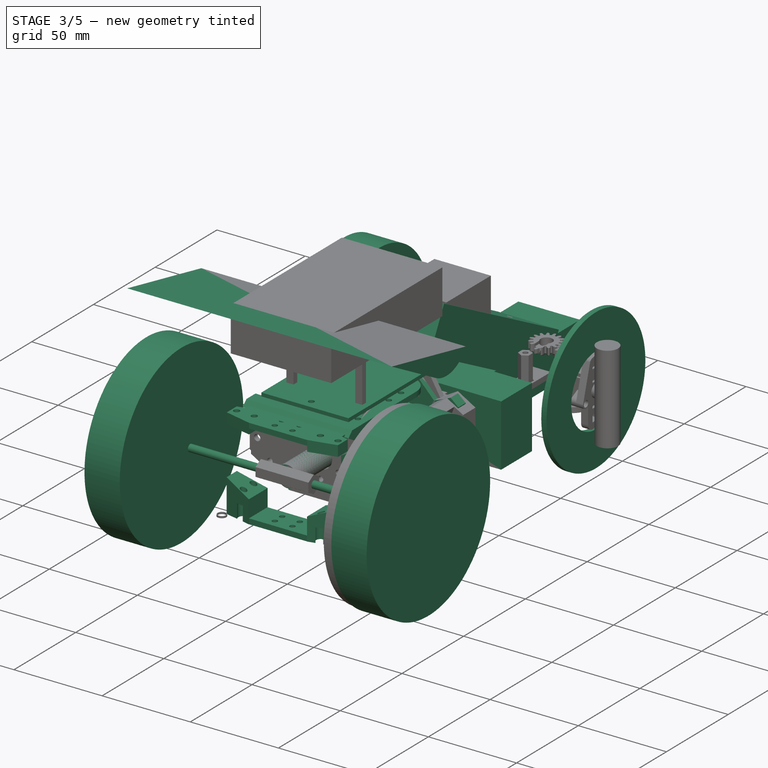
[diagram: stage 3 of 5 — iso view after this stage's code; geometry added in this stage tinted green]
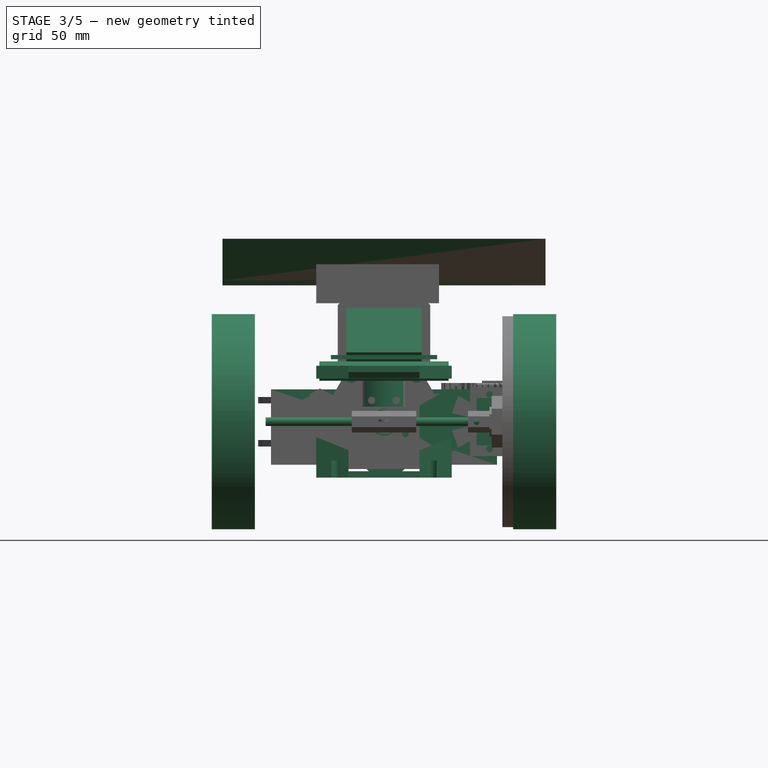
[diagram: stage 3 of 5 — front view after this stage's code; geometry added in this stage tinted green]
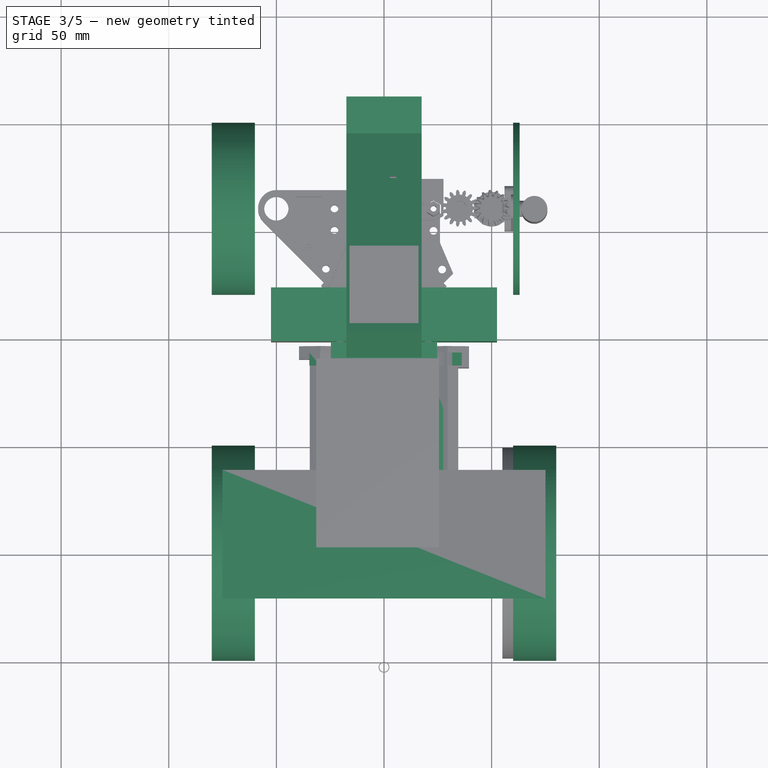
[diagram: stage 3 of 5 — top view after this stage's code; geometry added in this stage tinted green]
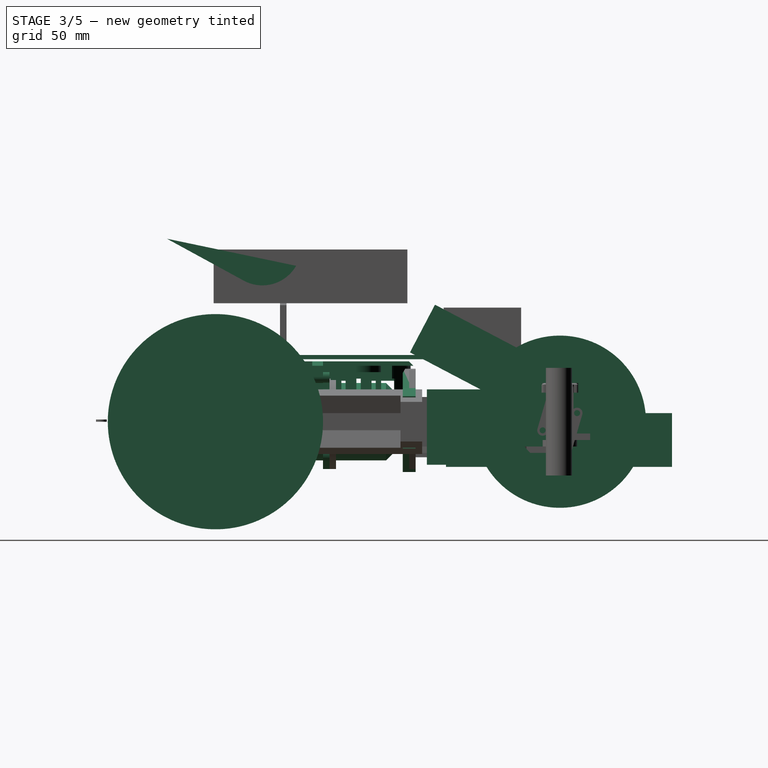
[diagram: stage 3 of 5 — right view after this stage's code; geometry added in this stage tinted green]
FEATURE [Part::Cylinder] Cylinder003  label="AxleStubCutout"
  Angle = 360
  Height = 80
  Placement = pos=(0,0,0) rot=(-1,0,0;1.5708rad)
  Radius = 6
FEATURE [Part::Cylinder] Cylinder004  label="MotorBase"
  Angle = 360
  Height = 52.25
  Placement = pos=(0,30,0) rot=(-1,0,0;1.5708rad)
  Radius = 18
FEATURE [PartDesign::Chamfer] Chamfer005  label="MotorBase (chamfer)"
  Base = -> Cylinder004 [Edge3,Edge1]
  Placement = pos=(0,30,0) rot=(-1,0,0;1.5708rad)
  Size = 3
FEATURE [PartDesign::Pad] Pad042  label="MotorRest"
  Length = 10
  Length2 = 100
  Placement = pos=(0,0,20) rot=(0,0,1;0rad)
  Reversed = true
  Sketch = -> Sketch059
  Type = 0
FEATURE [Sketcher::SketchObject] Sketch060
  sketch-geometry (4):
    g0: LineSegment StartX=-15 StartY=0 StartZ=0 EndX=15 EndY=0 EndZ=0
    g1: LineSegment StartX=15 StartY=0 StartZ=0 EndX=15 EndY=2 EndZ=0
    g2: LineSegment StartX=15 StartY=2 StartZ=0 EndX=-15 EndY=2 EndZ=0
    g3: LineSegment StartX=-15 StartY=2 StartZ=0 EndX=-15 EndY=0 EndZ=0
  constraints (12):
    c: Coincident(g0,g1)
    c: Coincident(g1,g2)
    c: Coincident(g2,g3)
    c: Coincident(g3,g0)
    c: Horizontal(g0)
    c: Horizontal(g2)
    c: Vertical(g1)
    c: Vertical(g3)
    c: PointOnObject(g0,g-1)
    c: Symmetric(g2,g1,g-2)
    c: DistanceX(g2,g2) = 30
    c: DistanceY(g3,g3) = 2
FEATURE [PartDesign::Pad] Pad043
  Length = 100
  Length2 = 100
  Sketch = -> Sketch060
  Type = 0
FEATURE [Part::FeaturePython] Array001  label="FinCutout"  # Draft array (typed FeaturePython)
  Angle = 360
  ArrayType = 0
  Axis = (0,0,1)
  Base = -> Pad043
  Center = (0,0,0)
  Fuse = false
  IntervalAxis = (0,0,0)
  IntervalX = (1,0,0)
  IntervalY = (0,7,0)
  IntervalZ = (0,0,0)
  NumberPolar = 1
  NumberX = 1
  NumberY = 15
  NumberZ = 1
  Placement = pos=(0,2.5,0) rot=(0,0,1;0rad)
FEATURE [Part::Cut] Cut007012
  Base = -> Pad042
  Tool = -> Array001
FEATURE [Sketcher::SketchObject] Sketch061
  Placement = pos=(0,0,20) rot=(0,0,1;0rad)
  sketch-geometry (4):
    g0: ArcOfCircle CenterX=0 CenterY=74.7084 CenterZ=0 NormalX=0 NormalY=0 NormalZ=1 Radius=15 StartAngle=0.585686 EndAngle=2.55591
    g1: LineSegment StartX=-12.5 StartY=83 StartZ=0 EndX=12.5 EndY=83 EndZ=0
    g2: LineSegment StartX=-12.5 StartY=30 StartZ=0 EndX=12.5 EndY=30 EndZ=0
    g3: ArcOfCircle CenterX=0 CenterY=38.2916 CenterZ=0 NormalX=0 NormalY=0 NormalZ=1 Radius=15 StartAngle=3.72728 EndAngle=5.6975
  constraints (14):
    c: PointOnObject(g0,g-2)
    c: Coincident(g1,g0)
    c: Coincident(g1,g0)
    c: Symmetric(g0,g0,g-2)
    c: Radius(g0) = 15
    c: Horizontal(g2)
    c: PointOnObject(g3,g-2)
    c: Coincident(g2,g3)
    c: Coincident(g2,g3)
    c: Equal(g3,g0)
    c: Equal(g2,g1)
    c: DistanceX(g1,g1) = 25
    c: DistanceY(g-1,g2) = 30
    c: DistanceY(g2,g0) = 53
FEATURE [PartDesign::Pad] Pad044  label="MotorMountEndcaps"
  Length = 13
  Length2 = 100
  Placement = pos=(0,0,20) rot=(0,0,1;0rad)
  Reversed = true
  Sketch = -> Sketch061
  Type = 0
FEATURE [Sketcher::SketchObject] Sketch062
  Placement = pos=(0,0,0) rot=(1,0,0;1.5708rad)
  sketch-geometry (9):
    g0: LineSegment [constr] StartX=5.72604 StartY=9.97309 StartZ=0 EndX=-5.77393 EndY=9.94544 EndZ=0
    g1: LineSegment [constr] StartX=-5.77393 StartY=9.94544 StartZ=0 EndX=-11.5 EndY=-0.0276456 EndZ=0
    g2: LineSegment [constr] StartX=-11.5 StartY=-0.0276456 StartZ=0 EndX=-5.72604 EndY=-9.97309 EndZ=0
    g3: LineSegment [constr] StartX=-5.72604 StartY=-9.97309 StartZ=0 EndX=5.77393 EndY=-9.94544 EndZ=0
    g4: LineSegment [constr] StartX=5.77393 StartY=-9.94544 StartZ=0 EndX=11.5 EndY=0.0276456 EndZ=0
    g5: LineSegment [constr] StartX=11.5 StartY=0.0276456 StartZ=0 EndX=5.72604 EndY=9.97309 EndZ=0
    g6: Circle [constr] CenterX=0 CenterY=0 CenterZ=0 NormalX=0 NormalY=0 NormalZ=1 Radius=11.5
    g7: Circle CenterX=-5.77393 CenterY=9.94544 CenterZ=0 NormalX=0 NormalY=0 NormalZ=1 Radius=1.7
    g8: Circle CenterX=5.72604 CenterY=9.97309 CenterZ=0 NormalX=0 NormalY=0 NormalZ=1 Radius=1.7
  constraints (19):
    c: Coincident(g0,g1)
    c: Coincident(g1,g2)
    c: Coincident(g2,g3)
    c: Coincident(g3,g4)
    c: Coincident(g4,g5)
    c: Coincident(g5,g0)
    c: Equal(g0, g1-g5) x5
    c: PointOnObject(g0,g6)
    c: PointOnObject(g1,g6)
    c: PointOnObject(g2,g6)
    c: PointOnObject(g3,g6)
    c: PointOnObject(g4,g6)
    c: PointOnObject(g5,g6)
    c: Coincident(g6,g-1)
    c: Coincident(g7,g0)
    c: Coincident(g8,g0)
    c: Radius(g8) = 1.7
    c: Equal(g8,g7)
    c: Radius(g6) = 11.5
FEATURE [PartDesign::Pad] Pad045  label="MotorScrewCutouts"
  Length = 40
  Length2 = 100
  Placement = pos=(0,0,0) rot=(1,0,0;1.5708rad)
  Reversed = true
  Sketch = -> Sketch062
  Type = 0
FEATURE [Part::Cut] Cut007015  label="MotorMountEndCaps"
  Base = -> Pad044
  Tool = -> Pad045
FEATURE [Sketcher::SketchObject] Sketch088
  Placement = pos=(0,0,20) rot=(0,0,1;3.14159rad)
  sketch-geometry (16):
    g0: LineSegment [constr] StartX=-31.5 StartY=4 StartZ=0 EndX=-38.4282 EndY=8 EndZ=0
    g1: LineSegment [constr] StartX=-38.4282 StartY=8 StartZ=0 EndX=-45.3564 EndY=4 EndZ=0
    g2: LineSegment [constr] StartX=-45.3564 StartY=4 StartZ=0 EndX=-45.3564 EndY=-4 EndZ=0
    g3: LineSegment [constr] StartX=-45.3564 StartY=-4 StartZ=0 EndX=-38.4282 EndY=-8 EndZ=0
    g4: LineSegment [constr] StartX=-38.4282 StartY=-8 StartZ=0 EndX=-31.5 EndY=-4 EndZ=0
    g5: LineSegment StartX=-31.5 StartY=-4 StartZ=0 EndX=-31.5 EndY=4 EndZ=0
    g6: Circle [constr] CenterX=-38.4282 CenterY=0 CenterZ=0 NormalX=0 NormalY=0 NormalZ=1 Radius=8
    g7: LineSegment [constr] StartX=-16.5 StartY=7.5 StartZ=0 EndX=-29.4904 EndY=15 EndZ=0
    g8: LineSegment [constr] StartX=-29.4904 StartY=15 StartZ=0 EndX=-42.4808 EndY=7.5 EndZ=0
    g9: LineSegment [constr] StartX=-42.4808 StartY=7.5 StartZ=0 EndX=-42.4808 EndY=-7.5 EndZ=0
    g10: LineSegment [constr] StartX=-42.4808 StartY=-7.5 StartZ=0 EndX=-29.4904 EndY=-15 EndZ=0
    g11: LineSegment [constr] StartX=-29.4904 StartY=-15 StartZ=0 EndX=-16.5 EndY=-7.5 EndZ=0
    g12: LineSegment StartX=-16.5 StartY=-7.5 StartZ=0 EndX=-16.5 EndY=7.5 EndZ=0
    g13: Circle [constr] CenterX=-29.4904 CenterY=0 CenterZ=0 NormalX=0 NormalY=0 NormalZ=1 Radius=15
    g14: LineSegment StartX=-31.5 StartY=4 StartZ=0 EndX=-16.5 EndY=7.5 EndZ=0
    g15: LineSegment StartX=-31.5 StartY=-4 StartZ=0 EndX=-16.5 EndY=-7.5 EndZ=0
  constraints (38):
    c: Coincident(g0,g1)
    c: Coincident(g1,g2)
    c: Coincident(g2,g3)
    c: Coincident(g3,g4)
    c: Coincident(g4,g5)
    c: Coincident(g5,g0)
    c: Equal(g0, g1-g5) x5
    c: PointOnObject(g0,g6)
    c: PointOnObject(g1,g6)
    c: PointOnObject(g2,g6)
    c: PointOnObject(g3,g6)
    c: PointOnObject(g4,g6)
    c: PointOnObject(g5,g6)
    c: PointOnObject(g6,g-1)
    c: Coincident(g7,g8)
    c: Coincident(g8,g9)
    c: Coincident(g9,g10)
    c: Coincident(g10,g11)
    c: Coincident(g11,g12)
    c: Coincident(g12,g7)
    c: Equal(g7, g8-g12) x5
    c: PointOnObject(g7,g13)
    c: PointOnObject(g8,g13)
    c: PointOnObject(g9,g13)
    c: PointOnObject(g10,g13)
    c: PointOnObject(g11,g13)
    c: PointOnObject(g12,g13)
    c: PointOnObject(g13,g-1)
    c: Vertical(g12)
    c: Vertical(g5)
    c: Radius(g13) = 15
    c: Radius(g6) = 8
    c: DistanceX(g7,g-1) = 16.5
    c: DistanceX(g0,g-1) = 31.5
    c: Coincident(g0,g14)
    c: Coincident(g14,g7)
    c: Coincident(g15,g4)
    c: Coincident(g15,g11)
FEATURE [Sketcher::SketchObject] Sketch089
  Placement = pos=(0,0,23) rot=(0,0,1;3.14159rad)
  sketch-geometry (21):
    g0: LineSegment [constr] StartX=-31.5 StartY=4 StartZ=0 EndX=-38.4282 EndY=8 EndZ=0
    g1: LineSegment [constr] StartX=-38.4282 StartY=8 StartZ=0 EndX=-45.3564 EndY=4 EndZ=0
    g2: LineSegment [constr] StartX=-45.3564 StartY=4 StartZ=0 EndX=-45.3564 EndY=-4 EndZ=0
    g3: LineSegment [constr] StartX=-45.3564 StartY=-4 StartZ=0 EndX=-38.4282 EndY=-8 EndZ=0
    g4: LineSegment [constr] StartX=-38.4282 StartY=-8 StartZ=0 EndX=-31.5 EndY=-4 EndZ=0
    g5: LineSegment StartX=-31.5 StartY=-4 StartZ=0 EndX=-31.5 EndY=4 EndZ=0
    g6: Circle [constr] CenterX=-38.4282 CenterY=0 CenterZ=0 NormalX=0 NormalY=0 NormalZ=1 Radius=8
    g7: LineSegment [constr] StartX=-16.5 StartY=7.5 StartZ=0 EndX=-29.4904 EndY=15 EndZ=0
    g8: LineSegment [constr] StartX=-29.4904 StartY=15 StartZ=0 EndX=-42.4808 EndY=7.5 EndZ=0
    g9: LineSegment [constr] StartX=-42.4808 StartY=7.5 StartZ=0 EndX=-42.4808 EndY=-7.5 EndZ=0
    g10: LineSegment [constr] StartX=-42.4808 StartY=-7.5 StartZ=0 EndX=-29.4904 EndY=-15 EndZ=0
    g11: LineSegment [constr] StartX=-29.4904 StartY=-15 StartZ=0 EndX=-16.5 EndY=-7.5 EndZ=0
    g12: LineSegment [constr] StartX=-16.5 StartY=-7.5 StartZ=0 EndX=-16.5 EndY=7.5 EndZ=0
    g13: Circle [constr] CenterX=-29.4904 CenterY=0 CenterZ=0 NormalX=0 NormalY=0 NormalZ=1 Radius=15
    g14: LineSegment StartX=-31.5 StartY=4 StartZ=0 EndX=-16.5 EndY=7.5 EndZ=0
    g15: LineSegment StartX=-31.5 StartY=-4 StartZ=0 EndX=-16.5 EndY=-7.5 EndZ=0
    g16: LineSegment StartX=-16.5 StartY=7.5 StartZ=0 EndX=0 EndY=7.5 EndZ=0
    g17: LineSegment StartX=0 StartY=7.5 StartZ=0 EndX=0 EndY=-7.5 EndZ=0
    g18: LineSegment StartX=0 StartY=-7.5 StartZ=0 EndX=-16.5 EndY=-7.5 EndZ=0
    g19: Circle CenterX=-5 CenterY=3 CenterZ=0 NormalX=0 NormalY=0 NormalZ=1 Radius=1.5
    g20: Circle CenterX=-5 CenterY=-3 CenterZ=0 NormalX=0 NormalY=0 NormalZ=1 Radius=1.5
  constraints (51):
    c: Coincident(g0,g1)
    c: Coincident(g1,g2)
    c: Coincident(g2,g3)
    c: Coincident(g3,g4)
    c: Coincident(g4,g5)
    c: Coincident(g5,g0)
    c: Equal(g0, g1-g5) x5
    c: PointOnObject(g0,g6)
    c: PointOnObject(g1,g6)
    c: PointOnObject(g2,g6)
    c: PointOnObject(g3,g6)
    c: PointOnObject(g4,g6)
    c: PointOnObject(g5,g6)
    c: PointOnObject(g6,g-1)
    c: Coincident(g7,g8)
    c: Coincident(g8,g9)
    c: Coincident(g9,g10)
    c: Coincident(g10,g11)
    c: Coincident(g11,g12)
    c: Coincident(g12,g7)
    c: Equal(g7, g8-g12) x5
    c: PointOnObject(g7,g13)
    c: PointOnObject(g8,g13)
    c: PointOnObject(g9,g13)
    c: PointOnObject(g10,g13)
    c: PointOnObject(g11,g13)
    c: PointOnObject(g12,g13)
    c: PointOnObject(g13,g-1)
    c: Vertical(g12)
    c: Vertical(g5)
    c: Radius(g13) = 15
    c: Radius(g6) = 8
    c: DistanceX(g7,g-1) = 16.5
    c: DistanceX(g0,g-1) = 31.5
    c: Coincident(g0,g14)
    c: Coincident(g14,g7)
    c: Coincident(g15,g4)
    c: Coincident(g15,g11)
    c: Coincident(g7,g16)
    c: PointOnObject(g16,g-2)
    c: Horizontal(g16)
    c: Coincident(g16,g17)
    c: Coincident(g17,g18)
    c: Coincident(g18,g11)
    c: PointOnObject(g17,g-2)
    c: Horizontal(g18)
    c: Symmetric(g19,g20,g-1)
    c: DistanceX(g19) = -5
    c: DistanceY(g19) = 3
    c: Radius(g20) = 1.5
    c: Equal(g20,g19)
FEATURE [PartDesign::Pad] Pad065  label="MountPad"
  Length = 3
  Length2 = 100
  Placement = pos=(0,0,20) rot=(0,0,1;3.14159rad)
  Sketch = -> Sketch088
  Type = 0
FEATURE [PartDesign::Pad] Pad066  label="BasePlate"
  Length = 3
  Length2 = 100
  Placement = pos=(0,0,23) rot=(0,0,1;3.14159rad)
  Sketch = -> Sketch089
  Type = 0
FEATURE [Part::MultiFuse] Fusion004026  label="Base"
  Shapes = -> [Pad065,Pad066]
FEATURE [Sketcher::SketchObject] Sketch090
  sketch-geometry (2):
    g0: Circle CenterX=28.75 CenterY=0 CenterZ=0 NormalX=0 NormalY=0 NormalZ=1 Radius=1.7
    g1: Circle CenterX=18.75 CenterY=0 CenterZ=0 NormalX=0 NormalY=0 NormalZ=1 Radius=1.7
  constraints (6):
    c: PointOnObject(g0,g-1)
    c: PointOnObject(g1,g-1)
    c: DistanceX(g-1,g1) = 18.75
    c: DistanceX(g1,g0) = 10
    c: Radius(g1) = 1.7
    c: Equal(g1,g0)
FEATURE [PartDesign::Pad] Pad067  label="MountScrewCutouts"
  Length = 100
  Length2 = 100
  Sketch = -> Sketch090
  Type = 0
FEATURE [Part::Cut] Cut007019005  label="SupportPlate"
  Base = -> Fusion004026
  Tool = -> Pad067
FEATURE [Part::Mirroring] Part__Mirroring002  label="SupportPlate (Mirror #2)"
  Base = (0,0,0)
  Normal = (1,0,0)
  Source = -> Cut007019005
FEATURE [Part::MultiFuse] Fusion004027  label="SupportPlate"
  Shapes = -> [Part__Mirroring002,Cut007019005]
FEATURE [Sketcher::SketchObject] Sketch091
  Placement = pos=(0,0,26) rot=(0,0,1;0rad)
  sketch-geometry (5):
    g0: LineSegment StartX=-16.5 StartY=15 StartZ=0 EndX=16.5 EndY=15 EndZ=0
    g1: LineSegment StartX=16.5 StartY=15 StartZ=0 EndX=16.5 EndY=82 EndZ=0
    g2: LineSegment [constr] StartX=16.5 StartY=82 StartZ=0 EndX=-16.5 EndY=82 EndZ=0
    g3: LineSegment StartX=-16.5 StartY=82 StartZ=0 EndX=-16.5 EndY=15 EndZ=0
    g4: ArcOfCircle CenterX=0 CenterY=70.6973 CenterZ=0 NormalX=0 NormalY=0 NormalZ=1 Radius=20 StartAngle=0.600594 EndAngle=2.541
  constraints (16):
    c: Coincident(g0,g1)
    c: Coincident(g1,g2)
    c: Coincident(g2,g3)
    c: Coincident(g3,g0)
    c: Horizontal(g0)
    c: Horizontal(g2)
    c: Vertical(g1)
    c: Vertical(g3)
    c: DistanceY(g-1,g0) = 15
    c: Symmetric(g0,g0,g-2)
    c: DistanceX(g0,g0) = 33
    c: PointOnObject(g4,g-2)
    c: Coincident(g4,g2)
    c: Coincident(g4,g1)
    c: Radius(g4) = 20
    c: DistanceY(g-1,g1) = 82
FEATURE [PartDesign::Pad] Pad068
  Length = 6
  Length2 = 100
  Placement = pos=(0,0,26) rot=(0,0,1;0rad)
  Reversed = true
  Sketch = -> Sketch091
  Type = 0
FEATURE [Sketcher::SketchObject] Sketch092
  Placement = pos=(0,0,26) rot=(0,0,1;0rad)
  sketch-geometry (37):
    g0: ArcOfCircle CenterX=-15.6125 CenterY=65 CenterZ=0 NormalX=0 NormalY=0 NormalZ=1 Radius=11.8875 StartAngle=1.57071 EndAngle=3.14159
    g1: ArcOfCircle CenterX=15.6125 CenterY=65 CenterZ=0 NormalX=0 NormalY=0 NormalZ=1 Radius=11.8875 StartAngle=3.424e-09 EndAngle=1.5708
    g2: LineSegment StartX=-15.6114 StartY=76.8875 StartZ=0 EndX=15.6125 EndY=76.8875 EndZ=0
    g3: LineSegment [constr] StartX=-27.5 StartY=65 StartZ=0 EndX=27.5 EndY=65 EndZ=0
    g4: LineSegment StartX=27.5 StartY=65 StartZ=0 EndX=27.5 EndY=2.5 EndZ=0
    g5: LineSegment StartX=27.5 StartY=2.5 StartZ=0 EndX=-27.5 EndY=2.5 EndZ=0
    g6: LineSegment StartX=-27.5 StartY=2.5 StartZ=0 EndX=-27.5 EndY=65 EndZ=0
    g7: Circle CenterX=-22.5 CenterY=60 CenterZ=0 NormalX=0 NormalY=0 NormalZ=1 Radius=1.5
    g8: Circle CenterX=-22.5 CenterY=50 CenterZ=0 NormalX=0 NormalY=0 NormalZ=1 Radius=1.5
    g9: Circle CenterX=-22.5 CenterY=25 CenterZ=0 NormalX=0 NormalY=0 NormalZ=1 Radius=1.5
    g10: Circle CenterX=22.5 CenterY=60 CenterZ=0 NormalX=0 NormalY=0 NormalZ=1 Radius=1.5
    g11: Circle CenterX=22.5 CenterY=50 CenterZ=0 NormalX=0 NormalY=0 NormalZ=1 Radius=1.5
    g12: Circle CenterX=22.5 CenterY=25 CenterZ=0 NormalX=0 NormalY=0 NormalZ=1 Radius=1.5
    g13: LineSegment [constr] StartX=22.5 StartY=60 StartZ=0 EndX=22.5 EndY=50 EndZ=0
    g14: LineSegment [constr] StartX=22.5 StartY=50 StartZ=0 EndX=22.5 EndY=25 EndZ=0
    g15: LineSegment [constr] StartX=-22.5 StartY=60 StartZ=0 EndX=-22.5 EndY=50 EndZ=0
    g16: LineSegment [constr] StartX=-22.5 StartY=50 StartZ=0 EndX=-22.5 EndY=25 EndZ=0
    g17: LineSegment StartX=-20.5 StartY=70 StartZ=0 EndX=-18 EndY=70 EndZ=0
    g18: LineSegment StartX=-18 StartY=70 StartZ=0 EndX=-18 EndY=65 EndZ=0
    g19: LineSegment StartX=-18 StartY=65 StartZ=0 EndX=-20.5 EndY=65 EndZ=0
    g20: LineSegment StartX=-20.5 StartY=65 StartZ=0 EndX=-20.5 EndY=70 EndZ=0
    g21: LineSegment StartX=20.5 StartY=70 StartZ=0 EndX=18 EndY=70 EndZ=0
    g22: LineSegment StartX=18 StartY=70 StartZ=0 EndX=18 EndY=65 EndZ=0
    g23: LineSegment StartX=18 StartY=65 StartZ=0 EndX=20.5 EndY=65 EndZ=0
    g24: LineSegment StartX=20.5 StartY=65 StartZ=0 EndX=20.5 EndY=70 EndZ=0
    g25: LineSegment StartX=20.5 StartY=40 StartZ=0 EndX=18 EndY=40 EndZ=0
    g26: LineSegment StartX=18 StartY=40 StartZ=0 EndX=18 EndY=35 EndZ=0
    g27: LineSegment StartX=18 StartY=35 StartZ=0 EndX=20.5 EndY=35 EndZ=0
    g28: LineSegment StartX=20.5 StartY=35 StartZ=0 EndX=20.5 EndY=40 EndZ=0
    g29: LineSegment StartX=-20.5 StartY=40 StartZ=0 EndX=-18 EndY=40 EndZ=0
    g30: LineSegment StartX=-18 StartY=40 StartZ=0 EndX=-18 EndY=35 EndZ=0
    g31: LineSegment StartX=-18 StartY=35 StartZ=0 EndX=-20.5 EndY=35 EndZ=0
    g32: LineSegment StartX=-20.5 StartY=35 StartZ=0 EndX=-20.5 EndY=40 EndZ=0
    g33: LineSegment [constr] StartX=-18 StartY=70 StartZ=0 EndX=18 EndY=70 EndZ=0
    g34: LineSegment [constr] StartX=-18 StartY=35 StartZ=0 EndX=18 EndY=35 EndZ=0
    g35: LineSegment [constr] StartX=-20.5 StartY=40 StartZ=0 EndX=-20.5 EndY=65 EndZ=0
    g36: LineSegment [constr] StartX=20.5 StartY=65 StartZ=0 EndX=20.5 EndY=40 EndZ=0
  constraints (100):
    c: Coincident(g2,g0)
    c: Coincident(g2,g1)
    c: Coincident(g3,g4)
    c: Coincident(g4,g5)
    c: Coincident(g5,g6)
    c: Coincident(g6,g3)
    c: Horizontal(g5)
    c: Vertical(g4)
    c: Vertical(g6)
    c: Coincident(g3,g0)
    c: Coincident(g1,g3)
    c: Equal(g0,g1)
    c: Tangent(g0,g6)
    c: Tangent(g1,g4)
    c: Horizontal(g2)
    c: Tangent(g2,g1)
    c: Symmetric(g0,g1,g-2)
    c: DistanceX(g5,g5) = 55
    c: DistanceY(g-1,g0) = 65
    c: DistanceY(g-1,g5) = 2.5
    c: Coincident(g13,g10)
    c: Coincident(g13,g11)
    c: Vertical(g13)
    c: Coincident(g14,g11)
    c: Coincident(g14,g12)
    c: Vertical(g14)
    c: Coincident(g15,g7)
    c: Coincident(g15,g8)
    c: Coincident(g16,g8)
    c: Coincident(g16,g9)
    c: Vertical(g16)
    c: Vertical(g15)
    c: Equal(g15,g13)
    c: Equal(g14,g16)
    c: Symmetric(g7,g10,g-2)
    c: DistanceX(g7,g10) = 45
    c: Radius(g7) = 1.5
    c: Equal(g7,g8)
    c: Equal(g7,g9)
    c: Equal(g7,g12)
    c: Equal(g7,g11)
    c: Equal(g7,g10)
    c: DistanceY(g13,g13) = 10
    c: DistanceY(g14,g14) = 25
    c: DistanceY(g-1,g10) = 60
    c: Coincident(g17,g18)
    c: Coincident(g18,g19)
    c: Coincident(g19,g20)
    c: Coincident(g20,g17)
    c: Horizontal(g17)
    c: Horizontal(g19)
    c: Vertical(g18)
    c: Vertical(g20)
    c: Coincident(g21,g22)
    c: Coincident(g22,g23)
    c: Coincident(g23,g24)
    c: Coincident(g24,g21)
    c: Horizontal(g21)
    c: Horizontal(g23)
    c: Vertical(g22)
    c: Vertical(g24)
    c: PointOnObject(g22,g3)
    c: Coincident(g25,g26)
    c: Coincident(g26,g27)
    c: Coincident(g27,g28)
    c: Coincident(g28,g25)
    c: Horizontal(g25)
    c: Horizontal(g27)
    c: Vertical(g26)
    c: Vertical(g28)
    c: Coincident(g29,g30)
    c: Coincident(g30,g31)
    c: Coincident(g31,g32)
    c: Coincident(g32,g29)
    c: Horizontal(g29)
    c: Horizontal(g31)
    c: Vertical(g30)
    c: Vertical(g32)
    c: Equal(g17,g29)
    c: Equal(g29,g21)
    c: Equal(g21,g25)
    c: Equal(g20,g32)
    c: Equal(g32,g28)
    c: Equal(g28,g24)
    c: Coincident(g33,g17)
    c: Coincident(g33,g21)
    c: Coincident(g34,g30)
    c: Coincident(g34,g26)
    c: Coincident(g35,g29)
    c: Coincident(g35,g19)
    c: Vertical(g35)
    c: Coincident(g36,g23)
    c: Coincident(g36,g25)
    c: Vertical(g36)
    c: Horizontal(g34)
    c: DistanceY(g36,g36) = 25
    c: DistanceX(g33,g33) = 36
    c: Symmetric(g17,g21,g-2)
    c: DistanceY(g24,g24) = 5
    c: DistanceX(g21,g21) = 2.5
FEATURE [PartDesign::Pad] Pad069
  Length = 3
  Length2 = 100
  Placement = pos=(0,0,26) rot=(0,0,1;0rad)
  Reversed = true
  Sketch = -> Sketch092
  Type = 0
FEATURE [Part::MultiFuse] Fusion004028
  Shapes = -> [Pad069,Pad068,Fusion004027]
FEATURE [Sketcher::SketchObject] Sketch094
  Placement = pos=(0,56,29) rot=(0,0,1;0rad)
  sketch-geometry (6):
    g0: Circle CenterX=0 CenterY=36.5 CenterZ=0 NormalX=0 NormalY=0 NormalZ=1 Radius=1.6
    g1: Circle CenterX=0 CenterY=-36.5 CenterZ=0 NormalX=0 NormalY=0 NormalZ=1 Radius=1.6
    g2: LineSegment StartX=-24.6977 StartY=41.6963 StartZ=0 EndX=24.6977 EndY=41.6963 EndZ=0
    g3: LineSegment StartX=24.6977 StartY=41.6963 StartZ=0 EndX=24.6977 EndY=-41.6963 EndZ=0
    g4: LineSegment StartX=24.6977 StartY=-41.6963 StartZ=0 EndX=-24.6977 EndY=-41.6963 EndZ=0
    g5: LineSegment StartX=-24.6977 StartY=-41.6963 StartZ=0 EndX=-24.6977 EndY=41.6963 EndZ=0
  constraints (14):
    c: PointOnObject(g0,g-2)
    c: PointOnObject(g1,g-2)
    c: Symmetric(g1,g0,g-1)
    c: Coincident(g2,g3)
    c: Coincident(g3,g4)
    c: Coincident(g4,g5)
    c: Coincident(g5,g2)
    c: Horizontal(g4)
    c: Vertical(g3)
    c: Symmetric(g2,g2,g-2)
    c: Symmetric(g2,g4,g-1)
    c: Radius(g0) = 1.6
    c: Equal(g0,g1)
    c: DistanceY(g1,g0) = 73
FEATURE [PartDesign::Pad] Pad071  label="breadboard shape"
  Length = 2
  Length2 = 100
  Placement = pos=(0,56,29) rot=(0,0,1;0rad)
  Sketch = -> Sketch094
  Type = 0
FEATURE [Sketcher::SketchObject] Sketch096
  Placement = pos=(0,20,0) rot=(1,0,0;1.5708rad)
  sketch-geometry (29):
    g0: LineSegment [constr] StartX=-31.5 StartY=4 StartZ=0 EndX=-38.4282 EndY=8 EndZ=0
    g1: LineSegment [constr] StartX=-38.4282 StartY=8 StartZ=0 EndX=-45.3564 EndY=4 EndZ=0
    g2: LineSegment [constr] StartX=-45.3564 StartY=4 StartZ=0 EndX=-45.3564 EndY=-4 EndZ=0
    g3: LineSegment [constr] StartX=-45.3564 StartY=-4 StartZ=0 EndX=-38.4282 EndY=-8 EndZ=0
    g4: LineSegment [constr] StartX=-38.4282 StartY=-8 StartZ=0 EndX=-31.5 EndY=-4 EndZ=0
    g5: LineSegment [constr] StartX=-31.5 StartY=-4 StartZ=0 EndX=-31.5 EndY=4 EndZ=0
    g6: Circle [constr] CenterX=-38.4282 CenterY=0 CenterZ=0 NormalX=0 NormalY=0 NormalZ=1 Radius=8
    g7: LineSegment StartX=-16.5 StartY=7.5 StartZ=0 EndX=-29.4904 EndY=15 EndZ=0
    g8: LineSegment [constr] StartX=-29.4904 StartY=15 StartZ=0 EndX=-42.4808 EndY=7.5 EndZ=0
    g9: LineSegment [constr] StartX=-42.4808 StartY=7.5 StartZ=0 EndX=-42.4808 EndY=-7.5 EndZ=0
    g10: LineSegment [constr] StartX=-42.4808 StartY=-7.5 StartZ=0 EndX=-29.4904 EndY=-15 EndZ=0
    g11: LineSegment StartX=-29.4904 StartY=-15 StartZ=0 EndX=-16.5 EndY=-7.5 EndZ=0
    g12: LineSegment StartX=-16.5 StartY=-7.5 StartZ=0 EndX=-16.5 EndY=7.5 EndZ=0
    g13: Circle [constr] CenterX=-29.4904 CenterY=0 CenterZ=0 NormalX=0 NormalY=0 NormalZ=1 Radius=15
    g14: LineSegment [constr] StartX=-31.5 StartY=4 StartZ=0 EndX=-16.5 EndY=7.5 EndZ=0
    g15: LineSegment [constr] StartX=-31.5 StartY=-4 StartZ=0 EndX=-16.5 EndY=-7.5 EndZ=0
    g16: LineSegment StartX=-29.4904 StartY=15 StartZ=0 EndX=-34.5 EndY=12.1077 EndZ=0
    g17: LineSegment StartX=-34.5 StartY=12.1077 StartZ=0 EndX=-31.5 EndY=4 EndZ=0
    g18: LineSegment StartX=-31.5 StartY=-4 StartZ=0 EndX=-34.5 EndY=-12.1077 EndZ=0
    g19: LineSegment StartX=-34.5 StartY=-12.1077 StartZ=0 EndX=-29.4904 EndY=-15 EndZ=0
    g20: LineSegment [constr] StartX=-34.5 StartY=12.1077 StartZ=0 EndX=-34.5 EndY=-12.1077 EndZ=0
    g21: Circle CenterX=-18.75 CenterY=0 CenterZ=0 NormalX=0 NormalY=0 NormalZ=1 Radius=1.7
    g22: Circle CenterX=-28.75 CenterY=0 CenterZ=0 NormalX=0 NormalY=0 NormalZ=1 Radius=1.7
    g23: Circle CenterX=-29 CenterY=10 CenterZ=0 NormalX=0 NormalY=0 NormalZ=1 Radius=1.7
    g24: Circle CenterX=-29 CenterY=-10 CenterZ=0 NormalX=0 NormalY=0 NormalZ=1 Radius=1.7
    g25: LineSegment StartX=-31.5 StartY=4 StartZ=0 EndX=-40 EndY=2.01667 EndZ=0
    g26: LineSegment StartX=-40 StartY=2.01667 StartZ=0 EndX=-40 EndY=-2.01667 EndZ=0
    g27: LineSegment StartX=-40 StartY=-2.01667 StartZ=0 EndX=-31.5 EndY=-4 EndZ=0
    g28: Circle CenterX=-36 CenterY=0 CenterZ=0 NormalX=0 NormalY=0 NormalZ=1 Radius=1.7
  constraints (72):
    c: Coincident(g0,g1)
    c: Coincident(g1,g2)
    c: Coincident(g2,g3)
    c: Coincident(g3,g4)
    c: Coincident(g4,g5)
    c: Coincident(g5,g0)
    c: Equal(g0, g1-g5) x5
    c: PointOnObject(g0,g6)
    c: PointOnObject(g1,g6)
    c: PointOnObject(g2,g6)
    c: PointOnObject(g3,g6)
    c: PointOnObject(g4,g6)
    c: PointOnObject(g5,g6)
    c: PointOnObject(g6,g-1)
    c: Coincident(g7,g8)
    c: Coincident(g8,g9)
    c: Coincident(g9,g10)
    c: Coincident(g10,g11)
    c: Coincident(g11,g12)
    c: Coincident(g12,g7)
    c: Equal(g7, g8-g12) x5
    c: PointOnObject(g7,g13)
    c: PointOnObject(g8,g13)
    c: PointOnObject(g9,g13)
    c: PointOnObject(g10,g13)
    c: PointOnObject(g11,g13)
    c: PointOnObject(g12,g13)
    c: PointOnObject(g13,g-1)
    c: Vertical(g12)
    c: Vertical(g5)
    c: Radius(g13) = 15
    c: Radius(g6) = 8
    c: DistanceX(g7,g-1) = 16.5
    c: DistanceX(g0,g-1) = 31.5
    c: Coincident(g0,g14)
    c: Coincident(g14,g7)
    c: Coincident(g15,g4)
    c: Coincident(g15,g11)
    c: Coincident(g7,g16)
    c: Coincident(g16,g17)
    c: Coincident(g17,g0)
    c: Coincident(g4,g18)
    c: Coincident(g18,g19)
    c: Coincident(g19,g10)
    c: PointOnObject(g16,g8)
    c: PointOnObject(g18,g10)
    c: Coincident(g20,g16)
    c: Coincident(g20,g18)
    c: Vertical(g20)
    c: DistanceX(g16,g7) = 18
    c: PointOnObject(g21,g-1)
    c: Radius(g22) = 1.7
    c: Equal(g22,g21)
    c: Equal(g22,g23)
    c: Equal(g22,g24)
    c: Symmetric(g23,g24,g-1)
    c: DistanceY(g24,g23) = 20
    c: DistanceX(g21,g-1) = 18.75
    c: DistanceX(g22,g21) = 10
    c: PointOnObject(g22,g-1)
    c: Coincident(g0,g25)
    c: Coincident(g25,g26)
    c: Vertical(g26)
    c: Coincident(g26,g27)
    c: Coincident(g27,g4)
    c: Parallel(g25,g14)
    c: Parallel(g27,g15)
    c: PointOnObject(g28,g-1)
    c: Equal(g28,g23)
    c: DistanceX(g28,g-1) = 36
    c: DistanceX(g23,g-1) = 29
    c: DistanceX(g25,g28) = 4
FEATURE [PartDesign::Pad] Pad073  label="DifferentialMountAdapter"
  Length = 4
  Length2 = 100
  Placement = pos=(0,20,0) rot=(1,0,0;1.5708rad)
  Reversed = true
  Sketch = -> Sketch096
  Type = 0
FEATURE [Sketcher::SketchObject] Sketch099
  Placement = pos=(0,57,0) rot=(1,0,0;1.5708rad)
  sketch-geometry (33):
    g0: LineSegment [constr] StartX=-31.5 StartY=4 StartZ=0 EndX=-38.4282 EndY=8 EndZ=0
    g1: LineSegment [constr] StartX=-38.4282 StartY=8 StartZ=0 EndX=-45.3564 EndY=4 EndZ=0
    g2: LineSegment [constr] StartX=-45.3564 StartY=4 StartZ=0 EndX=-45.3564 EndY=-4 EndZ=0
    g3: LineSegment [constr] StartX=-45.3564 StartY=-4 StartZ=0 EndX=-38.4282 EndY=-8 EndZ=0
    g4: LineSegment [constr] StartX=-38.4282 StartY=-8 StartZ=0 EndX=-31.5 EndY=-4 EndZ=0
    g5: LineSegment StartX=-31.5 StartY=-4 StartZ=0 EndX=-31.5 EndY=4 EndZ=0
    g6: Circle [constr] CenterX=-38.4282 CenterY=0 CenterZ=0 NormalX=0 NormalY=0 NormalZ=1 Radius=8
    g7: LineSegment [constr] StartX=-16.5 StartY=7.5 StartZ=0 EndX=-29.4904 EndY=15 EndZ=0
    g8: LineSegment [constr] StartX=-29.4904 StartY=15 StartZ=0 EndX=-42.4808 EndY=7.5 EndZ=0
    g9: LineSegment [constr] StartX=-42.4808 StartY=7.5 StartZ=0 EndX=-42.4808 EndY=-7.5 EndZ=0
    g10: LineSegment [constr] StartX=-42.4808 StartY=-7.5 StartZ=0 EndX=-29.4904 EndY=-15 EndZ=0
    g11: LineSegment [constr] StartX=-29.4904 StartY=-15 StartZ=0 EndX=-16.5 EndY=-7.5 EndZ=0
    g12: LineSegment [constr] StartX=-16.5 StartY=-7.5 StartZ=0 EndX=-16.5 EndY=7.5 EndZ=0
    g13: Circle [constr] CenterX=-29.4904 CenterY=0 CenterZ=0 NormalX=0 NormalY=0 NormalZ=1 Radius=15
    g14: LineSegment [constr] StartX=-31.5 StartY=4 StartZ=0 EndX=-16.5 EndY=7.5 EndZ=0
    g15: LineSegment [constr] StartX=-31.5 StartY=-4 StartZ=0 EndX=-16.5 EndY=-7.5 EndZ=0
    g16: LineSegment StartX=-29.4904 StartY=15 StartZ=0 EndX=-34.5 EndY=12.1077 EndZ=0
    g17: LineSegment StartX=-34.5 StartY=12.1077 StartZ=0 EndX=-31.5 EndY=4 EndZ=0
    g18: LineSegment StartX=-31.5 StartY=-4 StartZ=0 EndX=-34.5 EndY=-12.1077 EndZ=0
    g19: LineSegment StartX=-34.5 StartY=-12.1077 StartZ=0 EndX=-29.4904 EndY=-15 EndZ=0
    g20: LineSegment [constr] StartX=-34.5 StartY=12.1077 StartZ=0 EndX=-34.5 EndY=-12.1077 EndZ=0
    g21: Circle [constr] CenterX=-20 CenterY=0 CenterZ=0 NormalX=0 NormalY=0 NormalZ=1 Radius=1.7
    g22: Circle [constr] CenterX=-28 CenterY=0 CenterZ=0 NormalX=0 NormalY=0 NormalZ=1 Radius=1.7
    g23: Circle CenterX=-30 CenterY=10 CenterZ=0 NormalX=0 NormalY=0 NormalZ=1 Radius=1.7
    g24: Circle CenterX=-30 CenterY=-10 CenterZ=0 NormalX=0 NormalY=0 NormalZ=1 Radius=1.7
    g25: LineSegment StartX=-29.4904 StartY=15 StartZ=0 EndX=-23 EndY=11.2528 EndZ=0
    g26: LineSegment [constr] StartX=-23 StartY=11.2528 StartZ=0 EndX=-23 EndY=-11.2528 EndZ=0
    g27: LineSegment StartX=-23 StartY=-11.2528 StartZ=0 EndX=-29.4904 EndY=-15 EndZ=0
    g28: LineSegment StartX=0 StartY=25.6338 StartZ=0 EndX=-17.9229 EndY=25.6338 EndZ=0
    g29: LineSegment StartX=-17.9229 StartY=25.6338 StartZ=0 EndX=-29.4904 EndY=15 EndZ=0
    g30: LineSegment StartX=-29.4904 StartY=-15 StartZ=0 EndX=-24.3597 EndY=-19.4235 EndZ=0
    g31: LineSegment StartX=-24.3597 StartY=-19.4235 StartZ=0 EndX=-1.04054 EndY=-21.7949 EndZ=0
    g32: LineSegment StartX=-1.04054 StartY=-21.7949 StartZ=0 EndX=-0.619976 EndY=-18.523 EndZ=0
  constraints (76):
    c: Coincident(g0,g1)
    c: Coincident(g1,g2)
    c: Coincident(g2,g3)
    c: Coincident(g3,g4)
    c: Coincident(g4,g5)
    c: Coincident(g5,g0)
    c: Equal(g0, g1-g5) x5
    c: PointOnObject(g0,g6)
    c: PointOnObject(g1,g6)
    c: PointOnObject(g2,g6)
    c: PointOnObject(g3,g6)
    c: PointOnObject(g4,g6)
    c: PointOnObject(g5,g6)
    c: PointOnObject(g6,g-1)
    c: Coincident(g7,g8)
    c: Coincident(g8,g9)
    c: Coincident(g9,g10)
    c: Coincident(g10,g11)
    c: Coincident(g11,g12)
    c: Coincident(g12,g7)
    c: Equal(g7, g8-g12) x5
    c: PointOnObject(g7,g13)
    c: PointOnObject(g8,g13)
    c: PointOnObject(g9,g13)
    c: PointOnObject(g10,g13)
    c: PointOnObject(g11,g13)
    c: PointOnObject(g12,g13)
    c: PointOnObject(g13,g-1)
    c: Vertical(g12)
    c: Vertical(g5)
    c: Radius(g13) = 15
    c: Radius(g6) = 8
    c: DistanceX(g7,g-1) = 16.5
    c: DistanceX(g0,g-1) = 31.5
    c: Coincident(g0,g14)
    c: Coincident(g14,g7)
    c: Coincident(g15,g4)
    c: Coincident(g15,g11)
    c: Coincident(g7,g16)
    c: Coincident(g16,g17)
    c: Coincident(g17,g0)
    c: Coincident(g4,g18)
    c: Coincident(g18,g19)
    c: Coincident(g19,g10)
    c: PointOnObject(g16,g8)
    c: PointOnObject(g18,g10)
    c: Coincident(g20,g16)
    c: Coincident(g20,g18)
    c: Vertical(g20)
    c: DistanceX(g16,g7) = 18
    c: PointOnObject(g21,g-1)
    c: Radius(g22) = 1.7
    c: Equal(g22,g21)
    c: Equal(g22,g23)
    c: Equal(g22,g24)
    c: Symmetric(g23,g24,g-1)
    c: DistanceY(g24,g23) = 20
    c: DistanceX(g21,g-1) = 20
    c: DistanceX(g22,g21) = 8
    c: DistanceX(g23,g21) = 10
    c: PointOnObject(g22,g-1)
    c: Coincident(g7,g25)
    c: Coincident(g25,g26)
    c: Vertical(g26)
    c: Coincident(g26,g27)
    c: Coincident(g27,g10)
    c: PointOnObject(g26,g11)
    c: PointOnObject(g25,g7)
    c: DistanceX(g25,g-1) = 23
    c: Horizontal(g28)
    c: Coincident(g28,g29)
    c: Coincident(g29,g7)
    c: Coincident(g10,g30)
    c: Coincident(g30,g31)
    c: Coincident(g31,g32)
    c: PointOnObject(g28,g-2)
FEATURE [Sketcher::SketchObject] Sketch100
  Placement = pos=(0,50,0) rot=(1,0,0;1.5708rad)
  sketch-geometry (19):
    g0: Circle CenterX=0 CenterY=0 CenterZ=0 NormalX=0 NormalY=0 NormalZ=1 Radius=18.35
    g1: ArcOfCircle CenterX=0 CenterY=0 CenterZ=0 NormalX=0 NormalY=0 NormalZ=1 Radius=22 StartAngle=4.10878 EndAngle=5.31599
    g2: Circle CenterX=15 CenterY=-15 CenterZ=0 NormalX=0 NormalY=0 NormalZ=1 Radius=1.5
    g3: Circle CenterX=15 CenterY=21 CenterZ=0 NormalX=0 NormalY=0 NormalZ=1 Radius=1.5
    g4: Circle CenterX=-15 CenterY=21 CenterZ=0 NormalX=0 NormalY=0 NormalZ=1 Radius=1.5
    g5: Circle CenterX=-15 CenterY=-15 CenterZ=0 NormalX=0 NormalY=0 NormalZ=1 Radius=1.5
    g6: LineSegment StartX=-15 StartY=24 StartZ=0 EndX=15 EndY=24 EndZ=0
    g7: ArcOfCircle CenterX=15 CenterY=21 CenterZ=0 NormalX=0 NormalY=0 NormalZ=1 Radius=3 StartAngle=5.05223 EndAngle=7.85399
    g8: ArcOfCircle CenterX=0 CenterY=0 CenterZ=0 NormalX=0 NormalY=0 NormalZ=1 Radius=22 StartAngle=5.67958 EndAngle=7.03964
    g9: ArcOfCircle CenterX=15 CenterY=-15 CenterZ=0 NormalX=0 NormalY=0 NormalZ=1 Radius=4 StartAngle=4.03326 EndAngle=6.96232
    g10: ArcOfCircle CenterX=-15 CenterY=-15 CenterZ=0 NormalX=0 NormalY=0 NormalZ=1 Radius=4 StartAngle=2.46246 EndAngle=5.39152
    g11: ArcOfCircle CenterX=0 CenterY=0 CenterZ=0 NormalX=0 NormalY=0 NormalZ=1 Radius=22 StartAngle=2.38514 EndAngle=3.7452
    g12: ArcOfCircle CenterX=-15 CenterY=21 CenterZ=0 NormalX=0 NormalY=0 NormalZ=1 Radius=3 StartAngle=1.57079 EndAngle=4.37255
    g13: LineSegment [constr] StartX=-15 StartY=21 StartZ=0 EndX=15 EndY=21 EndZ=0
    g14: LineSegment [constr] StartX=15 StartY=21 StartZ=0 EndX=15 EndY=-15 EndZ=0
    g15: LineSegment [constr] StartX=15 StartY=-15 StartZ=0 EndX=-15 EndY=-15 EndZ=0
    g16: LineSegment [constr] StartX=-15 StartY=-15 StartZ=0 EndX=-15 EndY=21 EndZ=0
    g17: LineSegment StartX=16 StartY=18.1716 StartZ=0 EndX=16 EndY=15.0997 EndZ=0
    g18: LineSegment StartX=-16 StartY=18.1716 StartZ=0 EndX=-16 EndY=15.0997 EndZ=0
  constraints (51):
    c: Coincident(g0,g-1)
    c: Radius(g0) = 18.35
    c: Coincident(g1,g-1)
    c: Horizontal(g6)
    c: Coincident(g7,g3)
    c: Coincident(g7,g6)
    c: Coincident(g8,g-1)
    c: Coincident(g9,g2)
    c: Coincident(g9,g8)
    c: Coincident(g9,g1)
    c: Coincident(g10,g5)
    c: Coincident(g10,g1)
    c: Coincident(g11,g-1)
    c: Coincident(g11,g10)
    c: Coincident(g12,g4)
    c: Coincident(g12,g6)
    c: Tangent(g12,g6)
    c: Tangent(g7,g6)
    c: Radius(g8) = 22
    c: Equal(g8,g1)
    c: Equal(g8,g11)
    c: Equal(g10,g9)
    c: Radius(g2) = 1.5
    c: Equal(g2,g5)
    c: Equal(g2,g4)
    c: Equal(g2,g3)
    c: Coincident(g13,g14)
    c: Coincident(g14,g15)
    c: Coincident(g15,g16)
    c: Coincident(g16,g13)
    c: Horizontal(g15)
    c: Vertical(g14)
    c: Vertical(g16)
    c: Coincident(g13,g4)
    c: Coincident(g14,g2)
    c: Coincident(g3,g13)
    c: Coincident(g5,g15)
    c: Symmetric(g4,g3,g-2)
    c: DistanceY(g-1,g6) = 24
    c: Coincident(g17,g7)
    c: Coincident(g17,g8)
    c: Coincident(g18,g12)
    c: Coincident(g18,g11)
    c: Vertical(g18)
    c: Vertical(g17)
    c: Radius(g9) = 4
    c: Symmetric(g11,g8,g-2)
    c: DistanceX(g13,g13) = 30
    c: DistanceY(g-1,g4) = 21
    c: DistanceX(g12,g4) = 1
    c: DistanceY(g5,g-1) = 15
FEATURE [Sketcher::SketchObject] Sketch101
  Placement = pos=(0,75,0) rot=(1,0,0;1.5708rad)
  sketch-geometry (19):
    g0: Circle CenterX=0 CenterY=0 CenterZ=0 NormalX=0 NormalY=0 NormalZ=1 Radius=18.35
    g1: ArcOfCircle CenterX=0 CenterY=0 CenterZ=0 NormalX=0 NormalY=0 NormalZ=1 Radius=22 StartAngle=4.10215 EndAngle=5.32263
    g2: Circle CenterX=15.2771 CenterY=-15.0505 CenterZ=0 NormalX=0 NormalY=0 NormalZ=1 Radius=1.5
    g3: Circle CenterX=15.2771 CenterY=22 CenterZ=0 NormalX=0 NormalY=0 NormalZ=1 Radius=1.5
    g4: Circle CenterX=-15.2771 CenterY=22 CenterZ=0 NormalX=0 NormalY=0 NormalZ=1 Radius=1.5
    g5: Circle CenterX=-15.2771 CenterY=-15.0505 CenterZ=0 NormalX=0 NormalY=0 NormalZ=1 Radius=1.5
    g6: LineSegment StartX=-15.2771 StartY=25 StartZ=0 EndX=15.2771 EndY=25 EndZ=0
    g7: ArcOfCircle CenterX=15.2771 CenterY=22 CenterZ=0 NormalX=0 NormalY=0 NormalZ=1 Radius=3 StartAngle=3.71563 EndAngle=7.85398
    g8: ArcOfCircle CenterX=0 CenterY=0 CenterZ=0 NormalX=0 NormalY=0 NormalZ=1 Radius=22 StartAngle=5.68789 EndAngle=7.23536
    g9: ArcOfCircle CenterX=15.2771 CenterY=-15.0505 CenterZ=0 NormalX=0 NormalY=0 NormalZ=1 Radius=4 StartAngle=3.98165 EndAngle=7.02887
    g10: ArcOfCircle CenterX=-15.2771 CenterY=-15.0505 CenterZ=0 NormalX=0 NormalY=0 NormalZ=1 Radius=4 StartAngle=2.39591 EndAngle=5.44313
    g11: ArcOfCircle CenterX=0 CenterY=0 CenterZ=0 NormalX=0 NormalY=0 NormalZ=1 Radius=22 StartAngle=2.18941 EndAngle=3.73689
    g12: ArcOfCircle CenterX=-15.2771 CenterY=22 CenterZ=0 NormalX=0 NormalY=0 NormalZ=1 Radius=3 StartAngle=1.5708 EndAngle=5.70914
    g13: LineSegment [constr] StartX=-15.2771 StartY=22 StartZ=0 EndX=15.2771 EndY=22 EndZ=0
    g14: LineSegment [constr] StartX=15.2771 StartY=22 StartZ=0 EndX=15.2771 EndY=-15.0505 EndZ=0
    g15: LineSegment [constr] StartX=15.2771 StartY=-15.0505 StartZ=0 EndX=-15.2771 EndY=-15.0505 EndZ=0
    g16: LineSegment [constr] StartX=-15.2771 StartY=-15.0505 StartZ=0 EndX=-15.2771 EndY=22 EndZ=0
    g17: LineSegment StartX=12.758 StartY=20.3709 StartZ=0 EndX=12.758 EndY=17.923 EndZ=0
    g18: LineSegment StartX=-12.758 StartY=20.3709 StartZ=0 EndX=-12.758 EndY=17.923 EndZ=0
  constraints (48):
    c: Coincident(g0,g-1)
    c: Radius(g0) = 18.35
    c: Coincident(g1,g-1)
    c: Horizontal(g6)
    c: Coincident(g7,g3)
    c: Coincident(g7,g6)
    c: Coincident(g8,g-1)
    c: Coincident(g9,g2)
    c: Coincident(g9,g8)
    c: Coincident(g9,g1)
    c: Coincident(g10,g5)
    c: Coincident(g10,g1)
    c: Coincident(g11,g-1)
    c: Coincident(g11,g10)
    c: Coincident(g12,g4)
    c: Coincident(g12,g6)
    c: Tangent(g12,g6)
    c: Tangent(g7,g6)
    c: Radius(g8) = 22
    c: Equal(g8,g1)
    c: Equal(g8,g11)
    c: Equal(g10,g9)
    c: Radius(g2) = 1.5
    c: Equal(g2,g5)
    c: Equal(g2,g4)
    c: Equal(g2,g3)
    c: Coincident(g13,g14)
    c: Coincident(g14,g15)
    c: Coincident(g15,g16)
    c: Coincident(g16,g13)
    c: Horizontal(g15)
    c: Vertical(g14)
    c: Vertical(g16)
    c: Coincident(g13,g4)
    c: Coincident(g14,g2)
    c: Coincident(g3,g13)
    c: Coincident(g5,g15)
    c: Symmetric(g4,g3,g-2)
    c: DistanceY(g-1,g6) = 25
    c: DistanceY(g3,g6) = 3
    c: Coincident(g17,g7)
    c: Coincident(g17,g8)
    c: Coincident(g18,g12)
    c: Coincident(g18,g11)
    c: Vertical(g18)
    c: Vertical(g17)
    c: Radius(g9) = 4
    c: Symmetric(g11,g8,g-2)
FEATURE [Sketcher::SketchObject] Sketch102
  Placement = pos=(0,0,0) rot=(0.57735,0.57735,0.57735;2.0944rad)
  sketch-geometry (24):
    g0: LineSegment StartX=17 StartY=19 StartZ=0 EndX=27 EndY=19 EndZ=0
    g1: LineSegment StartX=27 StartY=19 StartZ=0 EndX=27 EndY=24.35 EndZ=0
    g2: LineSegment StartX=27 StartY=24.35 StartZ=0 EndX=30.5 EndY=24.35 EndZ=0
    g3: LineSegment StartX=30.5 StartY=24.35 StartZ=0 EndX=30.5 EndY=19 EndZ=0
    g4: LineSegment StartX=30.5 StartY=19 StartZ=0 EndX=34 EndY=19 EndZ=0
    g5: LineSegment StartX=34 StartY=19 StartZ=0 EndX=34 EndY=24.35 EndZ=0
    g6: LineSegment StartX=34 StartY=24.35 StartZ=0 EndX=40.5 EndY=24.35 EndZ=0
    g7: LineSegment StartX=40.5 StartY=24.35 StartZ=0 EndX=40.5 EndY=19 EndZ=0
    g8: LineSegment StartX=90 StartY=28 StartZ=0 EndX=24.5519 EndY=28 EndZ=0
    g9: LineSegment [constr] StartX=30.5 StartY=24.35 StartZ=0 EndX=50 EndY=24.35 EndZ=0
    g10: LineSegment StartX=40.5 StartY=19 StartZ=0 EndX=50 EndY=19 EndZ=0
    g11: LineSegment StartX=50 StartY=19 StartZ=0 EndX=50 EndY=24.35 EndZ=0
    g12: LineSegment StartX=50 StartY=24.35 StartZ=0 EndX=53.5 EndY=24.35 EndZ=0
    g13: LineSegment StartX=53.5 StartY=24.35 StartZ=0 EndX=53.5 EndY=19 EndZ=0
    g14: LineSegment [constr] StartX=27 StartY=19 StartZ=0 EndX=53.5 EndY=19 EndZ=0
    g15: LineSegment StartX=17 StartY=19 StartZ=0 EndX=24.5519 EndY=28 EndZ=0
    g16: LineSegment StartX=53.5 StartY=19 StartZ=0 EndX=64 EndY=19 EndZ=0
    g17: LineSegment StartX=64 StartY=19 StartZ=0 EndX=64 EndY=24.35 EndZ=0
    g18: LineSegment StartX=64 StartY=24.35 StartZ=0 EndX=70.5 EndY=24.35 EndZ=0
    g19: LineSegment StartX=70.5 StartY=24.35 StartZ=0 EndX=70.5 EndY=19 EndZ=0
    g20: LineSegment StartX=70.5 StartY=19 StartZ=0 EndX=86 EndY=19 EndZ=0
    g21: LineSegment StartX=90 StartY=28 StartZ=0 EndX=92 EndY=26 EndZ=0
    g22: LineSegment StartX=92 StartY=26 StartZ=0 EndX=86 EndY=26 EndZ=0
    g23: LineSegment StartX=86 StartY=26 StartZ=0 EndX=86 EndY=19 EndZ=0
  constraints (70):
    c: Horizontal(g0)
    c: Coincident(g0,g1)
    c: Coincident(g1,g2)
    c: Horizontal(g2)
    c: Coincident(g2,g3)
    c: Vertical(g3)
    c: Coincident(g3,g4)
    c: Horizontal(g4)
    c: Coincident(g4,g5)
    c: Vertical(g5)
    c: Coincident(g5,g6)
    c: Coincident(g6,g7)
    c: Horizontal(g8)
    c: DistanceY(g-1,g8) = 28
    c: Vertical(g1)
    c: DistanceY(g-1,g1) = 24.35
    c: Vertical(g7)
    c: Horizontal(g6)
    c: Coincident(g2,g9)
    c: Horizontal(g9)
    c: Coincident(g7,g10)
    c: Horizontal(g10)
    c: Coincident(g10,g11)
    c: Coincident(g11,g9)
    c: Coincident(g11,g12)
    c: Coincident(g12,g13)
    c: Horizontal(g12)
    c: PointOnObject(g5,g9)
    c: Coincident(g14,g0)
    c: Coincident(g14,g13)
    c: Horizontal(g14)
    c: PointOnObject(g10,g14)
    c: Vertical(g11)
    c: Vertical(g13)
    c: DistanceX(g2,g2) = 3.5
    c: DistanceX(g-1,g0) = 27
    c: PointOnObject(g4,g14)
    c: Coincident(g15,g0)
    c: Coincident(g15,g8)
    c: Angle(g0,g15) = 0.872665
    c: DistanceY(g-1,g0) = 19
    c: Coincident(g13,g16)
    c: Coincident(g16,g17)
    c: Coincident(g17,g18)
    c: Horizontal(g18)
    c: Coincident(g18,g19)
    c: Coincident(g19,g20)
    c: Horizontal(g16)
    c: Horizontal(g20)
    c: Vertical(g17)
    c: Vertical(g19)
    c: Equal(g17,g19)
    c: Equal(g17,g13)
    c: Equal(g18,g6)
    c: Equal(g12,g2)
    c: DistanceX(g-1,g9) = 50
    c: DistanceX(g-1,g5) = 34
    c: DistanceX(g6,g6) = 6.5
    c: DistanceX(g-1,g17) = 64
    c: DistanceX(g-1,g0) = 17
    c: DistanceX(g-1,g20) = 86
    c: Coincident(g8,g21)
    c: Coincident(g21,g22)
    c: Horizontal(g22)
    c: Coincident(g22,g23)
    c: Coincident(g23,g20)
    c: Vertical(g23)
    c: DistanceX(g22,g21) = 6
    c: Angle(g21,g22) = 0.785398
    c: DistanceY(g-1,g22) = 26
FEATURE [Sketcher::SketchObject] Sketch103
FEATURE [Sketcher::SketchObject] Sketch104
  Placement = pos=(0,30,0) rot=(1,0,0;1.5708rad)
  sketch-geometry (15):
    g0: Circle CenterX=0 CenterY=0 CenterZ=0 NormalX=0 NormalY=0 NormalZ=1 Radius=7
    g1: LineSegment [constr] StartX=0 StartY=11.5 StartZ=0 EndX=-9.95929 EndY=5.75 EndZ=0
    g2: LineSegment [constr] StartX=-9.95929 StartY=5.75 StartZ=0 EndX=-9.95929 EndY=-5.75 EndZ=0
    g3: LineSegment [constr] StartX=-9.95929 StartY=-5.75 StartZ=0 EndX=0 EndY=-11.5 EndZ=0
    g4: LineSegment [constr] StartX=0 StartY=-11.5 StartZ=0 EndX=9.95929 EndY=-5.75 EndZ=0
    g5: LineSegment [constr] StartX=9.95929 StartY=-5.75 StartZ=0 EndX=9.95929 EndY=5.75 EndZ=0
    g6: LineSegment [constr] StartX=9.95929 StartY=5.75 StartZ=0 EndX=0 EndY=11.5 EndZ=0
    g7: Circle [constr] CenterX=0 CenterY=0 CenterZ=0 NormalX=0 NormalY=0 NormalZ=1 Radius=11.5
    g8: Circle CenterX=-9.95929 CenterY=5.75 CenterZ=0 NormalX=0 NormalY=0 NormalZ=1 Radius=1.5
    g9: Circle CenterX=0 CenterY=11.5 CenterZ=0 NormalX=0 NormalY=0 NormalZ=1 Radius=1.5
    g10: Circle CenterX=9.95929 CenterY=5.75 CenterZ=0 NormalX=0 NormalY=0 NormalZ=1 Radius=1.5
    g11: Circle CenterX=9.95929 CenterY=-5.75 CenterZ=0 NormalX=0 NormalY=0 NormalZ=1 Radius=1.5
    g12: Circle CenterX=0 CenterY=-11.5 CenterZ=0 NormalX=0 NormalY=0 NormalZ=1 Radius=1.5
    g13: Circle CenterX=-9.95929 CenterY=-5.75 CenterZ=0 NormalX=0 NormalY=0 NormalZ=1 Radius=1.5
    g14: Circle CenterX=0 CenterY=0 CenterZ=0 NormalX=0 NormalY=0 NormalZ=1 Radius=18
  constraints (28):
    c: Coincident(g0,g-1)
    c: Coincident(g1,g2)
    c: Coincident(g2,g3)
    c: Coincident(g3,g4)
    c: Coincident(g4,g5)
    c: Coincident(g5,g6)
    c: Coincident(g6,g1)
    c: Equal(g1, g2-g6) x5
    c: PointOnObject(g1,g7)
    c: PointOnObject(g2,g7)
    c: PointOnObject(g3,g7)
    c: PointOnObject(g4,g7)
    c: PointOnObject(g5,g7)
    c: PointOnObject(g6,g7)
    c: Coincident(g7,g-1)
    c: Vertical(g2)
    c: Coincident(g8,g1)
    c: Coincident(g9,g1)
    c: Coincident(g10,g5)
    c: Coincident(g11,g4)
    c: Coincident(g12,g3)
    c: Coincident(g13,g2)
    c: Radius(g13) = 1.5
    c: Equal(g13, g8-g12) x5
    c: Radius(g7) = 11.5
    c: Radius(g0) = 7
    c: Coincident(g14,g-1)
    c: Radius(g14) = 18
FEATURE [Sketcher::SketchObject] Sketch105
  Placement = pos=(0,30,0) rot=(1,0,0;1.5708rad)
  sketch-geometry (32):
    g0: Circle CenterX=0 CenterY=0 CenterZ=0 NormalX=0 NormalY=0 NormalZ=1 Radius=6.5
    g1: ArcOfCircle CenterX=0 CenterY=0 CenterZ=0 NormalX=0 NormalY=0 NormalZ=1 Radius=22 StartAngle=4.10878 EndAngle=5.31599
    g2: Circle CenterX=15 CenterY=-15 CenterZ=0 NormalX=0 NormalY=0 NormalZ=1 Radius=1.5
    g3: Circle CenterX=15 CenterY=21 CenterZ=0 NormalX=0 NormalY=0 NormalZ=1 Radius=1.5
    g4: Circle CenterX=-15 CenterY=21 CenterZ=0 NormalX=0 NormalY=0 NormalZ=1 Radius=1.5
    g5: Circle CenterX=-15 CenterY=-15 CenterZ=0 NormalX=0 NormalY=0 NormalZ=1 Radius=1.5
    g6: LineSegment StartX=-15 StartY=24 StartZ=0 EndX=15 EndY=24 EndZ=0
    g7: ArcOfCircle CenterX=15 CenterY=21 CenterZ=0 NormalX=0 NormalY=0 NormalZ=1 Radius=3 StartAngle=5.44212 EndAngle=7.85399
    g8: ArcOfCircle CenterX=0 CenterY=0 CenterZ=0 NormalX=0 NormalY=0 NormalZ=1 Radius=22 StartAngle=5.67958 EndAngle=6.97085
    g9: ArcOfCircle CenterX=15 CenterY=-15 CenterZ=0 NormalX=0 NormalY=0 NormalZ=1 Radius=4 StartAngle=4.03326 EndAngle=6.96232
    g10: ArcOfCircle CenterX=-15 CenterY=-15 CenterZ=0 NormalX=0 NormalY=0 NormalZ=1 Radius=4 StartAngle=2.46246 EndAngle=5.39152
    g11: ArcOfCircle CenterX=0 CenterY=0 CenterZ=0 NormalX=0 NormalY=0 NormalZ=1 Radius=22 StartAngle=2.45392 EndAngle=3.7452
    g12: ArcOfCircle CenterX=-15 CenterY=21 CenterZ=0 NormalX=0 NormalY=0 NormalZ=1 Radius=3 StartAngle=1.57079 EndAngle=3.98266
    g13: LineSegment [constr] StartX=-15 StartY=21 StartZ=0 EndX=15 EndY=21 EndZ=0
    g14: LineSegment [constr] StartX=15 StartY=21 StartZ=0 EndX=15 EndY=-15 EndZ=0
    g15: LineSegment [constr] StartX=15 StartY=-15 StartZ=0 EndX=-15 EndY=-15 EndZ=0
    g16: LineSegment [constr] StartX=-15 StartY=-15 StartZ=0 EndX=-15 EndY=21 EndZ=0
    g17: LineSegment StartX=17 StartY=18.7639 StartZ=0 EndX=17 EndY=13.9642 EndZ=0
    g18: LineSegment StartX=-17 StartY=18.7639 StartZ=0 EndX=-17 EndY=13.9642 EndZ=0
    g19: LineSegment [constr] StartX=0 StartY=11.5 StartZ=0 EndX=-9.95929 EndY=5.75 EndZ=0
    g20: LineSegment [constr] StartX=-9.95929 StartY=5.75 StartZ=0 EndX=-9.95929 EndY=-5.75 EndZ=0
    g21: LineSegment [constr] StartX=-9.95929 StartY=-5.75 StartZ=0 EndX=0 EndY=-11.5 EndZ=0
    g22: LineSegment [constr] StartX=0 StartY=-11.5 StartZ=0 EndX=9.95929 EndY=-5.75 EndZ=0
    g23: LineSegment [constr] StartX=9.95929 StartY=-5.75 StartZ=0 EndX=9.95929 EndY=5.75 EndZ=0
    g24: LineSegment [constr] StartX=9.95929 StartY=5.75 StartZ=0 EndX=0 EndY=11.5 EndZ=0
    g25: Circle [constr] CenterX=0 CenterY=0 CenterZ=0 NormalX=0 NormalY=0 NormalZ=1 Radius=11.5
    g26: Circle CenterX=0 CenterY=11.5 CenterZ=0 NormalX=0 NormalY=0 NormalZ=1 Radius=1.5
    g27: Circle CenterX=9.95929 CenterY=5.75 CenterZ=0 NormalX=0 NormalY=0 NormalZ=1 Radius=1.5
    g28: Circle CenterX=9.95929 CenterY=-5.75 CenterZ=0 NormalX=0 NormalY=0 NormalZ=1 Radius=1.5
    g29: Circle CenterX=0 CenterY=-11.5 CenterZ=0 NormalX=0 NormalY=0 NormalZ=1 Radius=1.5
    g30: Circle CenterX=-9.95929 CenterY=-5.75 CenterZ=0 NormalX=0 NormalY=0 NormalZ=1 Radius=1.5
    g31: Circle CenterX=-9.95929 CenterY=5.75 CenterZ=0 NormalX=0 NormalY=0 NormalZ=1 Radius=1.5
  constraints (76):
    c: Coincident(g0,g-1)
    c: Radius(g0) = 6.5
    c: Coincident(g1,g-1)
    c: Horizontal(g6)
    c: Coincident(g7,g3)
    c: Coincident(g7,g6)
    c: Coincident(g8,g-1)
    c: Coincident(g9,g2)
    c: Coincident(g9,g8)
    c: Coincident(g9,g1)
    c: Coincident(g10,g5)
    c: Coincident(g10,g1)
    c: Coincident(g11,g-1)
    c: Coincident(g11,g10)
    c: Coincident(g12,g4)
    c: Coincident(g12,g6)
    c: Tangent(g12,g6)
    c: Tangent(g7,g6)
    c: Radius(g8) = 22
    c: Equal(g8,g1)
    c: Equal(g8,g11)
    c: Equal(g10,g9)
    c: Radius(g2) = 1.5
    c: Equal(g2,g5)
    c: Equal(g2,g4)
    c: Equal(g2,g3)
    c: Coincident(g13,g14)
    c: Coincident(g14,g15)
    c: Coincident(g15,g16)
    c: Coincident(g16,g13)
    c: Horizontal(g15)
    c: Vertical(g14)
    c: Vertical(g16)
    c: Coincident(g13,g4)
    c: Coincident(g14,g2)
    c: Coincident(g3,g13)
    c: Coincident(g5,g15)
    c: Symmetric(g4,g3,g-2)
    c: DistanceY(g-1,g6) = 24
    c: Coincident(g17,g7)
    c: Coincident(g17,g8)
    c: Coincident(g18,g12)
    c: Coincident(g18,g11)
    c: Vertical(g18)
    c: Vertical(g17)
    c: Radius(g9) = 4
    c: Symmetric(g11,g8,g-2)
    c: Coincident(g19,g20)
    c: Coincident(g20,g21)
    c: Coincident(g21,g22)
    c: Coincident(g22,g23)
    c: Coincident(g23,g24)
    c: Coincident(g24,g19)
    c: Equal(g19, g20-g24) x5
    c: PointOnObject(g19,g25)
    c: PointOnObject(g20,g25)
    c: PointOnObject(g21,g25)
    c: PointOnObject(g22,g25)
    c: PointOnObject(g23,g25)
    c: PointOnObject(g24,g25)
    c: Coincident(g25,g-1)
    c: Vertical(g20)
    c: Radius(g25) = 11.5
    c: Coincident(g26,g19)
    c: Coincident(g27,g23)
    c: Coincident(g28,g22)
    c: Coincident(g29,g21)
    c: Coincident(g30,g20)
    c: Coincident(g31,g19)
    c: Radius(g31) = 1.5
    c: Equal(g31,g30)
    c: Equal(g31, g26-g29) x4
    c: DistanceX(g4,g12) = -2
    c: DistanceX(g13,g13) = 30
    c: DistanceY(g5,g-1) = 15
    c: DistanceY(g-1,g4) = 21
FEATURE [PartDesign::Pad] Pad076  label="MotorCageFace"
  Length = 3
  Length2 = 100
  Placement = pos=(0,30,0) rot=(1,0,0;1.5708rad)
  Sketch = -> Sketch105
  Type = 0
FEATURE [Sketcher::SketchObject] Sketch106
  Placement = pos=(0,27,0) rot=(1,0,0;1.5708rad)
  sketch-geometry (11):
    g0: Circle CenterX=15 CenterY=21 CenterZ=0 NormalX=0 NormalY=0 NormalZ=1 Radius=1.5
    g1: Circle CenterX=-15 CenterY=21 CenterZ=0 NormalX=0 NormalY=0 NormalZ=1 Radius=1.5
    g2: LineSegment [constr] StartX=-15 StartY=21 StartZ=0 EndX=15 EndY=21 EndZ=0
    g3: LineSegment StartX=-12.042 StartY=20.5 StartZ=0 EndX=12.042 EndY=20.5 EndZ=0
    g4: ArcOfCircle CenterX=-15 CenterY=21 CenterZ=0 NormalX=0 NormalY=0 NormalZ=1 Radius=3 StartAngle=3.14159 EndAngle=6.11574
    g5: ArcOfCircle CenterX=15 CenterY=21 CenterZ=0 NormalX=0 NormalY=0 NormalZ=1 Radius=3 StartAngle=3.30904 EndAngle=6.28319
    g6: LineSegment StartX=18 StartY=25.1716 StartZ=0 EndX=18 EndY=21 EndZ=0
    g7: LineSegment StartX=-18 StartY=21 StartZ=0 EndX=-18 EndY=25.1716 EndZ=0
    g8: LineSegment StartX=-18 StartY=25.1716 StartZ=0 EndX=-15.1716 EndY=28 EndZ=0
    g9: LineSegment StartX=-15.1716 StartY=28 StartZ=0 EndX=15.1716 EndY=28 EndZ=0
    g10: LineSegment StartX=15.1716 StartY=28 StartZ=0 EndX=18 EndY=25.1716 EndZ=0
  constraints (30):
    c: Coincident(g2,g1)
    c: Coincident(g0,g2)
    c: Symmetric(g1,g0,g-2)
    c: DistanceX(g2,g2) = 30
    c: DistanceY(g-1,g1) = 21
    c: Radius(g1) = 1.5
    c: Equal(g1,g0)
    c: Symmetric(g3,g3,g-2)
    c: Coincident(g4,g1)
    c: Coincident(g4,g3)
    c: Coincident(g5,g0)
    c: Coincident(g5,g3)
    c: Vertical(g6)
    c: Vertical(g7)
    c: Coincident(g6,g5)
    c: Coincident(g4,g7)
    c: Radius(g5) = 3
    c: DistanceY(g-1,g3) = 20.5
    c: Tangent(g7,g4)
    c: Tangent(g5,g6)
    c: Coincident(g7,g8)
    c: Coincident(g8,g9)
    c: Horizontal(g9)
    c: Coincident(g9,g10)
    c: Coincident(g10,g6)
    c: Equal(g10,g8)
    c: Symmetric(g9,g8,g-2)
    c: Angle(g7,g8) = 2.35619
    c: DistanceY(g-1,g8) = 28
    c: Distance(g8) = 4
FEATURE [PartDesign::Pad] Pad077  label="FrontMount"
  Length = 5
  Length2 = 100
  Placement = pos=(0,27,0) rot=(1,0,0;1.5708rad)
  Sketch = -> Sketch106
  Type = 0
FEATURE [PartDesign::Pad] Pad078  label="MainSpine"
  Length = 8
  Length2 = 100
  Midplane = true
  Placement = pos=(0,0,0) rot=(0.57735,0.57735,0.57735;2.0944rad)
  Sketch = -> Sketch102
  Type = 0
FEATURE [Sketcher::SketchObject] Sketch107
  Placement = pos=(0,0,0) rot=(0.57735,0.57735,0.57735;2.0944rad)
  sketch-geometry (5):
    g0: LineSegment StartX=6.69873 StartY=25 StartZ=0 EndX=17.091 EndY=19 EndZ=0
    g1: LineSegment StartX=17.091 StartY=19 StartZ=0 EndX=17.091 EndY=28 EndZ=0
    g2: LineSegment StartX=17.091 StartY=28 StartZ=0 EndX=9.69873 EndY=28 EndZ=0
    g3: LineSegment StartX=9.69873 StartY=28 StartZ=0 EndX=6.69873 EndY=25 EndZ=0
    g4: LineSegment [constr] StartX=0 StartY=0 StartZ=0 EndX=12.5 EndY=21.6506 EndZ=0
  constraints (15):
    c: Coincident(g0,g1)
    c: Vertical(g1)
    c: Coincident(g1,g2)
    c: Horizontal(g2)
    c: Coincident(g2,g3)
    c: Coincident(g3,g0)
    c: Angle(g1,g0) = 1.0472
    c: Angle(g3,g2) = 2.35619
    c: DistanceY(g-1,g2) = 28
    c: DistanceY(g-1,g0) = 19
    c: Coincident(g4,g-1)
    c: PointOnObject(g4,g0)
    c: Perpendicular(g0,g4)
    c: Distance(g4) = 25
    c: Distance(g0) = 12
FEATURE [PartDesign::Pad] Pad079
  Length = 60
  Length2 = 100
  Midplane = true
  Placement = pos=(0,0,0) rot=(0.57735,0.57735,0.57735;2.0944rad)
  Sketch = -> Sketch107
  Type = 0
FEATURE [PartDesign::Pad] Pad081  label="MotorCageRing"
  Length = 3
  Length2 = 100
  Placement = pos=(0,50,0) rot=(1,0,0;1.5708rad)
  Reversed = true
  Sketch = -> Sketch100
  Type = 0
FEATURE [Sketcher::SketchObject] Sketch109
  Placement = pos=(0,50,0) rot=(1,0,0;1.5708rad)
  sketch-geometry (11):
    g0: Circle CenterX=15 CenterY=21 CenterZ=0 NormalX=0 NormalY=0 NormalZ=1 Radius=1.5
    g1: Circle CenterX=-15 CenterY=21 CenterZ=0 NormalX=0 NormalY=0 NormalZ=1 Radius=1.5
    g2: LineSegment [constr] StartX=-15 StartY=21 StartZ=0 EndX=15 EndY=21 EndZ=0
    g3: LineSegment StartX=-12.042 StartY=20.5 StartZ=0 EndX=12.042 EndY=20.5 EndZ=0
    g4: ArcOfCircle CenterX=-15 CenterY=21 CenterZ=0 NormalX=0 NormalY=0 NormalZ=1 Radius=3 StartAngle=3.14159 EndAngle=6.11574
    g5: ArcOfCircle CenterX=15 CenterY=21 CenterZ=0 NormalX=0 NormalY=0 NormalZ=1 Radius=3 StartAngle=3.30904 EndAngle=6.28319
    g6: LineSegment StartX=18 StartY=25.1716 StartZ=0 EndX=18 EndY=21 EndZ=0
    g7: LineSegment StartX=-18 StartY=21 StartZ=0 EndX=-18 EndY=25.1716 EndZ=0
    g8: LineSegment StartX=-18 StartY=25.1716 StartZ=0 EndX=-15.1716 EndY=28 EndZ=0
    g9: LineSegment StartX=-15.1716 StartY=28 StartZ=0 EndX=15.1716 EndY=28 EndZ=0
    g10: LineSegment StartX=15.1716 StartY=28 StartZ=0 EndX=18 EndY=25.1716 EndZ=0
  constraints (30):
    c: Coincident(g2,g1)
    c: Coincident(g0,g2)
    c: Symmetric(g1,g0,g-2)
    c: DistanceX(g2,g2) = 30
    c: DistanceY(g-1,g1) = 21
    c: Radius(g1) = 1.5
    c: Equal(g1,g0)
    c: Symmetric(g3,g3,g-2)
    c: Coincident(g4,g1)
    c: Coincident(g4,g3)
    c: Coincident(g5,g0)
    c: Coincident(g5,g3)
    c: Vertical(g6)
    c: Vertical(g7)
    c: Coincident(g6,g5)
    c: Coincident(g4,g7)
    c: Radius(g5) = 3
    c: DistanceY(g-1,g3) = 20.5
    c: Tangent(g7,g4)
    c: Tangent(g5,g6)
    c: Coincident(g7,g8)
    c: Coincident(g8,g9)
    c: Horizontal(g9)
    c: Coincident(g9,g10)
    c: Coincident(g10,g6)
    c: Equal(g10,g8)
    c: Symmetric(g9,g8,g-2)
    c: Angle(g7,g8) = 2.35619
    c: DistanceY(g-1,g8) = 28
    c: Distance(g8) = 4
FEATURE [PartDesign::Pad] Pad082  label="CenterMount"
  Length = 5
  Length2 = 100
  Placement = pos=(0,50,0) rot=(1,0,0;1.5708rad)
  Sketch = -> Sketch109
  Type = 0
FEATURE [Sketcher::SketchObject] Sketch111
  Placement = pos=(0,70,0) rot=(1,0,0;1.5708rad)
  sketch-geometry (20):
    g0: LineSegment StartX=-23 StartY=-11.2528 StartZ=0 EndX=-23 EndY=11.2528 EndZ=0
    g1: LineSegment StartX=-23 StartY=11.2528 StartZ=0 EndX=-9.25278 EndY=25 EndZ=0
    g2: LineSegment StartX=-9.25278 StartY=25 StartZ=0 EndX=9.25278 EndY=25 EndZ=0
    g3: LineSegment StartX=9.25278 StartY=25 StartZ=0 EndX=23 EndY=11.2528 EndZ=0
    g4: LineSegment StartX=23 StartY=11.2528 StartZ=0 EndX=23 EndY=-11.2528 EndZ=0
    g5: LineSegment StartX=23 StartY=-11.2528 StartZ=0 EndX=20 EndY=-9.52073 EndZ=0
    g6: LineSegment StartX=20 StartY=-9.52073 StartZ=0 EndX=20 EndY=8.28427 EndZ=0
    g7: LineSegment StartX=20 StartY=8.28427 StartZ=0 EndX=8.28427 EndY=20 EndZ=0
    g8: LineSegment StartX=8.28427 StartY=20 StartZ=0 EndX=-8.28427 EndY=20 EndZ=0
    g9: LineSegment StartX=-8.28427 StartY=20 StartZ=0 EndX=-20 EndY=8.28427 EndZ=0
    g10: LineSegment StartX=-20 StartY=8.28427 StartZ=0 EndX=-20 EndY=-9.52073 EndZ=0
    g11: LineSegment StartX=-20 StartY=-9.52073 StartZ=0 EndX=-23 EndY=-11.2528 EndZ=0
    g12: Circle [constr] CenterX=0 CenterY=0 CenterZ=0 NormalX=0 NormalY=0 NormalZ=1 Radius=20
    g13: LineSegment [constr] StartX=-29.4904 StartY=15 StartZ=0 EndX=-42.4808 EndY=7.5 EndZ=0
    g14: LineSegment [constr] StartX=-42.4808 StartY=7.5 StartZ=0 EndX=-42.4808 EndY=-7.5 EndZ=0
    g15: LineSegment [constr] StartX=-42.4808 StartY=-7.5 StartZ=0 EndX=-29.4904 EndY=-15 EndZ=0
    g16: LineSegment [constr] StartX=-29.4904 StartY=-15 StartZ=0 EndX=-16.5 EndY=-7.5 EndZ=0
    g17: LineSegment [constr] StartX=-16.5 StartY=-7.5 StartZ=0 EndX=-16.5 EndY=7.5 EndZ=0
    g18: LineSegment [constr] StartX=-16.5 StartY=7.5 StartZ=0 EndX=-29.4904 EndY=15 EndZ=0
    g19: Circle [constr] CenterX=-29.4904 CenterY=0 CenterZ=0 NormalX=0 NormalY=0 NormalZ=1 Radius=15
  constraints (56):
    c: Vertical(g0)
    c: Coincident(g0,g1)
    c: Coincident(g1,g2)
    c: Horizontal(g2)
    c: Coincident(g2,g3)
    c: Coincident(g3,g4)
    c: Vertical(g4)
    c: Coincident(g4,g5)
    c: Coincident(g5,g6)
    c: Vertical(g6)
    c: Coincident(g6,g7)
    c: Coincident(g7,g8)
    c: Horizontal(g8)
    c: Coincident(g8,g9)
    c: Coincident(g9,g10)
    c: Coincident(g10,g11)
    c: Coincident(g11,g0)
    c: Coincident(g12,g-1)
    c: Tangent(g8,g12)
    c: Tangent(g9,g12)
    c: Tangent(g7,g12)
    c: Radius(g12) = 20
    c: Vertical(g10)
    c: Tangent(g12,g6)
    c: DistanceX(g5,g5) = 3
    c: DistanceX(g0,g-1) = 23
    c: DistanceY(g-1,g1) = 25
    c: Angle(g1,g2) = 2.35619
    c: Angle(g2,g3) = 2.35619
    c: Parallel(g7,g3)
    c: Parallel(g9,g1)
    c: Tangent(g10,g12)
    c: DistanceX(g11,g11) = 3
    c: Coincident(g13,g14)
    c: Coincident(g14,g15)
    c: Coincident(g15,g16)
    c: Coincident(g16,g17)
    c: Coincident(g17,g18)
    c: Coincident(g18,g13)
    c: Equal(g13, g14-g18) x5
    c: PointOnObject(g13,g19)
    c: PointOnObject(g14,g19)
    c: PointOnObject(g15,g19)
    c: PointOnObject(g16,g19)
    c: PointOnObject(g17,g19)
    c: PointOnObject(g18,g19)
    c: PointOnObject(g19,g-1)
    c: Radius(g19) = 15
    c: Vertical(g14)
    c: PointOnObject(g0,g18)
    c: DistanceX(g17,g-1) = 16.5
    c: Symmetric(g0,g3,g-2)
    c: Equal(g4,g0)
    c: PointOnObject(g0,g16)
    c: PointOnObject(g10,g16)
    c: Equal(g6,g10)
FEATURE [Sketcher::SketchObject] Sketch112
  Placement = pos=(0,87,0) rot=(1,0,0;1.5708rad)
  sketch-geometry (21):
    g0: LineSegment StartX=-34.1653 StartY=-12.6527 StartZ=0 EndX=-31.6764 EndY=-3.98198 EndZ=0
    g1: LineSegment StartX=-31.6764 StartY=-3.98198 StartZ=0 EndX=-30.6017 EndY=4.08198 EndZ=0
    g2: LineSegment StartX=-30.6017 StartY=4.08198 StartZ=0 EndX=-34.6859 EndY=12.6932 EndZ=0
    g3: LineSegment StartX=-34.6859 StartY=12.6932 StartZ=0 EndX=-29.7389 EndY=15.4571 EndZ=0
    g4: LineSegment StartX=-29.7389 StartY=15.4571 StartZ=0 EndX=-20.1537 EndY=10.5223 EndZ=0
    g5: LineSegment StartX=-20.1537 StartY=10.5223 StartZ=0 EndX=-8.17006 EndY=24.6131 EndZ=0
    g6: LineSegment StartX=-8.17006 StartY=24.6131 StartZ=0 EndX=9.77546 EndY=24.6131 EndZ=0
    g7: LineSegment StartX=9.77546 StartY=24.6131 StartZ=0 EndX=22.2419 EndY=11.6711 EndZ=0
    g8: LineSegment StartX=22.2419 StartY=11.6711 StartZ=0 EndX=31.6461 EndY=15.6218 EndZ=0
    g9: LineSegment StartX=31.6461 StartY=15.6218 StartZ=0 EndX=36.1104 EndY=11.8314 EndZ=0
    g10: LineSegment StartX=36.1104 StartY=11.8314 StartZ=0 EndX=33.2465 EndY=3.82928 EndZ=0
    g11: LineSegment StartX=33.2465 StartY=3.82928 StartZ=0 EndX=32.32 EndY=-4.76243 EndZ=0
    g12: LineSegment StartX=32.32 StartY=-4.76243 StartZ=0 EndX=34.5943 EndY=-12.4276 EndZ=0
    g13: LineSegment StartX=34.5943 StartY=-12.4276 StartZ=0 EndX=29.453 EndY=-14.3947 EndZ=0
    g14: LineSegment StartX=29.453 StartY=-14.3947 StartZ=0 EndX=22.3181 EndY=-11.3626 EndZ=0
    g15: LineSegment StartX=22.3181 StartY=-11.3626 StartZ=0 EndX=7.99606 EndY=-23.3421 EndZ=0
    g16: LineSegment StartX=7.99606 StartY=-23.3421 StartZ=0 EndX=-6.62425 EndY=-23.3421 EndZ=0
    g17: LineSegment StartX=-6.62425 StartY=-23.3421 StartZ=0 EndX=-21.3331 EndY=-9.96291 EndZ=0
    g18: LineSegment StartX=-21.3331 StartY=-9.96291 StartZ=0 EndX=-29.6581 EndY=-15.2733 EndZ=0
    g19: LineSegment StartX=-29.6581 StartY=-15.2733 StartZ=0 EndX=-34.1653 EndY=-12.6527 EndZ=0
    g20: Circle CenterX=0 CenterY=0 CenterZ=0 NormalX=0 NormalY=0 NormalZ=1 Radius=18.1231
  constraints (23):
    c: Coincident(g0,g1)
    c: Coincident(g1,g2)
    c: Coincident(g2,g3)
    c: Coincident(g3,g4)
    c: Coincident(g4,g5)
    c: Coincident(g5,g6)
    c: Horizontal(g6)
    c: Coincident(g6,g7)
    c: Coincident(g7,g8)
    c: Coincident(g8,g9)
    c: Coincident(g9,g10)
    c: Coincident(g10,g11)
    c: Coincident(g11,g12)
    c: Coincident(g12,g13)
    c: Coincident(g13,g14)
    c: Coincident(g14,g15)
    c: Coincident(g15,g16)
    c: Horizontal(g16)
    c: Coincident(g16,g17)
    c: Coincident(g17,g18)
    c: Coincident(g18,g19)
    c: Coincident(g20,g-1)
    c: Coincident(g19,g0)
FEATURE [PartDesign::Pad] Pad085  label="MotorCageEndCap"
  Length = 6
  Length2 = 100
  Placement = pos=(0,87,0) rot=(1,0,0;1.5708rad)
  Reversed = true
  Sketch = -> Sketch112
  Type = 0
FEATURE [Sketcher::SketchObject] Sketch113
  Placement = pos=(0,0,0) rot=(0.57735,0.57735,0.57735;2.0944rad)
  sketch-geometry (1):
    g0: Circle CenterX=0 CenterY=0 CenterZ=0 NormalX=0 NormalY=0 NormalZ=1 Radius=2
  constraints (2):
    c: Coincident(g0,g-1)
    c: Radius(g0) = 2
FEATURE [PartDesign::Pad] Pad086  label="AxleVisual"
  Length = 110
  Length2 = 100
  Midplane = true
  Placement = pos=(0,0,0) rot=(0.57735,0.57735,0.57735;2.0944rad)
  Sketch = -> Sketch113
  Type = 0
FEATURE [Part::Feature] Fusion004020001  label="MountingBlock"
  Placement = pos=(0,0,0) rot=(0,0,1;3.14159rad)
  shape: bbox 17 x 30 x 32.99 mm, 42 faces (baked)
FEATURE [Sketcher::SketchObject] Sketch114
  Placement = pos=(60,0,0) rot=(0.57735,0.57735,0.57735;2.0944rad)
  sketch-geometry (1):
    g0: Circle CenterX=0 CenterY=0 CenterZ=0 NormalX=0 NormalY=0 NormalZ=1 Radius=50
  constraints (2):
    c: Coincident(g0,g-1)
    c: Radius(g0) = 50
FEATURE [PartDesign::Pad] Pad087  label="Wheel"
  Length = 20
  Length2 = 100
  Placement = pos=(60,0,0) rot=(0.57735,0.57735,0.57735;2.0944rad)
  Sketch = -> Sketch114
  Type = 0
FEATURE [Sketcher::SketchObject] Sketch115
  Placement = pos=(-60,0,0) rot=(0.57735,0.57735,0.57735;2.0944rad)
  sketch-geometry (1):
    g0: Circle CenterX=0 CenterY=0 CenterZ=0 NormalX=0 NormalY=0 NormalZ=1 Radius=50
  constraints (2):
    c: Coincident(g0,g-1)
    c: Radius(g0) = 50
FEATURE [PartDesign::Pad] Pad088  label="Wheel"
  Length = 20
  Length2 = 100
  Placement = pos=(-60,0,0) rot=(0.57735,0.57735,0.57735;2.0944rad)
  Reversed = true
  Sketch = -> Sketch115
  Type = 0
FEATURE [Sketcher::SketchObject] Sketch116
  Placement = pos=(-60,160,0) rot=(0.57735,0.57735,0.57735;2.0944rad)
  sketch-geometry (1):
    g0: Circle CenterX=0 CenterY=0 CenterZ=0 NormalX=0 NormalY=0 NormalZ=1 Radius=40
  constraints (2):
    c: Coincident(g0,g-1)
    c: Radius(g0) = 40
FEATURE [PartDesign::Pad] Pad089  label="Wheel"
  Length = 20
  Length2 = 100
  Placement = pos=(-60,160,0) rot=(0.57735,0.57735,0.57735;2.0944rad)
  Reversed = true
  Sketch = -> Sketch116
  Type = 0
FEATURE [Sketcher::SketchObject] Sketch117
  Placement = pos=(60,160,0) rot=(0.57735,0.57735,0.57735;2.0944rad)
  sketch-geometry (2):
    g0: Circle CenterX=0 CenterY=0 CenterZ=0 NormalX=0 NormalY=0 NormalZ=1 Radius=40
    g1: Circle CenterX=0 CenterY=0 CenterZ=0 NormalX=0 NormalY=0 NormalZ=1 Radius=20
  constraints (4):
    c: Coincident(g0,g-1)
    c: Radius(g0) = 40
    c: Coincident(g1,g-1)
    c: Radius(g1) = 20
FEATURE [PartDesign::Pad] Pad090  label="Wheel"
  Length = 3
  Length2 = 100
  Placement = pos=(60,160,0) rot=(0.57735,0.57735,0.57735;2.0944rad)
  Sketch = -> Sketch117
  Type = 0
FEATURE [Sketcher::SketchObject] Sketch118
  Placement = pos=(0,0,-20) rot=(0.57735,0.57735,0.57735;2.0944rad)
  sketch-geometry (3):
    g0: LineSegment StartX=-22.542 StartY=105.009 StartZ=0 EndX=37.4733 EndY=92.4192 EndZ=0
    g1: ArcOfCircle CenterX=21.7911 CenterY=101.392 CenterZ=0 NormalX=0 NormalY=0 NormalZ=1 Radius=18.0679 StartAngle=4.21271 EndAngle=5.76346
    g2: LineSegment StartX=13.134 StartY=85.5336 StartZ=0 EndX=-22.542 EndY=105.009 EndZ=0
  constraints (4):
    c: Coincident(g1,g0)
    c: Coincident(g2,g1)
    c: Coincident(g2,g0)
    c: Tangent(g2,g1)
FEATURE [PartDesign::Pad] Pad091  label="lolspoiler"
  Length = 150
  Length2 = 100
  Midplane = true
  Placement = pos=(0,0,-20) rot=(0.57735,0.57735,0.57735;2.0944rad)
  Sketch = -> Sketch118
  Type = 0
FEATURE [Sketcher::SketchObject] Sketch119
  Placement = pos=(0,-24,-20) rot=(0,0,1;0rad)
  sketch-geometry (4):
    g0: LineSegment StartX=-52.5 StartY=147.222 StartZ=0 EndX=52.5 EndY=147.222 EndZ=0
    g1: LineSegment StartX=52.5 StartY=147.222 StartZ=0 EndX=52.5 EndY=122.222 EndZ=0
    g2: LineSegment StartX=52.5 StartY=122.222 StartZ=0 EndX=-52.5 EndY=122.222 EndZ=0
    g3: LineSegment StartX=-52.5 StartY=122.222 StartZ=0 EndX=-52.5 EndY=147.222 EndZ=0
  constraints (11):
    c: Coincident(g0,g1)
    c: Coincident(g1,g2)
    c: Coincident(g2,g3)
    c: Coincident(g3,g0)
    c: Horizontal(g0)
    c: Horizontal(g2)
    c: Vertical(g1)
    c: Vertical(g3)
    c: Symmetric(g0,g0,g-2)
    c: DistanceX(g0,g0) = 105
    c: DistanceY(g1,g1) = 25
FEATURE [PartDesign::Pad] Pad092  label="Battery"
  Length = 35
  Length2 = 100
  Placement = pos=(0,-24,-20) rot=(0,0,1;0rad)
  Sketch = -> Sketch119
  Type = 0
FEATURE [Sketcher::SketchObject] Sketch120
  Placement = pos=(0,80,-21) rot=(0,0,1;0rad)
  sketch-geometry (4):
    g0: LineSegment StartX=-17.5 StartY=132.116 StartZ=0 EndX=17.5 EndY=132.116 EndZ=0
    g1: LineSegment StartX=17.5 StartY=132.116 StartZ=0 EndX=17.5 EndY=27.1157 EndZ=0
    g2: LineSegment StartX=17.5 StartY=27.1157 StartZ=0 EndX=-17.5 EndY=27.1157 EndZ=0
    g3: LineSegment StartX=-17.5 StartY=27.1157 StartZ=0 EndX=-17.5 EndY=132.116 EndZ=0
  constraints (11):
    c: Coincident(g0,g1)
    c: Coincident(g1,g2)
    c: Coincident(g2,g3)
    c: Coincident(g3,g0)
    c: Horizontal(g0)
    c: Horizontal(g2)
    c: Vertical(g1)
    c: Vertical(g3)
    c: Symmetric(g0,g0,g-2)
    c: DistanceX(g0,g0) = 35
    c: DistanceY(g1,g1) = 105
FEATURE [PartDesign::Pad] Pad093  label="Battery"
  Length = 25
  Length2 = 100
  Placement = pos=(0,80,-21) rot=(0,0,1;0rad)
  Sketch = -> Sketch120
  Type = 0
FEATURE [Sketcher::SketchObject] Sketch121
  Placement = pos=(0,0,0) rot=(0.57735,0.57735,0.57735;2.0944rad)
  sketch-geometry (4):
    g0: LineSegment StartX=102.006 StartY=54.348 StartZ=0 EndX=90.3759 EndY=32.2179 EndZ=0
    g1: LineSegment StartX=90.3759 StartY=32.2179 StartZ=0 EndX=183.322 EndY=-16.6284 EndZ=0
    g2: LineSegment StartX=183.322 StartY=-16.6284 StartZ=0 EndX=194.952 EndY=5.50175 EndZ=0
    g3: LineSegment StartX=194.952 StartY=5.50175 StartZ=0 EndX=102.006 EndY=54.348 EndZ=0
  constraints (9):
    c: Coincident(g0,g1)
    c: Coincident(g1,g2)
    c: Coincident(g2,g3)
    c: Coincident(g3,g0)
    c: Perpendicular(g3,g0)
    c: Parallel(g2,g0)
    c: Parallel(g3,g1)
    c: Distance(g0) = 25
    c: Distance(g3) = 105
FEATURE [PartDesign::Pad] Pad094  label="Battery"
  Length = 35
  Length2 = 100
  Midplane = true
  Placement = pos=(0,0,0) rot=(0.57735,0.57735,0.57735;2.0944rad)
  Sketch = -> Sketch121
  Type = 0
FEATURE [Sketcher::SketchObject] Sketch122
  Placement = pos=(0,26,0) rot=(1,0,0;1.5708rad)
  sketch-geometry (25):
    g0: LineSegment [constr] StartX=-31.5 StartY=4 StartZ=0 EndX=-38.4282 EndY=8 EndZ=0
    g1: LineSegment [constr] StartX=-38.4282 StartY=8 StartZ=0 EndX=-45.3564 EndY=4 EndZ=0
    g2: LineSegment [constr] StartX=-45.3564 StartY=4 StartZ=0 EndX=-45.3564 EndY=-4 EndZ=0
    g3: LineSegment [constr] StartX=-45.3564 StartY=-4 StartZ=0 EndX=-38.4282 EndY=-8 EndZ=0
    g4: LineSegment [constr] StartX=-38.4282 StartY=-8 StartZ=0 EndX=-31.5 EndY=-4 EndZ=0
    g5: LineSegment [constr] StartX=-31.5 StartY=-4 StartZ=0 EndX=-31.5 EndY=4 EndZ=0
    g6: Circle [constr] CenterX=-38.4282 CenterY=0 CenterZ=0 NormalX=0 NormalY=0 NormalZ=1 Radius=8
    g7: LineSegment [constr] StartX=-16.5 StartY=7.5 StartZ=0 EndX=-29.4904 EndY=15 EndZ=0
    g8: LineSegment [constr] StartX=-29.4904 StartY=15 StartZ=0 EndX=-42.4808 EndY=7.5 EndZ=0
    g9: LineSegment [constr] StartX=-42.4808 StartY=7.5 StartZ=0 EndX=-42.4808 EndY=-7.5 EndZ=0
    g10: LineSegment [constr] StartX=-42.4808 StartY=-7.5 StartZ=0 EndX=-29.4904 EndY=-15 EndZ=0
    g11: LineSegment [constr] StartX=-29.4904 StartY=-15 StartZ=0 EndX=-16.5 EndY=-7.5 EndZ=0
    g12: LineSegment [constr] StartX=-16.5 StartY=-7.5 StartZ=0 EndX=-16.5 EndY=7.5 EndZ=0
    g13: Circle [constr] CenterX=-29.4904 CenterY=0 CenterZ=0 NormalX=0 NormalY=0 NormalZ=1 Radius=15
    g14: LineSegment [constr] StartX=-31.5 StartY=4 StartZ=0 EndX=-16.5 EndY=7.5 EndZ=0
    g15: LineSegment [constr] StartX=-31.5 StartY=-4 StartZ=0 EndX=-16.5 EndY=-7.5 EndZ=0
    g16: LineSegment [constr] StartX=-29.4904 StartY=15 StartZ=0 EndX=-34.5 EndY=12.1077 EndZ=0
    g17: LineSegment [constr] StartX=-34.5 StartY=12.1077 StartZ=0 EndX=-31.5 EndY=4 EndZ=0
    g18: LineSegment [constr] StartX=-31.5 StartY=-4 StartZ=0 EndX=-34.5 EndY=-12.1077 EndZ=0
    g19: LineSegment [constr] StartX=-34.5 StartY=-12.1077 StartZ=0 EndX=-29.4904 EndY=-15 EndZ=0
    g20: LineSegment [constr] StartX=-34.5 StartY=12.1077 StartZ=0 EndX=-34.5 EndY=-12.1077 EndZ=0
    g21: Circle CenterX=-18.75 CenterY=0 CenterZ=0 NormalX=0 NormalY=0 NormalZ=1 Radius=3
    g22: Circle CenterX=-28.75 CenterY=0 CenterZ=0 NormalX=0 NormalY=0 NormalZ=1 Radius=3
    g23: Circle [constr] CenterX=-28.75 CenterY=10 CenterZ=0 NormalX=0 NormalY=0 NormalZ=1 Radius=3
    g24: Circle [constr] CenterX=-28.75 CenterY=-10 CenterZ=0 NormalX=0 NormalY=0 NormalZ=1 Radius=3
  constraints (61):
    c: Coincident(g0,g1)
    c: Coincident(g1,g2)
    c: Coincident(g2,g3)
    c: Coincident(g3,g4)
    c: Coincident(g4,g5)
    c: Coincident(g5,g0)
    c: Equal(g0, g1-g5) x5
    c: PointOnObject(g0,g6)
    c: PointOnObject(g1,g6)
    c: PointOnObject(g2,g6)
    c: PointOnObject(g3,g6)
    c: PointOnObject(g4,g6)
    c: PointOnObject(g5,g6)
    c: PointOnObject(g6,g-1)
    c: Coincident(g7,g8)
    c: Coincident(g8,g9)
    c: Coincident(g9,g10)
    c: Coincident(g10,g11)
    c: Coincident(g11,g12)
    c: Coincident(g12,g7)
    c: Equal(g7, g8-g12) x5
    c: PointOnObject(g7,g13)
    c: PointOnObject(g8,g13)
    c: PointOnObject(g9,g13)
    c: PointOnObject(g10,g13)
    c: PointOnObject(g11,g13)
    c: PointOnObject(g12,g13)
    c: PointOnObject(g13,g-1)
    c: Vertical(g12)
    c: Vertical(g5)
    c: Radius(g13) = 15
    c: Radius(g6) = 8
    c: DistanceX(g7,g-1) = 16.5
    c: DistanceX(g0,g-1) = 31.5
    c: Coincident(g0,g14)
    c: Coincident(g14,g7)
    c: Coincident(g15,g4)
    c: Coincident(g15,g11)
    c: Coincident(g7,g16)
    c: Coincident(g16,g17)
    c: Coincident(g17,g0)
    c: Coincident(g4,g18)
    c: Coincident(g18,g19)
    c: Coincident(g19,g10)
    c: PointOnObject(g16,g8)
    c: PointOnObject(g18,g10)
    c: Coincident(g20,g16)
    c: Coincident(g20,g18)
    c: Vertical(g20)
    c: DistanceX(g16,g7) = 18
    c: PointOnObject(g21,g-1)
    c: Radius(g22) = 3
    c: Equal(g22,g21)
    c: Equal(g22,g23)
    c: Equal(g22,g24)
    c: Symmetric(g23,g24,g-1)
    c: DistanceY(g24,g23) = 20
    c: DistanceX(g21,g-1) = 18.75
    c: DistanceX(g22,g21) = 10
    c: DistanceX(g23,g21) = 10
    c: PointOnObject(g22,g-1)
FEATURE [PartDesign::Pad] Pad096  label="Countersink"
  Length = 2.5
  Length2 = 100
  Placement = pos=(0,26,0) rot=(1,0,0;1.5708rad)
  Sketch = -> Sketch122
  Type = 4
FEATURE [Part::Cut] Cut007019007  label="DifferentialMountAdapter"
  Base = -> Pad073
  Tool = -> Pad096
FEATURE [Part::MultiFuse] Fusion004020002  label="Base"
  Shapes = -> [Pad077,Pad078,Pad082]
FEATURE [Sketcher::SketchObject] Sketch124
  Placement = pos=(0,40,0) rot=(0,0,1;0rad)
  sketch-geometry (6):
    g0: Circle CenterX=0 CenterY=-2.75 CenterZ=0 NormalX=0 NormalY=0 NormalZ=1 Radius=1.7
    g1: LineSegment [constr] StartX=-3 StartY=0.25 StartZ=0 EndX=3 EndY=0.25 EndZ=0
    g2: LineSegment [constr] StartX=3 StartY=0.25 StartZ=0 EndX=3 EndY=-5.75 EndZ=0
    g3: LineSegment [constr] StartX=3 StartY=-5.75 StartZ=0 EndX=-3 EndY=-5.75 EndZ=0
    g4: LineSegment [constr] StartX=-3 StartY=-5.75 StartZ=0 EndX=-3 EndY=0.25 EndZ=0
    g5: LineSegment [constr] StartX=-3 StartY=-5.75 StartZ=0 EndX=3 EndY=0.25 EndZ=0
  constraints (17):
    c: PointOnObject(g0,g-2)
    c: Radius(g0) = 1.7
    c: Coincident(g1,g2)
    c: Coincident(g2,g3)
    c: Coincident(g3,g4)
    c: Coincident(g4,g1)
    c: Horizontal(g1)
    c: Horizontal(g3)
    c: Vertical(g2)
    c: Vertical(g4)
    c: Equal(g4,g3)
    c: Symmetric(g1,g1,g-2)
    c: Coincident(g5,g3)
    c: Coincident(g5,g1)
    c: PointOnObject(g0,g5)
    c: DistanceX(g1,g1) = 6
    c: DistanceY(g-1,g1) = 0.25
FEATURE [PartDesign::Pad] Pad098  label="ScrewCutout"
  Length = 50
  Length2 = 100
  Placement = pos=(0,40,0) rot=(0,0,1;0rad)
  Sketch = -> Sketch124
  Type = 0
FEATURE [Part::Cut] Cut007019008  label="MotorCageSupportRib"
  Base = -> Pad083
  Placement = pos=(0,0.25,0) rot=(0,0,1;0rad)
  Tool = -> Fusion004020003
FEATURE [Sketcher::SketchObject] Sketch126
  Placement = pos=(0,70,0) rot=(0,0,1;0rad)
  sketch-geometry (6):
    g0: Circle CenterX=0 CenterY=-2.75 CenterZ=0 NormalX=0 NormalY=0 NormalZ=1 Radius=1.7
    g1: LineSegment [constr] StartX=-3 StartY=0.25 StartZ=0 EndX=3 EndY=0.25 EndZ=0
    g2: LineSegment [constr] StartX=3 StartY=0.25 StartZ=0 EndX=3 EndY=-5.75 EndZ=0
    g3: LineSegment [constr] StartX=3 StartY=-5.75 StartZ=0 EndX=-3 EndY=-5.75 EndZ=0
    g4: LineSegment [constr] StartX=-3 StartY=-5.75 StartZ=0 EndX=-3 EndY=0.25 EndZ=0
    g5: LineSegment [constr] StartX=-3 StartY=-5.75 StartZ=0 EndX=3 EndY=0.25 EndZ=0
  constraints (17):
    c: PointOnObject(g0,g-2)
    c: Radius(g0) = 1.7
    c: Coincident(g1,g2)
    c: Coincident(g2,g3)
    c: Coincident(g3,g4)
    c: Coincident(g4,g1)
    c: Horizontal(g1)
    c: Horizontal(g3)
    c: Vertical(g2)
    c: Vertical(g4)
    c: Equal(g4,g3)
    c: Symmetric(g1,g1,g-2)
    c: Coincident(g5,g3)
    c: Coincident(g5,g1)
    c: PointOnObject(g0,g5)
    c: DistanceX(g1,g1) = 6
    c: DistanceY(g-1,g1) = 0.25
FEATURE [PartDesign::Pad] Pad100  label="ScrewCutout"
  Length = 50
  Length2 = 100
  Placement = pos=(0,70,0) rot=(0,0,1;0rad)
  Sketch = -> Sketch126
  Type = 0
FEATURE [Sketcher::SketchObject] Sketch127
  Placement = pos=(0,74,0) rot=(1,0,0;1.5708rad)
  sketch-geometry (1):
    g0: Circle CenterX=0 CenterY=22 CenterZ=0 NormalX=0 NormalY=0 NormalZ=1 Radius=1.5
  constraints (3):
    c: PointOnObject(g0,g-2)
    c: Radius(g0) = 1.5
    c: DistanceY(g-1,g0) = 22
FEATURE [PartDesign::Pad] Pad101  label="FrontScrewCutout"
  Length = 20
  Length2 = 100
  Placement = pos=(0,74,0) rot=(1,0,0;1.5708rad)
  Reversed = true
  Sketch = -> Sketch127
  Type = 0
FEATURE [Part::MultiFuse] Fusion004020004  label="Cutouts"
  Shapes = -> [Pad101,Pad100,Pad098]
FEATURE [Part::Cut] Cut007019009
  Base = -> Fusion004020002
  Tool = -> Fusion004020004
FEATURE [Sketcher::SketchObject] Sketch128
  sketch-geometry (10):
    g0: Circle CenterX=0 CenterY=79 CenterZ=0 NormalX=0 NormalY=0 NormalZ=1 Radius=1.5
    g1: Circle CenterX=-10 CenterY=47.5 CenterZ=0 NormalX=0 NormalY=0 NormalZ=1 Radius=1.5
    g2: Circle CenterX=10 CenterY=47.5 CenterZ=0 NormalX=0 NormalY=0 NormalZ=1 Radius=1.5
    g3: Circle CenterX=-10 CenterY=24.5 CenterZ=0 NormalX=0 NormalY=0 NormalZ=1 Radius=1.5
    g4: Circle CenterX=10 CenterY=24.5 CenterZ=0 NormalX=0 NormalY=0 NormalZ=1 Radius=1.5
    g5: Circle CenterX=0 CenterY=59 CenterZ=0 NormalX=0 NormalY=0 NormalZ=1 Radius=1.5
    g6: LineSegment [constr] StartX=-10 StartY=47.5 StartZ=0 EndX=10 EndY=47.5 EndZ=0
    g7: LineSegment [constr] StartX=10 StartY=47.5 StartZ=0 EndX=10 EndY=24.5 EndZ=0
    g8: LineSegment [constr] StartX=10 StartY=24.5 StartZ=0 EndX=-10 EndY=24.5 EndZ=0
    g9: LineSegment [constr] StartX=-10 StartY=24.5 StartZ=0 EndX=-10 EndY=47.5 EndZ=0
  constraints (21):
    c: PointOnObject(g0,g-2)
    c: PointOnObject(g5,g-2)
    c: Radius(g0) = 1.5
    c: Equal(g0, g1-g5) x5
    c: Coincident(g6,g7)
    c: Coincident(g7,g8)
    c: Coincident(g8,g9)
    c: Coincident(g9,g6)
    c: Horizontal(g8)
    c: Vertical(g7)
    c: Vertical(g9)
    c: Coincident(g6,g1)
    c: Coincident(g7,g4)
    c: Coincident(g2,g6)
    c: Symmetric(g2,g1,g-2)
    c: Coincident(g3,g8)
    c: DistanceY(g-1,g1) = 47.5
    c: DistanceY(g9,g9) = 23
    c: DistanceX(g6,g6) = 20
    c: DistanceY(g-1,g5) = 59
    c: DistanceY(g5,g0) = 20
FEATURE [PartDesign::Pad] Pad102  label="TopScrewCutouts"
  Length = 50
  Length2 = 100
  Sketch = -> Sketch128
  Type = 0
FEATURE [Part::Cut] Cut007019010  label="MainSpine"
  Base = -> Cut007019009
  Tool = -> Pad102
FEATURE [Part::Mirroring] Part__Mirroring005  label="DifferentialMountAdapter (Mirror #5)"
  Base = (0,0,0)
  Normal = (1,0,0)
  Source = -> Cut007019007
FEATURE [Sketcher::SketchObject] Sketch129
  Placement = pos=(16.5,0,0) rot=(0.57735,0.57735,0.57735;2.0944rad)
  sketch-geometry (10):
    g0: LineSegment [constr] StartX=15.25 StartY=0 StartZ=0 EndX=7.625 EndY=13.2069 EndZ=0
    g1: LineSegment [constr] StartX=7.625 StartY=13.2069 StartZ=0 EndX=-7.625 EndY=13.2069 EndZ=0
    g2: LineSegment [constr] StartX=-7.625 StartY=13.2069 StartZ=0 EndX=-15.25 EndY=0 EndZ=0
    g3: LineSegment [constr] StartX=-15.25 StartY=0 StartZ=0 EndX=-7.625 EndY=-13.2069 EndZ=0
    g4: LineSegment StartX=-7.625 StartY=-13.2069 StartZ=0 EndX=7.625 EndY=-13.2069 EndZ=0
    g5: LineSegment [constr] StartX=7.625 StartY=-13.2069 StartZ=0 EndX=15.25 EndY=0 EndZ=0
    g6: Circle [constr] CenterX=0 CenterY=0 CenterZ=0 NormalX=0 NormalY=0 NormalZ=1 Radius=15.25
    g7: LineSegment StartX=-7.625 StartY=-13.2069 StartZ=0 EndX=-7.625 EndY=-26 EndZ=0
    g8: LineSegment StartX=-7.625 StartY=-26 StartZ=0 EndX=7.625 EndY=-26 EndZ=0
    g9: LineSegment StartX=7.625 StartY=-26 StartZ=0 EndX=7.625 EndY=-13.2069 EndZ=0
  constraints (24):
    c: Coincident(g0,g1)
    c: Coincident(g1,g2)
    c: Coincident(g2,g3)
    c: Coincident(g3,g4)
    c: Coincident(g4,g5)
    c: Coincident(g5,g0)
    c: Equal(g0, g1-g5) x5
    c: PointOnObject(g0,g6)
    c: PointOnObject(g1,g6)
    c: PointOnObject(g2,g6)
    c: PointOnObject(g3,g6)
    c: PointOnObject(g4,g6)
    c: PointOnObject(g5,g6)
    c: Coincident(g6,g-1)
    c: Radius(g6) = 15.25
    c: Horizontal(g1)
    c: Coincident(g7,g8)
    c: Coincident(g8,g9)
    c: Coincident(g4,g9)
    c: Coincident(g3,g7)
    c: Parallel(g7,g9)
    c: Parallel(g4,g8)
    c: Perpendicular(g4,g7)
    c: DistanceY(g7,g-1) = 26
FEATURE [Sketcher::SketchObject] Sketch130
  Placement = pos=(31.5,0,0) rot=(0.57735,0.57735,0.57735;2.0944rad)
  sketch-geometry (11):
    g0: LineSegment [constr] StartX=8.25 StartY=0 StartZ=0 EndX=4.125 EndY=7.14471 EndZ=0
    g1: LineSegment [constr] StartX=4.125 StartY=7.14471 StartZ=0 EndX=-4.125 EndY=7.14471 EndZ=0
    g2: LineSegment [constr] StartX=-4.125 StartY=7.14471 StartZ=0 EndX=-8.25 EndY=0 EndZ=0
    g3: LineSegment [constr] StartX=-8.25 StartY=0 StartZ=0 EndX=-4.125 EndY=-7.14471 EndZ=0
    g4: LineSegment StartX=-4.125 StartY=-7.14471 StartZ=0 EndX=4.125 EndY=-7.14471 EndZ=0
    g5: LineSegment [constr] StartX=4.125 StartY=-7.14471 StartZ=0 EndX=8.25 EndY=0 EndZ=0
    g6: Circle [constr] CenterX=0 CenterY=0 CenterZ=0 NormalX=0 NormalY=0 NormalZ=1 Radius=8.25
    g7: Circle [constr] CenterX=0 CenterY=0 CenterZ=0 NormalX=0 NormalY=0 NormalZ=1 Radius=5.5
    g8: LineSegment StartX=-4.125 StartY=-7.14471 StartZ=0 EndX=-4.125 EndY=-26 EndZ=0
    g9: LineSegment StartX=-4.125 StartY=-26 StartZ=0 EndX=4.125 EndY=-26 EndZ=0
    g10: LineSegment StartX=4.125 StartY=-26 StartZ=0 EndX=4.125 EndY=-7.14471 EndZ=0
  constraints (26):
    c: Coincident(g0,g1)
    c: Coincident(g1,g2)
    c: Coincident(g2,g3)
    c: Coincident(g3,g4)
    c: Coincident(g4,g5)
    c: Coincident(g5,g0)
    c: Equal(g0, g1-g5) x5
    c: PointOnObject(g0,g6)
    c: PointOnObject(g1,g6)
    c: PointOnObject(g2,g6)
    c: PointOnObject(g3,g6)
    c: PointOnObject(g4,g6)
    c: PointOnObject(g5,g6)
    c: Coincident(g6,g-1)
    c: Radius(g6) = 8.25
    c: Coincident(g7,g-1)
    c: Radius(g7) = 5.5
    c: Horizontal(g1)
    c: Coincident(g8,g9)
    c: Coincident(g9,g10)
    c: Coincident(g4,g10)
    c: Coincident(g3,g8)
    c: Parallel(g8,g10)
    c: Parallel(g4,g9)
    c: Perpendicular(g4,g8)
    c: DistanceY(g9,g-1) = 26
FEATURE [Part::Loft] Loft005  label="Base"
  Closed = false
  Ruled = true
  Sections = -> [Sketch129,Sketch130]
  Solid = true
FEATURE [Sketcher::SketchObject] Sketch131
  Placement = pos=(0,0,-20) rot=(0,0,1;3.14159rad)
  sketch-geometry (16):
    g0: LineSegment [constr] StartX=-31.5 StartY=4 StartZ=0 EndX=-38.4282 EndY=8 EndZ=0
    g1: LineSegment [constr] StartX=-38.4282 StartY=8 StartZ=0 EndX=-45.3564 EndY=4 EndZ=0
    g2: LineSegment [constr] StartX=-45.3564 StartY=4 StartZ=0 EndX=-45.3564 EndY=-4 EndZ=0
    g3: LineSegment [constr] StartX=-45.3564 StartY=-4 StartZ=0 EndX=-38.4282 EndY=-8 EndZ=0
    g4: LineSegment [constr] StartX=-38.4282 StartY=-8 StartZ=0 EndX=-31.5 EndY=-4 EndZ=0
    g5: LineSegment StartX=-31.5 StartY=-4 StartZ=0 EndX=-31.5 EndY=4 EndZ=0
    g6: Circle [constr] CenterX=-38.4282 CenterY=0 CenterZ=0 NormalX=0 NormalY=0 NormalZ=1 Radius=8
    g7: LineSegment [constr] StartX=-16.5 StartY=7.5 StartZ=0 EndX=-29.4904 EndY=15 EndZ=0
    g8: LineSegment [constr] StartX=-29.4904 StartY=15 StartZ=0 EndX=-42.4808 EndY=7.5 EndZ=0
    g9: LineSegment [constr] StartX=-42.4808 StartY=7.5 StartZ=0 EndX=-42.4808 EndY=-7.5 EndZ=0
    g10: LineSegment [constr] StartX=-42.4808 StartY=-7.5 StartZ=0 EndX=-29.4904 EndY=-15 EndZ=0
    g11: LineSegment [constr] StartX=-29.4904 StartY=-15 StartZ=0 EndX=-16.5 EndY=-7.5 EndZ=0
    g12: LineSegment StartX=-16.5 StartY=-7.5 StartZ=0 EndX=-16.5 EndY=7.5 EndZ=0
    g13: Circle [constr] CenterX=-29.4904 CenterY=0 CenterZ=0 NormalX=0 NormalY=0 NormalZ=1 Radius=15
    g14: LineSegment StartX=-31.5 StartY=4 StartZ=0 EndX=-16.5 EndY=7.5 EndZ=0
    g15: LineSegment StartX=-31.5 StartY=-4 StartZ=0 EndX=-16.5 EndY=-7.5 EndZ=0
  constraints (38):
    c: Coincident(g0,g1)
    c: Coincident(g1,g2)
    c: Coincident(g2,g3)
    c: Coincident(g3,g4)
    c: Coincident(g4,g5)
    c: Coincident(g5,g0)
    c: Equal(g0, g1-g5) x5
    c: PointOnObject(g0,g6)
    c: PointOnObject(g1,g6)
    c: PointOnObject(g2,g6)
    c: PointOnObject(g3,g6)
    c: PointOnObject(g4,g6)
    c: PointOnObject(g5,g6)
    c: PointOnObject(g6,g-1)
    c: Coincident(g7,g8)
    c: Coincident(g8,g9)
    c: Coincident(g9,g10)
    c: Coincident(g10,g11)
    c: Coincident(g11,g12)
    c: Coincident(g12,g7)
    c: Equal(g7, g8-g12) x5
    c: PointOnObject(g7,g13)
    c: PointOnObject(g8,g13)
    c: PointOnObject(g9,g13)
    c: PointOnObject(g10,g13)
    c: PointOnObject(g11,g13)
    c: PointOnObject(g12,g13)
    c: PointOnObject(g13,g-1)
    c: Vertical(g12)
    c: Vertical(g5)
    c: Radius(g13) = 15
    c: Radius(g6) = 8
    c: DistanceX(g7,g-1) = 16.5
    c: DistanceX(g0,g-1) = 31.5
    c: Coincident(g0,g14)
    c: Coincident(g14,g7)
    c: Coincident(g15,g4)
    c: Coincident(g15,g11)
FEATURE [Sketcher::SketchObject] Sketch132
  Placement = pos=(0,0,-23) rot=(0,0,1;3.14159rad)
  sketch-geometry (21):
    g0: LineSegment [constr] StartX=-31.5 StartY=4 StartZ=0 EndX=-38.4282 EndY=8 EndZ=0
    g1: LineSegment [constr] StartX=-38.4282 StartY=8 StartZ=0 EndX=-45.3564 EndY=4 EndZ=0
    g2: LineSegment [constr] StartX=-45.3564 StartY=4 StartZ=0 EndX=-45.3564 EndY=-4 EndZ=0
    g3: LineSegment [constr] StartX=-45.3564 StartY=-4 StartZ=0 EndX=-38.4282 EndY=-8 EndZ=0
    g4: LineSegment [constr] StartX=-38.4282 StartY=-8 StartZ=0 EndX=-31.5 EndY=-4 EndZ=0
    g5: LineSegment StartX=-31.5 StartY=-4 StartZ=0 EndX=-31.5 EndY=4 EndZ=0
    g6: Circle [constr] CenterX=-38.4282 CenterY=0 CenterZ=0 NormalX=0 NormalY=0 NormalZ=1 Radius=8
    g7: LineSegment [constr] StartX=-16.5 StartY=7.5 StartZ=0 EndX=-29.4904 EndY=15 EndZ=0
    g8: LineSegment [constr] StartX=-29.4904 StartY=15 StartZ=0 EndX=-42.4808 EndY=7.5 EndZ=0
    g9: LineSegment [constr] StartX=-42.4808 StartY=7.5 StartZ=0 EndX=-42.4808 EndY=-7.5 EndZ=0
    g10: LineSegment [constr] StartX=-42.4808 StartY=-7.5 StartZ=0 EndX=-29.4904 EndY=-15 EndZ=0
    g11: LineSegment [constr] StartX=-29.4904 StartY=-15 StartZ=0 EndX=-16.5 EndY=-7.5 EndZ=0
    g12: LineSegment [constr] StartX=-16.5 StartY=-7.5 StartZ=0 EndX=-16.5 EndY=7.5 EndZ=0
    g13: Circle [constr] CenterX=-29.4904 CenterY=0 CenterZ=0 NormalX=0 NormalY=0 NormalZ=1 Radius=15
    g14: LineSegment StartX=-31.5 StartY=4 StartZ=0 EndX=-16.5 EndY=7.5 EndZ=0
    g15: LineSegment StartX=-31.5 StartY=-4 StartZ=0 EndX=-16.5 EndY=-7.5 EndZ=0
    g16: LineSegment StartX=-16.5 StartY=7.5 StartZ=0 EndX=0 EndY=7.5 EndZ=0
    g17: LineSegment StartX=0 StartY=7.5 StartZ=0 EndX=0 EndY=-7.5 EndZ=0
    g18: LineSegment StartX=0 StartY=-7.5 StartZ=0 EndX=-16.5 EndY=-7.5 EndZ=0
    g19: Circle CenterX=-5 CenterY=3 CenterZ=0 NormalX=0 NormalY=0 NormalZ=1 Radius=1.5
    g20: Circle CenterX=-5 CenterY=-3 CenterZ=0 NormalX=0 NormalY=0 NormalZ=1 Radius=1.5
  constraints (51):
    c: Coincident(g0,g1)
    c: Coincident(g1,g2)
    c: Coincident(g2,g3)
    c: Coincident(g3,g4)
    c: Coincident(g4,g5)
    c: Coincident(g5,g0)
    c: Equal(g0, g1-g5) x5
    c: PointOnObject(g0,g6)
    c: PointOnObject(g1,g6)
    c: PointOnObject(g2,g6)
    c: PointOnObject(g3,g6)
    c: PointOnObject(g4,g6)
    c: PointOnObject(g5,g6)
    c: PointOnObject(g6,g-1)
    c: Coincident(g7,g8)
    c: Coincident(g8,g9)
    c: Coincident(g9,g10)
    c: Coincident(g10,g11)
    c: Coincident(g11,g12)
    c: Coincident(g12,g7)
    c: Equal(g7, g8-g12) x5
    c: PointOnObject(g7,g13)
    c: PointOnObject(g8,g13)
    c: PointOnObject(g9,g13)
    c: PointOnObject(g10,g13)
    c: PointOnObject(g11,g13)
    c: PointOnObject(g12,g13)
    c: PointOnObject(g13,g-1)
    c: Vertical(g12)
    c: Vertical(g5)
    c: Radius(g13) = 15
    c: Radius(g6) = 8
    c: DistanceX(g7,g-1) = 16.5
    c: DistanceX(g0,g-1) = 31.5
    c: Coincident(g0,g14)
    c: Coincident(g14,g7)
    c: Coincident(g15,g4)
    c: Coincident(g15,g11)
    c: Coincident(g7,g16)
    c: PointOnObject(g16,g-2)
    c: Horizontal(g16)
    c: Coincident(g16,g17)
    c: Coincident(g17,g18)
    c: Coincident(g18,g11)
    c: PointOnObject(g17,g-2)
    c: Horizontal(g18)
    c: Symmetric(g19,g20,g-1)
    c: DistanceX(g19) = -5
    c: DistanceY(g19) = 3
    c: Radius(g20) = 1.5
    c: Equal(g20,g19)
FEATURE [PartDesign::Pad] Pad104  label="BasePlate"
  Length = 3
  Length2 = 100
  Placement = pos=(0,0,-23) rot=(0,0,1;3.14159rad)
  Reversed = true
  Sketch = -> Sketch132
  Type = 0
FEATURE [Sketcher::SketchObject] Sketch133
  sketch-geometry (2):
    g0: Circle CenterX=22 CenterY=4 CenterZ=0 NormalX=0 NormalY=0 NormalZ=1 Radius=1.8
    g1: Circle CenterX=22 CenterY=-4 CenterZ=0 NormalX=0 NormalY=0 NormalZ=1 Radius=1.8
  constraints (5):
    c: Symmetric(g0,g1,g-1)
    c: DistanceY(g1,g0) = 8
    c: DistanceX(g-1,g0) = 22
    c: Radius(g0) = 1.8
    c: Equal(g0,g1)
FEATURE [PartDesign::Pad] Pad105  label="MountScrewCutouts"
  Length = 100
  Length2 = 100
  Reversed = true
  Sketch = -> Sketch133
  Type = 0
FEATURE [Sketcher::SketchObject] Sketch134
  Placement = pos=(0,0,-26) rot=(0,0,1;0rad)
  sketch-geometry (2):
    g0: Circle CenterX=22 CenterY=4 CenterZ=0 NormalX=0 NormalY=0 NormalZ=1 Radius=3
    g1: Circle CenterX=22 CenterY=-4 CenterZ=0 NormalX=0 NormalY=0 NormalZ=1 Radius=3
  constraints (5):
    c: Radius(g0) = 3
    c: Equal(g0,g1)
    c: Symmetric(g0,g1,g-1)
    c: DistanceX(g-1,g0) = 22
    c: DistanceY(g1,g0) = 8
FEATURE [PartDesign::Pad] Pad106  label="MountScrewCountersink"
  Length = 8
  Length2 = 100
  Placement = pos=(0,0,-26) rot=(0,0,1;0rad)
  Sketch = -> Sketch134
  Type = 0
FEATURE [Part::MultiFuse] Fusion004020005  label="base"
  Shapes = -> [Loft005,Pad104]
FEATURE [Part::MultiFuse] Fusion004020006  label="cutouts"
  Shapes = -> [Pad106,Pad105]
FEATURE [Part::Cut] Cut007019011  label="SupportPlate"
  Base = -> Fusion004020005
  Tool = -> Fusion004020006
FEATURE [Part::Mirroring] Part__Mirroring006  label="SupportPlate (Mirror #6)"
  Base = (0,0,0)
  Normal = (1,0,0)
  Source = -> Cut007019011
FEATURE [Part::MultiFuse] Fusion004020007  label="SupportPlate"
  Shapes = -> [Part__Mirroring006,Cut007019011]
FEATURE [Part::Cut] Cut007019012  label="MotorCageSupportRib"
  Base = -> Cut007019008
  Tool = -> Pad110
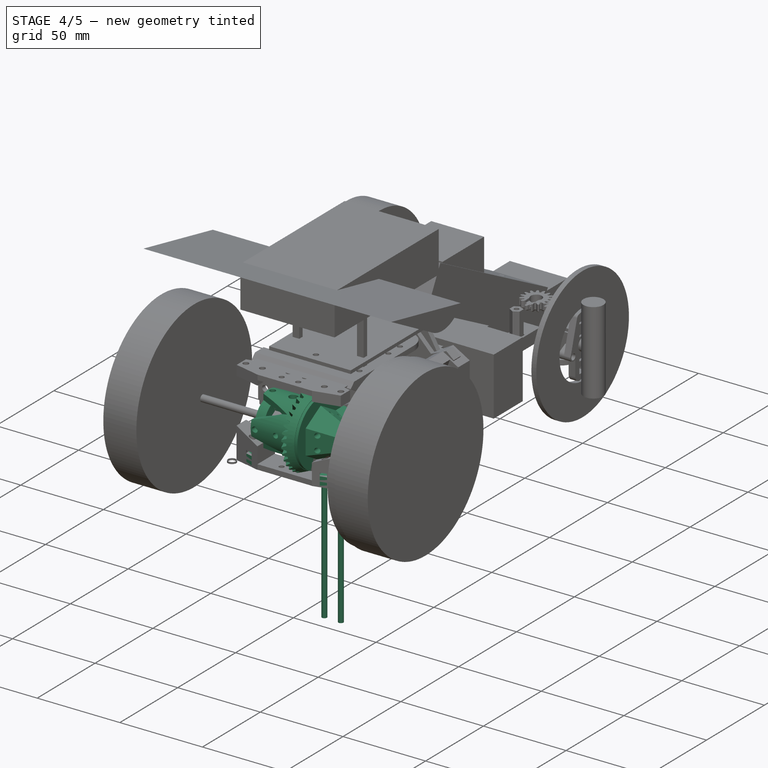
[diagram: stage 4 of 5 — iso view after this stage's code; geometry added in this stage tinted green]
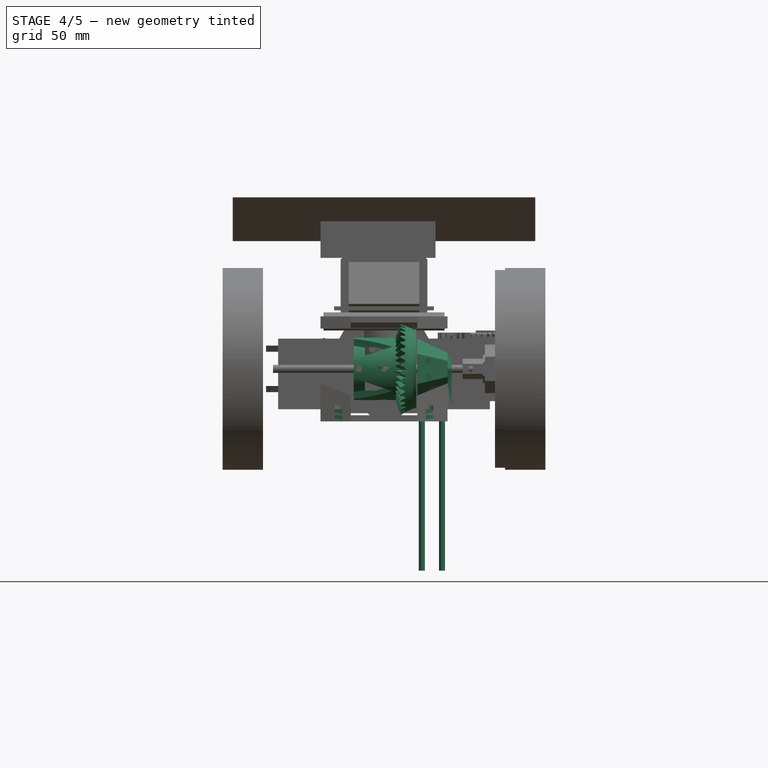
[diagram: stage 4 of 5 — front view after this stage's code; geometry added in this stage tinted green]
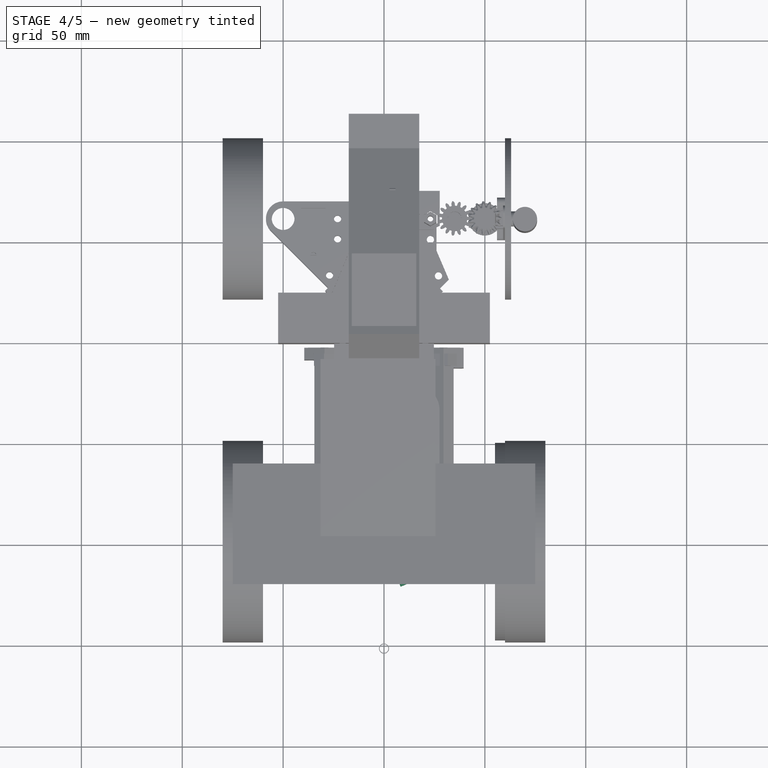
[diagram: stage 4 of 5 — top view after this stage's code; geometry added in this stage tinted green]
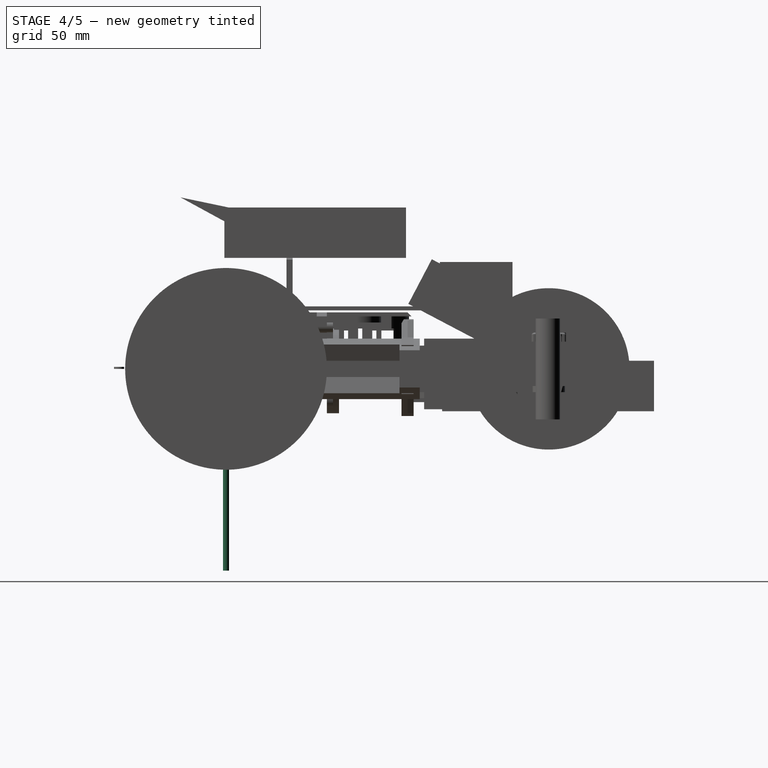
[diagram: stage 4 of 5 — right view after this stage's code; geometry added in this stage tinted green]
FEATURE [Part::FeaturePython] BevelGear007  # WARN: FeaturePython — macro-defined, semantics opaque (R4)
  Placement = pos=(0,0,0) rot=(0,1,0;1.5708rad)
  backlash = 0.01
  clearance = 0.1
  height = 10
  m = 1.25
  numpoints = 6
  pitch_angle = 66.801
  pressure_angle = 20
  teeth = 35
FEATURE [Sketcher::SketchObject] Sketch013
  Placement = pos=(0,0,0) rot=(1,0,0;1.5708rad)
  sketch-geometry (13):
    g0: LineSegment StartX=15 StartY=0 StartZ=0 EndX=15 EndY=19.4639 EndZ=0
    g1: LineSegment StartX=15 StartY=19.4639 StartZ=0 EndX=7.53676 EndY=22.6625 EndZ=0
    g2: LineSegment StartX=5.01219 StartY=15.0713 StartZ=0 EndX=6.2347 EndY=14.5474 EndZ=0
    g3: LineSegment StartX=11 StartY=0 StartZ=0 EndX=15 EndY=0 EndZ=0
    g4: LineSegment [constr] StartX=6.2347 StartY=14.5474 StartZ=0 EndX=0 EndY=0 EndZ=0
    g5: LineSegment [constr] StartX=0 StartY=0 StartZ=0 EndX=5.01219 EndY=15.0713 EndZ=0
    g6: LineSegment StartX=5.01219 StartY=15.0713 StartZ=0 EndX=7.53676 EndY=22.6625 EndZ=0
    g7: LineSegment [constr] StartX=6.2347 StartY=14.5474 StartZ=0 EndX=9.37504 EndY=21.8747 EndZ=0
    g8: LineSegment [constr] StartX=0 StartY=0 StartZ=0 EndX=9.97548 EndY=12.9441 EndZ=0
    g9: LineSegment [constr] StartX=9.97548 StartY=12.9441 StartZ=0 EndX=15 EndY=19.4639 EndZ=0
    g10: LineSegment StartX=6.2347 StartY=14.5474 StartZ=0 EndX=9.97548 EndY=12.9441 EndZ=0
    g11: LineSegment StartX=11 StartY=0 StartZ=0 EndX=11 EndY=12.505 EndZ=0
    g12: LineSegment StartX=11 StartY=12.505 StartZ=0 EndX=9.97548 EndY=12.9441 EndZ=0
  constraints (35):
    c: PointOnObject(g0,g-1)
    c: Vertical(g0)
    c: Coincident(g0,g1)
    c: Coincident(g3,g0)
    c: PointOnObject(g3,g-1)
    c: Coincident(g4,g2)
    c: Coincident(g4,g-1)
    c: Angle(g-1,g4) = 1.1659
    c: Parallel(g2,g1)
    c: Coincident(g-1,g5)
    c: Coincident(g2,g5)
    c: Coincident(g2,g6)
    c: Coincident(g1,g6)
    c: Coincident(g7,g2)
    c: PointOnObject(g7,g1)
    c: Parallel(g7,g4)
    c: Parallel(g6,g5)
    c: Coincident(g-1,g8)
    c: Coincident(g8,g9)
    c: Coincident(g9,g0)
    c: Coincident(g2,g10)
    c: Parallel(g8,g9)
    c: Coincident(g8,g10)
    c: Parallel(g10,g2)
    c: Distance(g-1,g7) = 23.799
    c: Angle(g1,g0) = 1.9757
    c: Distance(g6) = 8
    c: Distance(g1,g7) = 2
    c: DistanceX(g-1,g0) = 15
    c: Coincident(g3,g11)
    c: Vertical(g11)
    c: Coincident(g11,g12)
    c: Coincident(g12,g8)
    c: Parallel(g10,g12)
    c: DistanceX(g-1,g3) = 11
FEATURE [PartDesign::Revolution] Revolution001
  Angle = 360
  Axis = (1,0,0)
  Base = (0,0,0)
  Placement = pos=(0,0,0) rot=(1,0,0;1.5708rad)
  ReferenceAxis = -> Sketch013 [H_Axis]
  Sketch = -> Sketch013
FEATURE [Part::MultiCommon] Common003  label="CrownBevelGear"
  Shapes = -> [BevelGear007,Revolution001]
FEATURE [Sketcher::SketchObject] Sketch018
  Placement = pos=(11,0,0) rot=(0.57735,0.57735,0.57735;2.0944rad)
  sketch-geometry (1):
    g0: Circle CenterX=0 CenterY=0 CenterZ=0 NormalX=0 NormalY=0 NormalZ=1 Radius=4.25
  constraints (2):
    c: Coincident(g0,g-1)
    c: Radius(g0) = 4.25
FEATURE [PartDesign::Pad] Pad015  label="BearingCutout"
  Length = 3
  Length2 = 100
  Placement = pos=(11,0,0) rot=(0.57735,0.57735,0.57735;2.0944rad)
  Sketch = -> Sketch018
  Type = 0
FEATURE [Sketcher::SketchObject] Sketch019
  Placement = pos=(15,0,0) rot=(0.57735,0.57735,0.57735;2.0944rad)
  sketch-geometry (1):
    g0: Circle CenterX=0 CenterY=0 CenterZ=0 NormalX=0 NormalY=0 NormalZ=1 Radius=3
  constraints (2):
    c: Coincident(g0,g-1)
    c: Radius(g0) = 3
FEATURE [PartDesign::Pad] Pad016  label="OutputAxleCutout"
  Length = 50
  Length2 = 100
  Midplane = true
  Placement = pos=(15,0,0) rot=(0.57735,0.57735,0.57735;2.0944rad)
  Reversed = true
  Sketch = -> Sketch019
  Type = 0
FEATURE [Sketcher::SketchObject] Sketch020
  Placement = pos=(15.75,0,0) rot=(1,0,0;1.5708rad)
  sketch-geometry (13):
    g0: Circle [constr] CenterX=0 CenterY=9.58868 CenterZ=0 NormalX=0 NormalY=0 NormalZ=1 Radius=1.5
    g1: Circle [constr] CenterX=2.96307 CenterY=9.11938 CenterZ=0 NormalX=0 NormalY=0 NormalZ=1 Radius=1.5
    g2: Circle [constr] CenterX=0 CenterY=0 CenterZ=0 NormalX=0 NormalY=0 NormalZ=1 Radius=9.58868
    g3: LineSegment [constr] StartX=2.96307 StartY=9.11938 StartZ=0 EndX=0 EndY=0 EndZ=0
    g4: Circle [constr] CenterX=0 CenterY=0 CenterZ=0 NormalX=0 NormalY=0 NormalZ=1 Radius=4
    g5: LineSegment StartX=-0.75 StartY=10.8877 StartZ=0 EndX=-2.25 EndY=10.8877 EndZ=0
    g6: LineSegment StartX=-2.25 StartY=10.8877 StartZ=0 EndX=-2.25 EndY=8.28964 EndZ=0
    g7: LineSegment StartX=-2.25 StartY=8.28964 StartZ=0 EndX=-0.75 EndY=8.28964 EndZ=0
    g8: LineSegment StartX=-0.75 StartY=8.28964 StartZ=0 EndX=-0.75 EndY=10.8877 EndZ=0
    g9: LineSegment [constr] StartX=2.25 StartY=10.8877 StartZ=0 EndX=0.75 EndY=10.8877 EndZ=0
    g10: LineSegment [constr] StartX=0.75 StartY=10.8877 StartZ=0 EndX=0.75 EndY=8.28964 EndZ=0
    g11: LineSegment [constr] StartX=0.75 StartY=8.28964 StartZ=0 EndX=2.25 EndY=8.28964 EndZ=0
    g12: LineSegment [constr] StartX=2.25 StartY=8.28964 StartZ=0 EndX=2.25 EndY=10.8877 EndZ=0
  constraints (36):
    c: PointOnObject(g0,g-2)
    c: Coincident(g2,g-1)
    c: PointOnObject(g1,g2)
    c: PointOnObject(g0,g2)
    c: Tangent(g0,g1)
    c: Equal(g0,g1)
    c: Radius(g0) = 1.5
    c: Coincident(g1,g3)
    c: Coincident(g2,g3)
    c: Angle(g3,g-2) = 0.314159
    c: Coincident(g4,g-1)
    c: Radius(g4) = 4
    c: Coincident(g5,g6)
    c: Coincident(g6,g7)
    c: Coincident(g7,g8)
    c: Coincident(g8,g5)
    c: Horizontal(g5)
    c: Horizontal(g7)
    c: Vertical(g6)
    c: Vertical(g8)
    c: PointOnObject(g5,g0)
    c: PointOnObject(g7,g0)
    c: DistanceX(g5,g5) = 1.5
    c: Coincident(g9,g10)
    c: Coincident(g10,g11)
    c: Coincident(g11,g12)
    c: Coincident(g12,g9)
    c: Horizontal(g9)
    c: Horizontal(g11)
    c: Vertical(g10)
    c: Vertical(g12)
    c: PointOnObject(g9,g0)
    c: PointOnObject(g10,g0)
    c: Symmetric(g9,g5,g-2)
    c: Equal(g9,g5)
    c: DistanceX(g5,g9) = 1.5
FEATURE [PartDesign::Revolution] Revolution003  label="BearingRace"
  Angle = 360
  Axis = (1,0,0)
  Base = (15.75,0,0)
  Placement = pos=(15.75,0,0) rot=(1,0,0;1.5708rad)
  ReferenceAxis = -> Sketch020 [H_Axis]
  Sketch = -> Sketch020
FEATURE [Sketcher::SketchObject] Sketch021
  Placement = pos=(15,0,0) rot=(0.57735,0.57735,0.57735;2.0944rad)
  sketch-geometry (11):
    g0: LineSegment StartX=-8.25 StartY=10.75 StartZ=0 EndX=8.25 EndY=10.75 EndZ=0
    g1: Circle CenterX=0 CenterY=0 CenterZ=0 NormalX=0 NormalY=0 NormalZ=1 Radius=15.5
    g2: ArcOfCircle CenterX=0 CenterY=0 CenterZ=0 NormalX=0 NormalY=0 NormalZ=1 Radius=13.5508 StartAngle=2.22537 EndAngle=2.48702
    g3: ArcOfCircle CenterX=0 CenterY=0 CenterZ=0 NormalX=0 NormalY=0 NormalZ=1 Radius=13.5508 StartAngle=0.654571 EndAngle=0.916226
    g4: LineSegment [constr] StartX=-10.75 StartY=8.25 StartZ=0 EndX=10.75 EndY=8.25 EndZ=0
    g5: LineSegment StartX=10.75 StartY=8.25 StartZ=0 EndX=10.75 EndY=-8.25 EndZ=0
    g6: LineSegment [constr] StartX=10.75 StartY=-8.25 StartZ=0 EndX=-10.75 EndY=-8.25 EndZ=0
    g7: LineSegment StartX=-10.75 StartY=-8.25 StartZ=0 EndX=-10.75 EndY=8.25 EndZ=0
    g8: ArcOfCircle CenterX=0 CenterY=0 CenterZ=0 NormalX=0 NormalY=0 NormalZ=1 Radius=13.5508 StartAngle=3.79616 EndAngle=4.05782
    g9: ArcOfCircle CenterX=0 CenterY=0 CenterZ=0 NormalX=0 NormalY=0 NormalZ=1 Radius=13.5508 StartAngle=5.36696 EndAngle=5.62861
    g10: LineSegment StartX=-8.25 StartY=-10.75 StartZ=0 EndX=8.25 EndY=-10.75 EndZ=0
  constraints (29):
    c: Horizontal(g0)
    c: Symmetric(g0,g0,g-2)
    c: DistanceY(g-1,g0) = 10.75
    c: DistanceX(g0,g0) = 16.5
    c: Coincident(g1,g-1)
    c: Radius(g1) = 15.5
    c: Coincident(g2,g-1)
    c: Coincident(g3,g-1)
    c: Coincident(g3,g0)
    c: Coincident(g4,g5)
    c: Coincident(g5,g6)
    c: Coincident(g6,g7)
    c: Coincident(g7,g4)
    c: Horizontal(g4)
    c: Horizontal(g6)
    c: Vertical(g5)
    c: Vertical(g7)
    c: Coincident(g4,g2)
    c: Coincident(g8,g-1)
    c: Coincident(g8,g6)
    c: Coincident(g9,g-1)
    c: Coincident(g9,g5)
    c: Coincident(g10,g8)
    c: Coincident(g10,g9)
    c: Symmetric(g0,g8,g-1)
    c: Coincident(g0,g2)
    c: Coincident(g3,g4)
    c: Horizontal(g10)
    c: Equal(g7,g0)
FEATURE [PartDesign::Pad] Pad017  label="MainBody"
  Length = 30
  Length2 = 100
  Placement = pos=(15,0,0) rot=(0.57735,0.57735,0.57735;2.0944rad)
  Reversed = true
  Sketch = -> Sketch021
  Type = 0
FEATURE [Sketcher::SketchObject] Sketch022
  sketch-geometry (1):
    g0: Circle CenterX=0 CenterY=0 CenterZ=0 NormalX=0 NormalY=0 NormalZ=1 Radius=2.5
  constraints (2):
    c: Coincident(g0,g-1)
    c: Radius(g0) = 2.5
FEATURE [PartDesign::Pad] Pad018  label="CrossBarAxleCutout (2.5mm radius)"
  Length = 50
  Length2 = 100
  Midplane = true
  Sketch = -> Sketch022
  Type = 0
FEATURE [Sketcher::SketchObject] Sketch023
  Placement = pos=(14,0,0) rot=(0.57735,0.57735,0.57735;2.0944rad)
  sketch-geometry (1):
    g0: Circle CenterX=0 CenterY=0 CenterZ=0 NormalX=0 NormalY=0 NormalZ=1 Radius=19.5
  constraints (2):
    c: Coincident(g0,g-1)
    c: Radius(g0) = 19.5
FEATURE [PartDesign::Pad] Pad019  label="ExtraPad"
  Length = 2
  Length2 = 100
  Placement = pos=(14,0,0) rot=(0.57735,0.57735,0.57735;2.0944rad)
  Sketch = -> Sketch023
  Type = 0
FEATURE [Sketcher::SketchObject] Sketch026
  Placement = pos=(16.5,0,0) rot=(0.57735,0.57735,0.57735;2.0944rad)
  sketch-geometry (7):
    g0: LineSegment StartX=15 StartY=0 StartZ=0 EndX=7.5 EndY=12.9904 EndZ=0
    g1: LineSegment StartX=7.5 StartY=12.9904 StartZ=0 EndX=-7.5 EndY=12.9904 EndZ=0
    g2: LineSegment StartX=-7.5 StartY=12.9904 StartZ=0 EndX=-15 EndY=0 EndZ=0
    g3: LineSegment StartX=-15 StartY=0 StartZ=0 EndX=-7.5 EndY=-12.9904 EndZ=0
    g4: LineSegment StartX=-7.5 StartY=-12.9904 StartZ=0 EndX=7.5 EndY=-12.9904 EndZ=0
    g5: LineSegment StartX=7.5 StartY=-12.9904 StartZ=0 EndX=15 EndY=0 EndZ=0
    g6: Circle [constr] CenterX=0 CenterY=0 CenterZ=0 NormalX=0 NormalY=0 NormalZ=1 Radius=15
  constraints (16):
    c: Coincident(g0,g1)
    c: Coincident(g1,g2)
    c: Coincident(g2,g3)
    c: Coincident(g3,g4)
    c: Coincident(g4,g5)
    c: Coincident(g5,g0)
    c: Equal(g0, g1-g5) x5
    c: PointOnObject(g0,g6)
    c: PointOnObject(g1,g6)
    c: PointOnObject(g2,g6)
    c: PointOnObject(g3,g6)
    c: PointOnObject(g4,g6)
    c: PointOnObject(g5,g6)
    c: Coincident(g6,g-1)
    c: Radius(g6) = 15
    c: Horizontal(g1)
FEATURE [Sketcher::SketchObject] Sketch027
  Placement = pos=(31.5,0,0) rot=(0.57735,0.57735,0.57735;2.0944rad)
  sketch-geometry (8):
    g0: LineSegment StartX=8 StartY=0 StartZ=0 EndX=4 EndY=6.9282 EndZ=0
    g1: LineSegment StartX=4 StartY=6.9282 StartZ=0 EndX=-4 EndY=6.9282 EndZ=0
    g2: LineSegment StartX=-4 StartY=6.9282 StartZ=0 EndX=-8 EndY=0 EndZ=0
    g3: LineSegment StartX=-8 StartY=0 StartZ=0 EndX=-4 EndY=-6.9282 EndZ=0
    g4: LineSegment StartX=-4 StartY=-6.9282 StartZ=0 EndX=4 EndY=-6.9282 EndZ=0
    g5: LineSegment StartX=4 StartY=-6.9282 StartZ=0 EndX=8 EndY=0 EndZ=0
    g6: Circle [constr] CenterX=0 CenterY=0 CenterZ=0 NormalX=0 NormalY=0 NormalZ=1 Radius=8
    g7: Circle [constr] CenterX=0 CenterY=0 CenterZ=0 NormalX=0 NormalY=0 NormalZ=1 Radius=5.5
  constraints (18):
    c: Coincident(g0,g1)
    c: Coincident(g1,g2)
    c: Coincident(g2,g3)
    c: Coincident(g3,g4)
    c: Coincident(g4,g5)
    c: Coincident(g5,g0)
    c: Equal(g0, g1-g5) x5
    c: PointOnObject(g0,g6)
    c: PointOnObject(g1,g6)
    c: PointOnObject(g2,g6)
    c: PointOnObject(g3,g6)
    c: PointOnObject(g4,g6)
    c: PointOnObject(g5,g6)
    c: Coincident(g6,g-1)
    c: Radius(g6) = 8
    c: Coincident(g7,g-1)
    c: Radius(g7) = 5.5
    c: Horizontal(g1)
FEATURE [Part::Loft] Loft  label="Base"
  Closed = false
  Ruled = true
  Sections = -> [Sketch026,Sketch027]
  Solid = true
FEATURE [Sketcher::SketchObject] Sketch028
  Placement = pos=(15.75,0,0) rot=(1,0,0;1.5708rad)
  sketch-geometry (13):
    g0: Circle [constr] CenterX=0 CenterY=9.58868 CenterZ=0 NormalX=0 NormalY=0 NormalZ=1 Radius=1.5
    g1: Circle [constr] CenterX=2.96307 CenterY=9.11938 CenterZ=0 NormalX=0 NormalY=0 NormalZ=1 Radius=1.5
    g2: Circle [constr] CenterX=0 CenterY=0 CenterZ=0 NormalX=0 NormalY=0 NormalZ=1 Radius=9.58868
    g3: LineSegment [constr] StartX=2.96307 StartY=9.11938 StartZ=0 EndX=0 EndY=0 EndZ=0
    g4: Circle [constr] CenterX=0 CenterY=0 CenterZ=0 NormalX=0 NormalY=0 NormalZ=1 Radius=4
    g5: LineSegment [constr] StartX=-0.75 StartY=10.8877 StartZ=0 EndX=-2.25 EndY=10.8877 EndZ=0
    g6: LineSegment [constr] StartX=-2.25 StartY=10.8877 StartZ=0 EndX=-2.25 EndY=8.28964 EndZ=0
    g7: LineSegment [constr] StartX=-2.25 StartY=8.28964 StartZ=0 EndX=-0.75 EndY=8.28964 EndZ=0
    g8: LineSegment [constr] StartX=-0.75 StartY=8.28964 StartZ=0 EndX=-0.75 EndY=10.8877 EndZ=0
    g9: LineSegment StartX=2.25 StartY=10.8877 StartZ=0 EndX=0.75 EndY=10.8877 EndZ=0
    g10: LineSegment StartX=0.75 StartY=10.8877 StartZ=0 EndX=0.75 EndY=8.28964 EndZ=0
    g11: LineSegment StartX=0.75 StartY=8.28964 StartZ=0 EndX=2.25 EndY=8.28964 EndZ=0
    g12: LineSegment StartX=2.25 StartY=8.28964 StartZ=0 EndX=2.25 EndY=10.8877 EndZ=0
  constraints (36):
    c: PointOnObject(g0,g-2)
    c: Coincident(g2,g-1)
    c: PointOnObject(g1,g2)
    c: PointOnObject(g0,g2)
    c: Tangent(g0,g1)
    c: Equal(g0,g1)
    c: Radius(g0) = 1.5
    c: Coincident(g1,g3)
    c: Coincident(g2,g3)
    c: Angle(g3,g-2) = 0.314159
    c: Coincident(g4,g-1)
    c: Radius(g4) = 4
    c: Coincident(g5,g6)
    c: Coincident(g6,g7)
    c: Coincident(g7,g8)
    c: Coincident(g8,g5)
    c: Horizontal(g5)
    c: Horizontal(g7)
    c: Vertical(g6)
    c: Vertical(g8)
    c: PointOnObject(g5,g0)
    c: PointOnObject(g7,g0)
    c: DistanceX(g5,g5) = 1.5
    c: Coincident(g9,g10)
    c: Coincident(g10,g11)
    c: Coincident(g11,g12)
    c: Coincident(g12,g9)
    c: Horizontal(g9)
    c: Horizontal(g11)
    c: Vertical(g10)
    c: Vertical(g12)
    c: PointOnObject(g9,g0)
    c: PointOnObject(g10,g0)
    c: Symmetric(g9,g5,g-2)
    c: Equal(g9,g5)
    c: DistanceX(g5,g9) = 1.5
FEATURE [PartDesign::Revolution] Revolution004  label="BeringRace"
  Angle = 360
  Axis = (1,0,0)
  Base = (15.75,0,0)
  Placement = pos=(15.75,0,0) rot=(1,0,0;1.5708rad)
  ReferenceAxis = -> Sketch028 [H_Axis]
  Sketch = -> Sketch028
FEATURE [Sketcher::SketchObject] Sketch029
  Placement = pos=(16.5,0,0) rot=(0.57735,0.57735,0.57735;2.0944rad)
  sketch-geometry (1):
    g0: Circle CenterX=0 CenterY=0 CenterZ=0 NormalX=0 NormalY=0 NormalZ=1 Radius=4.35
  constraints (2):
    c: Coincident(g0,g-1)
    c: Radius(g0) = 4.35
FEATURE [PartDesign::Pad] Pad021  label="BearingCutout (base)"
  Length = 3
  Length2 = 100
  Placement = pos=(16.5,0,0) rot=(0.57735,0.57735,0.57735;2.0944rad)
  Sketch = -> Sketch029
  Type = 0
FEATURE [Sketcher::SketchObject] Sketch030
  Placement = pos=(31.5,0,0) rot=(0.57735,0.57735,0.57735;2.0944rad)
  sketch-geometry (1):
    g0: Circle CenterX=0 CenterY=0 CenterZ=0 NormalX=0 NormalY=0 NormalZ=1 Radius=4.15
  constraints (2):
    c: Coincident(g0,g-1)
    c: Radius(g0) = 4.15
FEATURE [PartDesign::Pad] Pad022  label="BearingCUtout (top)"
  Length = 3
  Length2 = 100
  Placement = pos=(31.5,0,0) rot=(0.57735,0.57735,0.57735;2.0944rad)
  Reversed = true
  Sketch = -> Sketch030
  Type = 0
FEATURE [Sketcher::SketchObject] Sketch031
  Placement = pos=(0,0,0) rot=(0.57735,0.57735,0.57735;2.0944rad)
  sketch-geometry (1):
    g0: Circle CenterX=0 CenterY=0 CenterZ=0 NormalX=0 NormalY=0 NormalZ=1 Radius=3.6
  constraints (2):
    c: Coincident(g0,g-1)
    c: Radius(g0) = 3.6
FEATURE [PartDesign::Pad] Pad023  label="MainAxleCutout"
  Length = 100
  Length2 = 100
  Placement = pos=(0,0,0) rot=(0.57735,0.57735,0.57735;2.0944rad)
  Sketch = -> Sketch031
  Type = 0
FEATURE [Sketcher::SketchObject] Sketch032
  Placement = pos=(0,0,18) rot=(0,0,1;0rad)
  sketch-geometry (2):
    g0: Circle CenterX=22 CenterY=4 CenterZ=0 NormalX=0 NormalY=0 NormalZ=1 Radius=1.5
    g1: Circle CenterX=22 CenterY=-4 CenterZ=0 NormalX=0 NormalY=0 NormalZ=1 Radius=1.5
  constraints (5):
    c: Symmetric(g0,g1,g-1)
    c: DistanceY(g1,g0) = 8
    c: DistanceX(g-1,g0) = 22
    c: Radius(g0) = 1.5
    c: Equal(g0,g1)
FEATURE [PartDesign::Pad] Pad024  label="ScrewCutout"
  Length = 15
  Length2 = 100
  Placement = pos=(0,0,18) rot=(0,0,1;0rad)
  Reversed = true
  Sketch = -> Sketch032
  Type = 0
FEATURE [Part::FeaturePython] Array  label="ScrewCutouts"  # Draft array (typed FeaturePython)
  Angle = 360
  ArrayType = 1
  Axis = (1,0,0)
  Base = -> Pad024
  Center = (0,0,0)
  Fuse = false
  IntervalAxis = (0,0,0)
  IntervalX = (1,0,0)
  IntervalY = (0,1,0)
  IntervalZ = (0,0,0)
  NumberPolar = 3
  NumberX = 2
  NumberY = 2
  NumberZ = 1
FEATURE [Part::MultiFuse] Fusion004005  label="cutouts"
  Shapes = -> [Array,Pad023,Pad022,Pad021,Revolution004]
FEATURE [Part::Cut] Cut007  label="MountingBlock"
  Base = -> Loft
  Tool = -> Fusion004005
FEATURE [Sketcher::SketchObject] Sketch036
  Placement = pos=(0,0,0) rot=(1,0,0;1.5708rad)
  sketch-geometry (1):
    g0: Circle CenterX=0 CenterY=0 CenterZ=0 NormalX=0 NormalY=0 NormalZ=1 Radius=1.5
  constraints (2):
    c: Coincident(g0,g-1)
    c: Radius(g0) = 1.5
FEATURE [PartDesign::Pad] Pad028  label="CrossBarAxleCutout (1.5mm radius)"
  Length = 100
  Length2 = 100
  Midplane = true
  Placement = pos=(0,0,0) rot=(1,0,0;1.5708rad)
  Sketch = -> Sketch036
  Type = 0
FEATURE [Part::MultiFuse] Fusion004007  label="cutouts"
  Shapes = -> [Pad028,Pad016,Pad018,Pad015,Revolution003]
FEATURE [Sketcher::SketchObject] Sketch057
  sketch-geometry (2):
    g0: Circle CenterX=28.75 CenterY=0 CenterZ=0 NormalX=0 NormalY=0 NormalZ=1 Radius=1.5
    g1: Circle CenterX=18.75 CenterY=0 CenterZ=0 NormalX=0 NormalY=0 NormalZ=1 Radius=1.5
  constraints (6):
    c: PointOnObject(g0,g-1)
    c: PointOnObject(g1,g-1)
    c: Radius(g1) = 1.5
    c: Equal(g1,g0)
    c: DistanceX(g-1,g1) = 18.75
    c: DistanceX(g1,g0) = 10
FEATURE [PartDesign::Pad] Pad040  label="MountingScrewsCutout"
  Length = 100
  Length2 = 100
  Reversed = true
  Sketch = -> Sketch057
  Type = 0
FEATURE [Sketcher::SketchObject] Sketch059
  Placement = pos=(0,0,20) rot=(0,0,1;0rad)
  sketch-geometry (4):
    g0: LineSegment StartX=-10.4222 StartY=77 StartZ=0 EndX=10.4222 EndY=77 EndZ=0
    g1: LineSegment StartX=10.4222 StartY=77 StartZ=0 EndX=10.4222 EndY=35 EndZ=0
    g2: LineSegment StartX=10.4222 StartY=35 StartZ=0 EndX=-10.4222 EndY=35 EndZ=0
    g3: LineSegment StartX=-10.4222 StartY=35 StartZ=0 EndX=-10.4222 EndY=77 EndZ=0
  constraints (11):
    c: Coincident(g0,g1)
    c: Coincident(g1,g2)
    c: Coincident(g2,g3)
    c: Coincident(g3,g0)
    c: Horizontal(g0)
    c: Horizontal(g2)
    c: Vertical(g1)
    c: Vertical(g3)
    c: Symmetric(g0,g0,g-2)
    c: DistanceY(g-1,g2) = 35
    c: DistanceY(g3,g3) = 42
FEATURE [Part::MultiFuse] Fusion004012  label="MotorCutout"
  Shapes = -> [Chamfer005,Cylinder003]
FEATURE [Part::Cut] Cut007013  label="MotorMountFins"
  Base = -> Cut007012
  Tool = -> Fusion004012
FEATURE [Sketcher::SketchObject] Sketch065
  Placement = pos=(31.5,0,0) rot=(0.57735,0.57735,0.57735;2.0944rad)
  sketch-geometry (2):
    g0: Circle CenterX=2.75 CenterY=-11 CenterZ=0 NormalX=0 NormalY=0 NormalZ=1 Radius=1
    g1: Circle CenterX=-2.75 CenterY=-11 CenterZ=0 NormalX=0 NormalY=0 NormalZ=1 Radius=1
  constraints (5):
    c: DistanceX(g1,g0) = 5.5
    c: Symmetric(g1,g0,g-2)
    c: Radius(g0) = 1
    c: Equal(g0,g1)
    c: DistanceY(g1,g-1) = 11
FEATURE [PartDesign::Pad] Pad047
  Length = 3
  Length2 = 100
  Placement = pos=(31.5,0,0) rot=(0.57735,0.57735,0.57735;2.0944rad)
  Reversed = true
  Sketch = -> Sketch065
  Type = 0
FEATURE [Sketcher::SketchObject] Sketch066
  Placement = pos=(0,0,-20) rot=(0,0,1;3.14159rad)
  sketch-geometry (16):
    g0: LineSegment [constr] StartX=-31.5 StartY=4 StartZ=0 EndX=-38.4282 EndY=8 EndZ=0
    g1: LineSegment [constr] StartX=-38.4282 StartY=8 StartZ=0 EndX=-45.3564 EndY=4 EndZ=0
    g2: LineSegment [constr] StartX=-45.3564 StartY=4 StartZ=0 EndX=-45.3564 EndY=-4 EndZ=0
    g3: LineSegment [constr] StartX=-45.3564 StartY=-4 StartZ=0 EndX=-38.4282 EndY=-8 EndZ=0
    g4: LineSegment [constr] StartX=-38.4282 StartY=-8 StartZ=0 EndX=-31.5 EndY=-4 EndZ=0
    g5: LineSegment StartX=-31.5 StartY=-4 StartZ=0 EndX=-31.5 EndY=4 EndZ=0
    g6: Circle [constr] CenterX=-38.4282 CenterY=0 CenterZ=0 NormalX=0 NormalY=0 NormalZ=1 Radius=8
    g7: LineSegment [constr] StartX=-16.5 StartY=7.5 StartZ=0 EndX=-29.4904 EndY=15 EndZ=0
    g8: LineSegment [constr] StartX=-29.4904 StartY=15 StartZ=0 EndX=-42.4808 EndY=7.5 EndZ=0
    g9: LineSegment [constr] StartX=-42.4808 StartY=7.5 StartZ=0 EndX=-42.4808 EndY=-7.5 EndZ=0
    g10: LineSegment [constr] StartX=-42.4808 StartY=-7.5 StartZ=0 EndX=-29.4904 EndY=-15 EndZ=0
    g11: LineSegment [constr] StartX=-29.4904 StartY=-15 StartZ=0 EndX=-16.5 EndY=-7.5 EndZ=0
    g12: LineSegment StartX=-16.5 StartY=-7.5 StartZ=0 EndX=-16.5 EndY=7.5 EndZ=0
    g13: Circle [constr] CenterX=-29.4904 CenterY=0 CenterZ=0 NormalX=0 NormalY=0 NormalZ=1 Radius=15
    g14: LineSegment StartX=-31.5 StartY=4 StartZ=0 EndX=-16.5 EndY=7.5 EndZ=0
    g15: LineSegment StartX=-31.5 StartY=-4 StartZ=0 EndX=-16.5 EndY=-7.5 EndZ=0
  constraints (38):
    c: Coincident(g0,g1)
    c: Coincident(g1,g2)
    c: Coincident(g2,g3)
    c: Coincident(g3,g4)
    c: Coincident(g4,g5)
    c: Coincident(g5,g0)
    c: Equal(g0, g1-g5) x5
    c: PointOnObject(g0,g6)
    c: PointOnObject(g1,g6)
    c: PointOnObject(g2,g6)
    c: PointOnObject(g3,g6)
    c: PointOnObject(g4,g6)
    c: PointOnObject(g5,g6)
    c: PointOnObject(g6,g-1)
    c: Coincident(g7,g8)
    c: Coincident(g8,g9)
    c: Coincident(g9,g10)
    c: Coincident(g10,g11)
    c: Coincident(g11,g12)
    c: Coincident(g12,g7)
    c: Equal(g7, g8-g12) x5
    c: PointOnObject(g7,g13)
    c: PointOnObject(g8,g13)
    c: PointOnObject(g9,g13)
    c: PointOnObject(g10,g13)
    c: PointOnObject(g11,g13)
    c: PointOnObject(g12,g13)
    c: PointOnObject(g13,g-1)
    c: Vertical(g12)
    c: Vertical(g5)
    c: Radius(g13) = 15
    c: Radius(g6) = 8
    c: DistanceX(g7,g-1) = 16.5
    c: DistanceX(g0,g-1) = 31.5
    c: Coincident(g0,g14)
    c: Coincident(g14,g7)
    c: Coincident(g15,g4)
    c: Coincident(g15,g11)
FEATURE [Sketcher::SketchObject] Sketch067
  Placement = pos=(0,0,-23) rot=(0,0,1;3.14159rad)
  sketch-geometry (21):
    g0: LineSegment [constr] StartX=-31.5 StartY=4 StartZ=0 EndX=-38.4282 EndY=8 EndZ=0
    g1: LineSegment [constr] StartX=-38.4282 StartY=8 StartZ=0 EndX=-45.3564 EndY=4 EndZ=0
    g2: LineSegment [constr] StartX=-45.3564 StartY=4 StartZ=0 EndX=-45.3564 EndY=-4 EndZ=0
    g3: LineSegment [constr] StartX=-45.3564 StartY=-4 StartZ=0 EndX=-38.4282 EndY=-8 EndZ=0
    g4: LineSegment [constr] StartX=-38.4282 StartY=-8 StartZ=0 EndX=-31.5 EndY=-4 EndZ=0
    g5: LineSegment StartX=-31.5 StartY=-4 StartZ=0 EndX=-31.5 EndY=4 EndZ=0
    g6: Circle [constr] CenterX=-38.4282 CenterY=0 CenterZ=0 NormalX=0 NormalY=0 NormalZ=1 Radius=8
    g7: LineSegment [constr] StartX=-16.5 StartY=7.5 StartZ=0 EndX=-29.4904 EndY=15 EndZ=0
    g8: LineSegment [constr] StartX=-29.4904 StartY=15 StartZ=0 EndX=-42.4808 EndY=7.5 EndZ=0
    g9: LineSegment [constr] StartX=-42.4808 StartY=7.5 StartZ=0 EndX=-42.4808 EndY=-7.5 EndZ=0
    g10: LineSegment [constr] StartX=-42.4808 StartY=-7.5 StartZ=0 EndX=-29.4904 EndY=-15 EndZ=0
    g11: LineSegment [constr] StartX=-29.4904 StartY=-15 StartZ=0 EndX=-16.5 EndY=-7.5 EndZ=0
    g12: LineSegment [constr] StartX=-16.5 StartY=-7.5 StartZ=0 EndX=-16.5 EndY=7.5 EndZ=0
    g13: Circle [constr] CenterX=-29.4904 CenterY=0 CenterZ=0 NormalX=0 NormalY=0 NormalZ=1 Radius=15
    g14: LineSegment StartX=-31.5 StartY=4 StartZ=0 EndX=-16.5 EndY=7.5 EndZ=0
    g15: LineSegment StartX=-31.5 StartY=-4 StartZ=0 EndX=-16.5 EndY=-7.5 EndZ=0
    g16: LineSegment StartX=-16.5 StartY=7.5 StartZ=0 EndX=0 EndY=7.5 EndZ=0
    g17: LineSegment StartX=0 StartY=7.5 StartZ=0 EndX=0 EndY=-7.5 EndZ=0
    g18: LineSegment StartX=0 StartY=-7.5 StartZ=0 EndX=-16.5 EndY=-7.5 EndZ=0
    g19: Circle CenterX=-5 CenterY=3 CenterZ=0 NormalX=0 NormalY=0 NormalZ=1 Radius=1.5
    g20: Circle CenterX=-5 CenterY=-3 CenterZ=0 NormalX=0 NormalY=0 NormalZ=1 Radius=1.5
  constraints (51):
    c: Coincident(g0,g1)
    c: Coincident(g1,g2)
    c: Coincident(g2,g3)
    c: Coincident(g3,g4)
    c: Coincident(g4,g5)
    c: Coincident(g5,g0)
    c: Equal(g0, g1-g5) x5
    c: PointOnObject(g0,g6)
    c: PointOnObject(g1,g6)
    c: PointOnObject(g2,g6)
    c: PointOnObject(g3,g6)
    c: PointOnObject(g4,g6)
    c: PointOnObject(g5,g6)
    c: PointOnObject(g6,g-1)
    c: Coincident(g7,g8)
    c: Coincident(g8,g9)
    c: Coincident(g9,g10)
    c: Coincident(g10,g11)
    c: Coincident(g11,g12)
    c: Coincident(g12,g7)
    c: Equal(g7, g8-g12) x5
    c: PointOnObject(g7,g13)
    c: PointOnObject(g8,g13)
    c: PointOnObject(g9,g13)
    c: PointOnObject(g10,g13)
    c: PointOnObject(g11,g13)
    c: PointOnObject(g12,g13)
    c: PointOnObject(g13,g-1)
    c: Vertical(g12)
    c: Vertical(g5)
    c: Radius(g13) = 15
    c: Radius(g6) = 8
    c: DistanceX(g7,g-1) = 16.5
    c: DistanceX(g0,g-1) = 31.5
    c: Coincident(g0,g14)
    c: Coincident(g14,g7)
    c: Coincident(g15,g4)
    c: Coincident(g15,g11)
    c: Coincident(g7,g16)
    c: PointOnObject(g16,g-2)
    c: Horizontal(g16)
    c: Coincident(g16,g17)
    c: Coincident(g17,g18)
    c: Coincident(g18,g11)
    c: PointOnObject(g17,g-2)
    c: Horizontal(g18)
    c: Symmetric(g19,g20,g-1)
    c: DistanceX(g19) = -5
    c: DistanceY(g19) = 3
    c: Radius(g20) = 1.5
    c: Equal(g20,g19)
FEATURE [PartDesign::Pad] Pad048  label="MountPad"
  Length = 3
  Length2 = 100
  Placement = pos=(0,0,-20) rot=(0,0,1;3.14159rad)
  Reversed = true
  Sketch = -> Sketch066
  Type = 0
FEATURE [PartDesign::Pad] Pad049  label="BasePlate"
  Length = 3
  Length2 = 100
  Placement = pos=(0,0,-23) rot=(0,0,1;3.14159rad)
  Reversed = true
  Sketch = -> Sketch067
  Type = 0
FEATURE [Part::MultiFuse] Fusion004017  label="Base"
  Shapes = -> [Pad048,Pad049]
FEATURE [Sketcher::SketchObject] Sketch068
  sketch-geometry (2):
    g0: Circle CenterX=28.75 CenterY=0 CenterZ=0 NormalX=0 NormalY=0 NormalZ=1 Radius=1.7
    g1: Circle CenterX=18.75 CenterY=0 CenterZ=0 NormalX=0 NormalY=0 NormalZ=1 Radius=1.7
  constraints (6):
    c: PointOnObject(g0,g-1)
    c: PointOnObject(g1,g-1)
    c: DistanceX(g-1,g1) = 18.75
    c: DistanceX(g1,g0) = 10
    c: Radius(g1) = 1.7
    c: Equal(g1,g0)
FEATURE [PartDesign::Pad] Pad050  label="MountScrewCutouts"
  Length = 100
  Length2 = 100
  Reversed = true
  Sketch = -> Sketch068
  Type = 0
FEATURE [Part::Cut] Cut007017  label="SupportPlate"
  Base = -> Fusion004017
  Tool = -> Pad050
FEATURE [Part::Mirroring] Part__Mirroring001  label="SupportPlate (Mirror #2)"
  Base = (0,0,0)
  Normal = (1,0,0)
  Source = -> Cut007017
FEATURE [Part::MultiFuse] Fusion004018  label="SupportPlate"
  Shapes = -> [Part__Mirroring001,Cut007017]
FEATURE [Sketcher::SketchObject] Sketch069
  Placement = pos=(16.5,0,0) rot=(0.57735,0.57735,0.57735;2.0944rad)
  sketch-geometry (10):
    g0: LineSegment [constr] StartX=15 StartY=0 StartZ=0 EndX=7.5 EndY=12.9904 EndZ=0
    g1: LineSegment [constr] StartX=7.5 StartY=12.9904 StartZ=0 EndX=-7.5 EndY=12.9904 EndZ=0
    g2: LineSegment [constr] StartX=-7.5 StartY=12.9904 StartZ=0 EndX=-15 EndY=0 EndZ=0
    g3: LineSegment [constr] StartX=-15 StartY=0 StartZ=0 EndX=-7.5 EndY=-12.9904 EndZ=0
    g4: LineSegment StartX=-7.5 StartY=-12.9904 StartZ=0 EndX=7.5 EndY=-12.9904 EndZ=0
    g5: LineSegment [constr] StartX=7.5 StartY=-12.9904 StartZ=0 EndX=15 EndY=0 EndZ=0
    g6: Circle [constr] CenterX=0 CenterY=0 CenterZ=0 NormalX=0 NormalY=0 NormalZ=1 Radius=15
    g7: LineSegment StartX=-7.5 StartY=-12.9904 StartZ=0 EndX=-7.5 EndY=-20 EndZ=0
    g8: LineSegment StartX=-7.5 StartY=-20 StartZ=0 EndX=7.5 EndY=-20 EndZ=0
    g9: LineSegment StartX=7.5 StartY=-20 StartZ=0 EndX=7.5 EndY=-12.9904 EndZ=0
  constraints (24):
    c: Coincident(g0,g1)
    c: Coincident(g1,g2)
    c: Coincident(g2,g3)
    c: Coincident(g3,g4)
    c: Coincident(g4,g5)
    c: Coincident(g5,g0)
    c: Equal(g0, g1-g5) x5
    c: PointOnObject(g0,g6)
    c: PointOnObject(g1,g6)
    c: PointOnObject(g2,g6)
    c: PointOnObject(g3,g6)
    c: PointOnObject(g4,g6)
    c: PointOnObject(g5,g6)
    c: Coincident(g6,g-1)
    c: Radius(g6) = 15
    c: Horizontal(g1)
    c: Coincident(g7,g8)
    c: Coincident(g8,g9)
    c: Coincident(g4,g9)
    c: Coincident(g3,g7)
    c: Parallel(g7,g9)
    c: Parallel(g4,g8)
    c: Perpendicular(g4,g7)
    c: DistanceY(g7,g-1) = 20
FEATURE [Sketcher::SketchObject] Sketch070
  Placement = pos=(31.5,0,0) rot=(0.57735,0.57735,0.57735;2.0944rad)
  sketch-geometry (11):
    g0: LineSegment [constr] StartX=8 StartY=0 StartZ=0 EndX=4 EndY=6.9282 EndZ=0
    g1: LineSegment [constr] StartX=4 StartY=6.9282 StartZ=0 EndX=-4 EndY=6.9282 EndZ=0
    g2: LineSegment [constr] StartX=-4 StartY=6.9282 StartZ=0 EndX=-8 EndY=0 EndZ=0
    g3: LineSegment [constr] StartX=-8 StartY=0 StartZ=0 EndX=-4 EndY=-6.9282 EndZ=0
    g4: LineSegment StartX=-4 StartY=-6.9282 StartZ=0 EndX=4 EndY=-6.9282 EndZ=0
    g5: LineSegment [constr] StartX=4 StartY=-6.9282 StartZ=0 EndX=8 EndY=0 EndZ=0
    g6: Circle [constr] CenterX=0 CenterY=0 CenterZ=0 NormalX=0 NormalY=0 NormalZ=1 Radius=8
    g7: Circle [constr] CenterX=0 CenterY=0 CenterZ=0 NormalX=0 NormalY=0 NormalZ=1 Radius=5.5
    g8: LineSegment StartX=-4 StartY=-6.9282 StartZ=0 EndX=-4 EndY=-20 EndZ=0
    g9: LineSegment StartX=-4 StartY=-20 StartZ=0 EndX=4 EndY=-20 EndZ=0
    g10: LineSegment StartX=4 StartY=-20 StartZ=0 EndX=4 EndY=-6.9282 EndZ=0
  constraints (26):
    c: Coincident(g0,g1)
    c: Coincident(g1,g2)
    c: Coincident(g2,g3)
    c: Coincident(g3,g4)
    c: Coincident(g4,g5)
    c: Coincident(g5,g0)
    c: Equal(g0, g1-g5) x5
    c: PointOnObject(g0,g6)
    c: PointOnObject(g1,g6)
    c: PointOnObject(g2,g6)
    c: PointOnObject(g3,g6)
    c: PointOnObject(g4,g6)
    c: PointOnObject(g5,g6)
    c: Coincident(g6,g-1)
    c: Radius(g6) = 8
    c: Coincident(g7,g-1)
    c: Radius(g7) = 5.5
    c: Horizontal(g1)
    c: Coincident(g8,g9)
    c: Coincident(g9,g10)
    c: Coincident(g4,g10)
    c: Coincident(g3,g8)
    c: Parallel(g8,g10)
    c: Parallel(g4,g9)
    c: Perpendicular(g4,g8)
    c: DistanceY(g9,g-1) = 20
FEATURE [Part::Loft] Loft004  label="AttachmentPoint"
  Closed = false
  Ruled = false
  Sections = -> [Sketch069,Sketch070]
  Solid = true
FEATURE [Sketcher::SketchObject] Sketch071
  Placement = pos=(0,0,-7) rot=(0,0,1;0rad)
  sketch-geometry (2):
    g0: Circle CenterX=28.75 CenterY=0 CenterZ=0 NormalX=0 NormalY=0 NormalZ=1 Radius=1.35
    g1: Circle CenterX=18.75 CenterY=0 CenterZ=0 NormalX=0 NormalY=0 NormalZ=1 Radius=1.35
  constraints (6):
    c: PointOnObject(g0,g-1)
    c: PointOnObject(g1,g-1)
    c: Radius(g1) = 1.35
    c: Equal(g1,g0)
    c: DistanceX(g-1,g1) = 18.75
    c: DistanceX(g1,g0) = 10
FEATURE [PartDesign::Pad] Pad051  label="MontingScrewCutout"
  Length = 100
  Length2 = 100
  Placement = pos=(0,0,-7) rot=(0,0,1;0rad)
  Reversed = true
  Sketch = -> Sketch071
  Type = 0
FEATURE [Part::MultiFuse] Fusion004019  label="MountingBlock"
  Shapes = -> [Loft004,Cut007]
FEATURE [Part::Cut] Cut007018  label="MontingBlock"
  Base = -> Fusion004019
  Tool = -> Pad051
FEATURE [Sketcher::SketchObject] Sketch072
  Placement = pos=(31.5,0,0) rot=(0.57735,0.57735,0.57735;2.0944rad)
  sketch-geometry (4):
    g0: LineSegment StartX=-1 StartY=-10 StartZ=0 EndX=1 EndY=-10 EndZ=0
    g1: LineSegment StartX=1 StartY=-10 StartZ=0 EndX=1 EndY=-17 EndZ=0
    g2: LineSegment StartX=1 StartY=-17 StartZ=0 EndX=-1 EndY=-17 EndZ=0
    g3: LineSegment StartX=-1 StartY=-17 StartZ=0 EndX=-1 EndY=-10 EndZ=0
  constraints (12):
    c: Coincident(g0,g1)
    c: Coincident(g1,g2)
    c: Coincident(g2,g3)
    c: Coincident(g3,g0)
    c: Horizontal(g0)
    c: Horizontal(g2)
    c: Vertical(g1)
    c: Vertical(g3)
    c: DistanceX(g0,g0) = 2
    c: Symmetric(g0,g0,g-2)
    c: DistanceY(g1,g1) = 7
    c: DistanceY(g0,g-1) = 10
FEATURE [PartDesign::Pad] Pad052  label="Fin"
  Length = 2
  Length2 = 100
  Placement = pos=(31.5,0,0) rot=(0.57735,0.57735,0.57735;2.0944rad)
  Sketch = -> Sketch072
  Type = 0
FEATURE [Part::MultiFuse] Fusion004020  label="MountingBlock"
  Placement = pos=(0,0,0) rot=(1,0,0;1.5708rad)
  Shapes = -> [Cut007018,Pad052]
FEATURE [Sketcher::SketchObject] Sketch073
  Placement = pos=(31.5,0,0) rot=(0.57735,0.57735,0.57735;2.0944rad)
  sketch-geometry (21):
    g0: LineSegment [constr] StartX=-1 StartY=-10 StartZ=0 EndX=1 EndY=-10 EndZ=0
    g1: LineSegment [constr] StartX=1 StartY=-10 StartZ=0 EndX=1 EndY=-17 EndZ=0
    g2: LineSegment [constr] StartX=1 StartY=-17 StartZ=0 EndX=-1 EndY=-17 EndZ=0
    g3: LineSegment [constr] StartX=-1 StartY=-17 StartZ=0 EndX=-1 EndY=-10 EndZ=0
    g4: LineSegment StartX=1.15 StartY=-9.85 StartZ=0 EndX=-1.15 EndY=-9.85 EndZ=0
    g5: LineSegment StartX=-1.15 StartY=-9.85 StartZ=0 EndX=-1.15 EndY=-17.15 EndZ=0
    g6: LineSegment StartX=-1.15 StartY=-17.15 StartZ=0 EndX=1.15 EndY=-17.15 EndZ=0
    g7: LineSegment StartX=1.15 StartY=-17.15 StartZ=0 EndX=1.15 EndY=-9.85 EndZ=0
    g8: Circle CenterX=0 CenterY=0 CenterZ=0 NormalX=0 NormalY=0 NormalZ=1 Radius=3
    g9: LineSegment StartX=8 StartY=-3e-12 StartZ=0 EndX=4 EndY=6.9282 EndZ=0
    g10: LineSegment StartX=4 StartY=6.9282 StartZ=0 EndX=-4 EndY=6.9282 EndZ=0
    g11: LineSegment StartX=-4 StartY=6.9282 StartZ=0 EndX=-8 EndY=-2e-12 EndZ=0
    g12: LineSegment StartX=-8 StartY=-2e-12 StartZ=0 EndX=-4 EndY=-6.9282 EndZ=0
    g13: LineSegment [constr] StartX=-4 StartY=-6.9282 StartZ=0 EndX=4 EndY=-6.9282 EndZ=0
    g14: LineSegment StartX=4 StartY=-6.9282 StartZ=0 EndX=8 EndY=-3e-12 EndZ=0
    g15: Circle [constr] CenterX=0 CenterY=0 CenterZ=0 NormalX=0 NormalY=0 NormalZ=1 Radius=8
    g16: LineSegment StartX=4 StartY=-6.9282 StartZ=0 EndX=4 EndY=-20 EndZ=0
    g17: LineSegment StartX=4 StartY=-20 StartZ=0 EndX=-4 EndY=-20 EndZ=0
    g18: LineSegment StartX=-4 StartY=-20 StartZ=0 EndX=-4 EndY=-6.9282 EndZ=0
    g19: LineSegment [constr] StartX=1 StartY=-10 StartZ=0 EndX=1.15 EndY=-9.85 EndZ=0
    g20: LineSegment [constr] StartX=-1 StartY=-17 StartZ=0 EndX=-1.15 EndY=-17.15 EndZ=0
  constraints (54):
    c: Coincident(g0,g1)
    c: Coincident(g1,g2)
    c: Coincident(g2,g3)
    c: Coincident(g3,g0)
    c: Horizontal(g0)
    c: Horizontal(g2)
    c: Vertical(g1)
    c: Vertical(g3)
    c: DistanceX(g0,g0) = 2
    c: Symmetric(g0,g0,g-2)
    c: DistanceY(g1,g1) = 7
    c: DistanceY(g0,g-1) = 10
    c: Coincident(g4,g5)
    c: Coincident(g5,g6)
    c: Coincident(g6,g7)
    c: Coincident(g7,g4)
    c: Horizontal(g4)
    c: Horizontal(g6)
    c: Vertical(g5)
    c: Vertical(g7)
    c: Coincident(g9,g10)
    c: Coincident(g10,g11)
    c: Coincident(g11,g12)
    c: Coincident(g12,g13)
    c: Coincident(g13,g14)
    c: Coincident(g14,g9)
    c: Equal(g9, g10-g14) x5
    c: PointOnObject(g9,g15)
    c: PointOnObject(g10,g15)
    c: PointOnObject(g11,g15)
    c: PointOnObject(g12,g15)
    c: PointOnObject(g13,g15)
    c: PointOnObject(g14,g15)
    c: Coincident(g15,g8)
    c: Coincident(g8,g-1)
    c: Horizontal(g13)
    c: Radius(g15) = 8
    c: Coincident(g16,g17)
    c: Coincident(g17,g18)
    c: Horizontal(g17)
    c: Vertical(g16)
    c: Vertical(g18)
    c: Coincident(g13,g16)
    c: Coincident(g12,g18)
    c: DistanceY(g17,g-1) = 20
    c: Coincident(g19,g0)
    c: Coincident(g19,g4)
    c: Coincident(g20,g2)
    c: Coincident(g20,g5)
    c: Equal(g19,g20)
    c: Parallel(g19,g20)
    c: Angle(g4,g19) = 0.785398
    c: DistanceX(g0,g4) = 0.15
    c: Radius(g8) = 3
FEATURE [PartDesign::Pad] Pad053  label="BearingRetainer"
  Length = 2
  Length2 = 100
  Placement = pos=(31.5,0,0) rot=(0.57735,0.57735,0.57735;2.0944rad)
  Sketch = -> Sketch073
  Type = 0
FEATURE [PartDesign::Chamfer] Chamfer  label="BearingRetainer (chamfer)"
  Base = -> Pad053 [Edge10,Edge13,Edge7,Edge4,Edge24]
  Placement = pos=(31.5,0,0) rot=(0.57735,0.57735,0.57735;2.0944rad)
  Size = 1.9
FEATURE [PartDesign::Chamfer] Chamfer006  label="BearingRetainer (chamfer)"
  Base = -> Chamfer [Edge32]
  Placement = pos=(31.5,0,0) rot=(0.57735,0.57735,0.57735;2.0944rad)
  Size = 1.9
FEATURE [Part::FeaturePython] BevelGear010  # WARN: FeaturePython — macro-defined, semantics opaque (R4)
  Placement = pos=(0,0,0) rot=(0,1,0;1.5708rad)
  backlash = 0.1
  clearance = 0.5
  height = 5
  m = 1
  numpoints = 6
  pitch_angle = 45
  pressure_angle = 20
  teeth = 15
FEATURE [Part::Sphere] Sphere003
  Angle1 = -90
  Angle2 = 90
  Angle3 = 360
  Radius = 12
FEATURE [Part::MultiCommon] Common005  label="Gear"
  Shapes = -> [BevelGear010,Sphere003]
FEATURE [Sketcher::SketchObject] Sketch074
  Placement = pos=(0,0,0) rot=(0.57735,0.57735,0.57735;2.0944rad)
  sketch-geometry (2):
    g0: ArcOfCircle CenterX=0 CenterY=0 CenterZ=0 NormalX=0 NormalY=0 NormalZ=1 Radius=2.3 StartAngle=2.43114 EndAngle=6.99363
    g1: ArcOfCircle CenterX=0 CenterY=17.4047 CenterZ=0 NormalX=0 NormalY=0 NormalZ=1 Radius=16 StartAngle=4.6032 EndAngle=4.82158
  constraints (7):
    c: Coincident(g0,g-1)
    c: PointOnObject(g1,g-2)
    c: Coincident(g1,g0)
    c: Coincident(g1,g0)
    c: Radius(g0) = 2.3
    c: Radius(g1) = 16
    c: DistanceY(g-1,g0) = 1.5
FEATURE [PartDesign::Pad] Pad054  label="AxleCutout"
  Length = 35
  Length2 = 100
  Placement = pos=(0,0,0) rot=(0.57735,0.57735,0.57735;2.0944rad)
  Sketch = -> Sketch074
  Type = 0
FEATURE [Part::Cut] Cut007019  label="OutputGear"
  Base = -> Common005
  Tool = -> Pad054
FEATURE [Sketcher::SketchObject] Sketch077
  sketch-geometry (10):
    g0: LineSegment StartX=4 StartY=11 StartZ=0 EndX=4 EndY=25 EndZ=0
    g1: LineSegment StartX=4 StartY=-11 StartZ=0 EndX=4 EndY=-25 EndZ=0
    g2: LineSegment StartX=24 StartY=25 StartZ=0 EndX=4 EndY=25 EndZ=0
    g3: LineSegment StartX=4 StartY=-25 StartZ=0 EndX=24 EndY=-25 EndZ=0
    g4: LineSegment StartX=24 StartY=-25 StartZ=0 EndX=24 EndY=25 EndZ=0
    g5: LineSegment StartX=-15 StartY=4.5 StartZ=0 EndX=4 EndY=11 EndZ=0
    g6: LineSegment [constr] StartX=4 StartY=11 StartZ=0 EndX=4 EndY=-11 EndZ=0
    g7: LineSegment StartX=4 StartY=-11 StartZ=0 EndX=-15 EndY=-4.5 EndZ=0
    g8: LineSegment StartX=-15 StartY=-4.5 StartZ=0 EndX=-15 EndY=4.5 EndZ=0
    g9: Circle CenterX=-12.5 CenterY=0 CenterZ=0 NormalX=0 NormalY=0 NormalZ=1 Radius=1.7
  constraints (29):
    c: Vertical(g0)
    c: Vertical(g1)
    c: Coincident(g3,g4)
    c: Coincident(g4,g2)
    c: Horizontal(g2)
    c: Horizontal(g3)
    c: Vertical(g4)
    c: Coincident(g0,g2)
    c: Equal(g0,g1)
    c: DistanceY(g4,g4) = 50
    c: Coincident(g1,g3)
    c: DistanceX(g2,g2) = 20
    c: Coincident(g5,g6)
    c: Coincident(g6,g7)
    c: Coincident(g7,g8)
    c: Coincident(g8,g5)
    c: Vertical(g6)
    c: Vertical(g8)
    c: Coincident(g0,g5)
    c: Coincident(g1,g6)
    c: DistanceX(g5,g-1) = 15
    c: PointOnObject(g9,g-1)
    c: Radius(g9) = 1.7
    c: DistanceX(g9,g-1) = 12.5
    c: Symmetric(g2,g3,g-1)
    c: Symmetric(g5,g7,g-1)
    c: DistanceY(g8,g8) = 9
    c: DistanceX(g-1,g0) = 4
    c: DistanceY(g6,g6) = 22
FEATURE [PartDesign::Pad] Pad057
  Length = 50
  Length2 = 100
  Midplane = true
  Sketch = -> Sketch077
  Type = 0
FEATURE [Sketcher::SketchObject] Sketch081
  Placement = pos=(-15,0,0) rot=(0.57735,0.57735,0.57735;2.0944rad)
  sketch-geometry (1):
    g0: Circle CenterX=0 CenterY=0 CenterZ=0 NormalX=0 NormalY=0 NormalZ=1 Radius=12.3
  constraints (2):
    c: Coincident(g0,g-1)
    c: Radius(g0) = 12.3
FEATURE [PartDesign::Pad] Pad061  label="EndCapCutout"
  Length = 5.75
  Length2 = 100
  Placement = pos=(-15,0,0) rot=(0.57735,0.57735,0.57735;2.0944rad)
  Sketch = -> Sketch081
  Type = 0
FEATURE [Sketcher::SketchObject] Sketch082
  Placement = pos=(0,0,0) rot=(1,0,0;1.5708rad)
  sketch-geometry (1):
    g0: Circle CenterX=-12.5 CenterY=0 CenterZ=0 NormalX=0 NormalY=0 NormalZ=1 Radius=1.5
  constraints (3):
    c: PointOnObject(g0,g-1)
    c: Radius(g0) = 1.5
    c: DistanceX(g0,g-1) = 12.5
FEATURE [Sketcher::SketchObject] Sketch083
  sketch-geometry (8):
    g0: LineSegment StartX=-15 StartY=3 StartZ=0 EndX=-15 EndY=12 EndZ=0
    g1: LineSegment StartX=-15 StartY=12 StartZ=0 EndX=-9.5 EndY=12 EndZ=0
    g2: LineSegment StartX=-9.5 StartY=12 StartZ=0 EndX=-9.5 EndY=10 EndZ=0
    g3: LineSegment StartX=-9.5 StartY=10 StartZ=0 EndX=-11 EndY=8 EndZ=0
    g4: LineSegment StartX=-11 StartY=8 StartZ=0 EndX=-11 EndY=4.25 EndZ=0
    g5: LineSegment StartX=-11 StartY=4.25 StartZ=0 EndX=-14 EndY=4.25 EndZ=0
    g6: LineSegment StartX=-14 StartY=4.25 StartZ=0 EndX=-14 EndY=3 EndZ=0
    g7: LineSegment StartX=-14 StartY=3 StartZ=0 EndX=-15 EndY=3 EndZ=0
  constraints (24):
    c: Vertical(g0)
    c: Coincident(g0,g1)
    c: Horizontal(g1)
    c: Coincident(g1,g2)
    c: Vertical(g2)
    c: Coincident(g2,g3)
    c: Coincident(g3,g4)
    c: Vertical(g4)
    c: DistanceX(g0,g-1) = 15
    c: DistanceX(g1,g1) = 5.5
    c: DistanceY(g2,g2) = 2
    c: DistanceY(g-1,g0) = 12
    c: DistanceY(g-1,g3) = 8
    c: Coincident(g4,g5)
    c: Horizontal(g5)
    c: Coincident(g5,g6)
    c: Vertical(g6)
    c: Coincident(g6,g7)
    c: Coincident(g7,g0)
    c: Horizontal(g7)
    c: DistanceY(g-1,g4) = 4.25
    c: DistanceY(g-1,g6) = 3
    c: DistanceX(g5,g5) = 3
    c: DistanceX(g0,g4) = 4
FEATURE [PartDesign::Revolution] Revolution  label="EndCap (revolution)"
  Angle = 360
  Axis = (1,0,0)
  Base = (0,0,0)
  ReferenceAxis = -> Sketch083 [H_Axis]
  Sketch = -> Sketch083
FEATURE [Sketcher::SketchObject] Sketch084
  Placement = pos=(0,0,0) rot=(1,0,0;1.5708rad)
  sketch-geometry (10):
    g0: LineSegment StartX=4 StartY=11 StartZ=0 EndX=4 EndY=25 EndZ=0
    g1: LineSegment StartX=4 StartY=-11 StartZ=0 EndX=4 EndY=-25 EndZ=0
    g2: LineSegment StartX=24 StartY=25 StartZ=0 EndX=4 EndY=25 EndZ=0
    g3: LineSegment StartX=4 StartY=-25 StartZ=0 EndX=24 EndY=-25 EndZ=0
    g4: LineSegment StartX=24 StartY=-25 StartZ=0 EndX=24 EndY=25 EndZ=0
    g5: LineSegment StartX=-15 StartY=4.5 StartZ=0 EndX=4 EndY=11 EndZ=0
    g6: LineSegment [constr] StartX=4 StartY=11 StartZ=0 EndX=4 EndY=-11 EndZ=0
    g7: LineSegment StartX=4 StartY=-11 StartZ=0 EndX=-15 EndY=-4.5 EndZ=0
    g8: LineSegment StartX=-15 StartY=-4.5 StartZ=0 EndX=-15 EndY=4.5 EndZ=0
    g9: Circle CenterX=-12.5 CenterY=0 CenterZ=0 NormalX=0 NormalY=0 NormalZ=1 Radius=1.7
  constraints (29):
    c: Vertical(g0)
    c: Vertical(g1)
    c: Coincident(g3,g4)
    c: Coincident(g4,g2)
    c: Horizontal(g2)
    c: Horizontal(g3)
    c: Vertical(g4)
    c: Coincident(g0,g2)
    c: Equal(g0,g1)
    c: DistanceY(g4,g4) = 50
    c: Coincident(g1,g3)
    c: DistanceX(g2,g2) = 20
    c: Coincident(g5,g6)
    c: Coincident(g6,g7)
    c: Coincident(g7,g8)
    c: Coincident(g8,g5)
    c: Vertical(g6)
    c: Vertical(g8)
    c: Coincident(g0,g5)
    c: Coincident(g1,g6)
    c: DistanceX(g5,g-1) = 15
    c: PointOnObject(g9,g-1)
    c: Radius(g9) = 1.7
    c: DistanceX(g9,g-1) = 12.5
    c: Symmetric(g2,g3,g-1)
    c: Symmetric(g5,g7,g-1)
    c: DistanceY(g8,g8) = 9
    c: DistanceX(g-1,g0) = 4
    c: DistanceY(g6,g6) = 22
FEATURE [PartDesign::Pad] Pad062
  Length = 50
  Length2 = 100
  Midplane = true
  Placement = pos=(0,0,0) rot=(1,0,0;1.5708rad)
  Sketch = -> Sketch084
  Type = 0
FEATURE [Part::MultiFuse] Fusion004023  label="Outline"
  Shapes = -> [Pad062,Pad057]
FEATURE [Part::MultiCommon] Common006  label="MainBody"
  Shapes = -> [Pad017,Fusion004023]
FEATURE [Part::Cut] Cut007019002  label="MainBody"
  Base = -> Common006
  Tool = -> Pad061
FEATURE [Sketcher::SketchObject] Sketch085
  sketch-geometry (1):
    g0: Circle CenterX=-12.5 CenterY=0 CenterZ=0 NormalX=0 NormalY=0 NormalZ=1 Radius=1.5
  constraints (3):
    c: PointOnObject(g0,g-1)
    c: Radius(g0) = 1.5
    c: DistanceX(g0,g-1) = 12.5
FEATURE [PartDesign::Pad] Pad063
  Length = 50
  Length2 = 100
  Midplane = true
  Placement = pos=(0,0,0) rot=(1,0,0;1.5708rad)
  Sketch = -> Sketch082
  Type = 0
FEATURE [PartDesign::Pad] Pad064
  Length = 50
  Length2 = 100
  Midplane = true
  Sketch = -> Sketch085
  Type = 0
FEATURE [Part::MultiFuse] Fusion004024  label="ScrewCutout"
  Shapes = -> [Pad063,Pad064]
FEATURE [Part::Cut] Cut007019003  label="EndCap"
  Base = -> Revolution
  Tool = -> Fusion004024
FEATURE [Part::MultiFuse] Fusion004025  label="Base"
  Shapes = -> [Cut007019002,Pad019,Common003]
FEATURE [Part::Cut] Cut007019004  label="MainHousing"
  Base = -> Fusion004025
  Tool = -> Fusion004007
FEATURE [Sketcher::SketchObject] Sketch093
  sketch-geometry (2):
    g0: Circle CenterX=0 CenterY=86 CenterZ=0 NormalX=0 NormalY=0 NormalZ=1 Radius=1.5
    g1: Circle CenterX=0 CenterY=26 CenterZ=0 NormalX=0 NormalY=0 NormalZ=1 Radius=1.5
  constraints (6):
    c: PointOnObject(g0,g-2)
    c: PointOnObject(g1,g-2)
    c: Radius(g1) = 1.5
    c: Equal(g1,g0)
    c: DistanceY(g1,g0) = 60
    c: DistanceY(g-1,g0) = 86
FEATURE [PartDesign::Pad] Pad070
  Length = 100
  Length2 = 100
  Sketch = -> Sketch093
  Type = 0
FEATURE [Part::MultiFuse] Fusion004029
  Shapes = -> [Fusion004028,Cut007013,Cut007015]
FEATURE [Part::Cut] Cut007019006  label="MainTopPlateWithMotorMount"
  Base = -> Fusion004029
  Tool = -> Pad070
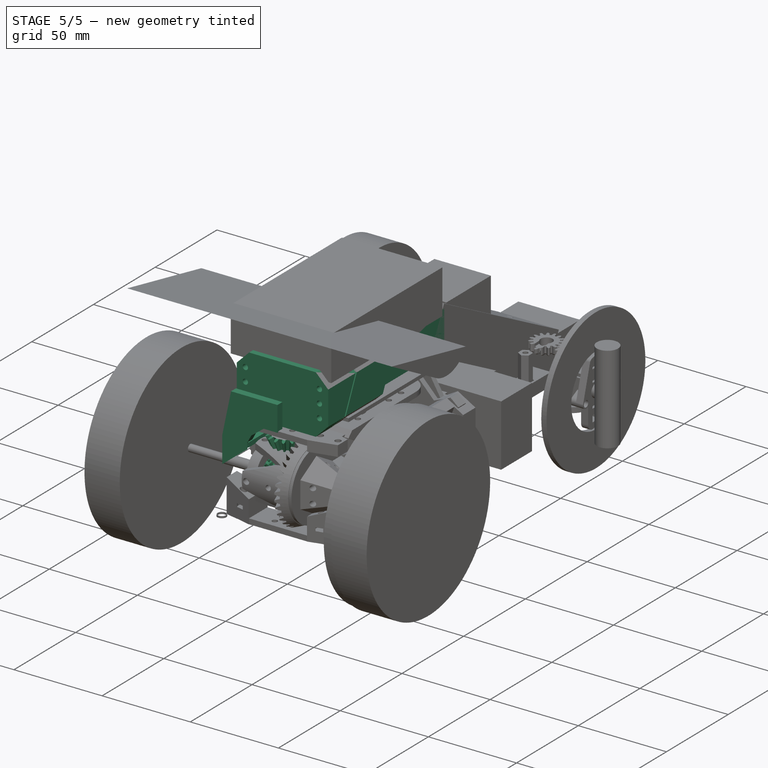
[diagram: stage 5 of 5 — iso view after this stage's code; geometry added in this stage tinted green]
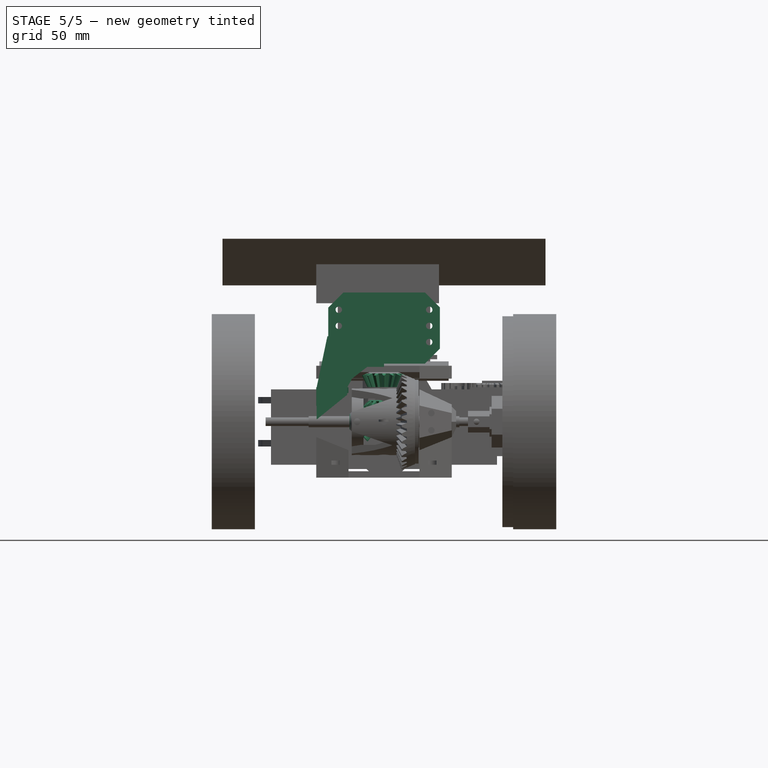
[diagram: stage 5 of 5 — front view after this stage's code; geometry added in this stage tinted green]
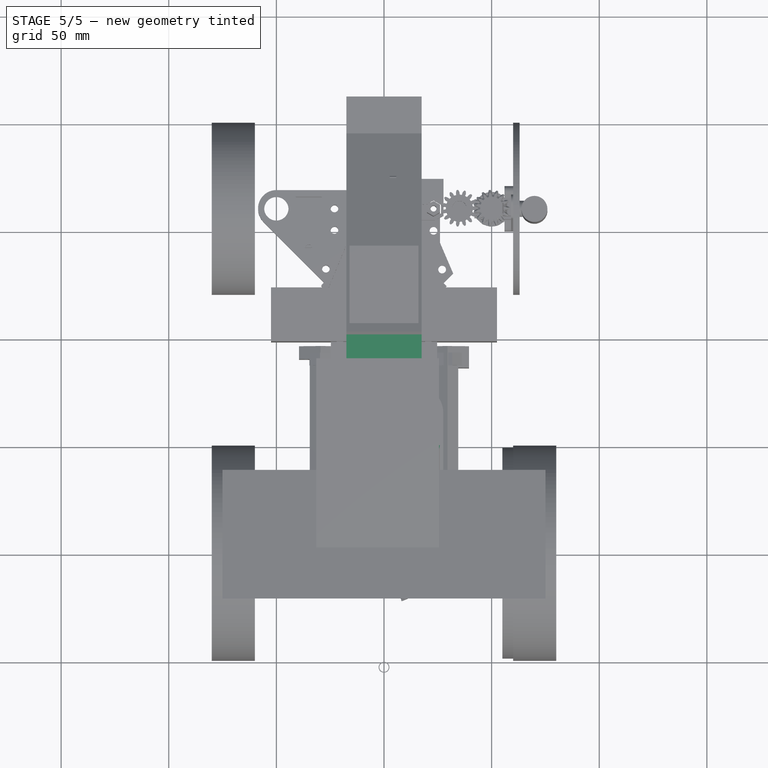
[diagram: stage 5 of 5 — top view after this stage's code; geometry added in this stage tinted green]
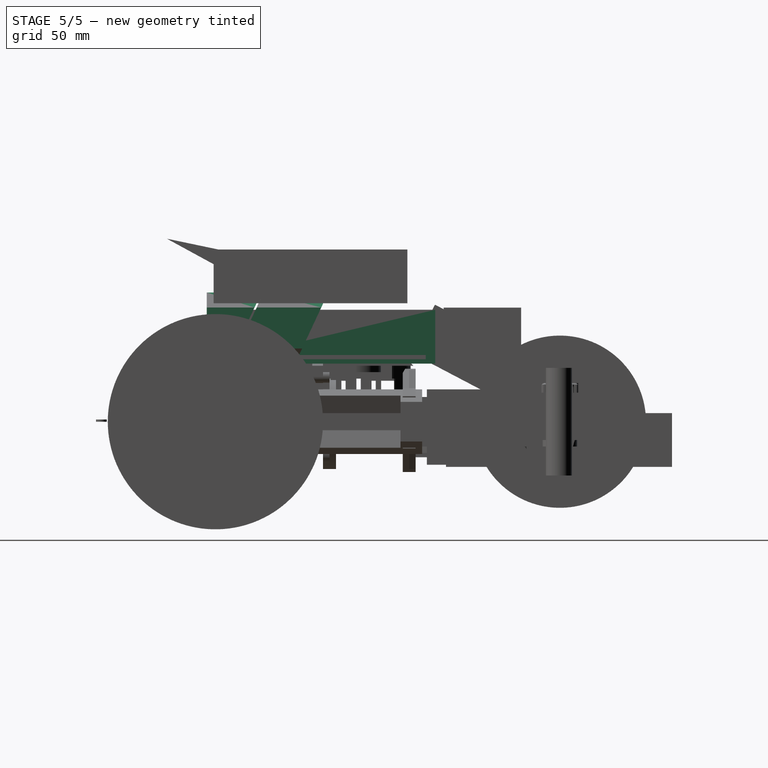
[diagram: stage 5 of 5 — right view after this stage's code; geometry added in this stage tinted green]
FEATURE [Sketcher::SketchObject] Sketch
  sketch-geometry (2):
    g0: ArcOfCircle CenterX=0 CenterY=0 CenterZ=0 NormalX=0 NormalY=0 NormalZ=1 Radius=1.8 StartAngle=2.33458 EndAngle=7.0902
    g1: LineSegment StartX=-1.24499 StartY=1.3 StartZ=0 EndX=1.24499 EndY=1.3 EndZ=0
  constraints (6):
    c: Coincident(g0,g-1)
    c: Coincident(g1,g0)
    c: Coincident(g1,g0)
    c: Horizontal(g1)
    c: DistanceY(g-1,g0) = 1.3
    c: Radius(g0) = 1.8
FEATURE [Part::FeaturePython] BevelGear002  # WARN: FeaturePython — macro-defined, semantics opaque (R4)
  backlash = 0.1
  clearance = 0.5
  height = 5
  m = 1
  numpoints = 6
  pitch_angle = 45
  pressure_angle = 20
  teeth = 15
FEATURE [Part::FeaturePython] BevelGear004  # WARN: FeaturePython — macro-defined, semantics opaque (R4)
  Placement = pos=(0,0,0) rot=(0,1,0;1.5708rad)
  backlash = 0.1
  clearance = 0.5
  height = 5
  m = 1
  numpoints = 6
  pitch_angle = 45
  pressure_angle = 20
  teeth = 15
FEATURE [Sketcher::SketchObject] Sketch001
  sketch-geometry (1):
    g0: Circle CenterX=0 CenterY=0 CenterZ=0 NormalX=0 NormalY=0 NormalZ=1 Radius=1.45
  constraints (2):
    c: Coincident(g0,g-1)
    c: Radius(g0) = 1.45
FEATURE [PartDesign::Pad] Pad001  label="axle cutout"
  Length = 100
  Length2 = 100
  Midplane = true
  Sketch = -> Sketch001
  Type = 0
FEATURE [Sketcher::SketchObject] Sketch002
  Placement = pos=(0,0,10) rot=(0,0,1;0rad)
  sketch-geometry (1):
    g0: Circle CenterX=0 CenterY=0 CenterZ=0 NormalX=0 NormalY=0 NormalZ=1 Radius=1
  constraints (2):
    c: Coincident(g0,g-1)
    c: Radius(g0) = 1
FEATURE [PartDesign::Pad] Pad002  label="bearing cutout"
  Length = 3
  Length2 = 100
  Placement = pos=(0,0,10) rot=(0,0,1;0rad)
  Reversed = true
  Sketch = -> Sketch002
  Type = 0
FEATURE [Sketcher::SketchObject] Sketch003
  sketch-geometry (2):
    g0: Circle CenterX=0 CenterY=0 CenterZ=0 NormalX=0 NormalY=0 NormalZ=1 Radius=1.7
    g1: Circle CenterX=0 CenterY=0 CenterZ=0 NormalX=0 NormalY=0 NormalZ=1 Radius=4
  constraints (4):
    c: Coincident(g0,g-1)
    c: Radius(g0) = 1.7
    c: Coincident(g1,g-1)
    c: Radius(g1) = 4
FEATURE [PartDesign::Pad] Pad003  label="spacer"
  Length = 9
  Length2 = 100
  Midplane = true
  Sketch = -> Sketch003
  Type = 0
FEATURE [Part::MultiFuse] Fusion  label="cutouts"
  Shapes = -> [Pad002,Pad001]
FEATURE [Part::Cut] Cut
  Base = -> BevelGear002
  Tool = -> Fusion
FEATURE [Part::Sphere] Sphere
  Angle1 = -90
  Angle2 = 90
  Angle3 = 360
  Radius = 12
FEATURE [Part::MultiCommon] Common  label="DifferentialGear"
  Shapes = -> [Cut,Sphere]
FEATURE [Part::Sphere] Sphere001
  Angle1 = -90
  Angle2 = 90
  Angle3 = 360
  Radius = 12
FEATURE [Part::MultiCommon] Common001  label="Gear"
  Shapes = -> [BevelGear004,Sphere001]
FEATURE [Part::FeaturePython] BevelGear006  # WARN: FeaturePython — macro-defined, semantics opaque (R4)
  Placement = pos=(0,0,0) rot=(0,0,-1;0.20944rad)
  backlash = 0.1
  clearance = 0.5
  height = 16
  m = 1.25
  numpoints = 6
  pitch_angle = 23.199
  pressure_angle = 20
  teeth = 15
FEATURE [Sketcher::SketchObject] Sketch014
  Placement = pos=(0,0,0) rot=(1,0,0;1.5708rad)
  sketch-geometry (15):
    g0: LineSegment [constr] StartX=0 StartY=0 StartZ=0 EndX=7.01149 EndY=16.3598 EndZ=0
    g1: LineSegment [constr] StartX=7.01149 StartY=16.3598 StartZ=0 EndX=9.37504 EndY=21.8747 EndZ=0
    g2: LineSegment [constr] StartX=0 StartY=0 StartZ=0 EndX=7.6989 EndY=16.0652 EndZ=0
    g3: LineSegment StartX=7.6989 StartY=16.0652 StartZ=0 EndX=10.2942 EndY=21.4807 EndZ=0
    g4: LineSegment [constr] StartX=0 StartY=0 StartZ=0 EndX=3.65753 EndY=17.7973 EndZ=0
    g5: LineSegment [constr] StartX=3.65753 StartY=17.7973 StartZ=0 EndX=4.89048 EndY=23.7967 EndZ=0
    g6: LineSegment [constr] StartX=7.01149 StartY=16.3598 StartZ=0 EndX=7.6989 EndY=16.0652 EndZ=0
    g7: LineSegment StartX=10.2942 StartY=21.4807 StartZ=0 EndX=9.37504 EndY=21.8747 EndZ=0
    g8: LineSegment StartX=9.37504 StartY=21.8747 StartZ=0 EndX=4.89048 EndY=23.7967 EndZ=0
    g9: LineSegment [constr] StartX=7.01149 StartY=16.3598 StartZ=0 EndX=3.65753 EndY=17.7973 EndZ=0
    g10: LineSegment StartX=4.89048 StartY=23.7967 StartZ=0 EndX=0 EndY=23.7967 EndZ=0
    g11: LineSegment [constr] StartX=3.65753 StartY=17.7973 StartZ=0 EndX=0 EndY=17.7973 EndZ=0
    g12: LineSegment StartX=0 StartY=23.7967 StartZ=0 EndX=0 EndY=17.7973 EndZ=0
    g13: LineSegment StartX=7.6989 StartY=16.0652 StartZ=0 EndX=3 EndY=16.0652 EndZ=0
    g14: LineSegment StartX=0 StartY=17.7973 StartZ=0 EndX=3 EndY=16.0652 EndZ=0
  constraints (39):
    c: Coincident(g-1,g0)
    c: Coincident(g0,g1)
    c: Coincident(g-1,g2)
    c: Coincident(g2,g3)
    c: Coincident(g-1,g4)
    c: Coincident(g4,g5)
    c: Parallel(g5,g4)
    c: Parallel(g0,g1)
    c: Parallel(g3,g2)
    c: Angle(g0,g-2) = 0.404899
    c: Coincident(g6,g0)
    c: Coincident(g6,g2)
    c: Coincident(g7,g3)
    c: Coincident(g7,g1)
    c: Coincident(g8,g1)
    c: Coincident(g8,g5)
    c: Coincident(g9,g0)
    c: Coincident(g9,g4)
    c: Parallel(g6,g9)
    c: Parallel(g9,g8)
    c: Parallel(g8,g7)
    c: Coincident(g10,g5)
    c: Horizontal(g10)
    c: Perpendicular(g1,g7)
    c: Distance(g-1,g1) = 23.799
    c: Distance(g1) = 6
    c: Coincident(g11,g4)
    c: Horizontal(g11)
    c: Coincident(g12,g10)
    c: Coincident(g11,g12)
    c: PointOnObject(g10,g-2)
    c: PointOnObject(g11,g-2)
    c: Coincident(g13,g2)
    c: Horizontal(g13)
    c: Coincident(g14,g11)
    c: Coincident(g14,g13)
    c: Distance(g7) = 1
    c: Angle(g14,g12) = 2.0944
    c: DistanceX(g11,g13) = 3
FEATURE [PartDesign::Revolution] Revolution002
  Angle = 360
  Axis = (0,0,1)
  Base = (0,0,0)
  Placement = pos=(0,0,0) rot=(1,0,0;1.5708rad)
  ReferenceAxis = -> Sketch014 [V_Axis]
  Reversed = true
  Sketch = -> Sketch014
FEATURE [Part::MultiCommon] Common004  label="InputGear"
  Shapes = -> [Revolution002,BevelGear006]
FEATURE [Sketcher::SketchObject] Sketch015
  Placement = pos=(5,0,0) rot=(0.57735,0.57735,0.57735;2.0944rad)
  sketch-geometry (4):
    g0: LineSegment StartX=0.75 StartY=2.90474 StartZ=0 EndX=0.75 EndY=1 EndZ=0
    g1: LineSegment StartX=0.75 StartY=1 StartZ=0 EndX=-0.75 EndY=1 EndZ=0
    g2: LineSegment StartX=-0.75 StartY=1 StartZ=0 EndX=-0.75 EndY=2.90474 EndZ=0
    g3: ArcOfCircle CenterX=0 CenterY=0 CenterZ=0 NormalX=0 NormalY=0 NormalZ=1 Radius=3 StartAngle=1.31812 EndAngle=1.82348
  constraints (12):
    c: Coincident(g0,g1)
    c: Coincident(g1,g2)
    c: Horizontal(g1)
    c: Vertical(g0)
    c: Vertical(g2)
    c: Symmetric(g1,g0,g-2)
    c: Coincident(g3,g-1)
    c: Coincident(g0,g3)
    c: Coincident(g2,g3)
    c: Radius(g3) = 3
    c: DistanceX(g1,g1) = 1.5
    c: DistanceY(g-1,g1) = 1
FEATURE [Sketcher::SketchObject] Sketch016
  Placement = pos=(6,0,0) rot=(0.57735,0.57735,0.57735;2.0944rad)
  sketch-geometry (1):
    g0: Circle CenterX=0 CenterY=0 CenterZ=0 NormalX=0 NormalY=0 NormalZ=1 Radius=0.5
  constraints (2):
    c: Coincident(g0,g-1)
    c: Radius(g0) = 0.5
FEATURE [PartDesign::Pad] Pad012  label="AxleCutout"
  Length = 100
  Length2 = 100
  Placement = pos=(6,0,0) rot=(0.57735,0.57735,0.57735;2.0944rad)
  Sketch = -> Sketch016
  Type = 0
FEATURE [PartDesign::Pad] Pad013  label="Key"
  Length = 7.5
  Length2 = 100
  Placement = pos=(5,0,0) rot=(0.57735,0.57735,0.57735;2.0944rad)
  Sketch = -> Sketch015
  Type = 0
FEATURE [Sketcher::SketchObject] Sketch017
  Placement = pos=(5,0,0) rot=(0.57735,0.57735,0.57735;2.0944rad)
  sketch-geometry (1):
    g0: Circle CenterX=0 CenterY=0 CenterZ=0 NormalX=0 NormalY=0 NormalZ=1 Radius=2.6
  constraints (2):
    c: Coincident(g0,g-1)
    c: Radius(g0) = 2.6
FEATURE [PartDesign::Pad] Pad014  label="AxleSheath"
  Length = 30
  Length2 = 100
  Placement = pos=(5,0,0) rot=(0.57735,0.57735,0.57735;2.0944rad)
  Sketch = -> Sketch017
  Type = 0
FEATURE [Part::MultiFuse] Fusion003  label="Gear + sheath"
  Shapes = -> [Pad014,Common001]
FEATURE [Part::Cut] Cut005  label=" Gear - axle cutout"
  Base = -> Fusion003
  Tool = -> Pad012
FEATURE [Part::MultiFuse] Fusion004  label="outputGear (old)"
  Shapes = -> [Cut005,Pad013]
FEATURE [Sketcher::SketchObject] Sketch033
  Placement = pos=(15.75,0,0) rot=(0.57735,0.57735,0.57735;2.0944rad)
  sketch-geometry (2):
    g0: Circle CenterX=0 CenterY=0 CenterZ=0 NormalX=0 NormalY=0 NormalZ=1 Radius=3.5
    g1: Circle CenterX=0 CenterY=0 CenterZ=0 NormalX=0 NormalY=0 NormalZ=1 Radius=12
  constraints (4):
    c: Coincident(g0,g-1)
    c: Coincident(g1,g-1)
    c: Radius(g0) = 3.5
    c: Radius(g1) = 12
FEATURE [PartDesign::Pad] Pad025  label="Spacer"
  Length = 1.25
  Length2 = 100
  Midplane = true
  Placement = pos=(15.75,0,0) rot=(0.57735,0.57735,0.57735;2.0944rad)
  Sketch = -> Sketch033
  Type = 0
FEATURE [Sketcher::SketchObject] Sketch035
  Placement = pos=(-10,0,0) rot=(0.57735,0.57735,0.57735;2.0944rad)
  sketch-geometry (2):
    g0: Circle CenterX=0 CenterY=0 CenterZ=0 NormalX=0 NormalY=0 NormalZ=1 Radius=3
    g1: Circle CenterX=0 CenterY=0 CenterZ=0 NormalX=0 NormalY=0 NormalZ=1 Radius=5
  constraints (4):
    c: Coincident(g0,g-1)
    c: Coincident(g1,g-1)
    c: Radius(g0) = 3
    c: Radius(g1) = 5
FEATURE [PartDesign::Pad] Pad027  label="spacer"
  Length = 6
  Length2 = 100
  Placement = pos=(-10,0,0) rot=(0.57735,0.57735,0.57735;2.0944rad)
  Reversed = true
  Sketch = -> Sketch035
  Type = 0
FEATURE [PartDesign::Chamfer] Chamfer001
  Base = -> Pad027 [Edge3]
  Placement = pos=(-10,0,0) rot=(0.57735,0.57735,0.57735;2.0944rad)
  Size = 1.5
FEATURE [PartDesign::Pad] Pad  label="Motor Shaft Cutout"
  Length = 100
  Length2 = 100
  Sketch = -> Sketch
  Type = 0
FEATURE [Sketcher::SketchObject] Sketch037
  Placement = pos=(16.5,0,0) rot=(0.57735,0.57735,0.57735;2.0944rad)
  sketch-geometry (10):
    g0: LineSegment [constr] StartX=15.25 StartY=-5e-12 StartZ=0 EndX=7.625 EndY=13.2069 EndZ=0
    g1: LineSegment StartX=7.625 StartY=13.2069 StartZ=0 EndX=-7.625 EndY=13.2069 EndZ=0
    g2: LineSegment [constr] StartX=-7.625 StartY=13.2069 StartZ=0 EndX=-15.25 EndY=2.1e-11 EndZ=0
    g3: LineSegment [constr] StartX=-15.25 StartY=2.1e-11 StartZ=0 EndX=-7.625 EndY=-13.2069 EndZ=0
    g4: LineSegment [constr] StartX=-7.625 StartY=-13.2069 StartZ=0 EndX=7.625 EndY=-13.2069 EndZ=0
    g5: LineSegment [constr] StartX=7.625 StartY=-13.2069 StartZ=0 EndX=15.25 EndY=-5e-12 EndZ=0
    g6: Circle [constr] CenterX=0 CenterY=0 CenterZ=0 NormalX=0 NormalY=0 NormalZ=1 Radius=15.25
    g7: LineSegment StartX=-7.625 StartY=13.2069 StartZ=0 EndX=-7.625 EndY=16 EndZ=0
    g8: LineSegment StartX=-7.625 StartY=16 StartZ=0 EndX=7.625 EndY=16 EndZ=0
    g9: LineSegment StartX=7.625 StartY=16 StartZ=0 EndX=7.625 EndY=13.2069 EndZ=0
  constraints (25):
    c: Coincident(g0,g1)
    c: Coincident(g1,g2)
    c: Coincident(g2,g3)
    c: Coincident(g3,g4)
    c: Coincident(g4,g5)
    c: Coincident(g5,g0)
    c: Equal(g0, g1-g5) x5
    c: PointOnObject(g0,g6)
    c: PointOnObject(g1,g6)
    c: PointOnObject(g2,g6)
    c: PointOnObject(g3,g6)
    c: PointOnObject(g4,g6)
    c: PointOnObject(g5,g6)
    c: Coincident(g6,g-1)
    c: Radius(g6) = 15.25
    c: Horizontal(g1)
    c: Coincident(g1,g7)
    c: Vertical(g7)
    c: Coincident(g7,g8)
    c: Horizontal(g8)
    c: Coincident(g8,g9)
    c: Coincident(g9,g0)
    c: Vertical(g9)
    c: DistanceY(g-1,g7) = 16
    c: DistanceY(g7,g7) = 2.79311
FEATURE [Sketcher::SketchObject] Sketch038
  Placement = pos=(31.5,0,0) rot=(0.57735,0.57735,0.57735;2.0944rad)
  sketch-geometry (11):
    g0: LineSegment [constr] StartX=8.25 StartY=-1e-12 StartZ=0 EndX=4.125 EndY=7.14471 EndZ=0
    g1: LineSegment StartX=4.125 StartY=7.14471 StartZ=0 EndX=-4.125 EndY=7.14471 EndZ=0
    g2: LineSegment [constr] StartX=-4.125 StartY=7.14471 StartZ=0 EndX=-8.25 EndY=0 EndZ=0
    g3: LineSegment [constr] StartX=-8.25 StartY=0 StartZ=0 EndX=-4.125 EndY=-7.14471 EndZ=0
    g4: LineSegment [constr] StartX=-4.125 StartY=-7.14471 StartZ=0 EndX=4.125 EndY=-7.14471 EndZ=0
    g5: LineSegment [constr] StartX=4.125 StartY=-7.14471 StartZ=0 EndX=8.25 EndY=-1e-12 EndZ=0
    g6: Circle [constr] CenterX=0 CenterY=0 CenterZ=0 NormalX=0 NormalY=0 NormalZ=1 Radius=8.25
    g7: Circle [constr] CenterX=0 CenterY=0 CenterZ=0 NormalX=0 NormalY=0 NormalZ=1 Radius=5.5
    g8: LineSegment StartX=-4.125 StartY=7.14471 StartZ=0 EndX=-4.125 EndY=16 EndZ=0
    g9: LineSegment StartX=-4.125 StartY=16 StartZ=0 EndX=4.125 EndY=16 EndZ=0
    g10: LineSegment StartX=4.125 StartY=16 StartZ=0 EndX=4.125 EndY=7.14471 EndZ=0
  constraints (26):
    c: Coincident(g0,g1)
    c: Coincident(g1,g2)
    c: Coincident(g2,g3)
    c: Coincident(g3,g4)
    c: Coincident(g4,g5)
    c: Coincident(g5,g0)
    c: Equal(g0, g1-g5) x5
    c: PointOnObject(g0,g6)
    c: PointOnObject(g1,g6)
    c: PointOnObject(g2,g6)
    c: PointOnObject(g3,g6)
    c: PointOnObject(g4,g6)
    c: PointOnObject(g5,g6)
    c: Coincident(g6,g-1)
    c: Radius(g6) = 8.25
    c: Coincident(g7,g-1)
    c: Radius(g7) = 5.5
    c: Horizontal(g1)
    c: Coincident(g1,g8)
    c: Vertical(g8)
    c: Coincident(g8,g9)
    c: Horizontal(g9)
    c: Coincident(g9,g10)
    c: Coincident(g10,g0)
    c: Vertical(g10)
    c: DistanceY(g-1,g8) = 16
FEATURE [Part::Loft] Loft001  label="MountingBlock Mount"
  Closed = false
  Ruled = true
  Sections = -> [Sketch037,Sketch038]
  Solid = true
FEATURE [Sketcher::SketchObject] Sketch040
  Placement = pos=(0,0,16) rot=(0,0,1;0rad)
  sketch-geometry (2):
    g0: Circle CenterX=22 CenterY=4 CenterZ=0 NormalX=0 NormalY=0 NormalZ=1 Radius=1.5
    g1: Circle CenterX=22 CenterY=-4 CenterZ=0 NormalX=0 NormalY=0 NormalZ=1 Radius=1.5
  constraints (5):
    c: Symmetric(g0,g1,g-1)
    c: DistanceY(g1,g0) = 8
    c: DistanceX(g-1,g0) = 22
    c: Radius(g1) = 1.5
    c: Equal(g1,g0)
FEATURE [PartDesign::Pad] Pad029  label="Screw Cutouts"
  Length = 20
  Length2 = 100
  Placement = pos=(0,0,16) rot=(0,0,1;0rad)
  Reversed = true
  Sketch = -> Sketch040
  Type = 0
FEATURE [Sketcher::SketchObject] Sketch041
  Placement = pos=(0,-8,0) rot=(1,0,0;1.5708rad)
  sketch-geometry (9):
    g0: LineSegment StartX=31.2893 StartY=0 StartZ=0 EndX=31.2893 EndY=15.9018 EndZ=0
    g1: LineSegment StartX=31.2893 StartY=15.9018 StartZ=0 EndX=26.2972 EndY=39.7088 EndZ=0
    g2: LineSegment StartX=26.2972 StartY=39.7088 StartZ=0 EndX=0 EndY=39.7088 EndZ=0
    g3: LineSegment StartX=0 StartY=39.7088 StartZ=0 EndX=0 EndY=25.4629 EndZ=0
    g4: LineSegment StartX=0 StartY=25.4629 StartZ=0 EndX=7.79413 EndY=25.4629 EndZ=0
    g5: LineSegment StartX=7.79413 StartY=25.4629 StartZ=0 EndX=14.8353 EndY=20.0523 EndZ=0
    g6: LineSegment StartX=14.8353 StartY=20.0523 StartZ=0 EndX=17.1329 EndY=15.8277 EndZ=0
    g7: LineSegment StartX=17.1329 StartY=15.8277 StartZ=0 EndX=17.1329 EndY=0 EndZ=0
    g8: LineSegment StartX=17.1329 StartY=0 StartZ=0 EndX=31.2893 EndY=0 EndZ=0
  constraints (17):
    c: PointOnObject(g0,g-1)
    c: Vertical(g0)
    c: Coincident(g0,g1)
    c: Coincident(g1,g2)
    c: Horizontal(g2)
    c: Coincident(g2,g3)
    c: Vertical(g3)
    c: Coincident(g3,g4)
    c: Horizontal(g4)
    c: Coincident(g4,g5)
    c: Coincident(g5,g6)
    c: Coincident(g6,g7)
    c: Vertical(g7)
    c: Coincident(g7,g8)
    c: Coincident(g0,g8)
    c: PointOnObject(g7,g-1)
    c: PointOnObject(g2,g-2)
FEATURE [PartDesign::Pad] Pad030  label="Base Plate"
  Length = 4
  Length2 = 100
  Placement = pos=(0,-8,0) rot=(1,0,0;1.5708rad)
  Reversed = true
  Sketch = -> Sketch041
  Type = 0
FEATURE [Sketcher::SketchObject] Sketch042
  Placement = pos=(16.5,0,0) rot=(0.57735,0.57735,0.57735;2.0944rad)
  sketch-geometry (7):
    g0: LineSegment StartX=15.5 StartY=0 StartZ=0 EndX=7.75 EndY=13.4234 EndZ=0
    g1: LineSegment StartX=7.75 StartY=13.4234 StartZ=0 EndX=-7.75 EndY=13.4234 EndZ=0
    g2: LineSegment StartX=-7.75 StartY=13.4234 StartZ=0 EndX=-15.5 EndY=0 EndZ=0
    g3: LineSegment StartX=-15.5 StartY=0 StartZ=0 EndX=-7.75 EndY=-13.4234 EndZ=0
    g4: LineSegment StartX=-7.75 StartY=-13.4234 StartZ=0 EndX=7.75 EndY=-13.4234 EndZ=0
    g5: LineSegment StartX=7.75 StartY=-13.4234 StartZ=0 EndX=15.5 EndY=0 EndZ=0
    g6: Circle [constr] CenterX=0 CenterY=0 CenterZ=0 NormalX=0 NormalY=0 NormalZ=1 Radius=15.5
  constraints (16):
    c: Coincident(g0,g1)
    c: Coincident(g1,g2)
    c: Coincident(g2,g3)
    c: Coincident(g3,g4)
    c: Coincident(g4,g5)
    c: Coincident(g5,g0)
    c: Equal(g0, g1-g5) x5
    c: PointOnObject(g0,g6)
    c: PointOnObject(g1,g6)
    c: PointOnObject(g2,g6)
    c: PointOnObject(g3,g6)
    c: PointOnObject(g4,g6)
    c: PointOnObject(g5,g6)
    c: Coincident(g6,g-1)
    c: Radius(g6) = 15.5
    c: Horizontal(g1)
FEATURE [Sketcher::SketchObject] Sketch043
  Placement = pos=(31.5,0,0) rot=(0.57735,0.57735,0.57735;2.0944rad)
  sketch-geometry (8):
    g0: LineSegment StartX=8.5 StartY=0 StartZ=0 EndX=4.25 EndY=7.36122 EndZ=0
    g1: LineSegment StartX=4.25 StartY=7.36122 StartZ=0 EndX=-4.25 EndY=7.36122 EndZ=0
    g2: LineSegment StartX=-4.25 StartY=7.36122 StartZ=0 EndX=-8.5 EndY=0 EndZ=0
    g3: LineSegment StartX=-8.5 StartY=0 StartZ=0 EndX=-4.25 EndY=-7.36122 EndZ=0
    g4: LineSegment StartX=-4.25 StartY=-7.36122 StartZ=0 EndX=4.25 EndY=-7.36122 EndZ=0
    g5: LineSegment StartX=4.25 StartY=-7.36122 StartZ=0 EndX=8.5 EndY=0 EndZ=0
    g6: Circle [constr] CenterX=0 CenterY=0 CenterZ=0 NormalX=0 NormalY=0 NormalZ=1 Radius=8.5
    g7: Circle [constr] CenterX=0 CenterY=0 CenterZ=0 NormalX=0 NormalY=0 NormalZ=1 Radius=5.5
  constraints (18):
    c: Coincident(g0,g1)
    c: Coincident(g1,g2)
    c: Coincident(g2,g3)
    c: Coincident(g3,g4)
    c: Coincident(g4,g5)
    c: Coincident(g5,g0)
    c: Equal(g0, g1-g5) x5
    c: PointOnObject(g0,g6)
    c: PointOnObject(g1,g6)
    c: PointOnObject(g2,g6)
    c: PointOnObject(g3,g6)
    c: PointOnObject(g4,g6)
    c: PointOnObject(g5,g6)
    c: Coincident(g6,g-1)
    c: Radius(g6) = 8.5
    c: Coincident(g7,g-1)
    c: Radius(g7) = 5.5
    c: Horizontal(g1)
FEATURE [Part::Loft] Loft002  label="MountingBlock Cutout"
  Closed = false
  Ruled = true
  Sections = -> [Sketch042,Sketch043]
  Solid = true
FEATURE [Sketcher::SketchObject] Sketch045
  Placement = pos=(0,0,16) rot=(0,0,1;0rad)
  sketch-geometry (2):
    g0: Circle CenterX=22 CenterY=4 CenterZ=0 NormalX=0 NormalY=0 NormalZ=1 Radius=3
    g1: Circle CenterX=22 CenterY=-4 CenterZ=0 NormalX=0 NormalY=0 NormalZ=1 Radius=3
  constraints (5):
    c: Symmetric(g0,g1,g-1)
    c: DistanceY(g1,g0) = 8
    c: DistanceX(g-1,g0) = 22
    c: Radius(g1) = 3
    c: Equal(g1,g0)
FEATURE [PartDesign::Pad] Pad031  label="ScrewHead Cutouts"
  Length = 10
  Length2 = 100
  Placement = pos=(0,0,16) rot=(0,0,1;0rad)
  Sketch = -> Sketch045
  Type = 0
FEATURE [Part::MultiFuse] Fusion004008  label="cutouts"
  Shapes = -> [Pad031,Loft002,Pad029]
FEATURE [Part::MultiFuse] Fusion004009  label="base"
  Shapes = -> [Pad030,Loft001]
FEATURE [Part::Cut] Cut007003  label="Base Plate"
  Base = -> Fusion004009
  Tool = -> Fusion004008
FEATURE [Part::Mirroring] Part__Mirroring  label="Base Plate (Mirror #1)"
  Base = (0,0,0)
  Normal = (1,0,0)
  Source = -> Cut007003
FEATURE [Sketcher::SketchObject] Sketch046  label="MotorVisual"
  Placement = pos=(0,0,0) rot=(0.57735,0.57735,0.57735;2.0944rad)
  sketch-geometry (9):
    g0: LineSegment [constr] StartX=0 StartY=0 StartZ=0 EndX=82.25 EndY=-1e-12 EndZ=0
    g1: LineSegment StartX=30 StartY=18 StartZ=0 EndX=30 EndY=-18 EndZ=0
    g2: LineSegment StartX=30 StartY=-18 StartZ=0 EndX=82.25 EndY=-18 EndZ=0
    g3: LineSegment StartX=82.25 StartY=-18 StartZ=0 EndX=82.25 EndY=18 EndZ=0
    g4: LineSegment StartX=82.25 StartY=18 StartZ=0 EndX=30 EndY=18 EndZ=0
    g5: Circle [constr] CenterX=0 CenterY=0 CenterZ=0 NormalX=0 NormalY=0 NormalZ=1 Radius=16
    g6: GeomPoint [constr] X=30 Y=0 Z=0
    g7: GeomPoint [constr] X=16 Y=0 Z=0
    g8: GeomPoint [constr] X=79.25 Y=-18 Z=0
  constraints (24):
    c: Coincident(g0,g-1)
    c: Coincident(g1,g2)
    c: Coincident(g2,g3)
    c: Coincident(g3,g4)
    c: Coincident(g4,g1)
    c: Perpendicular(g1,g4)
    c: Parallel(g4,g2)
    c: Parallel(g3,g1)
    c: Distance(g3) = 36
    c: Distance(g4) = 52.25
    c: Symmetric(g3,g2,g0)
    c: PointOnObject(g0,g3)
    c: Coincident(g5,g-1)
    c: Radius(g5) = 16
    c: PointOnObject(g6,g1)
    c: PointOnObject(g6,g0)
    c: PointOnObject(g7,g0)
    c: PointOnObject(g7,g5)
    c: Distance(g7,g6) = 14
    c: Angle(g0,g-2) = 1.5708
    c: DistanceX(g6) = 30
    c: DistanceY(g6) = 0
    c: PointOnObject(g8,g2)
    c: Distance(g8,g2) = 3
FEATURE [Sketcher::SketchObject] Sketch047
  Placement = pos=(0,-4,0) rot=(1,0,0;1.5708rad)
  sketch-geometry (4):
    g0: LineSegment StartX=-25.8734 StartY=60.0396 StartZ=0 EndX=25.984 EndY=60.0396 EndZ=0
    g1: LineSegment StartX=25.984 StartY=60.0396 StartZ=0 EndX=25.984 EndY=26.9791 EndZ=0
    g2: LineSegment StartX=25.984 StartY=26.9791 StartZ=0 EndX=-25.8734 EndY=26.9791 EndZ=0
    g3: LineSegment StartX=-25.8734 StartY=26.9791 StartZ=0 EndX=-25.8734 EndY=60.0396 EndZ=0
  constraints (8):
    c: Coincident(g0,g1)
    c: Coincident(g1,g2)
    c: Coincident(g2,g3)
    c: Coincident(g3,g0)
    c: Horizontal(g0)
    c: Horizontal(g2)
    c: Vertical(g1)
    c: Vertical(g3)
FEATURE [PartDesign::Pad] Pad032  label="MotorMountBlockBase"
  Length = 10
  Length2 = 100
  Placement = pos=(0,-4,0) rot=(1,0,0;1.5708rad)
  Reversed = true
  Sketch = -> Sketch047
  Type = 0
FEATURE [PartDesign::Draft] Draft  label="MotorMountBlockBase (draft)"
  Angle = 25
  Base = -> Pad032 [Face6]
  NeutralPlane = -> Pad032 [Face3]
  Placement = pos=(0,-4,0) rot=(1,0,0;1.5708rad)
  PullDirection = -> Pad032 [Edge12]
  Reversed = true
FEATURE [PartDesign::Chamfer] Chamfer002  label="MotorMountBlockBase (chamfer)"
  Base = -> Draft [Edge1,Edge2,Edge8,Edge5]
  Placement = pos=(0,-4,0) rot=(1,0,0;1.5708rad)
  Size = 7
FEATURE [Part::Cylinder] Cylinder  label="AxleStubCutout"
  Angle = 360
  Height = 80
  Placement = pos=(0,0,0) rot=(-1,0,0;0.436332rad)
  Radius = 6
FEATURE [Part::Cylinder] Cylinder002  label="MotorBase"
  Angle = 360
  Height = 52.25
  Placement = pos=(0,12.6785,27.1892) rot=(-1,0,0;0.436332rad)
  Radius = 18
FEATURE [PartDesign::Chamfer] Chamfer003  label="MotorBas (chamfer)"
  Base = -> Cylinder002 [Edge3,Edge1]
  Placement = pos=(0,12.6785,27.1892) rot=(-1,0,0;0.436332rad)
  Size = 3
FEATURE [Part::MultiFuse] Fusion004010  label="MotorCutout"
  Shapes = -> [Cylinder,Chamfer003]
FEATURE [Part::Cut] Cut007004  label="MotorMountBlock"
  Base = -> Chamfer002
  Tool = -> Fusion004010
FEATURE [Sketcher::SketchObject] Sketch048
  Placement = pos=(0,7,0) rot=(1,0,0;1.5708rad)
  sketch-geometry (4):
    g0: LineSegment StartX=-25.8734 StartY=60.0396 StartZ=0 EndX=25.984 EndY=60.0396 EndZ=0
    g1: LineSegment StartX=25.984 StartY=60.0396 StartZ=0 EndX=25.984 EndY=26.9791 EndZ=0
    g2: LineSegment StartX=25.984 StartY=26.9791 StartZ=0 EndX=-25.8734 EndY=26.9791 EndZ=0
    g3: LineSegment StartX=-25.8734 StartY=26.9791 StartZ=0 EndX=-25.8734 EndY=60.0396 EndZ=0
  constraints (8):
    c: Coincident(g0,g1)
    c: Coincident(g1,g2)
    c: Coincident(g2,g3)
    c: Coincident(g3,g0)
    c: Horizontal(g0)
    c: Horizontal(g2)
    c: Vertical(g1)
    c: Vertical(g3)
FEATURE [PartDesign::Pad] Pad033  label="MotorMountBlockTopBase"
  Length = 30
  Length2 = 100
  Placement = pos=(0,7,0) rot=(1,0,0;1.5708rad)
  Reversed = true
  Sketch = -> Sketch048
  Type = 0
FEATURE [PartDesign::Draft] Draft001  label="MotorMountBlockTopBase (draft)"
  Angle = 25
  Base = -> Pad033 [Face6]
  NeutralPlane = -> Pad033 [Face3]
  Placement = pos=(0,7,0) rot=(1,0,0;1.5708rad)
  Reversed = true
FEATURE [PartDesign::Draft] Draft002  label="MotorMountBlockTopBase (draft)"
  Angle = 25
  Base = -> Draft001 [Face5]
  NeutralPlane = -> Draft001 [Face3]
  Placement = pos=(0,7,0) rot=(1,0,0;1.5708rad)
FEATURE [PartDesign::Chamfer] Chamfer004  label="MotorMountBlockTopBase (chamfer)"
  Base = -> Draft002 [Edge5,Edge2,Edge1,Edge8]
  Placement = pos=(0,7,0) rot=(1,0,0;1.5708rad)
  Size = 7
FEATURE [Part::Cut] Cut007005  label="MotorMountBlockTop"
  Base = -> Chamfer004
  Tool = -> Fusion004010
FEATURE [Sketcher::SketchObject] Sketch049
  Placement = pos=(0,-9,0) rot=(1,0,0;1.5708rad)
  sketch-geometry (10):
    g0: Circle CenterX=-21 CenterY=52 CenterZ=0 NormalX=0 NormalY=0 NormalZ=1 Radius=1.5
    g1: Circle CenterX=-21 CenterY=37 CenterZ=0 NormalX=0 NormalY=0 NormalZ=1 Radius=1.5
    g2: Circle CenterX=21 CenterY=52 CenterZ=0 NormalX=0 NormalY=0 NormalZ=1 Radius=1.5
    g3: Circle CenterX=21 CenterY=37 CenterZ=0 NormalX=0 NormalY=0 NormalZ=1 Radius=1.5
    g4: LineSegment [constr] StartX=-21 StartY=52 StartZ=0 EndX=21 EndY=52 EndZ=0
    g5: LineSegment [constr] StartX=21 StartY=52 StartZ=0 EndX=21 EndY=37 EndZ=0
    g6: LineSegment [constr] StartX=21 StartY=37 StartZ=0 EndX=-21 EndY=37 EndZ=0
    g7: LineSegment [constr] StartX=-21 StartY=37 StartZ=0 EndX=-21 EndY=52 EndZ=0
    g8: Circle CenterX=-21 CenterY=44.5 CenterZ=0 NormalX=0 NormalY=0 NormalZ=1 Radius=1.5
    g9: Circle CenterX=21 CenterY=44.5 CenterZ=0 NormalX=0 NormalY=0 NormalZ=1 Radius=1.5
  constraints (26):
    c: Radius(g0) = 1.5
    c: Equal(g0,g1)
    c: Equal(g0,g2)
    c: Equal(g0,g3)
    c: Coincident(g4,g5)
    c: Coincident(g5,g6)
    c: Coincident(g6,g7)
    c: Coincident(g7,g4)
    c: Horizontal(g4)
    c: Horizontal(g6)
    c: Vertical(g5)
    c: Vertical(g7)
    c: Coincident(g2,g4)
    c: Coincident(g5,g3)
    c: Coincident(g0,g4)
    c: Coincident(g1,g6)
    c: Symmetric(g0,g2,g-2)
    c: Distance(g4) = 42
    c: Distance(g5) = 15
    c: DistanceY(g-1,g0) = 52
    c: PointOnObject(g8,g7)
    c: PointOnObject(g9,g5)
    c: Equal(g9,g8)
    c: Equal(g8,g1)
    c: Symmetric(g8,g9,g-2)
    c: DistanceY(g9,g2) = 7.5
FEATURE [PartDesign::Pad] Pad035  label="BaseMountScrew"
  Length = 100
  Length2 = 100
  Placement = pos=(0,-9,0) rot=(1,0,0;1.5708rad)
  Reversed = true
  Sketch = -> Sketch049
  Type = 0
FEATURE [Sketcher::SketchObject] Sketch051
  Placement = pos=(0,-2,0) rot=(1,0,0;1.5708rad)
  sketch-geometry (10):
    g0: Circle CenterX=-21 CenterY=52 CenterZ=0 NormalX=0 NormalY=0 NormalZ=1 Radius=1.5
    g1: Circle CenterX=-21 CenterY=37 CenterZ=0 NormalX=0 NormalY=0 NormalZ=1 Radius=1.5
    g2: Circle CenterX=21 CenterY=52 CenterZ=0 NormalX=0 NormalY=0 NormalZ=1 Radius=1.5
    g3: Circle CenterX=21 CenterY=37 CenterZ=0 NormalX=0 NormalY=0 NormalZ=1 Radius=1.5
    g4: LineSegment [constr] StartX=-21 StartY=52 StartZ=0 EndX=21 EndY=52 EndZ=0
    g5: LineSegment [constr] StartX=21 StartY=52 StartZ=0 EndX=21 EndY=37 EndZ=0
    g6: LineSegment [constr] StartX=21 StartY=37 StartZ=0 EndX=-21 EndY=37 EndZ=0
    g7: LineSegment [constr] StartX=-21 StartY=37 StartZ=0 EndX=-21 EndY=52 EndZ=0
    g8: Circle CenterX=-21 CenterY=44.5 CenterZ=0 NormalX=0 NormalY=0 NormalZ=1 Radius=1.7
    g9: Circle CenterX=21 CenterY=44.5 CenterZ=0 NormalX=0 NormalY=0 NormalZ=1 Radius=1.7
  constraints (26):
    c: Radius(g0) = 1.5
    c: Equal(g0,g1)
    c: Equal(g0,g2)
    c: Equal(g0,g3)
    c: Coincident(g4,g5)
    c: Coincident(g5,g6)
    c: Coincident(g6,g7)
    c: Coincident(g7,g4)
    c: Horizontal(g4)
    c: Horizontal(g6)
    c: Vertical(g5)
    c: Vertical(g7)
    c: Coincident(g2,g4)
    c: Coincident(g5,g3)
    c: Coincident(g0,g4)
    c: Coincident(g1,g6)
    c: Symmetric(g0,g2,g-2)
    c: Distance(g4) = 42
    c: Distance(g5) = 15
    c: DistanceY(g-1,g0) = 52
    c: PointOnObject(g8,g7)
    c: PointOnObject(g9,g5)
    c: Symmetric(g8,g9,g-2)
    c: DistanceY(g9,g2) = 7.5
    c: Equal(g8,g9)
    c: Radius(g8) = 1.7
FEATURE [PartDesign::Pad] Pad036  label="MountScrew"
  Length = 100
  Length2 = 100
  Placement = pos=(0,-2,0) rot=(1,0,0;1.5708rad)
  Reversed = true
  Sketch = -> Sketch051
  Type = 0
FEATURE [Part::Cut] Cut007007  label="MotorMountBlock"
  Base = -> Cut007004
  Tool = -> Pad035
FEATURE [Sketcher::SketchObject] Sketch052
  Placement = pos=(0,19,0) rot=(1,0,0;1.5708rad)
  sketch-geometry (10):
    g0: Circle [constr] CenterX=-21 CenterY=52 CenterZ=0 NormalX=0 NormalY=0 NormalZ=1 Radius=1.5
    g1: Circle [constr] CenterX=-21 CenterY=37 CenterZ=0 NormalX=0 NormalY=0 NormalZ=1 Radius=1.5
    g2: Circle [constr] CenterX=21 CenterY=52 CenterZ=0 NormalX=0 NormalY=0 NormalZ=1 Radius=1.5
    g3: Circle [constr] CenterX=21 CenterY=37 CenterZ=0 NormalX=0 NormalY=0 NormalZ=1 Radius=1.5
    g4: LineSegment [constr] StartX=-21 StartY=52 StartZ=0 EndX=21 EndY=52 EndZ=0
    g5: LineSegment [constr] StartX=21 StartY=52 StartZ=0 EndX=21 EndY=37 EndZ=0
    g6: LineSegment [constr] StartX=21 StartY=37 StartZ=0 EndX=-21 EndY=37 EndZ=0
    g7: LineSegment [constr] StartX=-21 StartY=37 StartZ=0 EndX=-21 EndY=52 EndZ=0
    g8: Circle CenterX=-21 CenterY=44.5 CenterZ=0 NormalX=0 NormalY=0 NormalZ=1 Radius=3.5
    g9: Circle CenterX=21 CenterY=44.5 CenterZ=0 NormalX=0 NormalY=0 NormalZ=1 Radius=3.5
  constraints (26):
    c: Radius(g0) = 1.5
    c: Equal(g0,g1)
    c: Equal(g0,g2)
    c: Equal(g0,g3)
    c: Coincident(g4,g5)
    c: Coincident(g5,g6)
    c: Coincident(g6,g7)
    c: Coincident(g7,g4)
    c: Horizontal(g4)
    c: Horizontal(g6)
    c: Vertical(g5)
    c: Vertical(g7)
    c: Coincident(g2,g4)
    c: Coincident(g5,g3)
    c: Coincident(g0,g4)
    c: Coincident(g1,g6)
    c: Symmetric(g0,g2,g-2)
    c: Distance(g4) = 42
    c: Distance(g5) = 15
    c: DistanceY(g-1,g0) = 52
    c: PointOnObject(g8,g7)
    c: PointOnObject(g9,g5)
    c: Symmetric(g8,g9,g-2)
    c: DistanceY(g9,g2) = 7.5
    c: Equal(g8,g9)
    c: Radius(g8) = 3.5
FEATURE [Part::Cut] Cut007008
  Base = -> Cut007005
  Tool = -> Pad036
FEATURE [PartDesign::Pad] Pad037  label="ScrewCutoutThingy"
  Length = 100
  Length2 = 100
  Placement = pos=(0,19,0) rot=(1,0,0;1.5708rad)
  Reversed = true
  Sketch = -> Sketch052
  Type = 0
FEATURE [Part::Cut] Cut007009  label="MotorMountBlockTop"
  Base = -> Cut007008
  Tool = -> Pad037
FEATURE [Sketcher::SketchObject] Sketch053
  Placement = pos=(16.5,0,0) rot=(0.57735,0.57735,0.57735;2.0944rad)
  sketch-geometry (10):
    g0: LineSegment [constr] StartX=15.25 StartY=0 StartZ=0 EndX=7.625 EndY=13.2069 EndZ=0
    g1: LineSegment [constr] StartX=7.625 StartY=13.2069 StartZ=0 EndX=-7.625 EndY=13.2069 EndZ=0
    g2: LineSegment [constr] StartX=-7.625 StartY=13.2069 StartZ=0 EndX=-15.25 EndY=0 EndZ=0
    g3: LineSegment [constr] StartX=-15.25 StartY=0 StartZ=0 EndX=-7.625 EndY=-13.2069 EndZ=0
    g4: LineSegment StartX=-7.625 StartY=-13.2069 StartZ=0 EndX=7.625 EndY=-13.2069 EndZ=0
    g5: LineSegment [constr] StartX=7.625 StartY=-13.2069 StartZ=0 EndX=15.25 EndY=0 EndZ=0
    g6: Circle [constr] CenterX=0 CenterY=0 CenterZ=0 NormalX=0 NormalY=0 NormalZ=1 Radius=15.25
    g7: LineSegment StartX=-7.625 StartY=-13.2069 StartZ=0 EndX=-7.625 EndY=-20 EndZ=0
    g8: LineSegment StartX=-7.625 StartY=-20 StartZ=0 EndX=7.625 EndY=-20 EndZ=0
    g9: LineSegment StartX=7.625 StartY=-20 StartZ=0 EndX=7.625 EndY=-13.2069 EndZ=0
  constraints (24):
    c: Coincident(g0,g1)
    c: Coincident(g1,g2)
    c: Coincident(g2,g3)
    c: Coincident(g3,g4)
    c: Coincident(g4,g5)
    c: Coincident(g5,g0)
    c: Equal(g0, g1-g5) x5
    c: PointOnObject(g0,g6)
    c: PointOnObject(g1,g6)
    c: PointOnObject(g2,g6)
    c: PointOnObject(g3,g6)
    c: PointOnObject(g4,g6)
    c: PointOnObject(g5,g6)
    c: Coincident(g6,g-1)
    c: Radius(g6) = 15.25
    c: Horizontal(g1)
    c: Coincident(g7,g8)
    c: Coincident(g8,g9)
    c: Coincident(g4,g9)
    c: Coincident(g3,g7)
    c: Parallel(g7,g9)
    c: Parallel(g4,g8)
    c: Perpendicular(g4,g7)
    c: DistanceY(g7,g-1) = 20
FEATURE [Sketcher::SketchObject] Sketch054
  Placement = pos=(31.5,0,0) rot=(0.57735,0.57735,0.57735;2.0944rad)
  sketch-geometry (11):
    g0: LineSegment [constr] StartX=8.25 StartY=0 StartZ=0 EndX=4.125 EndY=7.14471 EndZ=0
    g1: LineSegment [constr] StartX=4.125 StartY=7.14471 StartZ=0 EndX=-4.125 EndY=7.14471 EndZ=0
    g2: LineSegment [constr] StartX=-4.125 StartY=7.14471 StartZ=0 EndX=-8.25 EndY=0 EndZ=0
    g3: LineSegment [constr] StartX=-8.25 StartY=0 StartZ=0 EndX=-4.125 EndY=-7.14471 EndZ=0
    g4: LineSegment StartX=-4.125 StartY=-7.14471 StartZ=0 EndX=4.125 EndY=-7.14471 EndZ=0
    g5: LineSegment [constr] StartX=4.125 StartY=-7.14471 StartZ=0 EndX=8.25 EndY=0 EndZ=0
    g6: Circle [constr] CenterX=0 CenterY=0 CenterZ=0 NormalX=0 NormalY=0 NormalZ=1 Radius=8.25
    g7: Circle [constr] CenterX=0 CenterY=0 CenterZ=0 NormalX=0 NormalY=0 NormalZ=1 Radius=5.5
    g8: LineSegment StartX=-4.125 StartY=-7.14471 StartZ=0 EndX=-4.125 EndY=-20 EndZ=0
    g9: LineSegment StartX=-4.125 StartY=-20 StartZ=0 EndX=4.125 EndY=-20 EndZ=0
    g10: LineSegment StartX=4.125 StartY=-20 StartZ=0 EndX=4.125 EndY=-7.14471 EndZ=0
  constraints (26):
    c: Coincident(g0,g1)
    c: Coincident(g1,g2)
    c: Coincident(g2,g3)
    c: Coincident(g3,g4)
    c: Coincident(g4,g5)
    c: Coincident(g5,g0)
    c: Equal(g0, g1-g5) x5
    c: PointOnObject(g0,g6)
    c: PointOnObject(g1,g6)
    c: PointOnObject(g2,g6)
    c: PointOnObject(g3,g6)
    c: PointOnObject(g4,g6)
    c: PointOnObject(g5,g6)
    c: Coincident(g6,g-1)
    c: Radius(g6) = 8.25
    c: Coincident(g7,g-1)
    c: Radius(g7) = 5.5
    c: Horizontal(g1)
    c: Coincident(g8,g9)
    c: Coincident(g9,g10)
    c: Coincident(g4,g10)
    c: Coincident(g3,g8)
    c: Parallel(g8,g10)
    c: Parallel(g4,g9)
    c: Perpendicular(g4,g8)
    c: DistanceY(g9,g-1) = 20
FEATURE [Part::Loft] Loft003  label="Base"
  Closed = false
  Ruled = true
  Sections = -> [Sketch053,Sketch054]
  Solid = true
FEATURE [Sketcher::SketchObject] Sketch055
  sketch-geometry (2):
    g0: Circle CenterX=22 CenterY=4 CenterZ=0 NormalX=0 NormalY=0 NormalZ=1 Radius=1.5
    g1: Circle CenterX=22 CenterY=-4 CenterZ=0 NormalX=0 NormalY=0 NormalZ=1 Radius=1.5
  constraints (5):
    c: Symmetric(g0,g1,g-1)
    c: DistanceY(g1,g0) = 8
    c: DistanceX(g-1,g0) = 22
    c: Radius(g1) = 1.5
    c: Equal(g1,g0)
FEATURE [PartDesign::Pad] Pad038  label="MountingBlockScrewCutout"
  Length = 100
  Length2 = 100
  Reversed = true
  Sketch = -> Sketch055
  Type = 0
FEATURE [Sketcher::SketchObject] Sketch056
  Placement = pos=(0,0,-17) rot=(0,0,1;0rad)
  sketch-geometry (2):
    g0: Circle CenterX=22 CenterY=4 CenterZ=0 NormalX=0 NormalY=0 NormalZ=1 Radius=3
    g1: Circle CenterX=22 CenterY=-4 CenterZ=0 NormalX=0 NormalY=0 NormalZ=1 Radius=3
  constraints (5):
    c: Symmetric(g0,g1,g-1)
    c: DistanceY(g1,g0) = 8
    c: DistanceX(g-1,g0) = 22
    c: Radius(g1) = 3
    c: Equal(g1,g0)
FEATURE [PartDesign::Pad] Pad039  label="MountingBlockScrewCountersink"
  Length = 10
  Length2 = 100
  Placement = pos=(0,0,-17) rot=(0,0,1;0rad)
  Reversed = true
  Sketch = -> Sketch056
  Type = 0
FEATURE [Part::MultiFuse] Fusion004011  label="Cutouts"
  Shapes = -> [Pad040,Pad039,Pad038]
FEATURE [Part::Cut] Cut007011
  Base = -> Loft003
  Tool = -> Fusion004011
FEATURE [Part::Cut] Cut007014  label="InputGear"
  Base = -> Common004
  Tool = -> Pad
FEATURE [Part::Feature] Fusion004015  label="outputGear"
  Placement = pos=(0,0,0) rot=(0,0,1;3.14159rad)
  shape: bbox 30.03 x 23.93 x 24.06 mm, 105 faces (baked)
FEATURE [Part::MultiFuse] Fusion004016  label="outpuGear (with spacer)"
  Shapes = -> [Fusion004015,Chamfer001]
FEATURE [Part::Cut] Cut007016  label="MountingBlockPad"
  Base = -> Cut007011
  Tool = -> Pad047
FEATURE [PartDesign::Pad] Pad095  label="Battery"
  Length = 25
  Length2 = 100
  Placement = pos=(0,-30,27) rot=(0,0,1;0rad)
  Sketch = -> Sketch097
  Type = 0
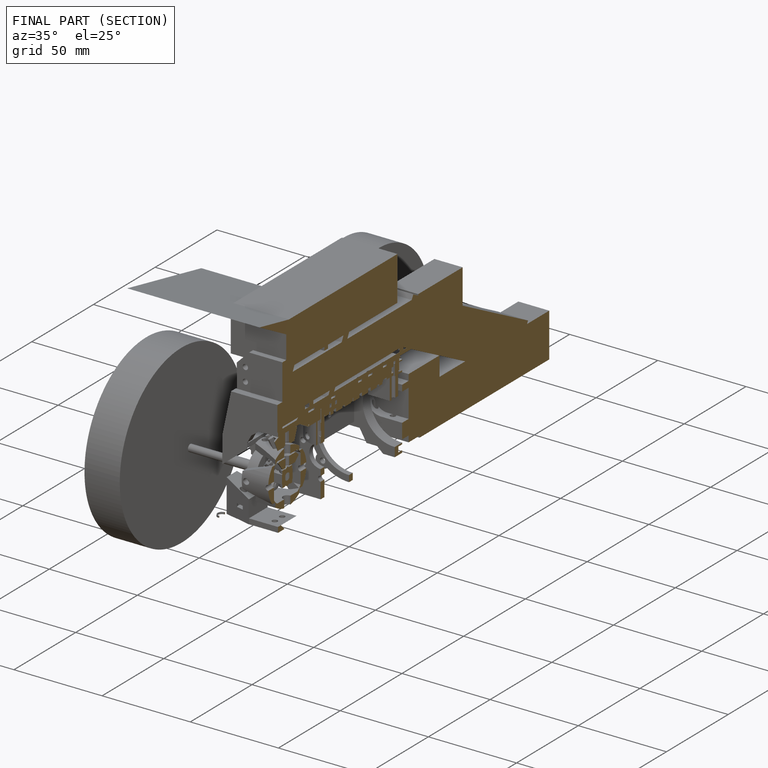
[diagram: finished part — half-section view (interior)]
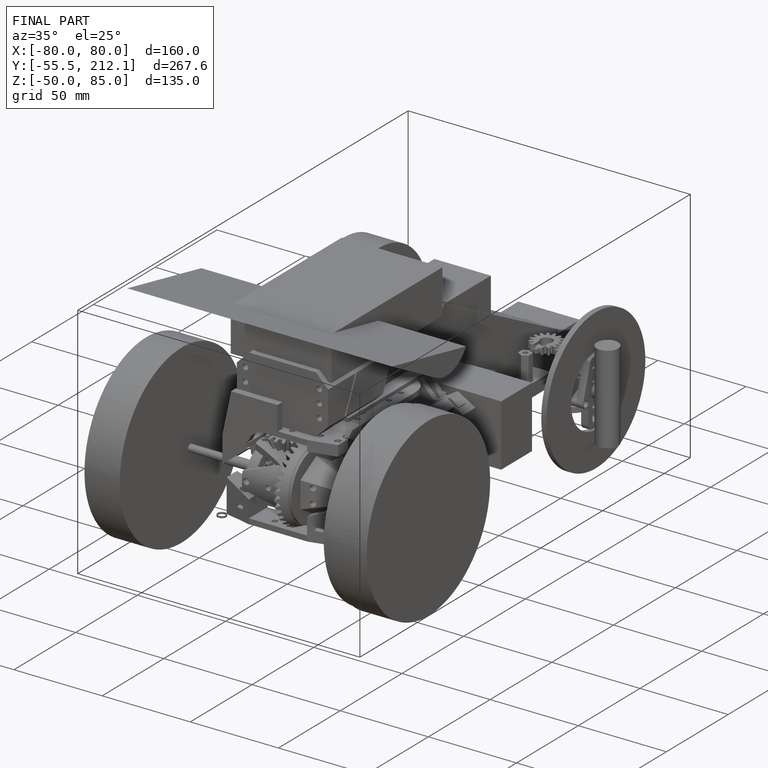
[diagram: finished part — iso view with bounding-box wireframe]
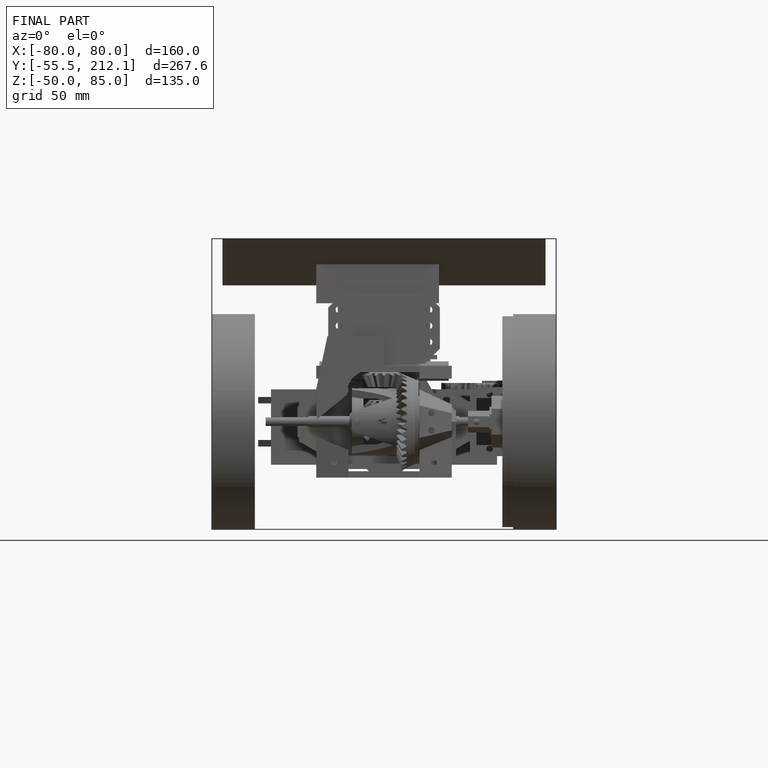
[diagram: finished part — front view with bounding-box wireframe]
